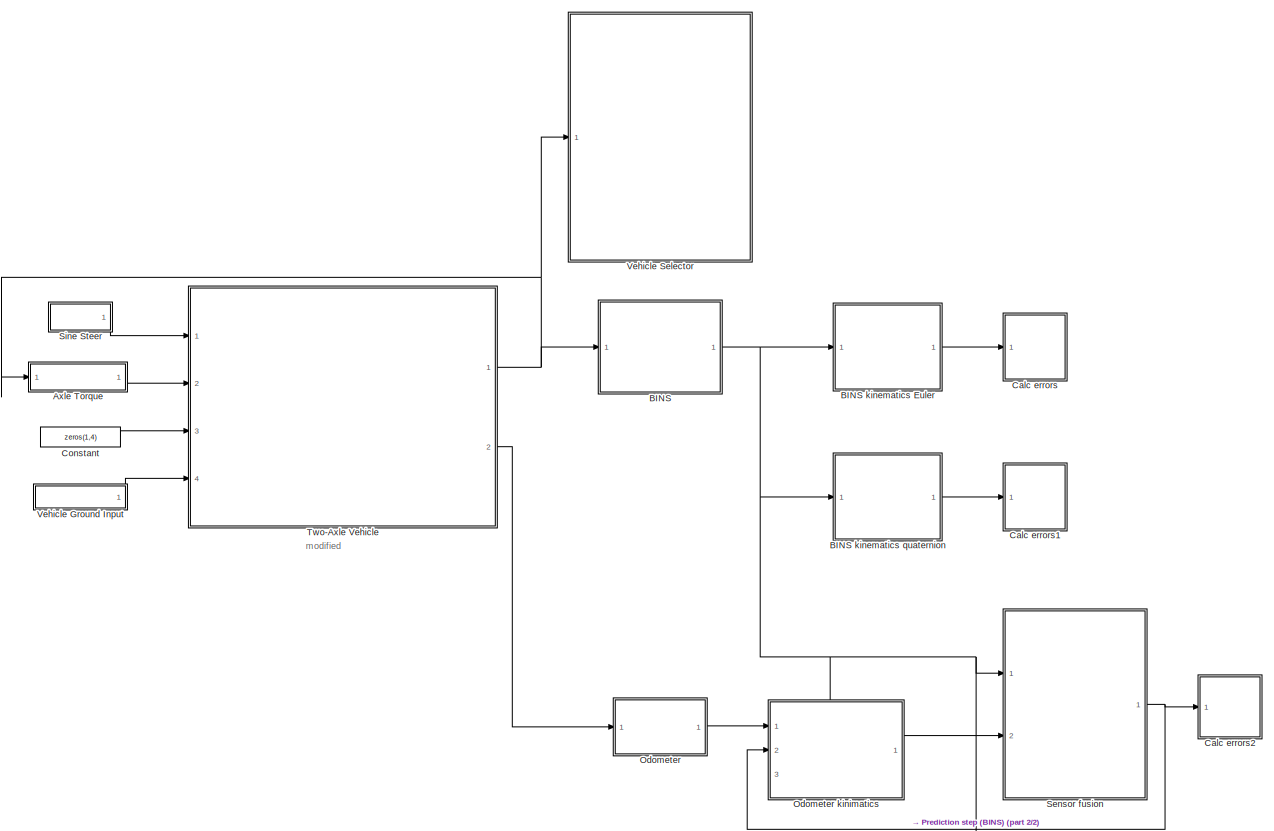
[diagram: root canvas - part 1/2, most of the canvas]
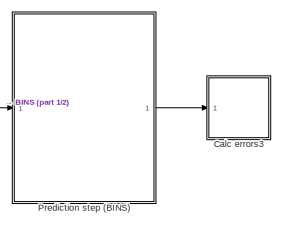
[diagram: root canvas - part 2/2, bottom right region]
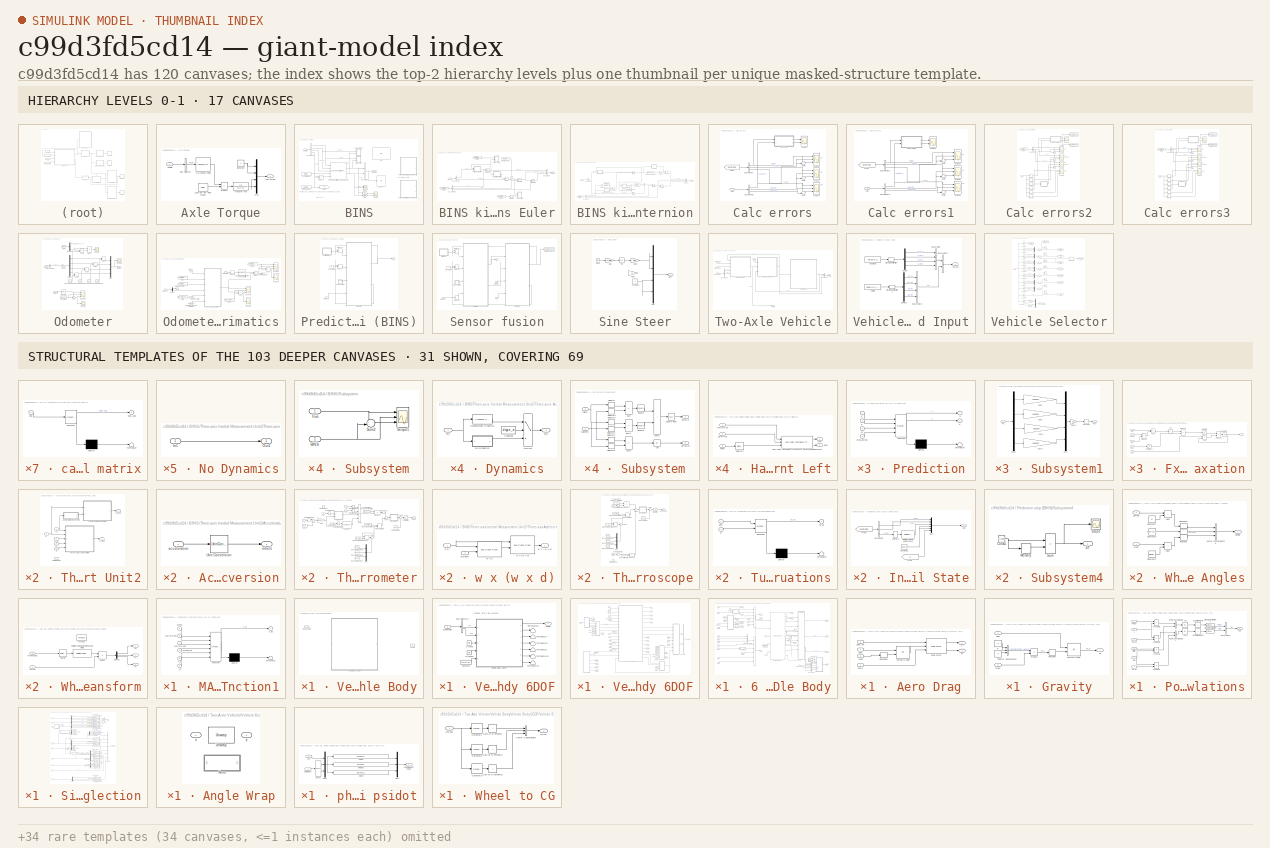
[diagram: thumbnail index - top-2 hierarchy levels (17 canvases) + 31 structural-template representatives of the remaining 103 canvases]
MODEL slx_c99d3fd5cd14
KIND model
CONFIG AbsTol = auto
CONFIG EnableMultiTasking = off
CONFIG FixedStep = 0.001
CONFIG MaxStep = auto
CONFIG MinStep = auto
CONFIG RelTol = 1e-3
CONFIG SampleTimeConstraint = Unconstrained
CONFIG SolverName = ode5
CONFIG StartTime = 0.0
CONFIG StopFcn = % stop simulation callback function\nfigure(1);\nout.x_gt.data = permute(out.x_gt.data,[3, 1, 2]);\nplot3(out.x_gt.data(:, 1), out.x_gt.data(:, 2), -out.x_gt.data(:, 3), 'Color', 'r', 'LineWidth', 1.5);\nlegend('Истинная траектория')\nxlabel('X, \itм');\nylabel('Y, \itм');\nzlabel('Z, \itм');\nfigure(2);\nplot3(out.x.data(:, 1), out.x.data(:, 2), -out.x.data(:, 3), 'Color', 'b', 'LineWidth', 1.5);\nhold on;...<+1069ch>
CONFIG StopTime = 600
WORKSPACE source: mxarray member
WORKSPACE AxlIxx = 62.3745166667
WORKSPACE AxlM = 160
WORKSPACE Cps = 2
WORKSPACE CzWhlAxl = 557955.087061
WORKSPACE DCT_Param: object (value not decoded)
WORKSPACE Downshift_Speeds = [9.5625 12.9375 16.3125 19.6875 23.0625 26.4375 29.8125 33.1875 36.5625 39.9375 43.3125 46.6875 ... (28 elements, 4x7)]
WORKSPACE F0zWhlAxl = 16132.2380068
WORKSPACE HTCH: object (value not decoded)
WORKSPACE Hmax = 0.25
WORKSPACE KzWhlAxl = 58428920.0848
WORKSPACE NCyl = 6
WORKSPACE Pedal_Positions = [0.1 0.4 0.5 0.9]
WORKSPACE Pstd = 101325
WORKSPACE Q = [1 0 0 0 1 0 0 0 1]
WORKSPACE Rair = 287
WORKSPACE SUS: object (value not decoded)
WORKSPACE TRA: object (value not decoded)
WORKSPACE Trans: object (value not decoded)
WORKSPACE Tstd = 293.15
WORKSPACE Upshift_Speeds = [12.9375 16.3125 19.6875 33 26.4375 29.8125 33.1875 52.5 39.9375 43.3125 46.6875 77.25 ... (28 elements, 4x7)]
WORKSPACE VEH: object (value not decoded)
WORKSPACE Vd = 0.00346
WORKSPACE WH: Mass (value not decoded)
WORKSPACE dt3D = 0.05
WORKSPACE f_air = [0 0 0 0 0 0 0 0 0 0 0 0 ... (256 elements, 16x16)]
WORKSPACE f_co = [0 0 0 0 0 0 0 0 0 0 0 0 ... (256 elements, 16x16)]
WORKSPACE f_co2 = [0 0 0 0 0 0 0 0 0 0 0 0 ... (256 elements, 16x16)]
WORKSPACE f_eff = [352.135682859 352.135682859 320.724378192 303.655312657 295.930136708 291.240087194 291.240271258 291.240312459 291.240275452 291.240198499 291.240100781 291.240018769 ... (256 elements, 16x16)]
WORKSPACE f_fuel = [0 0 0 0 0 0 0 0 0 0 0 0 ... (256 elements, 16x16)]
WORKSPACE f_hc = [0 0 0 0 0 0 0 0 0 0 0 0 ... (256 elements, 16x16)]
WORKSPACE f_nox = [0 0 0 0 0 0 0 0 0 0 0 0 ... (256 elements, 16x16)]
WORKSPACE f_pm = [0 0 0 0 0 0 0 0 0 0 0 0 ... (256 elements, 16x16)]
WORKSPACE f_susp_axl_bp = [1 2]
WORKSPACE f_susp_dz_bp = [-0.325022776267 -0.315022776267 -0.305022776267 -0.205022776267 -0.105022776267 -0.00502277626717 0.0949772237328 0.194977223733 0.204977223733 0.214977223733]
WORKSPACE f_susp_dzdot_bp = [-3 -0.3 -0.2 -0.1 0 0.1 0.2 0.3 3]
WORKSPACE f_susp_fmz = [-144070.391448 -93629.24037 -75929.1118915 -20630.5828179 -15385.48216 -10140.3815021 -4895.28084414 349.819813785 -31916.3973792 18437.6709544 -83996.1993354 -33555.0482577 ... (43920 elements, 10x9x61x2x4)]
WORKSPACE f_susp_geom = [0 0 0 0 0 0 0 0 0 0 0 0 ... (3660 elements, 10x61x2x3)]
WORKSPACE f_susp_strgdelta_bp = [-0.523598775598 -0.506145483078 -0.488692190558 -0.471238898038 -0.453785605519 -0.436332312999 -0.418879020479 -0.401425727959 -0.383972435439 -0.366519142919 -0.349065850399 -0.331612557879 ... (61 elements, 1x61)]
WORKSPACE f_tbrake = [0 76.8593923996 105.140482948 131.533638111 157.926793274 176.658631717 176.65727296 176.656856686 176.656879077 176.657093756 176.657404516 176.65772406 ... (256 elements, 16x16)]
WORKSPACE f_tbrake_n_bpt = [0 649.519052838 912.419621844 1175.32019085 1438.22075986 1701.12132886 1964.02189787 2226.92246687 2489.82303588 2752.72360489 3015.62417389 3278.5247429 ... (16 elements, 1x16)]
WORKSPACE f_tbrake_t_bpt = [0 34.6410161514 61.0341713143 87.4273264773 113.82048164 140.213636803 166.606791966 192.999947129 219.393102292 245.786257455 272.179412618 298.572567781 ... (16 elements, 1x16)]
WORKSPACE f_texh = [766.752464599 766.752464599 786.17542386 801.679939032 884.591982581 910.574397722 910.571871054 910.570774534 910.570601632 910.570821151 910.571247242 910.571639815 ... (256 elements, 16x16)]
WORKSPACE f_twc_eff_co = [0.17 0.25 0.45 0.99 0.99 0.99 0.99]
WORKSPACE f_twc_eff_hc = [0.21 0.375 0.75 0.98 0.98 0.98 0.98]
WORKSPACE f_twc_eff_lam = [0.909090909 0.944055944 0.979020979 1 1.013986014 1.048951049 1.083916084]
WORKSPACE f_twc_eff_nox = [0.98 0.98 0.98 0.97 0.05 0.02 0]
WORKSPACE h = 0.134
BLOCK [SubSystem] Axle Torque
  Ports = [1, 1]
  RequestExecContextInheritance = off
BLOCK [Lookup_n-D] Axle Torque/1-D Lookup Table
  BreakpointsForDimension1 = [0 3]
  InputPortMap = u0
  InternalRulePriority = Speed
  NumberOfTableDimensions = 1
  Ports = [1, 1]
  RndMeth = Simplest
  Table = [1 0.2]
BLOCK [Constant] Axle Torque/1200 Nm Per Rear Wheel
  Value = 1200
BLOCK [Outport] Axle Torque/Axle Torque
BLOCK [BusSelector] Axle Torque/Bus Selector
  OutputSignals = Vehicle.BdyFrm.Cg.Vel.xdot
  Ports = [1, 1]
BLOCK [Constant] Axle Torque/Constant
  Value = 0
BLOCK [Mux] Axle Torque/Mux
  DisplayOption = bar
  Ports = [4, 1]
BLOCK [Product] Axle Torque/Product
  Ports = [2, 1]
BLOCK [TransferFcn] Axle Torque/Transfer Fcn
  Denominator = [0.2 1]
BLOCK [Inport] Axle Torque/Vehicle
BLOCK [SubSystem] BINS
  Ports = [1, 1]
  RequestExecContextInheritance = off
BLOCK [SubSystem] BINS kinematics Euler
  Ports = [1, 1]
  RequestExecContextInheritance = off
BLOCK [Inport] BINS kinematics Euler/BINSout
BLOCK [BusCreator] BINS kinematics Euler/Bus Creator
  DisplayOption = bar
  InheritFromInputs = on
  Inputs = 3
  Ports = [3, 1]
BLOCK [BusSelector] BINS kinematics Euler/Bus Selector
  OutputSignals = Wmeas,Ameas
  Ports = [1, 2]
BLOCK [BusSelector] BINS kinematics Euler/Bus Selector1
  OutputSignals = Ang,Vel,Disp
  Ports = [1, 3]
BLOCK [Derivative] BINS kinematics Euler/Derivative
BLOCK [Product] BINS kinematics Euler/Divide1
  Inputs = /*
  Multiplication = Matrix(*)
  Ports = [2, 1]
BLOCK [Outport] BINS kinematics Euler/EulerOut
BLOCK [From] BINS kinematics Euler/From
  GotoTag = InertFrmAng
  TagVisibility = global
BLOCK [From] BINS kinematics Euler/From1
  GotoTag = InertFrmCg
  TagVisibility = global
BLOCK [From] BINS kinematics Euler/From2
  GotoTag = InertFrmVel
  TagVisibility = global
BLOCK [Integrator] BINS kinematics Euler/Integrator
  InitialConditionSource = external
  Ports = [2, 1]
BLOCK [Integrator] BINS kinematics Euler/Integrator1
  InitialConditionSource = external
  Ports = [2, 1]
BLOCK [Integrator] BINS kinematics Euler/Integrator2
  InitialConditionSource = external
  Ports = [2, 1]
BLOCK [SubSystem] BINS kinematics Euler/Subsystem
  Ports = [2]
  RequestExecContextInheritance = off
BLOCK [Inport] BINS kinematics Euler/Subsystem/BINS
  Port = 2
BLOCK [Scope] BINS kinematics Euler/Subsystem/Scope1
  Floating = off
  NumInputPorts = 3
  Ports = [3]
  ScopeSpecificationString = Simulink.scopes.TimeScopeBlockCfg('CurrentConfiguration', extmgr.ConfigurationSet(extmgr.Configuration('Core','General UI',true),extmgr.Configuration('Core','Source UI',true),extmgr.Configuration('Sources','WiredSimulink',true,'DataLoggingVariableName','ScopeData7'),extmgr.Configuration('Visuals','Time Domain',true,'SerializedDisplays',{struct('MinYLimReal','-3.46148','MaxYLimReal','2.08177','YLab...<+2926ch>
BLOCK [Sum] BINS kinematics Euler/Subsystem/Sum2
  Inputs = +-|
  Ports = [2, 1]
BLOCK [Inport] BINS kinematics Euler/Subsystem/True
BLOCK [SubSystem] BINS kinematics Euler/Subsystem1
  Ports = [2]
  RequestExecContextInheritance = off
BLOCK [Inport] BINS kinematics Euler/Subsystem1/BINS
  Port = 2
BLOCK [Scope] BINS kinematics Euler/Subsystem1/Scope1
  Floating = off
  NumInputPorts = 3
  Ports = [3]
  ScopeSpecificationString = Simulink.scopes.TimeScopeBlockCfg('CurrentConfiguration', extmgr.ConfigurationSet(extmgr.Configuration('Core','General UI',true),extmgr.Configuration('Core','Source UI',true),extmgr.Configuration('Sources','WiredSimulink',true,'DataLoggingVariableName','ScopeData7'),extmgr.Configuration('Visuals','Time Domain',true,'SerializedDisplays',{struct('MinYLimReal','-0.18766','MaxYLimReal','1.35175','YLab...<+2954ch>
BLOCK [Sum] BINS kinematics Euler/Subsystem1/Sum2
  Inputs = +-|
  Ports = [2, 1]
BLOCK [Inport] BINS kinematics Euler/Subsystem1/True
BLOCK [Sum] BINS kinematics Euler/Sum
  Inputs = ++|
  Ports = [2, 1]
BLOCK [SubSystem] BINS kinematics Euler/Turning equations
  ErrorFcn = Stateflow.Translate.translate
  PermitHierarchicalResolution = ExplicitOnly
  Ports = [2, 1]
  RequestExecContextInheritance = off
  SFBlockType = MATLAB Function
  TreatAsAtomicUnit = on
BLOCK [Demux] BINS kinematics Euler/Turning equations/ Demux 
  Outputs = 1
  Ports = [1, 1]
BLOCK [S-Function] BINS kinematics Euler/Turning equations/ SFunction 
  EnableBusSupport = on
  FunctionName = sf_sfun
  PortCounts = [2 2]
  Ports = [2, 2]
  SFcnIsStateOwnerBlock = off
  SFunctionDeploymentMode = off
  Tag = Stateflow S-Function 10
BLOCK [Terminator] BINS kinematics Euler/Turning equations/ Terminator 
BLOCK [Inport] BINS kinematics Euler/Turning equations/ang
BLOCK [Outport] BINS kinematics Euler/Turning equations/dv_dt
  VectorParamsAs1DForOutWhenUnconnected = off
BLOCK [Inport] BINS kinematics Euler/Turning equations/w
  Port = 2
BLOCK [SubSystem] BINS kinematics Euler/calc rotation matrix
  ErrorFcn = Stateflow.Translate.translate
  PermitHierarchicalResolution = ExplicitOnly
  Ports = [1, 1]
  RequestExecContextInheritance = off
  SFBlockType = MATLAB Function
  TreatAsAtomicUnit = on
BLOCK [Demux] BINS kinematics Euler/calc rotation matrix/ Demux 
  Outputs = 1
  Ports = [1, 1]
BLOCK [S-Function] BINS kinematics Euler/calc rotation matrix/ SFunction 
  EnableBusSupport = on
  FunctionName = sf_sfun
  PortCounts = [1 2]
  Ports = [1, 2]
  SFcnIsStateOwnerBlock = off
  SFunctionDeploymentMode = off
  Tag = Stateflow S-Function 3
BLOCK [Terminator] BINS kinematics Euler/calc rotation matrix/ Terminator 
BLOCK [Outport] BINS kinematics Euler/calc rotation matrix/DCM_calc
  VectorParamsAs1DForOutWhenUnconnected = off
BLOCK [Inport] BINS kinematics Euler/calc rotation matrix/ang
BLOCK [Constant] BINS kinematics Euler/gravity vector
  Value = [0;0;9.8]
  VectorParams1D = off
BLOCK [SubSystem] BINS kinematics quaternion
  Ports = [1, 1]
  RequestExecContextInheritance = off
BLOCK [Inport] BINS kinematics quaternion/BINSout
BLOCK [BusCreator] BINS kinematics quaternion/Bus Creator
  DisplayOption = bar
  InheritFromInputs = on
  Inputs = 3
  Ports = [3, 1]
BLOCK [BusSelector] BINS kinematics quaternion/Bus Selector
  OutputSignals = Wmeas,Ameas
  Ports = [1, 2]
BLOCK [BusSelector] BINS kinematics quaternion/Bus Selector1
  OutputSignals = Ang,Vel,Disp
  Ports = [1, 3]
BLOCK [SubSystem] BINS kinematics quaternion/DCM calc
  ErrorFcn = Stateflow.Translate.translate
  PermitHierarchicalResolution = ExplicitOnly
  Ports = [1, 1]
  RequestExecContextInheritance = off
  SFBlockType = MATLAB Function
  TreatAsAtomicUnit = on
BLOCK [Demux] BINS kinematics quaternion/DCM calc/ Demux 
  Outputs = 1
  Ports = [1, 1]
BLOCK [S-Function] BINS kinematics quaternion/DCM calc/ SFunction 
  EnableBusSupport = on
  FunctionName = sf_sfun
  PortCounts = [1 2]
  Ports = [1, 2]
  SFcnIsStateOwnerBlock = off
  SFunctionDeploymentMode = off
  Tag = Stateflow S-Function 33
BLOCK [Terminator] BINS kinematics quaternion/DCM calc/ Terminator 
BLOCK [Outport] BINS kinematics quaternion/DCM calc/DCM_calc
  VectorParamsAs1DForOutWhenUnconnected = off
BLOCK [Inport] BINS kinematics quaternion/DCM calc/q
BLOCK [Product] BINS kinematics quaternion/Divide1
  Inputs = /*
  Multiplication = Matrix(*)
  Ports = [2, 1]
BLOCK [From] BINS kinematics quaternion/From1
  GotoTag = InertFrmCg
  TagVisibility = global
BLOCK [Integrator] BINS kinematics quaternion/Integrator
  InitialConditionSource = external
  Ports = [2, 1]
BLOCK [Integrator] BINS kinematics quaternion/Integrator1
  InitialConditionSource = external
  Ports = [2, 1]
BLOCK [Integrator] BINS kinematics quaternion/Integrator2
  InitialConditionSource = external
  Ports = [2, 1]
BLOCK [ManualSwitch] BINS kinematics quaternion/Manual Switch2
  CurrentSetting = 0
BLOCK [ManualSwitch] BINS kinematics quaternion/Manual Switch3
BLOCK [ManualSwitch] BINS kinematics quaternion/Manual Switch4
  CurrentSetting = 0
BLOCK [Outport] BINS kinematics quaternion/QuatOut
BLOCK [Reference] BINS kinematics quaternion/Quaternions to Direction Cosine Matrix  REF=sharedtransform/Quaternions to 
Direction Cosine Matrix
  Ports = [1, 1]
  SourceBlock = sharedtransform/Quaternions to \nDirection Cosine Matrix
  SourceProductBaseCode = AE,PW,DR,MT,UV,VE
  SourceType = Quaternion2DCM
BLOCK [Reference] BINS kinematics quaternion/Quaternions to Rotation Angles  REF=sharedtransform/Quaternions to Rotation Angles
  AttributesFormatString = Rotation Order: %<rotationOrder>
  Ports = [1, 1]
  SourceBlock = sharedtransform/Quaternions to Rotation Angles
  SourceProductBaseCode = AE,PW,DR,MT,UV,VE
  SourceType = Quat2Ang
BLOCK [Reference] BINS kinematics quaternion/Rotation Angles to Quaternions1  REF=sharedtransform/Rotation Angles to Quaternions
  AttributesFormatString = Rotation Order: %<rotationOrder>
  Ports = [1, 1]
  SourceBlock = sharedtransform/Rotation Angles to Quaternions
  SourceProductBaseCode = AE,PW,DR,MT,UV,VE
  SourceType = Ang2Quat
BLOCK [Selector] BINS kinematics quaternion/Selector
  IndexOptions = Index vector (dialog)
  Indices = [3 2 1]
  InputPortWidth = 3
  NameLocation = top
  OutputSizes = 1
  Ports = [1, 1]
BLOCK [Selector] BINS kinematics quaternion/Selector1
  IndexOptions = Index vector (dialog)
  Indices = [3 2 1]
  InputPortWidth = 3
  NameLocation = top
  OutputSizes = 1
  Ports = [1, 1]
BLOCK [Sum] BINS kinematics quaternion/Sum
  Inputs = |++
  Ports = [2, 1]
BLOCK [SubSystem] BINS kinematics quaternion/To angles
  ErrorFcn = Stateflow.Translate.translate
  PermitHierarchicalResolution = ExplicitOnly
  Ports = [1, 1]
  RequestExecContextInheritance = off
  SFBlockType = MATLAB Function
  TreatAsAtomicUnit = on
BLOCK [Demux] BINS kinematics quaternion/To angles/ Demux 
  Outputs = 1
  Ports = [1, 1]
BLOCK [S-Function] BINS kinematics quaternion/To angles/ SFunction 
  EnableBusSupport = on
  FunctionName = sf_sfun
  PortCounts = [1 2]
  Ports = [1, 2]
  SFcnIsStateOwnerBlock = off
  SFunctionDeploymentMode = off
  Tag = Stateflow S-Function 36
BLOCK [Terminator] BINS kinematics quaternion/To angles/ Terminator 
BLOCK [Outport] BINS kinematics quaternion/To angles/ang
  VectorParamsAs1DForOutWhenUnconnected = off
BLOCK [Inport] BINS kinematics quaternion/To angles/q
BLOCK [SubSystem] BINS kinematics quaternion/Turning equations
  ErrorFcn = Stateflow.Translate.translate
  PermitHierarchicalResolution = ExplicitOnly
  Ports = [2, 1]
  RequestExecContextInheritance = off
  SFBlockType = MATLAB Function
  TreatAsAtomicUnit = on
BLOCK [Demux] BINS kinematics quaternion/Turning equations/ Demux 
  Outputs = 1
  Ports = [1, 1]
BLOCK [S-Function] BINS kinematics quaternion/Turning equations/ SFunction 
  EnableBusSupport = on
  FunctionName = sf_sfun
  PortCounts = [2 2]
  Ports = [2, 2]
  SFcnIsStateOwnerBlock = off
  SFunctionDeploymentMode = off
  Tag = Stateflow S-Function 29
BLOCK [Terminator] BINS kinematics quaternion/Turning equations/ Terminator 
BLOCK [Outport] BINS kinematics quaternion/Turning equations/dl_dt
  VectorParamsAs1DForOutWhenUnconnected = off
BLOCK [Inport] BINS kinematics quaternion/Turning equations/quat
BLOCK [Inport] BINS kinematics quaternion/Turning equations/w
  Port = 2
BLOCK [SubSystem] BINS kinematics quaternion/calc begin values quater
  ErrorFcn = Stateflow.Translate.translate
  PermitHierarchicalResolution = ExplicitOnly
  Ports = [1, 1]
  RequestExecContextInheritance = off
  SFBlockType = MATLAB Function
  TreatAsAtomicUnit = on
BLOCK [Demux] BINS kinematics quaternion/calc begin values quater/ Demux 
  Outputs = 1
  Ports = [1, 1]
BLOCK [S-Function] BINS kinematics quaternion/calc begin values quater/ SFunction 
  EnableBusSupport = on
  FunctionName = sf_sfun
  PortCounts = [1 2]
  Ports = [1, 2]
  SFcnIsStateOwnerBlock = off
  SFunctionDeploymentMode = off
  Tag = Stateflow S-Function 32
BLOCK [Terminator] BINS kinematics quaternion/calc begin values quater/ Terminator 
BLOCK [Inport] BINS kinematics quaternion/calc begin values quater/ang
BLOCK [Outport] BINS kinematics quaternion/calc begin values quater/l
  VectorParamsAs1DForOutWhenUnconnected = off
BLOCK [Constant] BINS kinematics quaternion/gravity vector
  Value = [0;0;10]
BLOCK [Outport] BINS/BINSOut
BLOCK [BusCreator] BINS/Bus Creator
  DisplayOption = bar
  InheritFromInputs = on
  Inputs = 2
  Ports = [2, 1]
BLOCK [BusSelector] BINS/Bus Selector
  OutputSignals = Vehicle.BdyFrm.Cg.Abe,Vehicle.BdyFrm.Cg.AngVel,Vehicle.BdyFrm.Cg.AngAcc,Vehicle.BdyFrm.Cg.DCM
  Ports = [1, 4]
BLOCK [Display] BINS/Display
  Decimation = 1
  Ports = [1]
BLOCK [Goto] BINS/Goto6
  GotoTag = g
  IconDisplay = Tag and signal name
  TagVisibility = global
BLOCK [Reference] BINS/IMU  REF=mspsensorlib/IMU
  Commented = on
  Ports = [3, 3]
  SourceBlock = mspsensorlib/IMU
  SourceProductBaseCode = TF,NV
  SourceType = fusion.simulink.imuSensor
BLOCK [Product] BINS/Product
  Multiplication = Matrix(*)
  Ports = [2, 1]
BLOCK [Reference] BINS/RMS  REF=dspstat3/RMS
  Ports = [1, 1]
  SourceBlock = dspstat3/RMS
  SourceProductBaseCode = DS
  SourceType = RMS
  UserDataPersistent = on
BLOCK [Reference] BINS/RMS1  REF=dspstat3/RMS
  Ports = [1, 1]
  SourceBlock = dspstat3/RMS
  SourceProductBaseCode = DS
  SourceType = RMS
  UserDataPersistent = on
BLOCK [Scope] BINS/Scope1
  Floating = off
  NumInputPorts = 2
  Ports = [2]
  ScopeSpecificationString = Simulink.scopes.TimeScopeBlockCfg('CurrentConfiguration', extmgr.ConfigurationSet(extmgr.Configuration('Core','General UI',true,'FigureColor',[1 1 1]),extmgr.Configuration('Core','Source UI',true),extmgr.Configuration('Sources','WiredSimulink',true,'DataLoggingVariableName','ScopeData16'),extmgr.Configuration('Visuals','Time Domain',true,'SerializedDisplays',{struct('MinYLimReal','-0.82387','MaxYL...<+2526ch>
BLOCK [Scope] BINS/Scope3
  Floating = off
  NumInputPorts = 2
  Ports = [2]
  ScopeSpecificationString = Simulink.scopes.TimeScopeBlockCfg('CurrentConfiguration', extmgr.ConfigurationSet(extmgr.Configuration('Core','General UI',true,'FigureColor',[1 1 1]),extmgr.Configuration('Core','Source UI',true),extmgr.Configuration('Sources','WiredSimulink',true,'DataLoggingVariableName','ScopeData8'),extmgr.Configuration('Visuals','Time Domain',true,'SerializedDisplays',{struct('MinYLimReal','-14.70303','MaxYL...<+3282ch>
BLOCK [SubSystem] BINS/Subsystem
  Ports = [2]
  RequestExecContextInheritance = off
BLOCK [Inport] BINS/Subsystem/BINS
  Port = 2
BLOCK [Scope] BINS/Subsystem/Scope1
  Floating = off
  NumInputPorts = 3
  Ports = [3]
  ScopeSpecificationString = Simulink.scopes.TimeScopeBlockCfg('CurrentConfiguration', extmgr.ConfigurationSet(extmgr.Configuration('Core','General UI',true),extmgr.Configuration('Core','Source UI',true),extmgr.Configuration('Sources','WiredSimulink',true,'DataLoggingVariableName','ScopeData7'),extmgr.Configuration('Visuals','Time Domain',true,'SerializedDisplays',{struct('MinYLimReal','-3.46305','MaxYLimReal','2.07647','YLab...<+2939ch>
BLOCK [Sum] BINS/Subsystem/Sum2
  Inputs = +-|
  Ports = [2, 1]
BLOCK [Inport] BINS/Subsystem/True
BLOCK [SubSystem] BINS/Subsystem1
  Ports = [2]
  RequestExecContextInheritance = off
BLOCK [Inport] BINS/Subsystem1/BINS
  Port = 2
BLOCK [Scope] BINS/Subsystem1/Scope1
  Floating = off
  NumInputPorts = 3
  Ports = [3]
  ScopeSpecificationString = Simulink.scopes.TimeScopeBlockCfg('CurrentConfiguration', extmgr.ConfigurationSet(extmgr.Configuration('Core','General UI',true),extmgr.Configuration('Core','Source UI',true),extmgr.Configuration('Sources','WiredSimulink',true,'DataLoggingVariableName','ScopeData7'),extmgr.Configuration('Visuals','Time Domain',true,'SerializedDisplays',{struct('MinYLimReal','-0.16449','MaxYLimReal','0.166','YLabel...<+2925ch>
BLOCK [Sum] BINS/Subsystem1/Sum2
  Inputs = +-|
  Ports = [2, 1]
BLOCK [Inport] BINS/Subsystem1/True
BLOCK [Reference] BINS/Three-axis Inertial Measurement Unit1  REF=aerolibnav/Three-axis Inertial
Measurement Unit
  Ports = [5, 2]
  SourceBlock = aerolibnav/Three-axis Inertial\nMeasurement Unit
  SourceProductBaseCode = AE
  SourceType = Three-axis Inertial Measurement Unit
BLOCK [SubSystem] BINS/Three-axis Inertial Measurement Unit2
  AncestorBlock = aerolibnav/Three-axis Inertial\nMeasurement Unit
  Commented = on
  PermitHierarchicalResolution = ExplicitOnly
  Ports = [5, 2]
  RequestExecContextInheritance = off
BLOCK [Inport] BINS/Three-axis Inertial Measurement Unit2/A_b
  PortDimensions = 3
  Unit = m/s^2
BLOCK [Outport] BINS/Three-axis Inertial Measurement Unit2/A_meas
  Unit = m/s^2
  VectorParamsAs1DForOutWhenUnconnected = off
BLOCK [SubSystem] BINS/Three-axis Inertial Measurement Unit2/Acceleration Conversion
  Ports = [1, 1]
  RequestExecContextInheritance = off
BLOCK [UnitConversion] BINS/Three-axis Inertial Measurement Unit2/Acceleration Conversion/Unit Conversion
BLOCK [Inport] BINS/Three-axis Inertial Measurement Unit2/Acceleration Conversion/acceleration
  Unit = m/s^2
BLOCK [Outport] BINS/Three-axis Inertial Measurement Unit2/Acceleration Conversion/inherit
  VectorParamsAs1DForOutWhenUnconnected = off
BLOCK [Inport] BINS/Three-axis Inertial Measurement Unit2/CG
  Port = 4
  PortDimensions = 3
  Unit = m
BLOCK [UnitConfiguration] BINS/Three-axis Inertial Measurement Unit2/Disallow CGS
  AllowAllUnitSystems = off
  UnitSystemsStr = English,SI,SI (extended)
BLOCK [SubSystem] BINS/Three-axis Inertial Measurement Unit2/Three-axis Accelerometer
  AncestorBlock = aerolibnav/Three-axis Accelerometer
  PermitHierarchicalResolution = ExplicitOnly
  Ports = [5, 1]
  RequestExecContextInheritance = off
BLOCK [Inport] BINS/Three-axis Inertial Measurement Unit2/Three-axis Accelerometer/Ab
  PortDimensions = 3
  Unit = m/s^2
BLOCK [Outport] BINS/Three-axis Inertial Measurement Unit2/Three-axis Accelerometer/Ameas
  PortDimensions = 3
  Unit = m/s^2
  VectorParamsAs1DForOutWhenUnconnected = off
BLOCK [Inport] BINS/Three-axis Inertial Measurement Unit2/Three-axis Accelerometer/CG
  Port = 4
  PortDimensions = 3
  Unit = m
BLOCK [Delay] BINS/Three-axis Inertial Measurement Unit2/Three-axis Accelerometer/Delay
  DelayLength = 1
  InitialCondition = 0
  InitialConditionSource = Input port
  InputPortMap = u0,p4
  Ports = [2, 1]
BLOCK [UnitConfiguration] BINS/Three-axis Inertial Measurement Unit2/Three-axis Accelerometer/Disallow CGS
  AllowAllUnitSystems = off
  UnitSystemsStr = English,SI,SI (extended)
BLOCK [SubSystem] BINS/Three-axis Inertial Measurement Unit2/Three-axis Accelerometer/Dynamics
  Ports = [1, 1]
  RequestExecContextInheritance = off
BLOCK [Constant] BINS/Three-axis Inertial Measurement Unit2/Three-axis Accelerometer/Dynamics/Constant
  Value = dtype_a
BLOCK [SubSystem] BINS/Three-axis Inertial Measurement Unit2/Three-axis Accelerometer/Dynamics/No Dynamics
  Ports = [1, 1]
  RequestExecContextInheritance = off
BLOCK [Inport] BINS/Three-axis Inertial Measurement Unit2/Three-axis Accelerometer/Dynamics/No Dynamics/In1
BLOCK [Outport] BINS/Three-axis Inertial Measurement Unit2/Three-axis Accelerometer/Dynamics/No Dynamics/Out1
  VectorParamsAs1DForOutWhenUnconnected = off
BLOCK [Reference] BINS/Three-axis Inertial Measurement Unit2/Three-axis Accelerometer/Dynamics/Second-order Dynamics  REF=aerolibcommonsys/Transfer Fcn (C)
  Ports = [1, 1]
  SourceBlock = aerolibcommonsys/Transfer Fcn (C)
  SourceProductBaseCode = AE
  SourceType = ContinuousFilter
BLOCK [Switch] BINS/Three-axis Inertial Measurement Unit2/Three-axis Accelerometer/Dynamics/Switch
  InputSameDT = off
  SaturateOnIntegerOverflow = off
  Threshold = 0.5
BLOCK [Inport] BINS/Three-axis Inertial Measurement Unit2/Three-axis Accelerometer/Dynamics/sp_f
BLOCK [Outport] BINS/Three-axis Inertial Measurement Unit2/Three-axis Accelerometer/Dynamics/sp_f 
  VectorParamsAs1DForOutWhenUnconnected = off
BLOCK [Gain] BINS/Three-axis Inertial Measurement Unit2/Three-axis Accelerometer/Gain
  Gain = [1 -1 1]
  OutDataTypeStr = Inherit: Same as input
  ParamDataTypeStr = Inherit: Same as input
  SaturateOnIntegerOverflow = on
BLOCK [ManualSwitch] BINS/Three-axis Inertial Measurement Unit2/Three-axis Accelerometer/Manual Switch
  CurrentSetting = 0
BLOCK [Constant] BINS/Three-axis Inertial Measurement Unit2/Three-axis Accelerometer/Measurement bias
  Value = a_bias
BLOCK [Constant] BINS/Three-axis Inertial Measurement Unit2/Three-axis Accelerometer/Measurement bias1
  Value = a_bias
BLOCK [Mux] BINS/Three-axis Inertial Measurement Unit2/Three-axis Accelerometer/Mux
  DisplayOption = bar
  Inputs = 3
  Ports = [3, 1]
BLOCK [Product] BINS/Three-axis Inertial Measurement Unit2/Three-axis Accelerometer/Product
  Multiplication = Matrix(*)
  OutDataTypeStr = Inherit: Same as first input
  Ports = [2, 1]
  SaturateOnIntegerOverflow = on
BLOCK [RandomNumber] BINS/Three-axis Inertial Measurement Unit2/Three-axis Accelerometer/Random Number
  SampleTime = a_Ts
  Seed = 42347548753
  Variance = 2e-8
BLOCK [RandomNumber] BINS/Three-axis Inertial Measurement Unit2/Three-axis Accelerometer/Random Number1
  SampleTime = a_Ts
  Seed = 95834573489579834
  Variance = 2e-8
BLOCK [RandomNumber] BINS/Three-axis Inertial Measurement Unit2/Three-axis Accelerometer/Random Number2
  SampleTime = a_Ts
  Seed = 974128941341343
  Variance = 2e-8
BLOCK [Reference] BINS/Three-axis Inertial Measurement Unit2/Three-axis Accelerometer/Random bias  REF=aerolibcommonsys/Tunable White Noise
  Ports = [0, 1]
  SourceBlock = aerolibcommonsys/Tunable White Noise
  SourceProductBaseCode = AE
  SourceType = TunableWhiteNoise
BLOCK [Reshape] BINS/Three-axis Inertial Measurement Unit2/Three-axis Accelerometer/Reshape1
  Ports = [1, 1]
BLOCK [Saturate] BINS/Three-axis Inertial Measurement Unit2/Three-axis Accelerometer/Saturation
  LowerLimit = a_satl
  UpperLimit = a_sath
BLOCK [Constant] BINS/Three-axis Inertial Measurement Unit2/Three-axis Accelerometer/Scale factors & Cross-coupling errors
  NameLocation = top
  Value = a_sf_cc
BLOCK [Sum] BINS/Three-axis Inertial Measurement Unit2/Three-axis Accelerometer/Sum
  IconShape = rectangular
  Inputs = +-++
  Ports = [4, 1]
  SaturateOnIntegerOverflow = on
BLOCK [Sum] BINS/Three-axis Inertial Measurement Unit2/Three-axis Accelerometer/Sum1
  Inputs = |++
  Ports = [2, 1]
  SaturateOnIntegerOverflow = on
BLOCK [Sum] BINS/Three-axis Inertial Measurement Unit2/Three-axis Accelerometer/Sum2
  Inputs = |++
  Ports = [2, 1]
  SaturateOnIntegerOverflow = on
BLOCK [Sum] BINS/Three-axis Inertial Measurement Unit2/Three-axis Accelerometer/Sum4
  Inputs = ++|
  Ports = [2, 1]
  SaturateOnIntegerOverflow = on
BLOCK [Sum] BINS/Three-axis Inertial Measurement Unit2/Three-axis Accelerometer/Sum7
  Inputs = |+-
  Ports = [2, 1]
  SaturateOnIntegerOverflow = on
BLOCK [ZeroOrderHold] BINS/Three-axis Inertial Measurement Unit2/Three-axis Accelerometer/Zero-Order Hold
  SampleTime = a_Ts
BLOCK [ZeroOrderHold] BINS/Three-axis Inertial Measurement Unit2/Three-axis Accelerometer/Zero-Order Hold1
  SampleTime = a_Ts
BLOCK [ZeroOrderHold] BINS/Three-axis Inertial Measurement Unit2/Three-axis Accelerometer/Zero-Order Hold2
  SampleTime = a_Ts
BLOCK [ZeroOrderHold] BINS/Three-axis Inertial Measurement Unit2/Three-axis Accelerometer/Zero-Order Hold3
  SampleTime = a_Ts
BLOCK [ZeroOrderHold] BINS/Three-axis Inertial Measurement Unit2/Three-axis Accelerometer/Zero-Order Hold4
  SampleTime = a_Ts
BLOCK [Inport] BINS/Three-axis Inertial Measurement Unit2/Three-axis Accelerometer/g
  Port = 5
  PortDimensions = 3
  Unit = m/s^2
BLOCK [Inport] BINS/Three-axis Inertial Measurement Unit2/Three-axis Accelerometer/p q r
  Port = 2
  PortDimensions = 3
  Unit = rad/s
BLOCK [Inport] BINS/Three-axis Inertial Measurement Unit2/Three-axis Accelerometer/pdot qdot rdot
  Port = 3
  PortDimensions = 3
  Unit = rad/s^2
BLOCK [SubSystem] BINS/Three-axis Inertial Measurement Unit2/Three-axis Accelerometer/w x (w x d)
  Ports = [2, 1]
  RequestExecContextInheritance = off
BLOCK [Inport] BINS/Three-axis Inertial Measurement Unit2/Three-axis Accelerometer/w x (w x d)/distance
  Port = 2
BLOCK [Inport] BINS/Three-axis Inertial Measurement Unit2/Three-axis Accelerometer/w x (w x d)/p q r 
BLOCK [Outport] BINS/Three-axis Inertial Measurement Unit2/Three-axis Accelerometer/w x (w x d)/w x ( w x d)
  VectorParamsAs1DForOutWhenUnconnected = off
BLOCK [Reference] BINS/Three-axis Inertial Measurement Unit2/Three-axis Accelerometer/w x (w x d)/w x (w x d)  REF=sharedutil/3x3 Cross Product
  Ports = [2, 1]
  SourceBlock = sharedutil/3x3 Cross Product
  SourceProductBaseCode = AE,PW,DR,MT,UV,VE
  SourceType = CrossProduct
BLOCK [Reference] BINS/Three-axis Inertial Measurement Unit2/Three-axis Accelerometer/w x (w x d)/w x d  REF=sharedutil/3x3 Cross Product
  Ports = [2, 1]
  SourceBlock = sharedutil/3x3 Cross Product
  SourceProductBaseCode = AE,PW,DR,MT,UV,VE
  SourceType = CrossProduct
BLOCK [Reference] BINS/Three-axis Inertial Measurement Unit2/Three-axis Accelerometer/wdot x d  REF=sharedutil/3x3 Cross Product
  Ports = [2, 1]
  SourceBlock = sharedutil/3x3 Cross Product
  SourceProductBaseCode = AE,PW,DR,MT,UV,VE
  SourceType = CrossProduct
BLOCK [Constant] BINS/Three-axis Inertial Measurement Unit2/Three-axis Accelerometer/wl_ins
  Value = acc
BLOCK [SubSystem] BINS/Three-axis Inertial Measurement Unit2/Three-axis Gyroscope
  AncestorBlock = aerolibnav/Three-axis Gyroscope
  PermitHierarchicalResolution = ExplicitOnly
  Ports = [2, 1]
  RequestExecContextInheritance = off
BLOCK [Outport] BINS/Three-axis Inertial Measurement Unit2/Three-axis Gyroscope/(p q r)_meas
  PortDimensions = 3
  Unit = rad/s
  VectorParamsAs1DForOutWhenUnconnected = off
BLOCK [Delay] BINS/Three-axis Inertial Measurement Unit2/Three-axis Gyroscope/Delay
  DelayLength = 1
  InitialCondition = 0
  InitialConditionSource = Input port
  InputPortMap = u0,p4
  Ports = [2, 1]
BLOCK [UnitConfiguration] BINS/Three-axis Inertial Measurement Unit2/Three-axis Gyroscope/Disallow CGS
  AllowAllUnitSystems = off
  UnitSystemsStr = English,SI,SI (extended)
BLOCK [SubSystem] BINS/Three-axis Inertial Measurement Unit2/Three-axis Gyroscope/Dynamics
  Ports = [1, 1]
  RequestExecContextInheritance = off
BLOCK [Constant] BINS/Three-axis Inertial Measurement Unit2/Three-axis Gyroscope/Dynamics/Constant
  Value = dtype_g
BLOCK [SubSystem] BINS/Three-axis Inertial Measurement Unit2/Three-axis Gyroscope/Dynamics/No Dynamics
  Ports = [1, 1]
  RequestExecContextInheritance = off
BLOCK [Inport] BINS/Three-axis Inertial Measurement Unit2/Three-axis Gyroscope/Dynamics/No Dynamics/In1
BLOCK [Outport] BINS/Three-axis Inertial Measurement Unit2/Three-axis Gyroscope/Dynamics/No Dynamics/Out1
  VectorParamsAs1DForOutWhenUnconnected = off
BLOCK [Reference] BINS/Three-axis Inertial Measurement Unit2/Three-axis Gyroscope/Dynamics/Second-order Dynamics  REF=aerolibcommonsys/Transfer Fcn (C)
  Ports = [1, 1]
  SourceBlock = aerolibcommonsys/Transfer Fcn (C)
  SourceProductBaseCode = AE
  SourceType = ContinuousFilter
BLOCK [Switch] BINS/Three-axis Inertial Measurement Unit2/Three-axis Gyroscope/Dynamics/Switch
  InputSameDT = off
  SaturateOnIntegerOverflow = off
  Threshold = 0.5
BLOCK [Inport] BINS/Three-axis Inertial Measurement Unit2/Three-axis Gyroscope/Dynamics/p q r
BLOCK [Outport] BINS/Three-axis Inertial Measurement Unit2/Three-axis Gyroscope/Dynamics/p q r 
  VectorParamsAs1DForOutWhenUnconnected = off
BLOCK [Inport] BINS/Three-axis Inertial Measurement Unit2/Three-axis Gyroscope/G's
  Port = 2
  PortDimensions = 3
  Unit = gn
BLOCK [ManualSwitch] BINS/Three-axis Inertial Measurement Unit2/Three-axis Gyroscope/Manual Switch
  CurrentSetting = 0
BLOCK [Constant] BINS/Three-axis Inertial Measurement Unit2/Three-axis Gyroscope/Measurement bias
  Value = g_bias
BLOCK [Constant] BINS/Three-axis Inertial Measurement Unit2/Three-axis Gyroscope/Measurement bias1
  Value = g_bias
BLOCK [Mux] BINS/Three-axis Inertial Measurement Unit2/Three-axis Gyroscope/Mux
  DisplayOption = bar
  Inputs = 3
  Ports = [3, 1]
BLOCK [Product] BINS/Three-axis Inertial Measurement Unit2/Three-axis Gyroscope/Product
  Multiplication = Matrix(*)
  OutDataTypeStr = Inherit: Same as first input
  Ports = [2, 1]
  SaturateOnIntegerOverflow = on
BLOCK [Product] BINS/Three-axis Inertial Measurement Unit2/Three-axis Gyroscope/Product1
  OutDataTypeStr = Inherit: Same as first input
  Ports = [2, 1]
  SaturateOnIntegerOverflow = on
BLOCK [RandomNumber] BINS/Three-axis Inertial Measurement Unit2/Three-axis Gyroscope/Random Number
  SampleTime = g_Ts
  Seed = 32454353467
  Variance = 2e-14
BLOCK [RandomNumber] BINS/Three-axis Inertial Measurement Unit2/Three-axis Gyroscope/Random Number1
  SampleTime = g_Ts
  Seed = 34523523
  Variance = 2e-14
BLOCK [RandomNumber] BINS/Three-axis Inertial Measurement Unit2/Three-axis Gyroscope/Random Number2
  SampleTime = g_Ts
  Seed = 325326557
  Variance = 2e-14
BLOCK [Reference] BINS/Three-axis Inertial Measurement Unit2/Three-axis Gyroscope/Random bias  REF=aerolibcommonsys/Tunable White Noise
  Ports = [0, 1]
  SourceBlock = aerolibcommonsys/Tunable White Noise
  SourceProductBaseCode = AE
  SourceType = TunableWhiteNoise
BLOCK [Saturate] BINS/Three-axis Inertial Measurement Unit2/Three-axis Gyroscope/Saturation
  LowerLimit = g_satl
  UpperLimit = g_sath
BLOCK [Constant] BINS/Three-axis Inertial Measurement Unit2/Three-axis Gyroscope/Scale factors & Cross-coupling errors 
  NameLocation = top
  Value = g_sf_cc
BLOCK [Sum] BINS/Three-axis Inertial Measurement Unit2/Three-axis Gyroscope/Sum1
  Inputs = |++
  Ports = [2, 1]
  SaturateOnIntegerOverflow = on
BLOCK [Sum] BINS/Three-axis Inertial Measurement Unit2/Three-axis Gyroscope/Sum2
  Inputs = |++
  Ports = [2, 1]
  SaturateOnIntegerOverflow = on
BLOCK [Sum] BINS/Three-axis Inertial Measurement Unit2/Three-axis Gyroscope/Sum4
  Inputs = +++
  Ports = [3, 1]
  SaturateOnIntegerOverflow = on
BLOCK [ZeroOrderHold] BINS/Three-axis Inertial Measurement Unit2/Three-axis Gyroscope/Zero-Order Hold
  SampleTime = g_Ts
BLOCK [ZeroOrderHold] BINS/Three-axis Inertial Measurement Unit2/Three-axis Gyroscope/Zero-Order Hold1
  SampleTime = g_Ts
BLOCK [Constant] BINS/Three-axis Inertial Measurement Unit2/Three-axis Gyroscope/g-sensitive bias
  Value = g_sen
BLOCK [Inport] BINS/Three-axis Inertial Measurement Unit2/Three-axis Gyroscope/p q r
  PortDimensions = 3
  Unit = rad/s
BLOCK [Inport] BINS/Three-axis Inertial Measurement Unit2/g
  Port = 5
  PortDimensions = 3
  Unit = m/s^2
BLOCK [Inport] BINS/Three-axis Inertial Measurement Unit2/w
  Port = 2
  PortDimensions = 3
  Unit = rad/s
BLOCK [Inport] BINS/Three-axis Inertial Measurement Unit2/w_dot
  Port = 3
  PortDimensions = 3
  Unit = rad/s^2
BLOCK [Outport] BINS/Three-axis Inertial Measurement Unit2/w_meas
  Port = 2
  Unit = rad/s
  VectorParamsAs1DForOutWhenUnconnected = off
BLOCK [SubSystem] BINS/Three-axis Inertial Measurement Unit4
  AncestorBlock = aerolibnav/Three-axis Inertial\nMeasurement Unit
  Commented = on
  PermitHierarchicalResolution = ExplicitOnly
  Ports = [5, 2]
  RequestExecContextInheritance = off
BLOCK [Inport] BINS/Three-axis Inertial Measurement Unit4/A_b
  PortDimensions = 3
  Unit = m/s^2
BLOCK [Outport] BINS/Three-axis Inertial Measurement Unit4/A_meas
  Unit = m/s^2
  VectorParamsAs1DForOutWhenUnconnected = off
BLOCK [SubSystem] BINS/Three-axis Inertial Measurement Unit4/Acceleration Conversion
  Ports = [1, 1]
  RequestExecContextInheritance = off
BLOCK [UnitConversion] BINS/Three-axis Inertial Measurement Unit4/Acceleration Conversion/Unit Conversion
BLOCK [Inport] BINS/Three-axis Inertial Measurement Unit4/Acceleration Conversion/acceleration
  Unit = m/s^2
BLOCK [Outport] BINS/Three-axis Inertial Measurement Unit4/Acceleration Conversion/inherit
  VectorParamsAs1DForOutWhenUnconnected = off
BLOCK [Inport] BINS/Three-axis Inertial Measurement Unit4/CG
  Port = 4
  PortDimensions = 3
  Unit = m
BLOCK [UnitConfiguration] BINS/Three-axis Inertial Measurement Unit4/Disallow CGS
  AllowAllUnitSystems = off
  UnitSystemsStr = English,SI,SI (extended)
BLOCK [SubSystem] BINS/Three-axis Inertial Measurement Unit4/Three-axis Accelerometer
  AncestorBlock = aerolibnav/Three-axis Accelerometer
  PermitHierarchicalResolution = ExplicitOnly
  Ports = [5, 1]
  RequestExecContextInheritance = off
BLOCK [Inport] BINS/Three-axis Inertial Measurement Unit4/Three-axis Accelerometer/Ab
  PortDimensions = 3
  Unit = m/s^2
BLOCK [Outport] BINS/Three-axis Inertial Measurement Unit4/Three-axis Accelerometer/Ameas
  PortDimensions = 3
  Unit = m/s^2
  VectorParamsAs1DForOutWhenUnconnected = off
BLOCK [Inport] BINS/Three-axis Inertial Measurement Unit4/Three-axis Accelerometer/CG
  Port = 4
  PortDimensions = 3
  Unit = m
BLOCK [Delay] BINS/Three-axis Inertial Measurement Unit4/Three-axis Accelerometer/Delay
  DelayLength = 1
  InitialCondition = 0
  InitialConditionSource = Input port
  InputPortMap = u0,p4
  Ports = [2, 1]
BLOCK [UnitConfiguration] BINS/Three-axis Inertial Measurement Unit4/Three-axis Accelerometer/Disallow CGS
  AllowAllUnitSystems = off
  UnitSystemsStr = English,SI,SI (extended)
BLOCK [SubSystem] BINS/Three-axis Inertial Measurement Unit4/Three-axis Accelerometer/Dynamics
  Ports = [1, 1]
  RequestExecContextInheritance = off
BLOCK [Constant] BINS/Three-axis Inertial Measurement Unit4/Three-axis Accelerometer/Dynamics/Constant
  Value = dtype_a
BLOCK [SubSystem] BINS/Three-axis Inertial Measurement Unit4/Three-axis Accelerometer/Dynamics/No Dynamics
  Ports = [1, 1]
  RequestExecContextInheritance = off
BLOCK [Inport] BINS/Three-axis Inertial Measurement Unit4/Three-axis Accelerometer/Dynamics/No Dynamics/In1
BLOCK [Outport] BINS/Three-axis Inertial Measurement Unit4/Three-axis Accelerometer/Dynamics/No Dynamics/Out1
  VectorParamsAs1DForOutWhenUnconnected = off
BLOCK [Reference] BINS/Three-axis Inertial Measurement Unit4/Three-axis Accelerometer/Dynamics/Second-order Dynamics  REF=aerolibcommonsys/Transfer Fcn (C)
  Ports = [1, 1]
  SourceBlock = aerolibcommonsys/Transfer Fcn (C)
  SourceProductBaseCode = AE
  SourceType = ContinuousFilter
BLOCK [Switch] BINS/Three-axis Inertial Measurement Unit4/Three-axis Accelerometer/Dynamics/Switch
  InputSameDT = off
  SaturateOnIntegerOverflow = off
  Threshold = 0.5
BLOCK [Inport] BINS/Three-axis Inertial Measurement Unit4/Three-axis Accelerometer/Dynamics/sp_f
BLOCK [Outport] BINS/Three-axis Inertial Measurement Unit4/Three-axis Accelerometer/Dynamics/sp_f 
  VectorParamsAs1DForOutWhenUnconnected = off
BLOCK [Gain] BINS/Three-axis Inertial Measurement Unit4/Three-axis Accelerometer/Gain
  Gain = [1 -1 1]
  OutDataTypeStr = Inherit: Same as input
  ParamDataTypeStr = Inherit: Same as input
  SaturateOnIntegerOverflow = on
BLOCK [ManualSwitch] BINS/Three-axis Inertial Measurement Unit4/Three-axis Accelerometer/Manual Switch
  CurrentSetting = 0
BLOCK [Constant] BINS/Three-axis Inertial Measurement Unit4/Three-axis Accelerometer/Measurement bias
  Value = a_bias
BLOCK [Constant] BINS/Three-axis Inertial Measurement Unit4/Three-axis Accelerometer/Measurement bias1
  Value = a_bias
BLOCK [Mux] BINS/Three-axis Inertial Measurement Unit4/Three-axis Accelerometer/Mux
  DisplayOption = bar
  Inputs = 3
  Ports = [3, 1]
BLOCK [Product] BINS/Three-axis Inertial Measurement Unit4/Three-axis Accelerometer/Product
  Multiplication = Matrix(*)
  OutDataTypeStr = Inherit: Same as first input
  Ports = [2, 1]
  SaturateOnIntegerOverflow = on
BLOCK [RandomNumber] BINS/Three-axis Inertial Measurement Unit4/Three-axis Accelerometer/Random Number
  SampleTime = a_Ts
  Seed = 42347548753
  Variance = 24e-6
BLOCK [RandomNumber] BINS/Three-axis Inertial Measurement Unit4/Three-axis Accelerometer/Random Number1
  SampleTime = a_Ts
  Seed = 95834573489579834
  Variance = 24e-6
BLOCK [RandomNumber] BINS/Three-axis Inertial Measurement Unit4/Three-axis Accelerometer/Random Number2
  SampleTime = a_Ts
  Seed = 974128941341343
  Variance = 24e-6
BLOCK [Reference] BINS/Three-axis Inertial Measurement Unit4/Three-axis Accelerometer/Random bias  REF=aerolibcommonsys/Tunable White Noise
  Ports = [0, 1]
  SourceBlock = aerolibcommonsys/Tunable White Noise
  SourceProductBaseCode = AE
  SourceType = TunableWhiteNoise
BLOCK [Reshape] BINS/Three-axis Inertial Measurement Unit4/Three-axis Accelerometer/Reshape1
  Ports = [1, 1]
BLOCK [Saturate] BINS/Three-axis Inertial Measurement Unit4/Three-axis Accelerometer/Saturation
  LowerLimit = a_satl
  UpperLimit = a_sath
BLOCK [Constant] BINS/Three-axis Inertial Measurement Unit4/Three-axis Accelerometer/Scale factors & Cross-coupling errors
  NameLocation = top
  Value = a_sf_cc
BLOCK [Sum] BINS/Three-axis Inertial Measurement Unit4/Three-axis Accelerometer/Sum
  IconShape = rectangular
  Inputs = +-++
  Ports = [4, 1]
  SaturateOnIntegerOverflow = on
BLOCK [Sum] BINS/Three-axis Inertial Measurement Unit4/Three-axis Accelerometer/Sum1
  Inputs = |++
  Ports = [2, 1]
  SaturateOnIntegerOverflow = on
BLOCK [Sum] BINS/Three-axis Inertial Measurement Unit4/Three-axis Accelerometer/Sum2
  Inputs = |++
  Ports = [2, 1]
  SaturateOnIntegerOverflow = on
BLOCK [Sum] BINS/Three-axis Inertial Measurement Unit4/Three-axis Accelerometer/Sum4
  Inputs = ++|
  Ports = [2, 1]
  SaturateOnIntegerOverflow = on
BLOCK [Sum] BINS/Three-axis Inertial Measurement Unit4/Three-axis Accelerometer/Sum7
  Inputs = |+-
  Ports = [2, 1]
  SaturateOnIntegerOverflow = on
BLOCK [ZeroOrderHold] BINS/Three-axis Inertial Measurement Unit4/Three-axis Accelerometer/Zero-Order Hold
  SampleTime = a_Ts
BLOCK [ZeroOrderHold] BINS/Three-axis Inertial Measurement Unit4/Three-axis Accelerometer/Zero-Order Hold1
  SampleTime = a_Ts
BLOCK [ZeroOrderHold] BINS/Three-axis Inertial Measurement Unit4/Three-axis Accelerometer/Zero-Order Hold2
  SampleTime = a_Ts
BLOCK [ZeroOrderHold] BINS/Three-axis Inertial Measurement Unit4/Three-axis Accelerometer/Zero-Order Hold3
  SampleTime = a_Ts
BLOCK [ZeroOrderHold] BINS/Three-axis Inertial Measurement Unit4/Three-axis Accelerometer/Zero-Order Hold4
  SampleTime = a_Ts
BLOCK [Inport] BINS/Three-axis Inertial Measurement Unit4/Three-axis Accelerometer/g
  Port = 5
  PortDimensions = 3
  Unit = m/s^2
BLOCK [Inport] BINS/Three-axis Inertial Measurement Unit4/Three-axis Accelerometer/p q r
  Port = 2
  PortDimensions = 3
  Unit = rad/s
BLOCK [Inport] BINS/Three-axis Inertial Measurement Unit4/Three-axis Accelerometer/pdot qdot rdot
  Port = 3
  PortDimensions = 3
  Unit = rad/s^2
BLOCK [SubSystem] BINS/Three-axis Inertial Measurement Unit4/Three-axis Accelerometer/w x (w x d)
  Ports = [2, 1]
  RequestExecContextInheritance = off
BLOCK [Inport] BINS/Three-axis Inertial Measurement Unit4/Three-axis Accelerometer/w x (w x d)/distance
  Port = 2
BLOCK [Inport] BINS/Three-axis Inertial Measurement Unit4/Three-axis Accelerometer/w x (w x d)/p q r 
BLOCK [Outport] BINS/Three-axis Inertial Measurement Unit4/Three-axis Accelerometer/w x (w x d)/w x ( w x d)
  VectorParamsAs1DForOutWhenUnconnected = off
BLOCK [Reference] BINS/Three-axis Inertial Measurement Unit4/Three-axis Accelerometer/w x (w x d)/w x (w x d)  REF=sharedutil/3x3 Cross Product
  Ports = [2, 1]
  SourceBlock = sharedutil/3x3 Cross Product
  SourceProductBaseCode = AE,PW,DR,MT,UV,VE
  SourceType = CrossProduct
BLOCK [Reference] BINS/Three-axis Inertial Measurement Unit4/Three-axis Accelerometer/w x (w x d)/w x d  REF=sharedutil/3x3 Cross Product
  Ports = [2, 1]
  SourceBlock = sharedutil/3x3 Cross Product
  SourceProductBaseCode = AE,PW,DR,MT,UV,VE
  SourceType = CrossProduct
BLOCK [Reference] BINS/Three-axis Inertial Measurement Unit4/Three-axis Accelerometer/wdot x d  REF=sharedutil/3x3 Cross Product
  Ports = [2, 1]
  SourceBlock = sharedutil/3x3 Cross Product
  SourceProductBaseCode = AE,PW,DR,MT,UV,VE
  SourceType = CrossProduct
BLOCK [Constant] BINS/Three-axis Inertial Measurement Unit4/Three-axis Accelerometer/wl_ins
  Value = acc
BLOCK [SubSystem] BINS/Three-axis Inertial Measurement Unit4/Three-axis Gyroscope
  AncestorBlock = aerolibnav/Three-axis Gyroscope
  PermitHierarchicalResolution = ExplicitOnly
  Ports = [2, 1]
  RequestExecContextInheritance = off
BLOCK [Outport] BINS/Three-axis Inertial Measurement Unit4/Three-axis Gyroscope/(p q r)_meas
  PortDimensions = 3
  Unit = rad/s
  VectorParamsAs1DForOutWhenUnconnected = off
BLOCK [Delay] BINS/Three-axis Inertial Measurement Unit4/Three-axis Gyroscope/Delay
  DelayLength = 1
  InitialCondition = 0
  InitialConditionSource = Input port
  InputPortMap = u0,p4
  Ports = [2, 1]
BLOCK [UnitConfiguration] BINS/Three-axis Inertial Measurement Unit4/Three-axis Gyroscope/Disallow CGS
  AllowAllUnitSystems = off
  UnitSystemsStr = English,SI,SI (extended)
BLOCK [SubSystem] BINS/Three-axis Inertial Measurement Unit4/Three-axis Gyroscope/Dynamics
  Ports = [1, 1]
  RequestExecContextInheritance = off
BLOCK [Constant] BINS/Three-axis Inertial Measurement Unit4/Three-axis Gyroscope/Dynamics/Constant
  Value = dtype_g
BLOCK [SubSystem] BINS/Three-axis Inertial Measurement Unit4/Three-axis Gyroscope/Dynamics/No Dynamics
  Ports = [1, 1]
  RequestExecContextInheritance = off
BLOCK [Inport] BINS/Three-axis Inertial Measurement Unit4/Three-axis Gyroscope/Dynamics/No Dynamics/In1
BLOCK [Outport] BINS/Three-axis Inertial Measurement Unit4/Three-axis Gyroscope/Dynamics/No Dynamics/Out1
  VectorParamsAs1DForOutWhenUnconnected = off
BLOCK [Reference] BINS/Three-axis Inertial Measurement Unit4/Three-axis Gyroscope/Dynamics/Second-order Dynamics  REF=aerolibcommonsys/Transfer Fcn (C)
  Ports = [1, 1]
  SourceBlock = aerolibcommonsys/Transfer Fcn (C)
  SourceProductBaseCode = AE
  SourceType = ContinuousFilter
BLOCK [Switch] BINS/Three-axis Inertial Measurement Unit4/Three-axis Gyroscope/Dynamics/Switch
  InputSameDT = off
  SaturateOnIntegerOverflow = off
  Threshold = 0.5
BLOCK [Inport] BINS/Three-axis Inertial Measurement Unit4/Three-axis Gyroscope/Dynamics/p q r
BLOCK [Outport] BINS/Three-axis Inertial Measurement Unit4/Three-axis Gyroscope/Dynamics/p q r 
  VectorParamsAs1DForOutWhenUnconnected = off
BLOCK [Inport] BINS/Three-axis Inertial Measurement Unit4/Three-axis Gyroscope/G's
  Port = 2
  PortDimensions = 3
  Unit = gn
BLOCK [ManualSwitch] BINS/Three-axis Inertial Measurement Unit4/Three-axis Gyroscope/Manual Switch
  CurrentSetting = 0
BLOCK [Constant] BINS/Three-axis Inertial Measurement Unit4/Three-axis Gyroscope/Measurement bias
  Value = g_bias
BLOCK [Constant] BINS/Three-axis Inertial Measurement Unit4/Three-axis Gyroscope/Measurement bias1
  Value = g_bias
BLOCK [Mux] BINS/Three-axis Inertial Measurement Unit4/Three-axis Gyroscope/Mux
  DisplayOption = bar
  Inputs = 3
  Ports = [3, 1]
BLOCK [Product] BINS/Three-axis Inertial Measurement Unit4/Three-axis Gyroscope/Product
  Multiplication = Matrix(*)
  OutDataTypeStr = Inherit: Same as first input
  Ports = [2, 1]
  SaturateOnIntegerOverflow = on
BLOCK [Product] BINS/Three-axis Inertial Measurement Unit4/Three-axis Gyroscope/Product1
  OutDataTypeStr = Inherit: Same as first input
  Ports = [2, 1]
  SaturateOnIntegerOverflow = on
BLOCK [RandomNumber] BINS/Three-axis Inertial Measurement Unit4/Three-axis Gyroscope/Random Number
  SampleTime = g_Ts
  Seed = 32454353467
  Variance = 1.2e-10
BLOCK [RandomNumber] BINS/Three-axis Inertial Measurement Unit4/Three-axis Gyroscope/Random Number1
  SampleTime = g_Ts
  Seed = 34523523
  Variance = 1.2e-10
BLOCK [RandomNumber] BINS/Three-axis Inertial Measurement Unit4/Three-axis Gyroscope/Random Number2
  SampleTime = g_Ts
  Seed = 325326557
  Variance = 1.2e-10
BLOCK [Reference] BINS/Three-axis Inertial Measurement Unit4/Three-axis Gyroscope/Random bias  REF=aerolibcommonsys/Tunable White Noise
  Ports = [0, 1]
  SourceBlock = aerolibcommonsys/Tunable White Noise
  SourceProductBaseCode = AE
  SourceType = TunableWhiteNoise
BLOCK [Saturate] BINS/Three-axis Inertial Measurement Unit4/Three-axis Gyroscope/Saturation
  LowerLimit = g_satl
  UpperLimit = g_sath
BLOCK [Constant] BINS/Three-axis Inertial Measurement Unit4/Three-axis Gyroscope/Scale factors & Cross-coupling errors 
  NameLocation = top
  Value = g_sf_cc
BLOCK [Sum] BINS/Three-axis Inertial Measurement Unit4/Three-axis Gyroscope/Sum1
  Inputs = |++
  Ports = [2, 1]
  SaturateOnIntegerOverflow = on
BLOCK [Sum] BINS/Three-axis Inertial Measurement Unit4/Three-axis Gyroscope/Sum2
  Inputs = |++
  Ports = [2, 1]
  SaturateOnIntegerOverflow = on
BLOCK [Sum] BINS/Three-axis Inertial Measurement Unit4/Three-axis Gyroscope/Sum4
  Inputs = +++
  Ports = [3, 1]
  SaturateOnIntegerOverflow = on
BLOCK [ZeroOrderHold] BINS/Three-axis Inertial Measurement Unit4/Three-axis Gyroscope/Zero-Order Hold
  SampleTime = g_Ts
BLOCK [ZeroOrderHold] BINS/Three-axis Inertial Measurement Unit4/Three-axis Gyroscope/Zero-Order Hold1
  SampleTime = g_Ts
BLOCK [Constant] BINS/Three-axis Inertial Measurement Unit4/Three-axis Gyroscope/g-sensitive bias
  Value = g_sen
BLOCK [Inport] BINS/Three-axis Inertial Measurement Unit4/Three-axis Gyroscope/p q r
  PortDimensions = 3
  Unit = rad/s
BLOCK [Inport] BINS/Three-axis Inertial Measurement Unit4/g
  Port = 5
  PortDimensions = 3
  Unit = m/s^2
BLOCK [Inport] BINS/Three-axis Inertial Measurement Unit4/w
  Port = 2
  PortDimensions = 3
  Unit = rad/s
BLOCK [Inport] BINS/Three-axis Inertial Measurement Unit4/w_dot
  Port = 3
  PortDimensions = 3
  Unit = rad/s^2
BLOCK [Outport] BINS/Three-axis Inertial Measurement Unit4/w_meas
  Port = 2
  Unit = rad/s
  VectorParamsAs1DForOutWhenUnconnected = off
BLOCK [Constant] BINS/center of gravity
  Value = [0;0;0]
BLOCK [Constant] BINS/gravity vector
  Value = [0;0;9.8]
  VectorParams1D = off
BLOCK [Inport] BINS/inputIMU
BLOCK [SubSystem] Calc errors
  Ports = [1]
  RequestExecContextInheritance = off
BLOCK [BusSelector] Calc errors/Bus Selector
  OutputSignals = Disp,Vel,Ang
  Ports = [1, 3]
BLOCK [BusSelector] Calc errors/Bus Selector1
  OutputSignals = CalcPos,CalcVel,CalcAng
  Ports = [1, 3]
BLOCK [From] Calc errors/From1
  GotoTag = InertFrmCg
  TagVisibility = global
BLOCK [Scope] Calc errors/Scope1
  Floating = off
  NumInputPorts = 3
  Ports = [3]
  ScopeSpecificationString = Simulink.scopes.TimeScopeBlockCfg('CurrentConfiguration', extmgr.ConfigurationSet(extmgr.Configuration('Core','General UI',true,'FigureColor',[1 1 1]),extmgr.Configuration('Core','Source UI',true),extmgr.Configuration('Sources','WiredSimulink',true,'DataLoggingVariableName','ScopeData5'),extmgr.Configuration('Visuals','Time Domain',true,'SerializedDisplays',{struct('MinYLimReal','-0.80388','MaxYLi...<+4563ch>
BLOCK [Scope] Calc errors/Scope2
  Floating = off
  NumInputPorts = 3
  Ports = [3]
  ScopeSpecificationString = Simulink.scopes.TimeScopeBlockCfg('CurrentConfiguration', extmgr.ConfigurationSet(extmgr.Configuration('Core','General UI',true,'FigureColor',[1 1 1]),extmgr.Configuration('Core','Source UI',true),extmgr.Configuration('Sources','WiredSimulink',true,'DataLoggingVariableName','ScopeData6'),extmgr.Configuration('Visuals','Time Domain',true,'SerializedDisplays',{struct('MinYLimReal','-0.21983','MaxYLi...<+4563ch>
BLOCK [Scope] Calc errors/Scope3
  Floating = off
  NumInputPorts = 2
  Ports = [2]
  ScopeSpecificationString = Simulink.scopes.TimeScopeBlockCfg('CurrentConfiguration', extmgr.ConfigurationSet(extmgr.Configuration('Core','General UI',true,'FigureColor',[1 1 1]),extmgr.Configuration('Core','Source UI',true),extmgr.Configuration('Sources','WiredSimulink',true,'DataLoggingVariableName','ScopeData3'),extmgr.Configuration('Visuals','Time Domain',true,'SerializedDisplays',{struct('MinYLimReal','-19.77347','MaxYL...<+2587ch>
BLOCK [Scope] Calc errors/Scope4
  Floating = off
  NumInputPorts = 3
  Ports = [3]
  ScopeSpecificationString = Simulink.scopes.TimeScopeBlockCfg('CurrentConfiguration', extmgr.ConfigurationSet(extmgr.Configuration('Core','General UI',true,'FigureColor',[1 1 1]),extmgr.Configuration('Core','Source UI',true),extmgr.Configuration('Sources','WiredSimulink',true,'DataLoggingVariableName','ScopeData4'),extmgr.Configuration('Visuals','Time Domain',true,'SerializedDisplays',{struct('MinYLimReal','-3.55981','MaxYLi...<+4569ch>
BLOCK [SubSystem] Calc errors/Subsystem
  Ports = [2, 2]
  RequestExecContextInheritance = off
BLOCK [Inport] Calc errors/Subsystem/<CalcPos>
  Port = 2
BLOCK [Inport] Calc errors/Subsystem/<Disp>
BLOCK [Abs] Calc errors/Subsystem/Abs
  SaturateOnIntegerOverflow = off
BLOCK [Outport] Calc errors/Subsystem/HorError
BLOCK [Selector] Calc errors/Subsystem/Selector
  IndexOptions = Index vector (dialog)
  Indices = [1]
  InputPortWidth = 3
  OutputSizes = 1
  Ports = [1, 1]
BLOCK [Selector] Calc errors/Subsystem/Selector1
  IndexOptions = Index vector (dialog)
  Indices = [1]
  InputPortWidth = 3
  OutputSizes = 1
  Ports = [1, 1]
BLOCK [Selector] Calc errors/Subsystem/Selector2
  IndexOptions = Index vector (dialog)
  Indices = [2]
  InputPortWidth = 3
  OutputSizes = 1
  Ports = [1, 1]
BLOCK [Selector] Calc errors/Subsystem/Selector3
  IndexOptions = Index vector (dialog)
  Indices = [2]
  InputPortWidth = 3
  OutputSizes = 1
  Ports = [1, 1]
BLOCK [Selector] Calc errors/Subsystem/Selector4
  IndexOptions = Index vector (dialog)
  Indices = [3]
  InputPortWidth = 3
  OutputSizes = 1
  Ports = [1, 1]
BLOCK [Selector] Calc errors/Subsystem/Selector5
  IndexOptions = Index vector (dialog)
  Indices = [3]
  InputPortWidth = 3
  OutputSizes = 1
  Ports = [1, 1]
BLOCK [Math] Calc errors/Subsystem/Square
  Operator = square
  Ports = [1, 1]
BLOCK [Sqrt] Calc errors/Subsystem/Square Root
BLOCK [Math] Calc errors/Subsystem/Square1
  Operator = square
  Ports = [1, 1]
BLOCK [Sum] Calc errors/Subsystem/Sum
  IconShape = rectangular
  Inputs = +-
  Ports = [2, 1]
BLOCK [Sum] Calc errors/Subsystem/Sum1
  IconShape = rectangular
  Inputs = -+
  Ports = [2, 1]
BLOCK [Sum] Calc errors/Subsystem/Sum4
  IconShape = rectangular
  Inputs = +-
  Ports = [2, 1]
BLOCK [Sum] Calc errors/Subsystem/Sum5
  IconShape = rectangular
  Ports = [2, 1]
BLOCK [Outport] Calc errors/Subsystem/VertError
  Port = 2
BLOCK [Sum] Calc errors/Sum1
  Inputs = +-|
  Ports = [2, 1]
BLOCK [Sum] Calc errors/Sum2
  Inputs = +-|
  Ports = [2, 1]
BLOCK [Sum] Calc errors/Sum3
  Inputs = +-|
  Ports = [2, 1]
BLOCK [Inport] Calc errors/calc
BLOCK [SubSystem] Calc errors1
  Ports = [1]
  RequestExecContextInheritance = off
BLOCK [BusSelector] Calc errors1/Bus Selector2
  OutputSignals = Disp,Vel,Ang
  Ports = [1, 3]
BLOCK [BusSelector] Calc errors1/Bus Selector3
  OutputSignals = CalcPos,CalcVel,CalcAng
  Ports = [1, 3]
BLOCK [From] Calc errors1/From
  GotoTag = InertFrmCg
  TagVisibility = global
BLOCK [Scope] Calc errors1/Scope1
  Floating = off
  NumInputPorts = 2
  Ports = [2]
  ScopeSpecificationString = Simulink.scopes.TimeScopeBlockCfg('CurrentConfiguration', extmgr.ConfigurationSet(extmgr.Configuration('Core','General UI',true,'FigureColor',[1 1 1]),extmgr.Configuration('Core','Source UI',true),extmgr.Configuration('Sources','WiredSimulink',true,'DataLoggingVariableName','ScopeData15'),extmgr.Configuration('Visuals','Time Domain',true,'SerializedDisplays',{struct('MinYLimReal','-0.0000000008','...<+2619ch>
BLOCK [Scope] Calc errors1/Scope2
  Floating = off
  NumInputPorts = 3
  Ports = [3]
  ScopeSpecificationString = Simulink.scopes.TimeScopeBlockCfg('CurrentConfiguration', extmgr.ConfigurationSet(extmgr.Configuration('Core','General UI',true,'FigureColor',[1 1 1]),extmgr.Configuration('Core','Source UI',true),extmgr.Configuration('Sources','WiredSimulink',true,'DataLoggingVariableName','ScopeData7'),extmgr.Configuration('Visuals','Time Domain',true,'SerializedDisplays',{struct('MinYLimReal','-9.55245','MaxYLi...<+4563ch>
BLOCK [Scope] Calc errors1/Scope3
  Floating = off
  NumInputPorts = 3
  Ports = [3]
  ScopeSpecificationString = Simulink.scopes.TimeScopeBlockCfg('CurrentConfiguration', extmgr.ConfigurationSet(extmgr.Configuration('Core','General UI',true,'FigureColor',[1 1 1]),extmgr.Configuration('Core','Source UI',true),extmgr.Configuration('Sources','WiredSimulink',true,'DataLoggingVariableName','ScopeData9'),extmgr.Configuration('Visuals','Time Domain',true,'SerializedDisplays',{struct('MinYLimReal','-9.55245','MaxYLi...<+4473ch>
BLOCK [Scope] Calc errors1/Scope4
  Floating = off
  NumInputPorts = 3
  Ports = [3]
  ScopeSpecificationString = Simulink.scopes.TimeScopeBlockCfg('CurrentConfiguration', extmgr.ConfigurationSet(extmgr.Configuration('Core','General UI',true,'FigureColor',[1 1 1]),extmgr.Configuration('Core','Source UI',true),extmgr.Configuration('Sources','WiredSimulink',true,'DataLoggingVariableName','ScopeData17'),extmgr.Configuration('Visuals','Time Domain',true,'SerializedDisplays',{struct('MinYLimReal','-18.61115','MaxY...<+4574ch>
BLOCK [SubSystem] Calc errors1/Subsystem1
  Ports = [2, 2]
  RequestExecContextInheritance = off
BLOCK [Inport] Calc errors1/Subsystem1/<CalcPos>
  Port = 2
BLOCK [Inport] Calc errors1/Subsystem1/<Disp>
BLOCK [Abs] Calc errors1/Subsystem1/Abs
  SaturateOnIntegerOverflow = off
BLOCK [Outport] Calc errors1/Subsystem1/HorError
BLOCK [Selector] Calc errors1/Subsystem1/Selector
  IndexOptions = Index vector (dialog)
  Indices = [1]
  InputPortWidth = 3
  OutputSizes = 1
  Ports = [1, 1]
BLOCK [Selector] Calc errors1/Subsystem1/Selector1
  IndexOptions = Index vector (dialog)
  Indices = [1]
  InputPortWidth = 3
  OutputSizes = 1
  Ports = [1, 1]
BLOCK [Selector] Calc errors1/Subsystem1/Selector2
  IndexOptions = Index vector (dialog)
  Indices = [2]
  InputPortWidth = 3
  OutputSizes = 1
  Ports = [1, 1]
BLOCK [Selector] Calc errors1/Subsystem1/Selector3
  IndexOptions = Index vector (dialog)
  Indices = [2]
  InputPortWidth = 3
  OutputSizes = 1
  Ports = [1, 1]
BLOCK [Selector] Calc errors1/Subsystem1/Selector4
  IndexOptions = Index vector (dialog)
  Indices = [3]
  InputPortWidth = 3
  OutputSizes = 1
  Ports = [1, 1]
BLOCK [Selector] Calc errors1/Subsystem1/Selector5
  IndexOptions = Index vector (dialog)
  Indices = [3]
  InputPortWidth = 3
  OutputSizes = 1
  Ports = [1, 1]
BLOCK [Math] Calc errors1/Subsystem1/Square
  Operator = square
  Ports = [1, 1]
BLOCK [Sqrt] Calc errors1/Subsystem1/Square Root
BLOCK [Math] Calc errors1/Subsystem1/Square1
  Operator = square
  Ports = [1, 1]
BLOCK [Sum] Calc errors1/Subsystem1/Sum
  IconShape = rectangular
  Inputs = +-
  Ports = [2, 1]
BLOCK [Sum] Calc errors1/Subsystem1/Sum1
  IconShape = rectangular
  Inputs = -+
  Ports = [2, 1]
BLOCK [Sum] Calc errors1/Subsystem1/Sum4
  IconShape = rectangular
  Inputs = +-
  Ports = [2, 1]
BLOCK [Sum] Calc errors1/Subsystem1/Sum5
  IconShape = rectangular
  Ports = [2, 1]
BLOCK [Outport] Calc errors1/Subsystem1/VertError
  Port = 2
BLOCK [Sum] Calc errors1/Sum4
  Inputs = +-|
  Ports = [2, 1]
BLOCK [Sum] Calc errors1/Sum5
  Inputs = +-|
  Ports = [2, 1]
BLOCK [Sum] Calc errors1/Sum6
  Inputs = +-|
  Ports = [2, 1]
BLOCK [Inport] Calc errors1/calc
BLOCK [SubSystem] Calc errors2
  Ports = [1]
  RequestExecContextInheritance = off
BLOCK [BusSelector] Calc errors2/Bus Selector
  OutputSignals = Disp,Vel,Ang
  Ports = [1, 3]
BLOCK [From] Calc errors2/From1
  GotoTag = InertFrmCg
  TagVisibility = global
BLOCK [Scope] Calc errors2/Scope4
  Floating = off
  NumInputPorts = 2
  Ports = [2]
  ScopeSpecificationString = Simulink.scopes.TimeScopeBlockCfg('CurrentConfiguration', extmgr.ConfigurationSet(extmgr.Configuration('Core','General UI',true,'FigureColor',[1 1 1]),extmgr.Configuration('Core','Source UI',true),extmgr.Configuration('Sources','WiredSimulink',true,'DataLoggingVariableName','ScopeData14'),extmgr.Configuration('Visuals','Time Domain',true,'SerializedDisplays',{struct('MinYLimReal','-0.84649','MaxYL...<+2646ch>
BLOCK [Scope] Calc errors2/Scope5
  Floating = off
  NumInputPorts = 3
  Ports = [3]
  ScopeSpecificationString = Simulink.scopes.TimeScopeBlockCfg('CurrentConfiguration', extmgr.ConfigurationSet(extmgr.Configuration('Core','General UI',true,'FigureColor',[1 1 1]),extmgr.Configuration('Core','Source UI',true),extmgr.Configuration('Sources','WiredSimulink',true,'DataLoggingVariableName','ScopeData18'),extmgr.Configuration('Visuals','Time Domain',true,'SerializedDisplays',{struct('MinYLimReal','-0.00002','MaxYL...<+4588ch>
BLOCK [Scope] Calc errors2/Scope6
  Floating = off
  NumInputPorts = 3
  Ports = [3]
  ScopeSpecificationString = Simulink.scopes.TimeScopeBlockCfg('CurrentConfiguration', extmgr.ConfigurationSet(extmgr.Configuration('Core','General UI',true,'FigureColor',[1 1 1]),extmgr.Configuration('Core','Source UI',true),extmgr.Configuration('Sources','WiredSimulink',true,'DataLoggingVariableName','ScopeData10'),extmgr.Configuration('Visuals','Time Domain',true,'SerializedDisplays',{struct('MinYLimReal','-0.70519','MaxYL...<+4500ch>
BLOCK [Scope] Calc errors2/Scope7
  Floating = off
  NumInputPorts = 3
  Ports = [3]
  ScopeSpecificationString = Simulink.scopes.TimeScopeBlockCfg('CurrentConfiguration', extmgr.ConfigurationSet(extmgr.Configuration('Core','General UI',true,'FigureColor',[1 1 1]),extmgr.Configuration('Core','Source UI',true),extmgr.Configuration('Sources','WiredSimulink',true,'DataLoggingVariableName','ScopeData19'),extmgr.Configuration('Visuals','Time Domain',true,'SerializedDisplays',{struct('MinYLimReal','-0.21983','MaxYL...<+4564ch>
BLOCK [Scope] Calc errors2/Scope8
  Floating = off
  NumInputPorts = 3
  Ports = [3]
  ScopeSpecificationString = Simulink.scopes.TimeScopeBlockCfg('CurrentConfiguration', extmgr.ConfigurationSet(extmgr.Configuration('Core','General UI',true,'FigureColor',[1 1 1]),extmgr.Configuration('Core','Source UI',true),extmgr.Configuration('Sources','WiredSimulink',true,'DataLoggingVariableName','ScopeData20'),extmgr.Configuration('Visuals','Time Domain',true,'SerializedDisplays',{struct('MinYLimReal','-0.80388','MaxYL...<+4564ch>
BLOCK [Selector] Calc errors2/Selector
  IndexOptions = Index vector (dialog)
  Indices = [1 2 3]
  InputPortWidth = 19
  OutputSizes = 1
  Ports = [1, 1]
BLOCK [Selector] Calc errors2/Selector1
  IndexOptions = Index vector (dialog)
  Indices = [4 5 6]
  InputPortWidth = 19
  OutputSizes = 1
  Ports = [1, 1]
BLOCK [Selector] Calc errors2/Selector2
  IndexOptions = Index vector (dialog)
  Indices = [7 8 9 10]
  InputPortWidth = 19
  OutputSizes = 1
  Ports = [1, 1]
BLOCK [Selector] Calc errors2/Selector3
  IndexOptions = Index vector (dialog)
  Indices = [11 12 13]
  InputPortWidth = 19
  OutputSizes = 1
  Ports = [1, 1]
BLOCK [Selector] Calc errors2/Selector4
  IndexOptions = Index vector (dialog)
  Indices = [14 15 16]
  InputPortWidth = 19
  OutputSizes = 1
  Ports = [1, 1]
BLOCK [Selector] Calc errors2/Selector5
  IndexOptions = Index vector (dialog)
  Indices = [17 18 19]
  InputPortWidth = 19
  OutputSizes = 1
  Ports = [1, 1]
BLOCK [SubSystem] Calc errors2/Subsystem
  Ports = [2, 2]
  RequestExecContextInheritance = off
BLOCK [Inport] Calc errors2/Subsystem/<CalcPos>
  Port = 2
BLOCK [Inport] Calc errors2/Subsystem/<Disp>
BLOCK [Abs] Calc errors2/Subsystem/Abs
  SaturateOnIntegerOverflow = off
BLOCK [Outport] Calc errors2/Subsystem/HorError
BLOCK [Selector] Calc errors2/Subsystem/Selector
  IndexOptions = Index vector (dialog)
  Indices = [1]
  InputPortWidth = 3
  OutputSizes = 1
  Ports = [1, 1]
BLOCK [Selector] Calc errors2/Subsystem/Selector1
  IndexOptions = Index vector (dialog)
  Indices = [1]
  InputPortWidth = 3
  OutputSizes = 1
  Ports = [1, 1]
BLOCK [Selector] Calc errors2/Subsystem/Selector2
  IndexOptions = Index vector (dialog)
  Indices = [2]
  InputPortWidth = 3
  OutputSizes = 1
  Ports = [1, 1]
BLOCK [Selector] Calc errors2/Subsystem/Selector3
  IndexOptions = Index vector (dialog)
  Indices = [2]
  InputPortWidth = 3
  OutputSizes = 1
  Ports = [1, 1]
BLOCK [Selector] Calc errors2/Subsystem/Selector4
  IndexOptions = Index vector (dialog)
  Indices = [3]
  InputPortWidth = 3
  OutputSizes = 1
  Ports = [1, 1]
BLOCK [Selector] Calc errors2/Subsystem/Selector5
  IndexOptions = Index vector (dialog)
  Indices = [3]
  InputPortWidth = 3
  OutputSizes = 1
  Ports = [1, 1]
BLOCK [Math] Calc errors2/Subsystem/Square
  Operator = square
  Ports = [1, 1]
BLOCK [Sqrt] Calc errors2/Subsystem/Square Root
BLOCK [Math] Calc errors2/Subsystem/Square1
  Operator = square
  Ports = [1, 1]
BLOCK [Sum] Calc errors2/Subsystem/Sum
  IconShape = rectangular
  Inputs = +-
  Ports = [2, 1]
BLOCK [Sum] Calc errors2/Subsystem/Sum1
  IconShape = rectangular
  Inputs = -+
  Ports = [2, 1]
BLOCK [Sum] Calc errors2/Subsystem/Sum4
  IconShape = rectangular
  Inputs = +-
  Ports = [2, 1]
BLOCK [Sum] Calc errors2/Subsystem/Sum5
  IconShape = rectangular
  Ports = [2, 1]
BLOCK [Outport] Calc errors2/Subsystem/VertError
  Port = 2
BLOCK [Sum] Calc errors2/Sum1
  Inputs = +-|
  Ports = [2, 1]
BLOCK [Sum] Calc errors2/Sum2
  Inputs = +-|
  Ports = [2, 1]
BLOCK [Sum] Calc errors2/Sum3
  Inputs = +-|
  Ports = [2, 1]
BLOCK [ToWorkspace] Calc errors2/To Workspace1
  FixptAsFi = on
  MaxDataPoints = inf
  Ports = [1]
  SampleTime = -1
  SaveFormat = Timeseries
  VariableName = hor_err_fus
BLOCK [ToWorkspace] Calc errors2/To Workspace2
  FixptAsFi = on
  MaxDataPoints = inf
  Ports = [1]
  SampleTime = -1
  SaveFormat = Timeseries
  VariableName = ver_err_fus
BLOCK [SubSystem] Calc errors2/To angles
  ErrorFcn = Stateflow.Translate.translate
  PermitHierarchicalResolution = ExplicitOnly
  Ports = [1, 1]
  RequestExecContextInheritance = off
  SFBlockType = MATLAB Function
  TreatAsAtomicUnit = on
BLOCK [Demux] Calc errors2/To angles/ Demux 
  Outputs = 1
  Ports = [1, 1]
BLOCK [S-Function] Calc errors2/To angles/ SFunction 
  EnableBusSupport = on
  FunctionName = sf_sfun
  PortCounts = [1 2]
  Ports = [1, 2]
  SFcnIsStateOwnerBlock = off
  SFunctionDeploymentMode = off
  Tag = Stateflow S-Function 39
BLOCK [Terminator] Calc errors2/To angles/ Terminator 
BLOCK [Outport] Calc errors2/To angles/ang
  VectorParamsAs1DForOutWhenUnconnected = off
BLOCK [Inport] Calc errors2/To angles/qat
BLOCK [Inport] Calc errors2/calc
BLOCK [SubSystem] Calc errors3
  Ports = [1]
  RequestExecContextInheritance = off
BLOCK [BusSelector] Calc errors3/Bus Selector
  OutputSignals = Disp,Vel,Ang
  Ports = [1, 3]
BLOCK [From] Calc errors3/From1
  GotoTag = InertFrmCg
  TagVisibility = global
BLOCK [Scope] Calc errors3/Scope1
  Floating = off
  NumInputPorts = 3
  Ports = [3]
  ScopeSpecificationString = Simulink.scopes.TimeScopeBlockCfg('CurrentConfiguration', extmgr.ConfigurationSet(extmgr.Configuration('Core','General UI',true,'FigureColor',[1 1 1]),extmgr.Configuration('Core','Source UI',true),extmgr.Configuration('Sources','WiredSimulink',true,'DataLoggingVariableName','ScopeData12'),extmgr.Configuration('Visuals','Time Domain',true,'SerializedDisplays',{struct('MinYLimReal','-8.23926','MaxYL...<+4570ch>
BLOCK [Scope] Calc errors3/Scope2
  Floating = off
  NumInputPorts = 3
  Ports = [3]
  ScopeSpecificationString = Simulink.scopes.TimeScopeBlockCfg('CurrentConfiguration', extmgr.ConfigurationSet(extmgr.Configuration('Core','General UI',true,'FigureColor',[1 1 1]),extmgr.Configuration('Core','Source UI',true),extmgr.Configuration('Sources','WiredSimulink',true,'DataLoggingVariableName','ScopeData2'),extmgr.Configuration('Visuals','Time Domain',true,'SerializedDisplays',{struct('MinYLimReal','-8.23926','MaxYLi...<+4566ch>
BLOCK [Scope] Calc errors3/Scope3
  Floating = off
  NumInputPorts = 3
  Ports = [3]
  ScopeSpecificationString = Simulink.scopes.TimeScopeBlockCfg('CurrentConfiguration', extmgr.ConfigurationSet(extmgr.Configuration('Core','General UI',true,'FigureColor',[1 1 1]),extmgr.Configuration('Core','Source UI',true),extmgr.Configuration('Sources','WiredSimulink',true,'DataLoggingVariableName','ScopeData13'),extmgr.Configuration('Visuals','Time Domain',true,'SerializedDisplays',{struct('MinYLimReal','-8.23926','MaxYL...<+4477ch>
BLOCK [Scope] Calc errors3/Scope4
  Floating = off
  NumInputPorts = 2
  Ports = [2]
  ScopeSpecificationString = Simulink.scopes.TimeScopeBlockCfg('CurrentConfiguration', extmgr.ConfigurationSet(extmgr.Configuration('Core','General UI',true,'FigureColor',[1 1 1]),extmgr.Configuration('Core','Source UI',true),extmgr.Configuration('Sources','WiredSimulink',true,'DataLoggingVariableName','ScopeData14'),extmgr.Configuration('Visuals','Time Domain',true,'SerializedDisplays',{struct('MinYLimReal','-2.40992','MaxYL...<+2660ch>
BLOCK [Scope] Calc errors3/Scope5
  Floating = off
  NumInputPorts = 3
  Ports = [3]
  ScopeSpecificationString = Simulink.scopes.TimeScopeBlockCfg('CurrentConfiguration', extmgr.ConfigurationSet(extmgr.Configuration('Core','General UI',true,'FigureColor',[1 1 1]),extmgr.Configuration('Core','Source UI',true),extmgr.Configuration('Sources','WiredSimulink',true,'DataLoggingVariableName','ScopeData11'),extmgr.Configuration('Visuals','Time Domain',true,'SerializedDisplays',{struct('MinYLimReal','-9.02606','MaxYL...<+4559ch>
BLOCK [Selector] Calc errors3/Selector
  IndexOptions = Index vector (dialog)
  Indices = [1 2 3]
  InputPortWidth = 19
  OutputSizes = 1
  Ports = [1, 1]
BLOCK [Selector] Calc errors3/Selector1
  IndexOptions = Index vector (dialog)
  Indices = [4 5 6]
  InputPortWidth = 19
  OutputSizes = 1
  Ports = [1, 1]
BLOCK [Selector] Calc errors3/Selector2
  IndexOptions = Index vector (dialog)
  Indices = [7 8 9 10]
  InputPortWidth = 19
  OutputSizes = 1
  Ports = [1, 1]
BLOCK [Selector] Calc errors3/Selector3
  IndexOptions = Index vector (dialog)
  Indices = [11 12 13]
  InputPortWidth = 19
  OutputSizes = 1
  Ports = [1, 1]
BLOCK [Selector] Calc errors3/Selector4
  IndexOptions = Index vector (dialog)
  Indices = [14 15 16]
  InputPortWidth = 19
  OutputSizes = 1
  Ports = [1, 1]
BLOCK [Selector] Calc errors3/Selector5
  IndexOptions = Index vector (dialog)
  Indices = [17 18 19]
  InputPortWidth = 19
  OutputSizes = 1
  Ports = [1, 1]
BLOCK [SubSystem] Calc errors3/Subsystem
  Ports = [2, 2]
  RequestExecContextInheritance = off
BLOCK [Inport] Calc errors3/Subsystem/<CalcPos>
  Port = 2
BLOCK [Inport] Calc errors3/Subsystem/<Disp>
BLOCK [Abs] Calc errors3/Subsystem/Abs
  SaturateOnIntegerOverflow = off
BLOCK [Outport] Calc errors3/Subsystem/HorError
BLOCK [Selector] Calc errors3/Subsystem/Selector
  IndexOptions = Index vector (dialog)
  Indices = [1]
  InputPortWidth = 3
  OutputSizes = 1
  Ports = [1, 1]
BLOCK [Selector] Calc errors3/Subsystem/Selector1
  IndexOptions = Index vector (dialog)
  Indices = [1]
  InputPortWidth = 3
  OutputSizes = 1
  Ports = [1, 1]
BLOCK [Selector] Calc errors3/Subsystem/Selector2
  IndexOptions = Index vector (dialog)
  Indices = [2]
  InputPortWidth = 3
  OutputSizes = 1
  Ports = [1, 1]
BLOCK [Selector] Calc errors3/Subsystem/Selector3
  IndexOptions = Index vector (dialog)
  Indices = [2]
  InputPortWidth = 3
  OutputSizes = 1
  Ports = [1, 1]
BLOCK [Selector] Calc errors3/Subsystem/Selector4
  IndexOptions = Index vector (dialog)
  Indices = [3]
  InputPortWidth = 3
  OutputSizes = 1
  Ports = [1, 1]
BLOCK [Selector] Calc errors3/Subsystem/Selector5
  IndexOptions = Index vector (dialog)
  Indices = [3]
  InputPortWidth = 3
  OutputSizes = 1
  Ports = [1, 1]
BLOCK [Math] Calc errors3/Subsystem/Square
  Operator = square
  Ports = [1, 1]
BLOCK [Sqrt] Calc errors3/Subsystem/Square Root
BLOCK [Math] Calc errors3/Subsystem/Square1
  Operator = square
  Ports = [1, 1]
BLOCK [Sum] Calc errors3/Subsystem/Sum
  IconShape = rectangular
  Inputs = +-
  Ports = [2, 1]
BLOCK [Sum] Calc errors3/Subsystem/Sum1
  IconShape = rectangular
  Inputs = -+
  Ports = [2, 1]
BLOCK [Sum] Calc errors3/Subsystem/Sum4
  IconShape = rectangular
  Inputs = +-
  Ports = [2, 1]
BLOCK [Sum] Calc errors3/Subsystem/Sum5
  IconShape = rectangular
  Ports = [2, 1]
BLOCK [Outport] Calc errors3/Subsystem/VertError
  Port = 2
BLOCK [Sum] Calc errors3/Sum1
  Inputs = +-|
  Ports = [2, 1]
BLOCK [Sum] Calc errors3/Sum2
  Inputs = +-|
  Ports = [2, 1]
BLOCK [Sum] Calc errors3/Sum3
  Inputs = +-|
  Ports = [2, 1]
BLOCK [ToWorkspace] Calc errors3/To Workspace1
  FixptAsFi = on
  MaxDataPoints = inf
  Ports = [1]
  SampleTime = -1
  SaveFormat = Timeseries
  VariableName = hor_err_ins
BLOCK [ToWorkspace] Calc errors3/To Workspace2
  FixptAsFi = on
  MaxDataPoints = inf
  Ports = [1]
  SampleTime = -1
  SaveFormat = Timeseries
  VariableName = ver_err_ins
BLOCK [SubSystem] Calc errors3/To angles
  ErrorFcn = Stateflow.Translate.translate
  PermitHierarchicalResolution = ExplicitOnly
  Ports = [1, 1]
  RequestExecContextInheritance = off
  SFBlockType = MATLAB Function
  TreatAsAtomicUnit = on
BLOCK [Demux] Calc errors3/To angles/ Demux 
  Outputs = 1
  Ports = [1, 1]
BLOCK [S-Function] Calc errors3/To angles/ SFunction 
  EnableBusSupport = on
  FunctionName = sf_sfun
  PortCounts = [1 2]
  Ports = [1, 2]
  SFcnIsStateOwnerBlock = off
  SFunctionDeploymentMode = off
  Tag = Stateflow S-Function 1
BLOCK [Terminator] Calc errors3/To angles/ Terminator 
BLOCK [Outport] Calc errors3/To angles/ang
  VectorParamsAs1DForOutWhenUnconnected = off
BLOCK [Inport] Calc errors3/To angles/qat
BLOCK [Inport] Calc errors3/calc
BLOCK [Constant] Constant
  Value = zeros(1,4)
BLOCK [SubSystem] Odometer
  Ports = [1, 1]
  RequestExecContextInheritance = off
BLOCK [SubSystem] Odometer kinimatics
  PortSchema = {"entries":[{"content":{"sides":[{"content":{"connectorIds":["In1","In2"]},"type":"ConnectorPlacement.EquallySpacedRectSide","uuid":"530f2670-4f31-47bd-8fb5-0ee0260ba890"},{"content":{"connectorIds":["Out1"],"side":"RIGHT"},"type":"ConnectorPlacement.EquallySpacedRectSide","uuid":"df0f75cf-9a7a-412d-82e8-ce5dee0dd1b1"},{"content":{"connectorIds":["In3"],"side":"TOP"},"type":"ConnectorPlacement.Equ...<+395ch>
  Ports = [3, 1]
  RequestExecContextInheritance = off
BLOCK [Inport] Odometer kinimatics/BINSout
  Port = 3
BLOCK [Demux] Odometer kinimatics/Demux
  Outputs = 2
  Ports = [1, 2]
BLOCK [Product] Odometer kinimatics/Divide1
  Inputs = /*
  Multiplication = Matrix(*)
  Ports = [2, 1]
BLOCK [From] Odometer kinimatics/From
  Commented = on
  GotoTag = InertFrmAng
  TagVisibility = global
BLOCK [From] Odometer kinimatics/From1
  Commented = on
  GotoTag = InertFrmPos
  TagVisibility = global
BLOCK [From] Odometer kinimatics/From2
  Commented = on
  GotoTag = BdyFrmAngVel
  TagVisibility = global
BLOCK [From] Odometer kinimatics/From3
  GotoTag = BdyFrmVel
  TagVisibility = global
BLOCK [From] Odometer kinimatics/From4
  GotoTag = InertFrmVel
  TagVisibility = global
BLOCK [Outport] Odometer kinimatics/InertFrmOdoVel
BLOCK [SubSystem] Odometer kinimatics/MATLAB Function1
  ErrorFcn = Stateflow.Translate.translate
  PermitHierarchicalResolution = ExplicitOnly
  Ports = [6, 1]
  RequestExecContextInheritance = off
  SFBlockType = MATLAB Function
  TreatAsAtomicUnit = on
BLOCK [Demux] Odometer kinimatics/MATLAB Function1/ Demux 
  Outputs = 1
  Ports = [1, 1]
BLOCK [S-Function] Odometer kinimatics/MATLAB Function1/ SFunction 
  EnableBusSupport = on
  FunctionName = sf_sfun
  PortCounts = [6 2]
  Ports = [6, 2]
  SFcnIsStateOwnerBlock = off
  SFunctionDeploymentMode = off
  Tag = Stateflow S-Function 38
BLOCK [Terminator] Odometer kinimatics/MATLAB Function1/ Terminator 
BLOCK [Inport] Odometer kinimatics/MATLAB Function1/InertFrmAng
  Port = 3
BLOCK [Inport] Odometer kinimatics/MATLAB Function1/InertFrmPos
  Port = 2
BLOCK [Inport] Odometer kinimatics/MATLAB Function1/T_r
  Port = 5
BLOCK [Inport] Odometer kinimatics/MATLAB Function1/WhlVel
BLOCK [Inport] Odometer kinimatics/MATLAB Function1/l_br
  Port = 6
BLOCK [Inport] Odometer kinimatics/MATLAB Function1/omega_eb
  Port = 4
BLOCK [Outport] Odometer kinimatics/MATLAB Function1/v_eb
BLOCK [Inport] Odometer kinimatics/Orientation
  Port = 2
BLOCK [Reference] Odometer kinimatics/Quaternions to Direction Cosine Matrix  REF=sharedtransform/Quaternions to 
Direction Cosine Matrix
  Ports = [1, 1]
  SourceBlock = sharedtransform/Quaternions to \nDirection Cosine Matrix
  SourceProductBaseCode = AE,PW,DR,MT,UV,VE
  SourceType = Quaternion2DCM
BLOCK [Scope] Odometer kinimatics/Scope1
  Floating = off
  NumInputPorts = 1
  Ports = [1]
  ScopeSpecificationString = Simulink.scopes.TimeScopeBlockCfg('CurrentConfiguration', extmgr.ConfigurationSet(extmgr.Configuration('Core','General UI',true,'FigureColor',[1 1 1]),extmgr.Configuration('Core','Source UI',true),extmgr.Configuration('Sources','WiredSimulink',true,'DataLoggingVariableName','ScopeData23'),extmgr.Configuration('Visuals','Time Domain',true,'SerializedDisplays',{struct('MinYLimReal','-0.51325','MaxYL...<+2681ch>
BLOCK [Scope] Odometer kinimatics/Scope2
  Floating = off
  NumInputPorts = 3
  Ports = [3]
  ScopeSpecificationString = Simulink.scopes.TimeScopeBlockCfg('CurrentConfiguration', extmgr.ConfigurationSet(extmgr.Configuration('Core','General UI',true,'FigureColor',[1 1 1]),extmgr.Configuration('Core','Source UI',true),extmgr.Configuration('Sources','WiredSimulink',true,'DataLoggingVariableName','ScopeData22'),extmgr.Configuration('Visuals','Time Domain',true,'SerializedDisplays',{struct('MinYLimReal','-1.31495','MaxYL...<+4591ch>
BLOCK [Scope] Odometer kinimatics/Scope4
  Floating = off
  NumInputPorts = 1
  Ports = [1]
  ScopeSpecificationString = Simulink.scopes.TimeScopeBlockCfg('CurrentConfiguration', extmgr.ConfigurationSet(extmgr.Configuration('Core','General UI',true,'FigureColor',[1 1 1]),extmgr.Configuration('Core','Source UI',true),extmgr.Configuration('Sources','WiredSimulink',true,'DataLoggingVariableName','ScopeData2'),extmgr.Configuration('Visuals','Time Domain',true,'SerializedDisplays',{struct('MinYLimReal','-0.51302','MaxYLi...<+2679ch>
BLOCK [Scope] Odometer kinimatics/Scope6
  Floating = off
  NumInputPorts = 3
  Ports = [3]
  ScopeSpecificationString = Simulink.scopes.TimeScopeBlockCfg('CurrentConfiguration', extmgr.ConfigurationSet(extmgr.Configuration('Core','General UI',true,'FigureColor',[1 1 1]),extmgr.Configuration('Core','Source UI',true),extmgr.Configuration('Sources','WiredSimulink',true,'DataLoggingVariableName','ScopeData21'),extmgr.Configuration('Visuals','Time Domain',true,'SerializedDisplays',{struct('MinYLimReal','-0.80388','MaxYL...<+4569ch>
BLOCK [Selector] Odometer kinimatics/Selector2
  IndexOptions = Index vector (dialog)
  Indices = [7 8 9 10]
  InputPortWidth = 19
  OutputSizes = 1
  Ports = [1, 1]
BLOCK [Sum] Odometer kinimatics/Sum
  IconShape = rectangular
  Inputs = -+
  Ports = [2, 1]
BLOCK [Sum] Odometer kinimatics/Sum1
  IconShape = rectangular
  Inputs = -+
  Ports = [2, 1]
BLOCK [Terminator] Odometer kinimatics/Terminator
BLOCK [Constant] Odometer kinimatics/VEH.RearAxlePositionfromCG
  Value = VEH.RearAxlePositionfromCG
BLOCK [Constant] Odometer kinimatics/VEH.TrackWidth
  Value = VEH.TrackWidth
BLOCK [Inport] Odometer kinimatics/WhlVel
BLOCK [BusSelector] Odometer/Bus Selector1
  OutputSignals = TireFrame.Omega
  Ports = [1, 1]
BLOCK [Constant] Odometer/Constant
  Value = 0.50673
BLOCK [Demux] Odometer/Demux
  Ports = [1, 4]
BLOCK [Demux] Odometer/Demux1
  Ports = [1, 4]
BLOCK [Product] Odometer/Divide
  Inputs = /*
  Ports = [2, 1]
BLOCK [From] Odometer/From
  GotoTag = WhlVx
  TagVisibility = global
BLOCK [From] Odometer/From14
  GotoTag = Re
  TagVisibility = global
BLOCK [Mux] Odometer/Mux
  DisplayOption = bar
  Ports = [4, 1]
BLOCK [Gain] Odometer/Radius
  Gain = 0.50673
BLOCK [RandomNumber] Odometer/Random Number
  SampleTime = 0.1
  Seed = 52352346346
  Variance = 1e-4
BLOCK [RandomNumber] Odometer/Random Number1
  SampleTime = 0.1
  Seed = 234234
  Variance = 1e-4
BLOCK [RandomNumber] Odometer/Random Number2
  SampleTime = 0.1
  Seed = 2131231
  Variance = 0.0001
BLOCK [RandomNumber] Odometer/Random Number3
  SampleTime = 0.1
  Seed = 342342
  Variance = 0.0001
BLOCK [Scope] Odometer/Scope1
  Floating = off
  NumInputPorts = 1
  Ports = [1]
  ScopeSpecificationString = Simulink.scopes.TimeScopeBlockCfg('CurrentConfiguration', extmgr.ConfigurationSet(extmgr.Configuration('Core','General UI',true,'FigureColor',[1 1 1]),extmgr.Configuration('Core','Source UI',true),extmgr.Configuration('Sources','WiredSimulink',true,'DataLoggingVariableName','ScopeData1'),extmgr.Configuration('Visuals','Time Domain',true,'SerializedDisplays',{struct('MinYLimReal','0.00015','MaxYLim...<+2849ch>
BLOCK [Scope] Odometer/Scope2
  Floating = off
  NumInputPorts = 1
  Ports = [1]
  ScopeSpecificationString = Simulink.scopes.TimeScopeBlockCfg('CurrentConfiguration', extmgr.ConfigurationSet(extmgr.Configuration('Core','General UI',true,'FigureColor',[1 1 1]),extmgr.Configuration('Core','Source UI',true),extmgr.Configuration('Sources','WiredSimulink',true,'DataLoggingVariableName','ScopeData1'),extmgr.Configuration('Visuals','Time Domain',true,'SerializedDisplays',{struct('MinYLimReal','-0.00139','MaxYLi...<+2647ch>
BLOCK [Scope] Odometer/Scope4
  Floating = off
  NumInputPorts = 3
  Ports = [3]
  ScopeSpecificationString = Simulink.scopes.TimeScopeBlockCfg('CurrentConfiguration', extmgr.ConfigurationSet(extmgr.Configuration('Core','General UI',true,'FigureColor',[1 1 1]),extmgr.Configuration('Core','Source UI',true),extmgr.Configuration('Sources','WiredSimulink',true,'DataLoggingVariableName','ScopeData1'),extmgr.Configuration('Visuals','Time Domain',true,'SerializedDisplays',{struct('MinYLimReal','0.50534','MaxYLim...<+4516ch>
BLOCK [Scope] Odometer/Scope6
  Floating = off
  NumInputPorts = 1
  Ports = [1]
  ScopeSpecificationString = Simulink.scopes.TimeScopeBlockCfg('CurrentConfiguration', extmgr.ConfigurationSet(extmgr.Configuration('Core','General UI',true,'FigureColor',[1 1 1]),extmgr.Configuration('Core','Source UI',true),extmgr.Configuration('Sources','WiredSimulink',true,'DataLoggingVariableName','ScopeData24'),extmgr.Configuration('Visuals','Time Domain',true,'SerializedDisplays',{struct('MinYLimReal','3.40282','MaxYLi...<+2575ch>
BLOCK [Selector] Odometer/Selector
  IndexOptions = Index vector (dialog)
  Indices = [3 4]
  InputPortWidth = 4
  OutputSizes = 1
  Ports = [1, 1]
BLOCK [Sum] Odometer/Sum1
  IconShape = rectangular
  Ports = [2, 1]
BLOCK [Sum] Odometer/Sum2
  IconShape = rectangular
  Ports = [2, 1]
BLOCK [Sum] Odometer/Sum3
  IconShape = rectangular
  Ports = [2, 1]
BLOCK [Sum] Odometer/Sum4
  IconShape = rectangular
  Ports = [2, 1]
BLOCK [Sum] Odometer/Sum5
  IconShape = rectangular
  Inputs = +-
  Ports = [2, 1]
BLOCK [Sum] Odometer/Sum6
  Inputs = +-|
  Ports = [2, 1]
BLOCK [Inport] Odometer/Wheels
BLOCK [Outport] Odometer/WhlVel
BLOCK [SubSystem] Prediction step (BINS)
  Ports = [1, 1]
  RequestExecContextInheritance = off
BLOCK [Inport] Prediction step (BINS)/BINSout
BLOCK [Constant] Prediction step (BINS)/Constant9
  Value = 0
BLOCK [Delay] Prediction step (BINS)/Delay13
  DelayLength = 1
  InitialCondition = 0
  InitialConditionSource = Input port
  InputPortMap = u0,p4
  Ports = [2, 1]
BLOCK [Delay] Prediction step (BINS)/Delay14
  DelayLength = 1
  InitialCondition = 0
  InitialConditionSource = Input port
  InputPortMap = u0,p4
  Ports = [2, 1]
BLOCK [SubSystem] Prediction step (BINS)/Initial State
  Ports = [0, 1]
  RequestExecContextInheritance = off
BLOCK [BusSelector] Prediction step (BINS)/Initial State/Bus Selector
  OutputSignals = Disp,Vel,Ang
  Ports = [1, 3]
BLOCK [Constant] Prediction step (BINS)/Initial State/Constant10
  Value = [0;0;0]
BLOCK [From] Prediction step (BINS)/Initial State/From
  GotoTag = g
  TagVisibility = global
BLOCK [From] Prediction step (BINS)/Initial State/From1
  GotoTag = InertFrmCg
  TagVisibility = global
BLOCK [Mux] Prediction step (BINS)/Initial State/Mux3
  DisplayOption = bar
  Inputs = 6
  Ports = [6, 1]
BLOCK [Outport] Prediction step (BINS)/Initial State/Out1
BLOCK [Reference] Prediction step (BINS)/Initial State/Rotation Angles to Quaternions2  REF=sharedtransform/Rotation Angles to Quaternions
  AttributesFormatString = Rotation Order: %<rotationOrder>
  Ports = [1, 1]
  SourceBlock = sharedtransform/Rotation Angles to Quaternions
  SourceProductBaseCode = AE,PW,DR,MT,UV,VE
  SourceType = Ang2Quat
BLOCK [Selector] Prediction step (BINS)/Initial State/Selector2
  IndexOptions = Index vector (dialog)
  Indices = [3 2 1]
  InputPortWidth = 3
  NameLocation = top
  OutputSizes = 1
  Ports = [1, 1]
BLOCK [SubSystem] Prediction step (BINS)/Prediction
  ErrorFcn = Stateflow.Translate.translate
  PermitHierarchicalResolution = ExplicitOnly
  Ports = [4, 2]
  RequestExecContextInheritance = off
  SFBlockType = MATLAB Function
  TreatAsAtomicUnit = on
BLOCK [Demux] Prediction step (BINS)/Prediction/ Demux 
  Outputs = 1
  Ports = [1, 1]
BLOCK [S-Function] Prediction step (BINS)/Prediction/ SFunction 
  EnableBusSupport = on
  FunctionName = sf_sfun
  PortCounts = [4 3]
  Ports = [4, 3]
  SFcnIsStateOwnerBlock = off
  SFunctionDeploymentMode = off
  Tag = Stateflow S-Function 2
BLOCK [Terminator] Prediction step (BINS)/Prediction/ Terminator 
BLOCK [Inport] Prediction step (BINS)/Prediction/BINS_output
  Port = 4
BLOCK [Outport] Prediction step (BINS)/Prediction/P
  Port = 2
BLOCK [Inport] Prediction step (BINS)/Prediction/P_
  Port = 2
BLOCK [Inport] Prediction step (BINS)/Prediction/dT
  Port = 3
BLOCK [Outport] Prediction step (BINS)/Prediction/x
BLOCK [Inport] Prediction step (BINS)/Prediction/x_
BLOCK [SubSystem] Prediction step (BINS)/Subsystem4
  Ports = [0, 1]
  RequestExecContextInheritance = off
BLOCK [Clock] Prediction step (BINS)/Subsystem4/Clock1
BLOCK [Memory] Prediction step (BINS)/Subsystem4/Memory
BLOCK [Scope] Prediction step (BINS)/Subsystem4/Scope
  Floating = off
  NumInputPorts = 1
  Ports = [1]
  ScopeSpecificationString = Simulink.scopes.TimeScopeBlockCfg('CurrentConfiguration', extmgr.ConfigurationSet(extmgr.Configuration('Core','General UI',true),extmgr.Configuration('Core','Source UI',true),extmgr.Configuration('Sources','WiredSimulink',true,'DataLoggingVariableName','ScopeData1'),extmgr.Configuration('Visuals','Time Domain',true,'SerializedDisplays',{struct('MinYLimReal','-1.00000','MaxYLimReal','1.00000','YLab...<+1441ch>
BLOCK [Sum] Prediction step (BINS)/Subsystem4/Sum
  IconShape = rectangular
  Inputs = +-
  Ports = [2, 1]
BLOCK [Outport] Prediction step (BINS)/Subsystem4/dT
  VectorParamsAs1DForOutWhenUnconnected = off
BLOCK [Outport] Prediction step (BINS)/x
BLOCK [SubSystem] Sensor fusion
  Ports = [2, 1]
  RequestExecContextInheritance = off
BLOCK [Inport] Sensor fusion/BINSout
BLOCK [Clock] Sensor fusion/Clock1
BLOCK [Constant] Sensor fusion/Constant9
  Value = 0
BLOCK [SubSystem] Sensor fusion/Correction
  ErrorFcn = Stateflow.Translate.translate
  PermitHierarchicalResolution = ExplicitOnly
  Ports = [4, 2]
  RequestExecContextInheritance = off
  SFBlockType = MATLAB Function
  TreatAsAtomicUnit = on
BLOCK [Demux] Sensor fusion/Correction/ Demux 
  Outputs = 1
  Ports = [1, 1]
BLOCK [S-Function] Sensor fusion/Correction/ SFunction 
  EnableBusSupport = on
  FunctionName = sf_sfun
  PortCounts = [4 3]
  Ports = [4, 3]
  SFcnIsStateOwnerBlock = off
  SFunctionDeploymentMode = off
  Tag = Stateflow S-Function 37
BLOCK [Terminator] Sensor fusion/Correction/ Terminator 
BLOCK [Outport] Sensor fusion/Correction/P
  Port = 2
BLOCK [Inport] Sensor fusion/Correction/P 
  Port = 2
BLOCK [Inport] Sensor fusion/Correction/T
  Port = 3
BLOCK [Outport] Sensor fusion/Correction/x
BLOCK [Inport] Sensor fusion/Correction/x 
BLOCK [Inport] Sensor fusion/Correction/z
  Port = 4
BLOCK [Delay] Sensor fusion/Delay12
  DelayLength = 1
  InitialCondition = 0
  InputPortMap = u0
  Ports = [1, 1]
BLOCK [Delay] Sensor fusion/Delay13
  DelayLength = 1
  InitialCondition = 0
  InitialConditionSource = Input port
  InputPortMap = u0,p4
  Ports = [2, 1]
BLOCK [Delay] Sensor fusion/Delay14
  DelayLength = 1
  InitialCondition = 0
  InitialConditionSource = Input port
  InputPortMap = u0,p4
  Ports = [2, 1]
BLOCK [SubSystem] Sensor fusion/Initial State
  Ports = [0, 1]
  RequestExecContextInheritance = off
BLOCK [BusSelector] Sensor fusion/Initial State/Bus Selector
  OutputSignals = Disp,Vel,Ang
  Ports = [1, 3]
BLOCK [Constant] Sensor fusion/Initial State/Constant10
  Value = [0;0;0]
BLOCK [From] Sensor fusion/Initial State/From
  GotoTag = g
  TagVisibility = global
BLOCK [From] Sensor fusion/Initial State/From1
  GotoTag = InertFrmCg
  TagVisibility = global
BLOCK [Mux] Sensor fusion/Initial State/Mux3
  DisplayOption = bar
  Inputs = 6
  Ports = [6, 1]
BLOCK [Outport] Sensor fusion/Initial State/Out1
BLOCK [Reference] Sensor fusion/Initial State/Rotation Angles to Quaternions2  REF=sharedtransform/Rotation Angles to Quaternions
  AttributesFormatString = Rotation Order: %<rotationOrder>
  Ports = [1, 1]
  SourceBlock = sharedtransform/Rotation Angles to Quaternions
  SourceProductBaseCode = AE,PW,DR,MT,UV,VE
  SourceType = Ang2Quat
BLOCK [Selector] Sensor fusion/Initial State/Selector2
  IndexOptions = Index vector (dialog)
  Indices = [3 2 1]
  InputPortWidth = 3
  NameLocation = top
  OutputSizes = 1
  Ports = [1, 1]
BLOCK [SubSystem] Sensor fusion/Prediction
  ErrorFcn = Stateflow.Translate.translate
  PermitHierarchicalResolution = ExplicitOnly
  Ports = [4, 2]
  RequestExecContextInheritance = off
  SFBlockType = MATLAB Function
  TreatAsAtomicUnit = on
BLOCK [Demux] Sensor fusion/Prediction/ Demux 
  Outputs = 1
  Ports = [1, 1]
BLOCK [S-Function] Sensor fusion/Prediction/ SFunction 
  EnableBusSupport = on
  FunctionName = sf_sfun
  PortCounts = [4 3]
  Ports = [4, 3]
  SFcnIsStateOwnerBlock = off
  SFunctionDeploymentMode = off
  Tag = Stateflow S-Function 40
BLOCK [Terminator] Sensor fusion/Prediction/ Terminator 
BLOCK [Inport] Sensor fusion/Prediction/BINS_output
  Port = 4
BLOCK [Outport] Sensor fusion/Prediction/P
  Port = 2
BLOCK [Inport] Sensor fusion/Prediction/P_
  Port = 2
BLOCK [Inport] Sensor fusion/Prediction/dT
  Port = 3
BLOCK [Outport] Sensor fusion/Prediction/x
BLOCK [Inport] Sensor fusion/Prediction/x_
BLOCK [SubSystem] Sensor fusion/Subsystem4
  Ports = [0, 1]
  RequestExecContextInheritance = off
BLOCK [Clock] Sensor fusion/Subsystem4/Clock1
BLOCK [Memory] Sensor fusion/Subsystem4/Memory
BLOCK [Scope] Sensor fusion/Subsystem4/Scope
  Floating = off
  NumInputPorts = 1
  Ports = [1]
  ScopeSpecificationString = Simulink.scopes.TimeScopeBlockCfg('CurrentConfiguration', extmgr.ConfigurationSet(extmgr.Configuration('Core','General UI',true),extmgr.Configuration('Core','Source UI',true),extmgr.Configuration('Sources','WiredSimulink',true,'DataLoggingVariableName','ScopeData1'),extmgr.Configuration('Visuals','Time Domain',true,'SerializedDisplays',{struct('MinYLimReal','-1.00000','MaxYLimReal','1.00000','YLab...<+1441ch>
BLOCK [Sum] Sensor fusion/Subsystem4/Sum
  IconShape = rectangular
  Inputs = +-
  Ports = [2, 1]
BLOCK [Outport] Sensor fusion/Subsystem4/dT
  VectorParamsAs1DForOutWhenUnconnected = off
BLOCK [ToWorkspace] Sensor fusion/To Workspace1
  FixptAsFi = on
  MaxDataPoints = inf
  Ports = [1]
  SampleTime = -1
  SaveFormat = Timeseries
  VariableName = x
BLOCK [Outport] Sensor fusion/x
BLOCK [Inport] Sensor fusion/z
  Port = 2
BLOCK [SubSystem] Sine Steer
  Ports = [0, 1]
  RequestExecContextInheritance = off
BLOCK [Clock] Sine Steer/Clock
BLOCK [Constant] Sine Steer/Constant1
  Value = 0
BLOCK [Gain] Sine Steer/Gain
  Gain = 2*pi/30
BLOCK [Gain] Sine Steer/Gain1
  Gain = 0
BLOCK [Gain] Sine Steer/Gain2
  Gain = pi/10
BLOCK [Mux] Sine Steer/Mux
  DisplayOption = bar
  Ports = [4, 1]
BLOCK [Trigonometry] Sine Steer/Sin
  Ports = [1, 1]
BLOCK [Outport] Sine Steer/Steer
BLOCK [SubSystem] Two-Axle Vehicle
  Ports = [4, 2]
  RequestExecContextInheritance = off
BLOCK [Inport] Two-Axle Vehicle/Axle Torque
  Port = 2
BLOCK [Inport] Two-Axle Vehicle/Brake Press
  Port = 3
BLOCK [BusCreator] Two-Axle Vehicle/Bus Creator
  DisplayOption = bar
  InheritFromInputs = on
  Inputs = 2
  Ports = [2, 1]
BLOCK [BusSelector] Two-Axle Vehicle/Bus Selector
  OutputSignals = z,mu
  Ports = [1, 2]
BLOCK [Inport] Two-Axle Vehicle/Ground Input
  Port = 4
BLOCK [Inport] Two-Axle Vehicle/Steering
BLOCK [Outport] Two-Axle Vehicle/Vehicle
BLOCK [SubSystem] Two-Axle Vehicle/Vehicle Body
  LabelModeActiveChoice = 1
  Ports = [1, 1]
  RequestExecContextInheritance = off
  Variant = on
  VariantControlMode = label
BLOCK [Inport] Two-Axle Vehicle/Vehicle Body/Suspension
BLOCK [Outport] Two-Axle Vehicle/Vehicle Body/Vehicle
BLOCK [SubSystem] Two-Axle Vehicle/Vehicle Body/Vehicle Body 6DOF
  Ports = [1, 1]
  RequestExecContextInheritance = off
  VariantControl = 1
BLOCK [BusSelector] Two-Axle Vehicle/Vehicle Body/Vehicle Body 6DOF/Bus Selector3
  OutputSignals = Veh.F,Veh.M
  Ports = [1, 2]
BLOCK [Constant] Two-Axle Vehicle/Vehicle Body/Vehicle Body 6DOF/Constant
  Value = zeros(3,1)
BLOCK [Ground] Two-Axle Vehicle/Vehicle Body/Vehicle Body 6DOF/Ground
BLOCK [Ground] Two-Axle Vehicle/Vehicle Body/Vehicle Body 6DOF/Ground1
BLOCK [Inport] Two-Axle Vehicle/Vehicle Body/Vehicle Body 6DOF/Suspension
BLOCK [Terminator] Two-Axle Vehicle/Vehicle Body/Vehicle Body 6DOF/Terminator1
BLOCK [Terminator] Two-Axle Vehicle/Vehicle Body/Vehicle Body 6DOF/Terminator10
BLOCK [Terminator] Two-Axle Vehicle/Vehicle Body/Vehicle Body 6DOF/Terminator11
BLOCK [Terminator] Two-Axle Vehicle/Vehicle Body/Vehicle Body 6DOF/Terminator6
BLOCK [Terminator] Two-Axle Vehicle/Vehicle Body/Vehicle Body 6DOF/Terminator7
BLOCK [Terminator] Two-Axle Vehicle/Vehicle Body/Vehicle Body 6DOF/Terminator8
BLOCK [Outport] Two-Axle Vehicle/Vehicle Body/Vehicle Body 6DOF/Vehicle
BLOCK [SubSystem] Two-Axle Vehicle/Vehicle Body/Vehicle Body 6DOF/Vehicle Body 6DOF
  Ports = [5, 7]
  RequestExecContextInheritance = off
BLOCK [SubSystem] Two-Axle Vehicle/Vehicle Body/Vehicle Body 6DOF/Vehicle Body 6DOF/6 DOF Generic Vehicle Body
  Ports = [17, 15]
  RequestExecContextInheritance = off
BLOCK [Reference] Two-Axle Vehicle/Vehicle Body/Vehicle Body 6DOF/Vehicle Body 6DOF/6 DOF Generic Vehicle Body/6DOF (Euler Angles)  REF=shared6dof/6DOF (Euler Angles)
  Ports = [5, 9]
  SourceBlock = shared6dof/6DOF (Euler Angles)
  SourceProductBaseCode = AE,PW,DR,MT,UV,VE
  SourceType = 6DOF EoM (Body Axis)
BLOCK [Sum] Two-Axle Vehicle/Vehicle Body/Vehicle Body 6DOF/Vehicle Body 6DOF/6 DOF Generic Vehicle Body/Add
  IconShape = rectangular
  Inputs = +++-++
  Ports = [6, 1]
BLOCK [SubSystem] Two-Axle Vehicle/Vehicle Body/Vehicle Body 6DOF/Vehicle Body 6DOF/6 DOF Generic Vehicle Body/Aero Drag
  NameLocation = top
  Ports = [4, 2]
  RequestExecContextInheritance = off
BLOCK [Inport] Two-Axle Vehicle/Vehicle Body/Vehicle Body 6DOF/Vehicle Body 6DOF/6 DOF Generic Vehicle Body/Aero Drag/Body Vel
BLOCK [Inport] Two-Axle Vehicle/Vehicle Body/Vehicle Body 6DOF/Vehicle Body 6DOF/6 DOF Generic Vehicle Body/Aero Drag/DCM
  Port = 2
BLOCK [Reference] Two-Axle Vehicle/Vehicle Body/Vehicle Body 6DOF/Vehicle Body 6DOF/6 DOF Generic Vehicle Body/Aero Drag/Drag Force  REF=autolibsharedcommon/Vehicle Body 3dof/Drag Force
  Ports = [3, 2]
  SourceBlock = autolibsharedcommon/Vehicle Body 3dof/Drag Force
  SourceProductBaseCode = PW,DR,MT,UV,VE
BLOCK [Outport] Two-Axle Vehicle/Vehicle Body/Vehicle Body 6DOF/Vehicle Body 6DOF/6 DOF Generic Vehicle Body/Aero Drag/F
  VectorParamsAs1DForOutWhenUnconnected = off
BLOCK [Product] Two-Axle Vehicle/Vehicle Body/Vehicle Body 6DOF/Vehicle Body 6DOF/6 DOF Generic Vehicle Body/Aero Drag/Inertial to Body
  InputSameDT = on
  Multiplication = Matrix(*)
  OutDataTypeStr = Inherit: Same as first input
  Ports = [2, 1]
  SaturateOnIntegerOverflow = on
BLOCK [Outport] Two-Axle Vehicle/Vehicle Body/Vehicle Body 6DOF/Vehicle Body 6DOF/6 DOF Generic Vehicle Body/Aero Drag/M
  Port = 2
  VectorParamsAs1DForOutWhenUnconnected = off
BLOCK [Reshape] Two-Axle Vehicle/Vehicle Body/Vehicle Body 6DOF/Vehicle Body 6DOF/6 DOF Generic Vehicle Body/Aero Drag/Reshape1
  Ports = [1, 1]
BLOCK [Inport] Two-Axle Vehicle/Vehicle Body/Vehicle Body 6DOF/Vehicle Body 6DOF/6 DOF Generic Vehicle Body/Aero Drag/Temp
  Port = 4
  Unit = K
BLOCK [Inport] Two-Axle Vehicle/Vehicle Body/Vehicle Body 6DOF/Vehicle Body 6DOF/6 DOF Generic Vehicle Body/Aero Drag/Wind
  Port = 3
BLOCK [Inport] Two-Axle Vehicle/Vehicle Body/Vehicle Body 6DOF/Vehicle Body 6DOF/6 DOF Generic Vehicle Body/AirTemp
  Port = 4
  Unit = K
BLOCK [BusSelector] Two-Axle Vehicle/Vehicle Body/Vehicle Body 6DOF/Vehicle Body 6DOF/6 DOF Generic Vehicle Body/Bus Selector1
  OutputAsBus = on
  OutputSignals = AngVel.p,AngVel.q,AngVel.r
  Ports = [1, 1]
BLOCK [BusSelector] Two-Axle Vehicle/Vehicle Body/Vehicle Body 6DOF/Vehicle Body 6DOF/6 DOF Generic Vehicle Body/Bus Selector2
  OutputAsBus = on
  OutputSignals = Drag.Mx,Drag.My,Drag.Mz
  Ports = [1, 1]
BLOCK [BusSelector] Two-Axle Vehicle/Vehicle Body/Vehicle Body 6DOF/Vehicle Body 6DOF/6 DOF Generic Vehicle Body/Bus Selector3
  OutputAsBus = on
  OutputSignals = Body.Mx,Body.My,Body.Mz
  Ports = [1, 1]
BLOCK [BusSelector] Two-Axle Vehicle/Vehicle Body/Vehicle Body 6DOF/Vehicle Body 6DOF/6 DOF Generic Vehicle Body/Bus Selector5
  OutputAsBus = on
  OutputSignals = Vel.xdot,Vel.ydot,Vel.zdot
  Ports = [1, 1]
BLOCK [BusToVector] Two-Axle Vehicle/Vehicle Body/Vehicle Body 6DOF/Vehicle Body 6DOF/6 DOF Generic Vehicle Body/Bus to Vector
BLOCK [BusToVector] Two-Axle Vehicle/Vehicle Body/Vehicle Body 6DOF/Vehicle Body 6DOF/6 DOF Generic Vehicle Body/Bus to Vector1
BLOCK [Outport] Two-Axle Vehicle/Vehicle Body/Vehicle Body 6DOF/Vehicle Body 6DOF/6 DOF Generic Vehicle Body/COM_B
  Port = 7
  VectorParamsAs1DForOutWhenUnconnected = off
BLOCK [Outport] Two-Axle Vehicle/Vehicle Body/Vehicle Body 6DOF/Vehicle Body 6DOF/6 DOF Generic Vehicle Body/COM_I
  Port = 6
  VectorParamsAs1DForOutWhenUnconnected = off
BLOCK [Constant] Two-Axle Vehicle/Vehicle Body/Vehicle Body 6DOF/Vehicle Body 6DOF/6 DOF Generic Vehicle Body/Constant1
  Value = zeros(3,3)
BLOCK [Outport] Two-Axle Vehicle/Vehicle Body/Vehicle Body 6DOF/Vehicle Body 6DOF/6 DOF Generic Vehicle Body/DCM
  Port = 4
  VectorParamsAs1DForOutWhenUnconnected = off
BLOCK [Outport] Two-Axle Vehicle/Vehicle Body/Vehicle Body 6DOF/Vehicle Body 6DOF/6 DOF Generic Vehicle Body/Euler
  Port = 3
  Unit = rad
  VectorParamsAs1DForOutWhenUnconnected = off
BLOCK [Inport] Two-Axle Vehicle/Vehicle Body/Vehicle Body 6DOF/Vehicle Body 6DOF/6 DOF Generic Vehicle Body/FExt
  Unit = N
BLOCK [Inport] Two-Axle Vehicle/Vehicle Body/Vehicle Body 6DOF/Vehicle Body 6DOF/6 DOF Generic Vehicle Body/FVehB
  Port = 5
BLOCK [Outport] Two-Axle Vehicle/Vehicle Body/Vehicle Body 6DOF/Vehicle Body 6DOF/6 DOF Generic Vehicle Body/Fb
  Port = 13
  VectorParamsAs1DForOutWhenUnconnected = off
BLOCK [Outport] Two-Axle Vehicle/Vehicle Body/Vehicle Body 6DOF/Vehicle Body 6DOF/6 DOF Generic Vehicle Body/Fdrag
  Port = 12
  VectorParamsAs1DForOutWhenUnconnected = off
BLOCK [Outport] Two-Axle Vehicle/Vehicle Body/Vehicle Body 6DOF/Vehicle Body 6DOF/6 DOF Generic Vehicle Body/Fext
  Port = 9
  VectorParamsAs1DForOutWhenUnconnected = off
BLOCK [Outport] Two-Axle Vehicle/Vehicle Body/Vehicle Body 6DOF/Vehicle Body 6DOF/6 DOF Generic Vehicle Body/Fg
  Port = 11
  VectorParamsAs1DForOutWhenUnconnected = off
BLOCK [Inport] Two-Axle Vehicle/Vehicle Body/Vehicle Body 6DOF/Vehicle Body 6DOF/6 DOF Generic Vehicle Body/FhF
  Port = 11
  Unit = N
BLOCK [Inport] Two-Axle Vehicle/Vehicle Body/Vehicle Body 6DOF/Vehicle Body 6DOF/6 DOF Generic Vehicle Body/FhR
  Port = 12
  Unit = N
BLOCK [From] Two-Axle Vehicle/Vehicle Body/Vehicle Body 6DOF/Vehicle Body 6DOF/6 DOF Generic Vehicle Body/From
  GotoTag = DCM
BLOCK [From] Two-Axle Vehicle/Vehicle Body/Vehicle Body 6DOF/Vehicle Body 6DOF/6 DOF Generic Vehicle Body/From1
  GotoTag = DCM
BLOCK [From] Two-Axle Vehicle/Vehicle Body/Vehicle Body 6DOF/Vehicle Body 6DOF/6 DOF Generic Vehicle Body/From11
  GotoTag = Vb
BLOCK [From] Two-Axle Vehicle/Vehicle Body/Vehicle Body 6DOF/Vehicle Body 6DOF/6 DOF Generic Vehicle Body/From12
  GotoTag = Mdrag
BLOCK [From] Two-Axle Vehicle/Vehicle Body/Vehicle Body 6DOF/Vehicle Body 6DOF/6 DOF Generic Vehicle Body/From17
  GotoTag = Fb
BLOCK [From] Two-Axle Vehicle/Vehicle Body/Vehicle Body 6DOF/Vehicle Body 6DOF/6 DOF Generic Vehicle Body/From18
  GotoTag = Fdrag
BLOCK [Goto] Two-Axle Vehicle/Vehicle Body/Vehicle Body 6DOF/Vehicle Body 6DOF/6 DOF Generic Vehicle Body/Goto
  GotoTag = DCM
BLOCK [Goto] Two-Axle Vehicle/Vehicle Body/Vehicle Body 6DOF/Vehicle Body 6DOF/6 DOF Generic Vehicle Body/Goto10
  GotoTag = Vb
BLOCK [Goto] Two-Axle Vehicle/Vehicle Body/Vehicle Body 6DOF/Vehicle Body 6DOF/6 DOF Generic Vehicle Body/Goto3
  GotoTag = Fdrag
BLOCK [Goto] Two-Axle Vehicle/Vehicle Body/Vehicle Body 6DOF/Vehicle Body 6DOF/6 DOF Generic Vehicle Body/Goto4
  GotoTag = Mdrag
BLOCK [Goto] Two-Axle Vehicle/Vehicle Body/Vehicle Body 6DOF/Vehicle Body 6DOF/6 DOF Generic Vehicle Body/Goto7
  GotoTag = Fb
BLOCK [SubSystem] Two-Axle Vehicle/Vehicle Body/Vehicle Body 6DOF/Vehicle Body 6DOF/6 DOF Generic Vehicle Body/Gravity
  NameLocation = top
  Ports = [2, 1]
  RequestExecContextInheritance = off
BLOCK [Constant] Two-Axle Vehicle/Vehicle Body/Vehicle Body 6DOF/Vehicle Body 6DOF/6 DOF Generic Vehicle Body/Gravity/0
  Value = 0
BLOCK [Inport] Two-Axle Vehicle/Vehicle Body/Vehicle Body 6DOF/Vehicle Body 6DOF/6 DOF Generic Vehicle Body/Gravity/DCM
BLOCK [Outport] Two-Axle Vehicle/Vehicle Body/Vehicle Body 6DOF/Vehicle Body 6DOF/6 DOF Generic Vehicle Body/Gravity/Fg
  VectorParamsAs1DForOutWhenUnconnected = off
BLOCK [Product] Two-Axle Vehicle/Vehicle Body/Vehicle Body 6DOF/Vehicle Body 6DOF/6 DOF Generic Vehicle Body/Gravity/Inertial to Body
  InputSameDT = on
  Multiplication = Matrix(*)
  OutDataTypeStr = Inherit: Same as first input
  Ports = [2, 1]
  SaturateOnIntegerOverflow = on
BLOCK [Inport] Two-Axle Vehicle/Vehicle Body/Vehicle Body 6DOF/Vehicle Body 6DOF/6 DOF Generic Vehicle Body/Gravity/Mbar
  Port = 2
BLOCK [Product] Two-Axle Vehicle/Vehicle Body/Vehicle Body 6DOF/Vehicle Body 6DOF/6 DOF Generic Vehicle Body/Gravity/Product
  Ports = [2, 1]
BLOCK [Reshape] Two-Axle Vehicle/Vehicle Body/Vehicle Body 6DOF/Vehicle Body 6DOF/6 DOF Generic Vehicle Body/Gravity/Reshape
  Ports = [1, 1]
BLOCK [Concatenate] Two-Axle Vehicle/Vehicle Body/Vehicle Body 6DOF/Vehicle Body 6DOF/6 DOF Generic Vehicle Body/Gravity/Vector Concatenate
  NumInputs = 3
  Ports = [3, 1]
BLOCK [Constant] Two-Axle Vehicle/Vehicle Body/Vehicle Body 6DOF/Vehicle Body 6DOF/6 DOF Generic Vehicle Body/Gravity/g
  Value = g
BLOCK [Inport] Two-Axle Vehicle/Vehicle Body/Vehicle Body 6DOF/Vehicle Body 6DOF/6 DOF Generic Vehicle Body/I
  Port = 16
BLOCK [Inport] Two-Axle Vehicle/Vehicle Body/Vehicle Body 6DOF/Vehicle Body 6DOF/6 DOF Generic Vehicle Body/MExt
  Port = 9
  Unit = N*m
BLOCK [Inport] Two-Axle Vehicle/Vehicle Body/Vehicle Body 6DOF/Vehicle Body 6DOF/6 DOF Generic Vehicle Body/MSusp
  Port = 10
  Unit = N*m
BLOCK [Outport] Two-Axle Vehicle/Vehicle Body/Vehicle Body 6DOF/Vehicle Body 6DOF/6 DOF Generic Vehicle Body/Mb
  Port = 14
  VectorParamsAs1DForOutWhenUnconnected = off
BLOCK [Inport] Two-Axle Vehicle/Vehicle Body/Vehicle Body 6DOF/Vehicle Body 6DOF/6 DOF Generic Vehicle Body/Mbar
  Port = 2
BLOCK [Outport] Two-Axle Vehicle/Vehicle Body/Vehicle Body 6DOF/Vehicle Body 6DOF/6 DOF Generic Vehicle Body/Mdrag
  Port = 15
  VectorParamsAs1DForOutWhenUnconnected = off
BLOCK [Inport] Two-Axle Vehicle/Vehicle Body/Vehicle Body 6DOF/Vehicle Body 6DOF/6 DOF Generic Vehicle Body/MhF
  Port = 13
  Unit = N*m
BLOCK [Inport] Two-Axle Vehicle/Vehicle Body/Vehicle Body 6DOF/Vehicle Body 6DOF/6 DOF Generic Vehicle Body/MhR
  Port = 14
  Unit = N*m
BLOCK [Inport] Two-Axle Vehicle/Vehicle Body/Vehicle Body 6DOF/Vehicle Body 6DOF/6 DOF Generic Vehicle Body/MomentsBus
  Port = 17
  Unit = N*m
BLOCK [Inport] Two-Axle Vehicle/Vehicle Body/Vehicle Body 6DOF/Vehicle Body 6DOF/6 DOF Generic Vehicle Body/Mpitch
  Port = 7
BLOCK [Inport] Two-Axle Vehicle/Vehicle Body/Vehicle Body 6DOF/Vehicle Body 6DOF/6 DOF Generic Vehicle Body/Mroll
  Port = 6
BLOCK [Inport] Two-Axle Vehicle/Vehicle Body/Vehicle Body 6DOF/Vehicle Body 6DOF/6 DOF Generic Vehicle Body/Myaw
  Port = 8
BLOCK [SubSystem] Two-Axle Vehicle/Vehicle Body/Vehicle Body 6DOF/Vehicle Body 6DOF/6 DOF Generic Vehicle Body/Power Calculations
  Ports = [6, 1]
  RequestExecContextInheritance = off
  VariantControl = 2
BLOCK [Abs] Two-Axle Vehicle/Vehicle Body/Vehicle Body 6DOF/Vehicle Body 6DOF/6 DOF Generic Vehicle Body/Power Calculations/Abs
  SaturateOnIntegerOverflow = off
  ZeroCross = off
BLOCK [Abs] Two-Axle Vehicle/Vehicle Body/Vehicle Body 6DOF/Vehicle Body 6DOF/6 DOF Generic Vehicle Body/Power Calculations/Abs1
  SaturateOnIntegerOverflow = off
  ZeroCross = off
BLOCK [BusCreator] Two-Axle Vehicle/Vehicle Body/Vehicle Body 6DOF/Vehicle Body 6DOF/6 DOF Generic Vehicle Body/Power Calculations/Bus Creator1
  DisplayOption = bar
  InheritFromInputs = on
  Inputs = 2
  Ports = [2, 1]
BLOCK [Inport] Two-Axle Vehicle/Vehicle Body/Vehicle Body 6DOF/Vehicle Body 6DOF/6 DOF Generic Vehicle Body/Power Calculations/FBody
BLOCK [Inport] Two-Axle Vehicle/Vehicle Body/Vehicle Body 6DOF/Vehicle Body 6DOF/6 DOF Generic Vehicle Body/Power Calculations/Fdrag
  Port = 2
BLOCK [Inport] Two-Axle Vehicle/Vehicle Body/Vehicle Body 6DOF/Vehicle Body 6DOF/6 DOF Generic Vehicle Body/Power Calculations/Mdrag
  Port = 4
BLOCK [Inport] Two-Axle Vehicle/Vehicle Body/Vehicle Body 6DOF/Vehicle Body 6DOF/6 DOF Generic Vehicle Body/Power Calculations/Mtotal
  Port = 5
BLOCK [Product] Two-Axle Vehicle/Vehicle Body/Vehicle Body 6DOF/Vehicle Body 6DOF/6 DOF Generic Vehicle Body/Power Calculations/Product1
  NameLocation = top
  Ports = [2, 1]
BLOCK [Product] Two-Axle Vehicle/Vehicle Body/Vehicle Body 6DOF/Vehicle Body 6DOF/6 DOF Generic Vehicle Body/Power Calculations/Product2
  NameLocation = top
  Ports = [2, 1]
BLOCK [Product] Two-Axle Vehicle/Vehicle Body/Vehicle Body 6DOF/Vehicle Body 6DOF/6 DOF Generic Vehicle Body/Power Calculations/Product8
  NameLocation = top
  Ports = [2, 1]
BLOCK [Product] Two-Axle Vehicle/Vehicle Body/Vehicle Body 6DOF/Vehicle Body 6DOF/6 DOF Generic Vehicle Body/Power Calculations/Product9
  NameLocation = top
  Ports = [2, 1]
BLOCK [Outport] Two-Axle Vehicle/Vehicle Body/Vehicle Body 6DOF/Vehicle Body 6DOF/6 DOF Generic Vehicle Body/Power Calculations/Pwr
  VectorParamsAs1DForOutWhenUnconnected = off
BLOCK [SignalSpecification] Two-Axle Vehicle/Vehicle Body/Vehicle Body 6DOF/Vehicle Body 6DOF/6 DOF Generic Vehicle Body/Power Calculations/Signal Specification
  Unit = W
BLOCK [SignalSpecification] Two-Axle Vehicle/Vehicle Body/Vehicle Body 6DOF/Vehicle Body 6DOF/6 DOF Generic Vehicle Body/Power Calculations/Signal Specification1
  Unit = W
BLOCK [Sum] Two-Axle Vehicle/Vehicle Body/Vehicle Body 6DOF/Vehicle Body 6DOF/6 DOF Generic Vehicle Body/Power Calculations/Sum of Elements
  IconShape = rectangular
  Inputs = +
  Ports = [1, 1]
BLOCK [Sum] Two-Axle Vehicle/Vehicle Body/Vehicle Body 6DOF/Vehicle Body 6DOF/6 DOF Generic Vehicle Body/Power Calculations/Sum of Elements1
  IconShape = rectangular
  Inputs = +
  Ports = [1, 1]
BLOCK [Concatenate] Two-Axle Vehicle/Vehicle Body/Vehicle Body 6DOF/Vehicle Body 6DOF/6 DOF Generic Vehicle Body/Power Calculations/Vector Concatenate
  Ports = [2, 1]
BLOCK [Concatenate] Two-Axle Vehicle/Vehicle Body/Vehicle Body 6DOF/Vehicle Body 6DOF/6 DOF Generic Vehicle Body/Power Calculations/Vector Concatenate1
  Ports = [2, 1]
BLOCK [Inport] Two-Axle Vehicle/Vehicle Body/Vehicle Body 6DOF/Vehicle Body 6DOF/6 DOF Generic Vehicle Body/Power Calculations/p,q,r
  Port = 6
BLOCK [Inport] Two-Axle Vehicle/Vehicle Body/Vehicle Body 6DOF/Vehicle Body 6DOF/6 DOF Generic Vehicle Body/Power Calculations/v
  Port = 3
BLOCK [Outport] Two-Axle Vehicle/Vehicle Body/Vehicle Body 6DOF/Vehicle Body 6DOF/6 DOF Generic Vehicle Body/Pwr
  Port = 8
  VectorParamsAs1DForOutWhenUnconnected = off
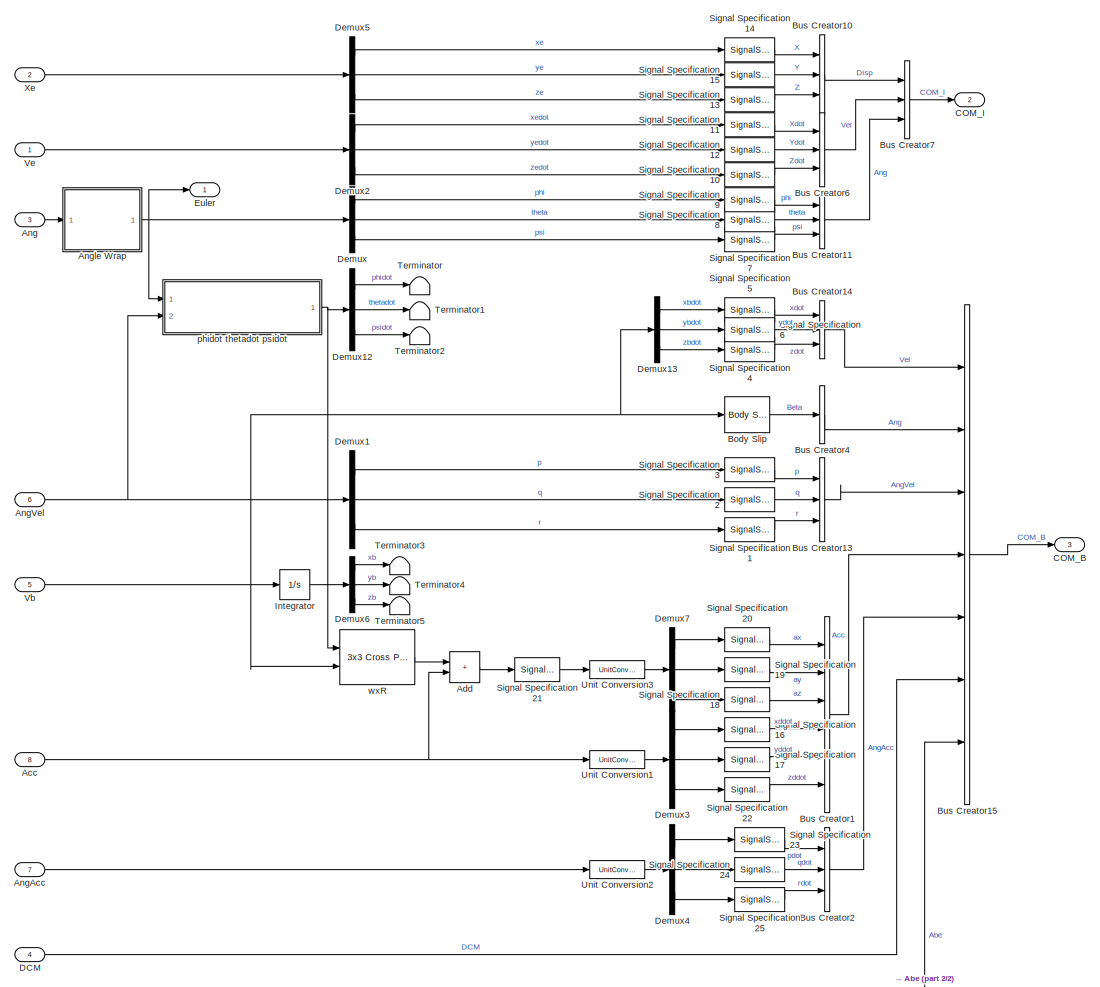
[diagram: Two-Axle Vehicle/Vehicle Body/Vehicle Body 6DOF/Vehicle Body 6DOF/6 DOF Generic Vehicle Body/SignalCollection - part 1/2, most of the canvas]
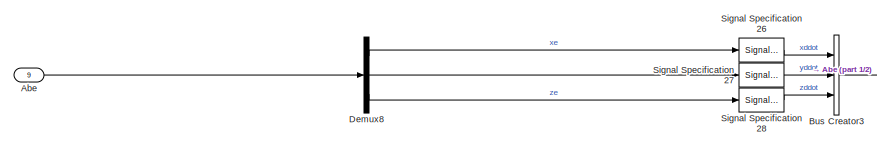
[diagram: Two-Axle Vehicle/Vehicle Body/Vehicle Body 6DOF/Vehicle Body 6DOF/6 DOF Generic Vehicle Body/SignalCollection - part 2/2, full width, bottom band]
BLOCK [SubSystem] Two-Axle Vehicle/Vehicle Body/Vehicle Body 6DOF/Vehicle Body 6DOF/6 DOF Generic Vehicle Body/SignalCollection
  PortSchema = {"entries":[{"content":{"sides":[{"content":{"connectorIds":["In1","In2","In3","In4","In5","In6","In7","In8"]},"type":"ConnectorPlacement.EquallySpacedRectSide","uuid":"876487b8-56e9-4112-b104-05c1a2771af8"},{"content":{"connectorIds":["Out1","Out2","Out3"],"side":"RIGHT"},"type":"ConnectorPlacement.EquallySpacedRectSide","uuid":"0e979842-5463-4993-8b9a-4ed5d1e46013"},{"content":{"connectorIds":[]...<+445ch>
  Ports = [9, 3]
  RequestExecContextInheritance = off
BLOCK [Inport] Two-Axle Vehicle/Vehicle Body/Vehicle Body 6DOF/Vehicle Body 6DOF/6 DOF Generic Vehicle Body/SignalCollection/Abe
  Port = 9
BLOCK [Inport] Two-Axle Vehicle/Vehicle Body/Vehicle Body 6DOF/Vehicle Body 6DOF/6 DOF Generic Vehicle Body/SignalCollection/Acc
  Port = 8
BLOCK [Sum] Two-Axle Vehicle/Vehicle Body/Vehicle Body 6DOF/Vehicle Body 6DOF/6 DOF Generic Vehicle Body/SignalCollection/Add
  IconShape = rectangular
  Ports = [2, 1]
BLOCK [Inport] Two-Axle Vehicle/Vehicle Body/Vehicle Body 6DOF/Vehicle Body 6DOF/6 DOF Generic Vehicle Body/SignalCollection/Ang
  Port = 3
BLOCK [Inport] Two-Axle Vehicle/Vehicle Body/Vehicle Body 6DOF/Vehicle Body 6DOF/6 DOF Generic Vehicle Body/SignalCollection/AngAcc
  Port = 7
BLOCK [Inport] Two-Axle Vehicle/Vehicle Body/Vehicle Body 6DOF/Vehicle Body 6DOF/6 DOF Generic Vehicle Body/SignalCollection/AngVel
  Port = 6
BLOCK [SubSystem] Two-Axle Vehicle/Vehicle Body/Vehicle Body 6DOF/Vehicle Body 6DOF/6 DOF Generic Vehicle Body/SignalCollection/Angle Wrap
  LabelModeActiveChoice = Unwrap
  Ports = [1, 1]
  RequestExecContextInheritance = off
  Variant = on
  VariantControl = Variant1
  VariantControlMode = label
BLOCK [Outport] Two-Axle Vehicle/Vehicle Body/Vehicle Body 6DOF/Vehicle Body 6DOF/6 DOF Generic Vehicle Body/SignalCollection/Angle Wrap/ y
  VectorParamsAs1DForOutWhenUnconnected = off
BLOCK [SubSystem] Two-Axle Vehicle/Vehicle Body/Vehicle Body 6DOF/Vehicle Body 6DOF/6 DOF Generic Vehicle Body/SignalCollection/Angle Wrap/None
  Ports = [1, 1]
  RequestExecContextInheritance = off
  VariantControl = None
BLOCK [Inport] Two-Axle Vehicle/Vehicle Body/Vehicle Body 6DOF/Vehicle Body 6DOF/6 DOF Generic Vehicle Body/SignalCollection/Angle Wrap/None/u
BLOCK [Outport] Two-Axle Vehicle/Vehicle Body/Vehicle Body 6DOF/Vehicle Body 6DOF/6 DOF Generic Vehicle Body/SignalCollection/Angle Wrap/None/y
  VectorParamsAs1DForOutWhenUnconnected = off
BLOCK [Reference] Two-Axle Vehicle/Vehicle Body/Vehicle Body 6DOF/Vehicle Body 6DOF/6 DOF Generic Vehicle Body/SignalCollection/Angle Wrap/Unwrap  REF=autolibutils/Unwrap
  Ports = [1, 1]
  SourceBlock = autolibutils/Unwrap
  SourceProductBaseCode = PW,DR,MT,UV,VE
  SourceType = Unwrap
BLOCK [Inport] Two-Axle Vehicle/Vehicle Body/Vehicle Body 6DOF/Vehicle Body 6DOF/6 DOF Generic Vehicle Body/SignalCollection/Angle Wrap/u 
BLOCK [Reference] Two-Axle Vehicle/Vehicle Body/Vehicle Body 6DOF/Vehicle Body 6DOF/6 DOF Generic Vehicle Body/SignalCollection/Body Slip  REF=autolibshared/Vehicle Body 3DOF Single Track/Signal Routing/Signal Routing/state2bus/Body Slip
  Ports = [1, 1]
  SourceBlock = autolibshared/Vehicle Body 3DOF Single Track/Signal Routing/Signal Routing/state2bus/Body Slip
  SourceProductBaseCode = PW,DR,MT,UV,VE
BLOCK [BusCreator] Two-Axle Vehicle/Vehicle Body/Vehicle Body 6DOF/Vehicle Body 6DOF/6 DOF Generic Vehicle Body/SignalCollection/Bus Creator1
  DisplayOption = bar
  InheritFromInputs = on
  Inputs = 6
  Ports = [6, 1]
BLOCK [BusCreator] Two-Axle Vehicle/Vehicle Body/Vehicle Body 6DOF/Vehicle Body 6DOF/6 DOF Generic Vehicle Body/SignalCollection/Bus Creator10
  DisplayOption = bar
  InheritFromInputs = on
  Inputs = 3
  Ports = [3, 1]
BLOCK [BusCreator] Two-Axle Vehicle/Vehicle Body/Vehicle Body 6DOF/Vehicle Body 6DOF/6 DOF Generic Vehicle Body/SignalCollection/Bus Creator11
  DisplayOption = bar
  InheritFromInputs = on
  Inputs = 3
  Ports = [3, 1]
BLOCK [BusCreator] Two-Axle Vehicle/Vehicle Body/Vehicle Body 6DOF/Vehicle Body 6DOF/6 DOF Generic Vehicle Body/SignalCollection/Bus Creator13
  DisplayOption = bar
  InheritFromInputs = on
  Inputs = 3
  Ports = [3, 1]
BLOCK [BusCreator] Two-Axle Vehicle/Vehicle Body/Vehicle Body 6DOF/Vehicle Body 6DOF/6 DOF Generic Vehicle Body/SignalCollection/Bus Creator14
  DisplayOption = bar
  InheritFromInputs = on
  Inputs = 3
  Ports = [3, 1]
BLOCK [BusCreator] Two-Axle Vehicle/Vehicle Body/Vehicle Body 6DOF/Vehicle Body 6DOF/6 DOF Generic Vehicle Body/SignalCollection/Bus Creator15
  DisplayOption = bar
  InheritFromInputs = on
  Inputs = 7
  Ports = [7, 1]
BLOCK [BusCreator] Two-Axle Vehicle/Vehicle Body/Vehicle Body 6DOF/Vehicle Body 6DOF/6 DOF Generic Vehicle Body/SignalCollection/Bus Creator2
  DisplayOption = bar
  InheritFromInputs = on
  Inputs = 3
  Ports = [3, 1]
BLOCK [BusCreator] Two-Axle Vehicle/Vehicle Body/Vehicle Body 6DOF/Vehicle Body 6DOF/6 DOF Generic Vehicle Body/SignalCollection/Bus Creator3
  DisplayOption = bar
  InheritFromInputs = on
  Inputs = 3
  Ports = [3, 1]
BLOCK [BusCreator] Two-Axle Vehicle/Vehicle Body/Vehicle Body 6DOF/Vehicle Body 6DOF/6 DOF Generic Vehicle Body/SignalCollection/Bus Creator4
  DisplayOption = bar
  InheritFromInputs = on
  Inputs = 1
  Ports = [1, 1]
BLOCK [BusCreator] Two-Axle Vehicle/Vehicle Body/Vehicle Body 6DOF/Vehicle Body 6DOF/6 DOF Generic Vehicle Body/SignalCollection/Bus Creator6
  DisplayOption = bar
  InheritFromInputs = on
  Inputs = 3
  Ports = [3, 1]
BLOCK [BusCreator] Two-Axle Vehicle/Vehicle Body/Vehicle Body 6DOF/Vehicle Body 6DOF/6 DOF Generic Vehicle Body/SignalCollection/Bus Creator7
  DisplayOption = bar
  InheritFromInputs = on
  Inputs = 3
  Ports = [3, 1]
BLOCK [Outport] Two-Axle Vehicle/Vehicle Body/Vehicle Body 6DOF/Vehicle Body 6DOF/6 DOF Generic Vehicle Body/SignalCollection/COM_B
  Port = 3
  VectorParamsAs1DForOutWhenUnconnected = off
BLOCK [Outport] Two-Axle Vehicle/Vehicle Body/Vehicle Body 6DOF/Vehicle Body 6DOF/6 DOF Generic Vehicle Body/SignalCollection/COM_I
  Port = 2
  VectorParamsAs1DForOutWhenUnconnected = off
BLOCK [Inport] Two-Axle Vehicle/Vehicle Body/Vehicle Body 6DOF/Vehicle Body 6DOF/6 DOF Generic Vehicle Body/SignalCollection/DCM
  Port = 4
BLOCK [Demux] Two-Axle Vehicle/Vehicle Body/Vehicle Body 6DOF/Vehicle Body 6DOF/6 DOF Generic Vehicle Body/SignalCollection/Demux
  Outputs = 3
  Ports = [1, 3]
BLOCK [Demux] Two-Axle Vehicle/Vehicle Body/Vehicle Body 6DOF/Vehicle Body 6DOF/6 DOF Generic Vehicle Body/SignalCollection/Demux1
  Outputs = 3
  Ports = [1, 3]
BLOCK [Demux] Two-Axle Vehicle/Vehicle Body/Vehicle Body 6DOF/Vehicle Body 6DOF/6 DOF Generic Vehicle Body/SignalCollection/Demux12
  Outputs = 3
  Ports = [1, 3]
BLOCK [Demux] Two-Axle Vehicle/Vehicle Body/Vehicle Body 6DOF/Vehicle Body 6DOF/6 DOF Generic Vehicle Body/SignalCollection/Demux13
  Outputs = 3
  Ports = [1, 3]
BLOCK [Demux] Two-Axle Vehicle/Vehicle Body/Vehicle Body 6DOF/Vehicle Body 6DOF/6 DOF Generic Vehicle Body/SignalCollection/Demux2
  Outputs = 3
  Ports = [1, 3]
BLOCK [Demux] Two-Axle Vehicle/Vehicle Body/Vehicle Body 6DOF/Vehicle Body 6DOF/6 DOF Generic Vehicle Body/SignalCollection/Demux3
  Outputs = 3
  Ports = [1, 3]
BLOCK [Demux] Two-Axle Vehicle/Vehicle Body/Vehicle Body 6DOF/Vehicle Body 6DOF/6 DOF Generic Vehicle Body/SignalCollection/Demux4
  Outputs = 3
  Ports = [1, 3]
BLOCK [Demux] Two-Axle Vehicle/Vehicle Body/Vehicle Body 6DOF/Vehicle Body 6DOF/6 DOF Generic Vehicle Body/SignalCollection/Demux5
  Outputs = 3
  Ports = [1, 3]
BLOCK [Demux] Two-Axle Vehicle/Vehicle Body/Vehicle Body 6DOF/Vehicle Body 6DOF/6 DOF Generic Vehicle Body/SignalCollection/Demux6
  Outputs = 3
  Ports = [1, 3]
BLOCK [Demux] Two-Axle Vehicle/Vehicle Body/Vehicle Body 6DOF/Vehicle Body 6DOF/6 DOF Generic Vehicle Body/SignalCollection/Demux7
  Outputs = 3
  Ports = [1, 3]
BLOCK [Demux] Two-Axle Vehicle/Vehicle Body/Vehicle Body 6DOF/Vehicle Body 6DOF/6 DOF Generic Vehicle Body/SignalCollection/Demux8
  Outputs = 3
  Ports = [1, 3]
BLOCK [Outport] Two-Axle Vehicle/Vehicle Body/Vehicle Body 6DOF/Vehicle Body 6DOF/6 DOF Generic Vehicle Body/SignalCollection/Euler
  Unit = rad
  VectorParamsAs1DForOutWhenUnconnected = off
BLOCK [Integrator] Two-Axle Vehicle/Vehicle Body/Vehicle Body 6DOF/Vehicle Body 6DOF/6 DOF Generic Vehicle Body/SignalCollection/Integrator
  Ports = [1, 1]
BLOCK [SignalSpecification] Two-Axle Vehicle/Vehicle Body/Vehicle Body 6DOF/Vehicle Body 6DOF/6 DOF Generic Vehicle Body/SignalCollection/Signal Specification1
  Unit = rad/s
BLOCK [SignalSpecification] Two-Axle Vehicle/Vehicle Body/Vehicle Body 6DOF/Vehicle Body 6DOF/6 DOF Generic Vehicle Body/SignalCollection/Signal Specification10
  Unit = m/s
BLOCK [SignalSpecification] Two-Axle Vehicle/Vehicle Body/Vehicle Body 6DOF/Vehicle Body 6DOF/6 DOF Generic Vehicle Body/SignalCollection/Signal Specification11
  Unit = m/s
BLOCK [SignalSpecification] Two-Axle Vehicle/Vehicle Body/Vehicle Body 6DOF/Vehicle Body 6DOF/6 DOF Generic Vehicle Body/SignalCollection/Signal Specification12
  Unit = m/s
BLOCK [SignalSpecification] Two-Axle Vehicle/Vehicle Body/Vehicle Body 6DOF/Vehicle Body 6DOF/6 DOF Generic Vehicle Body/SignalCollection/Signal Specification13
  Unit = m
BLOCK [SignalSpecification] Two-Axle Vehicle/Vehicle Body/Vehicle Body 6DOF/Vehicle Body 6DOF/6 DOF Generic Vehicle Body/SignalCollection/Signal Specification14
  Unit = m
BLOCK [SignalSpecification] Two-Axle Vehicle/Vehicle Body/Vehicle Body 6DOF/Vehicle Body 6DOF/6 DOF Generic Vehicle Body/SignalCollection/Signal Specification15
  Unit = m
BLOCK [SignalSpecification] Two-Axle Vehicle/Vehicle Body/Vehicle Body 6DOF/Vehicle Body 6DOF/6 DOF Generic Vehicle Body/SignalCollection/Signal Specification16
  Unit = m/s^2
BLOCK [SignalSpecification] Two-Axle Vehicle/Vehicle Body/Vehicle Body 6DOF/Vehicle Body 6DOF/6 DOF Generic Vehicle Body/SignalCollection/Signal Specification17
  Unit = m/s^2
BLOCK [SignalSpecification] Two-Axle Vehicle/Vehicle Body/Vehicle Body 6DOF/Vehicle Body 6DOF/6 DOF Generic Vehicle Body/SignalCollection/Signal Specification18
  Unit = gn
BLOCK [SignalSpecification] Two-Axle Vehicle/Vehicle Body/Vehicle Body 6DOF/Vehicle Body 6DOF/6 DOF Generic Vehicle Body/SignalCollection/Signal Specification19
  Unit = gn
BLOCK [SignalSpecification] Two-Axle Vehicle/Vehicle Body/Vehicle Body 6DOF/Vehicle Body 6DOF/6 DOF Generic Vehicle Body/SignalCollection/Signal Specification2
  Unit = rad/s
BLOCK [SignalSpecification] Two-Axle Vehicle/Vehicle Body/Vehicle Body 6DOF/Vehicle Body 6DOF/6 DOF Generic Vehicle Body/SignalCollection/Signal Specification20
  Unit = gn
BLOCK [SignalSpecification] Two-Axle Vehicle/Vehicle Body/Vehicle Body 6DOF/Vehicle Body 6DOF/6 DOF Generic Vehicle Body/SignalCollection/Signal Specification21
  Unit = m/s^2
BLOCK [SignalSpecification] Two-Axle Vehicle/Vehicle Body/Vehicle Body 6DOF/Vehicle Body 6DOF/6 DOF Generic Vehicle Body/SignalCollection/Signal Specification22
  Unit = m/s^2
BLOCK [SignalSpecification] Two-Axle Vehicle/Vehicle Body/Vehicle Body 6DOF/Vehicle Body 6DOF/6 DOF Generic Vehicle Body/SignalCollection/Signal Specification23
  Unit = rad/s^2
BLOCK [SignalSpecification] Two-Axle Vehicle/Vehicle Body/Vehicle Body 6DOF/Vehicle Body 6DOF/6 DOF Generic Vehicle Body/SignalCollection/Signal Specification24
  Unit = rad/s^2
BLOCK [SignalSpecification] Two-Axle Vehicle/Vehicle Body/Vehicle Body 6DOF/Vehicle Body 6DOF/6 DOF Generic Vehicle Body/SignalCollection/Signal Specification25
  Unit = rad/s^2
BLOCK [SignalSpecification] Two-Axle Vehicle/Vehicle Body/Vehicle Body 6DOF/Vehicle Body 6DOF/6 DOF Generic Vehicle Body/SignalCollection/Signal Specification26
  Unit = m/s^2
BLOCK [SignalSpecification] Two-Axle Vehicle/Vehicle Body/Vehicle Body 6DOF/Vehicle Body 6DOF/6 DOF Generic Vehicle Body/SignalCollection/Signal Specification27
  Unit = m/s^2
BLOCK [SignalSpecification] Two-Axle Vehicle/Vehicle Body/Vehicle Body 6DOF/Vehicle Body 6DOF/6 DOF Generic Vehicle Body/SignalCollection/Signal Specification28
  Unit = m/s^2
BLOCK [SignalSpecification] Two-Axle Vehicle/Vehicle Body/Vehicle Body 6DOF/Vehicle Body 6DOF/6 DOF Generic Vehicle Body/SignalCollection/Signal Specification3
  Unit = rad/s
BLOCK [SignalSpecification] Two-Axle Vehicle/Vehicle Body/Vehicle Body 6DOF/Vehicle Body 6DOF/6 DOF Generic Vehicle Body/SignalCollection/Signal Specification4
  Unit = m/s
BLOCK [SignalSpecification] Two-Axle Vehicle/Vehicle Body/Vehicle Body 6DOF/Vehicle Body 6DOF/6 DOF Generic Vehicle Body/SignalCollection/Signal Specification5
  Unit = m/s
BLOCK [SignalSpecification] Two-Axle Vehicle/Vehicle Body/Vehicle Body 6DOF/Vehicle Body 6DOF/6 DOF Generic Vehicle Body/SignalCollection/Signal Specification6
  Unit = m/s
BLOCK [SignalSpecification] Two-Axle Vehicle/Vehicle Body/Vehicle Body 6DOF/Vehicle Body 6DOF/6 DOF Generic Vehicle Body/SignalCollection/Signal Specification7
  Unit = rad
BLOCK [SignalSpecification] Two-Axle Vehicle/Vehicle Body/Vehicle Body 6DOF/Vehicle Body 6DOF/6 DOF Generic Vehicle Body/SignalCollection/Signal Specification8
  Unit = rad
BLOCK [SignalSpecification] Two-Axle Vehicle/Vehicle Body/Vehicle Body 6DOF/Vehicle Body 6DOF/6 DOF Generic Vehicle Body/SignalCollection/Signal Specification9
  Unit = rad
BLOCK [Terminator] Two-Axle Vehicle/Vehicle Body/Vehicle Body 6DOF/Vehicle Body 6DOF/6 DOF Generic Vehicle Body/SignalCollection/Terminator
BLOCK [Terminator] Two-Axle Vehicle/Vehicle Body/Vehicle Body 6DOF/Vehicle Body 6DOF/6 DOF Generic Vehicle Body/SignalCollection/Terminator1
BLOCK [Terminator] Two-Axle Vehicle/Vehicle Body/Vehicle Body 6DOF/Vehicle Body 6DOF/6 DOF Generic Vehicle Body/SignalCollection/Terminator2
BLOCK [Terminator] Two-Axle Vehicle/Vehicle Body/Vehicle Body 6DOF/Vehicle Body 6DOF/6 DOF Generic Vehicle Body/SignalCollection/Terminator3
BLOCK [Terminator] Two-Axle Vehicle/Vehicle Body/Vehicle Body 6DOF/Vehicle Body 6DOF/6 DOF Generic Vehicle Body/SignalCollection/Terminator4
BLOCK [Terminator] Two-Axle Vehicle/Vehicle Body/Vehicle Body 6DOF/Vehicle Body 6DOF/6 DOF Generic Vehicle Body/SignalCollection/Terminator5
BLOCK [UnitConversion] Two-Axle Vehicle/Vehicle Body/Vehicle Body 6DOF/Vehicle Body 6DOF/6 DOF Generic Vehicle Body/SignalCollection/Unit Conversion1
BLOCK [UnitConversion] Two-Axle Vehicle/Vehicle Body/Vehicle Body 6DOF/Vehicle Body 6DOF/6 DOF Generic Vehicle Body/SignalCollection/Unit Conversion2
BLOCK [UnitConversion] Two-Axle Vehicle/Vehicle Body/Vehicle Body 6DOF/Vehicle Body 6DOF/6 DOF Generic Vehicle Body/SignalCollection/Unit Conversion3
BLOCK [Inport] Two-Axle Vehicle/Vehicle Body/Vehicle Body 6DOF/Vehicle Body 6DOF/6 DOF Generic Vehicle Body/SignalCollection/Vb
  Port = 5
BLOCK [Inport] Two-Axle Vehicle/Vehicle Body/Vehicle Body 6DOF/Vehicle Body 6DOF/6 DOF Generic Vehicle Body/SignalCollection/Ve
BLOCK [Inport] Two-Axle Vehicle/Vehicle Body/Vehicle Body 6DOF/Vehicle Body 6DOF/6 DOF Generic Vehicle Body/SignalCollection/Xe
  Port = 2
BLOCK [SubSystem] Two-Axle Vehicle/Vehicle Body/Vehicle Body 6DOF/Vehicle Body 6DOF/6 DOF Generic Vehicle Body/SignalCollection/phidot thetadot psidot
  Ports = [2, 1]
  RequestExecContextInheritance = off
BLOCK [Mux] Two-Axle Vehicle/Vehicle Body/Vehicle Body 6DOF/Vehicle Body 6DOF/6 DOF Generic Vehicle Body/SignalCollection/phidot thetadot psidot/Mux1
  DisplayOption = bar
  Inputs = [3 3 3]
  Ports = [3, 1]
BLOCK [Mux] Two-Axle Vehicle/Vehicle Body/Vehicle Body 6DOF/Vehicle Body 6DOF/6 DOF Generic Vehicle Body/SignalCollection/phidot thetadot psidot/Mux2
  DisplayOption = bar
  Inputs = 3
  Ports = [3, 1]
BLOCK [Inport] Two-Axle Vehicle/Vehicle Body/Vehicle Body 6DOF/Vehicle Body 6DOF/6 DOF Generic Vehicle Body/SignalCollection/phidot thetadot psidot/p q r
  Port = 2
BLOCK [Inport] Two-Axle Vehicle/Vehicle Body/Vehicle Body 6DOF/Vehicle Body 6DOF/6 DOF Generic Vehicle Body/SignalCollection/phidot thetadot psidot/phi theta psi
BLOCK [Fcn] Two-Axle Vehicle/Vehicle Body/Vehicle Body 6DOF/Vehicle Body 6DOF/6 DOF Generic Vehicle Body/SignalCollection/phidot thetadot psidot/phidot
  Expr = u[1]+(u[2]*u[4]+u[3]*u[7])*(u[5]/u[8])
BLOCK [Outport] Two-Axle Vehicle/Vehicle Body/Vehicle Body 6DOF/Vehicle Body 6DOF/6 DOF Generic Vehicle Body/SignalCollection/phidot thetadot psidot/phidot thetadot psidot
  InitialOutput = 0
  VectorParamsAs1DForOutWhenUnconnected = off
BLOCK [Fcn] Two-Axle Vehicle/Vehicle Body/Vehicle Body 6DOF/Vehicle Body 6DOF/6 DOF Generic Vehicle Body/SignalCollection/phidot thetadot psidot/psidot
  Expr = (u[2]*u[4]+u[3]*u[7])/u[8]
BLOCK [Trigonometry] Two-Axle Vehicle/Vehicle Body/Vehicle Body 6DOF/Vehicle Body 6DOF/6 DOF Generic Vehicle Body/SignalCollection/phidot thetadot psidot/sincos
  Operator = sincos
  Ports = [1, 2]
BLOCK [Fcn] Two-Axle Vehicle/Vehicle Body/Vehicle Body 6DOF/Vehicle Body 6DOF/6 DOF Generic Vehicle Body/SignalCollection/phidot thetadot psidot/thetadot
  Expr = u[2]*u[7]-u[3]*u[4]
BLOCK [Reference] Two-Axle Vehicle/Vehicle Body/Vehicle Body 6DOF/Vehicle Body 6DOF/6 DOF Generic Vehicle Body/SignalCollection/wxR  REF=sharedutil/3x3 Cross Product
  Ports = [2, 1]
  SourceBlock = sharedutil/3x3 Cross Product
  SourceProductBaseCode = AE,PW,DR,MT,UV,VE
  SourceType = CrossProduct
BLOCK [Sum] Two-Axle Vehicle/Vehicle Body/Vehicle Body 6DOF/Vehicle Body 6DOF/6 DOF Generic Vehicle Body/Sum
  IconShape = rectangular
  InputSameDT = on
  Inputs = ++-+++
  OutDataTypeStr = Inherit: Same as first input
  Ports = [6, 1]
  SaturateOnIntegerOverflow = on
BLOCK [UnaryMinus] Two-Axle Vehicle/Vehicle Body/Vehicle Body 6DOF/Vehicle Body 6DOF/6 DOF Generic Vehicle Body/Unary Minus
BLOCK [UnaryMinus] Two-Axle Vehicle/Vehicle Body/Vehicle Body 6DOF/Vehicle Body 6DOF/6 DOF Generic Vehicle Body/Unary Minus1
BLOCK [Outport] Two-Axle Vehicle/Vehicle Body/Vehicle Body 6DOF/Vehicle Body 6DOF/6 DOF Generic Vehicle Body/Vb
  Port = 5
  Unit = m/s
  VectorParamsAs1DForOutWhenUnconnected = off
BLOCK [Outport] Two-Axle Vehicle/Vehicle Body/Vehicle Body 6DOF/Vehicle Body 6DOF/6 DOF Generic Vehicle Body/Ve
  Unit = m/s
  VectorParamsAs1DForOutWhenUnconnected = off
BLOCK [Concatenate] Two-Axle Vehicle/Vehicle Body/Vehicle Body 6DOF/Vehicle Body 6DOF/6 DOF Generic Vehicle Body/Vector Concatenate
  NumInputs = 3
  Ports = [3, 1]
BLOCK [SubSystem] Two-Axle Vehicle/Vehicle Body/Vehicle Body 6DOF/Vehicle Body 6DOF/6 DOF Generic Vehicle Body/Wheel to CG
  Ports = [1, 1]
  RequestExecContextInheritance = off
BLOCK [Inport] Two-Axle Vehicle/Vehicle Body/Vehicle Body 6DOF/Vehicle Body 6DOF/6 DOF Generic Vehicle Body/Wheel to CG/MSusp
BLOCK [Outport] Two-Axle Vehicle/Vehicle Body/Vehicle Body 6DOF/Vehicle Body 6DOF/6 DOF Generic Vehicle Body/Wheel to CG/MVeh
  VectorParamsAs1DForOutWhenUnconnected = off
BLOCK [Selector] Two-Axle Vehicle/Vehicle Body/Vehicle Body 6DOF/Vehicle Body 6DOF/6 DOF Generic Vehicle Body/Wheel to CG/Selector1
  IndexOptions = Index vector (dialog),Select all
  Indices = [1],1
  InputPortWidth = 3
  NumberOfDimensions = 2
  OutputSizes = 1,1
  Ports = [1, 1]
BLOCK [Selector] Two-Axle Vehicle/Vehicle Body/Vehicle Body 6DOF/Vehicle Body 6DOF/6 DOF Generic Vehicle Body/Wheel to CG/Selector2
  IndexOptions = Index vector (dialog),Select all
  Indices = [2],1
  InputPortWidth = 3
  NumberOfDimensions = 2
  OutputSizes = 1,1
  Ports = [1, 1]
BLOCK [Selector] Two-Axle Vehicle/Vehicle Body/Vehicle Body 6DOF/Vehicle Body 6DOF/6 DOF Generic Vehicle Body/Wheel to CG/Selector3
  IndexOptions = Index vector (dialog),Select all
  Indices = [3],1
  InputPortWidth = 3
  NumberOfDimensions = 2
  OutputSizes = 1,1
  Ports = [1, 1]
BLOCK [Sum] Two-Axle Vehicle/Vehicle Body/Vehicle Body 6DOF/Vehicle Body 6DOF/6 DOF Generic Vehicle Body/Wheel to CG/Sum of Elements
  IconShape = rectangular
  Inputs = +
  Ports = [1, 1]
BLOCK [Sum] Two-Axle Vehicle/Vehicle Body/Vehicle Body 6DOF/Vehicle Body 6DOF/6 DOF Generic Vehicle Body/Wheel to CG/Sum of Elements1
  IconShape = rectangular
  Inputs = +
  Ports = [1, 1]
BLOCK [Sum] Two-Axle Vehicle/Vehicle Body/Vehicle Body 6DOF/Vehicle Body 6DOF/6 DOF Generic Vehicle Body/Wheel to CG/Sum of Elements2
  IconShape = rectangular
  Inputs = +
  Ports = [1, 1]
BLOCK [Concatenate] Two-Axle Vehicle/Vehicle Body/Vehicle Body 6DOF/Vehicle Body 6DOF/6 DOF Generic Vehicle Body/Wheel to CG/Vector Concatenate
  NumInputs = 3
  Ports = [3, 1]
BLOCK [Inport] Two-Axle Vehicle/Vehicle Body/Vehicle Body 6DOF/Vehicle Body 6DOF/6 DOF Generic Vehicle Body/WindXYZ
  Port = 3
  Unit = m/s
BLOCK [Outport] Two-Axle Vehicle/Vehicle Body/Vehicle Body 6DOF/Vehicle Body 6DOF/6 DOF Generic Vehicle Body/Xe
  Port = 2
  Unit = m
  VectorParamsAs1DForOutWhenUnconnected = off
BLOCK [Inport] Two-Axle Vehicle/Vehicle Body/Vehicle Body 6DOF/Vehicle Body 6DOF/6 DOF Generic Vehicle Body/m
  Port = 15
BLOCK [Outport] Two-Axle Vehicle/Vehicle Body/Vehicle Body 6DOF/Vehicle Body 6DOF/6 DOF Generic Vehicle Body/pqr
  Port = 10
  Unit = rad/s
  VectorParamsAs1DForOutWhenUnconnected = off
BLOCK [Constant] Two-Axle Vehicle/Vehicle Body/Vehicle Body 6DOF/Vehicle Body 6DOF/AirTempConstant
  Value = Tair
BLOCK [BusCreator] Two-Axle Vehicle/Vehicle Body/Vehicle Body 6DOF/Vehicle Body 6DOF/Bus Creator17
  DisplayOption = bar
  InheritFromInputs = on
  Inputs = 2
  Ports = [2, 1]
BLOCK [Constant] Two-Axle Vehicle/Vehicle Body/Vehicle Body 6DOF/Vehicle Body 6DOF/Constant
  Value = zeros(12,1)
BLOCK [Outport] Two-Axle Vehicle/Vehicle Body/Vehicle Body 6DOF/Vehicle Body 6DOF/DCM
  Port = 4
  VectorParamsAs1DForOutWhenUnconnected = off
BLOCK [Outport] Two-Axle Vehicle/Vehicle Body/Vehicle Body 6DOF/Vehicle Body 6DOF/Euler
  Port = 5
  Unit = rad
  VectorParamsAs1DForOutWhenUnconnected = off
BLOCK [Inport] Two-Axle Vehicle/Vehicle Body/Vehicle Body 6DOF/Vehicle Body 6DOF/FExt
  Port = 3
  Unit = N
BLOCK [Inport] Two-Axle Vehicle/Vehicle Body/Vehicle Body 6DOF/Vehicle Body 6DOF/FSusp
  Unit = N
BLOCK [Ground] Two-Axle Vehicle/Vehicle Body/Vehicle Body 6DOF/Vehicle Body 6DOF/FhGround
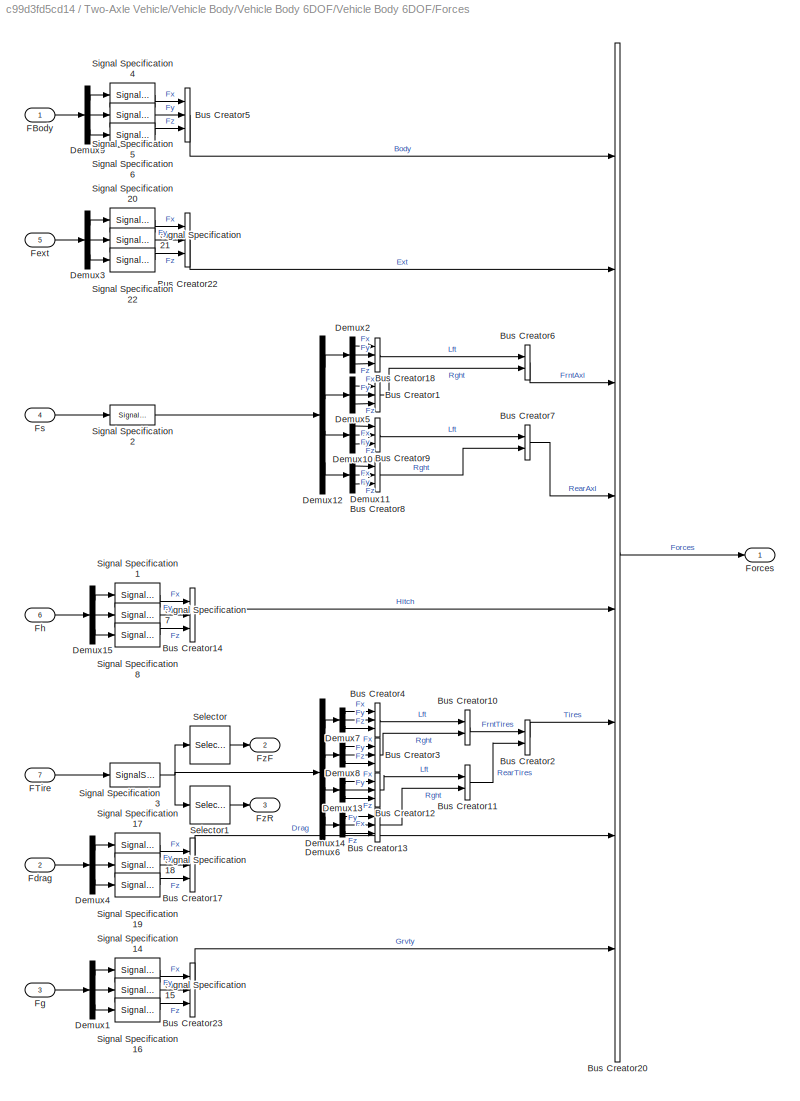
BLOCK [SubSystem] Two-Axle Vehicle/Vehicle Body/Vehicle Body 6DOF/Vehicle Body 6DOF/Forces
  Ports = [7, 3]
  RequestExecContextInheritance = off
  VariantControl = 2
BLOCK [BusCreator] Two-Axle Vehicle/Vehicle Body/Vehicle Body 6DOF/Vehicle Body 6DOF/Forces/Bus Creator1
  DisplayOption = bar
  InheritFromInputs = on
  Inputs = 3
  Ports = [3, 1]
BLOCK [BusCreator] Two-Axle Vehicle/Vehicle Body/Vehicle Body 6DOF/Vehicle Body 6DOF/Forces/Bus Creator10
  DisplayOption = bar
  InheritFromInputs = on
  Inputs = 2
  Ports = [2, 1]
BLOCK [BusCreator] Two-Axle Vehicle/Vehicle Body/Vehicle Body 6DOF/Vehicle Body 6DOF/Forces/Bus Creator11
  DisplayOption = bar
  InheritFromInputs = on
  Inputs = 2
  Ports = [2, 1]
BLOCK [BusCreator] Two-Axle Vehicle/Vehicle Body/Vehicle Body 6DOF/Vehicle Body 6DOF/Forces/Bus Creator12
  DisplayOption = bar
  InheritFromInputs = on
  Inputs = 3
  Ports = [3, 1]
BLOCK [BusCreator] Two-Axle Vehicle/Vehicle Body/Vehicle Body 6DOF/Vehicle Body 6DOF/Forces/Bus Creator13
  DisplayOption = bar
  InheritFromInputs = on
  Inputs = 3
  Ports = [3, 1]
BLOCK [BusCreator] Two-Axle Vehicle/Vehicle Body/Vehicle Body 6DOF/Vehicle Body 6DOF/Forces/Bus Creator14
  DisplayOption = bar
  InheritFromInputs = on
  Inputs = 3
  Ports = [3, 1]
BLOCK [BusCreator] Two-Axle Vehicle/Vehicle Body/Vehicle Body 6DOF/Vehicle Body 6DOF/Forces/Bus Creator17
  DisplayOption = bar
  InheritFromInputs = on
  Inputs = 3
  Ports = [3, 1]
BLOCK [BusCreator] Two-Axle Vehicle/Vehicle Body/Vehicle Body 6DOF/Vehicle Body 6DOF/Forces/Bus Creator18
  DisplayOption = bar
  InheritFromInputs = on
  Inputs = 3
  Ports = [3, 1]
BLOCK [BusCreator] Two-Axle Vehicle/Vehicle Body/Vehicle Body 6DOF/Vehicle Body 6DOF/Forces/Bus Creator2
  DisplayOption = bar
  InheritFromInputs = on
  Inputs = 2
  Ports = [2, 1]
BLOCK [BusCreator] Two-Axle Vehicle/Vehicle Body/Vehicle Body 6DOF/Vehicle Body 6DOF/Forces/Bus Creator20
  DisplayOption = bar
  InheritFromInputs = on
  Inputs = 8
  Ports = [8, 1]
BLOCK [BusCreator] Two-Axle Vehicle/Vehicle Body/Vehicle Body 6DOF/Vehicle Body 6DOF/Forces/Bus Creator22
  DisplayOption = bar
  InheritFromInputs = on
  Inputs = 3
  Ports = [3, 1]
BLOCK [BusCreator] Two-Axle Vehicle/Vehicle Body/Vehicle Body 6DOF/Vehicle Body 6DOF/Forces/Bus Creator23
  DisplayOption = bar
  InheritFromInputs = on
  Inputs = 3
  Ports = [3, 1]
BLOCK [BusCreator] Two-Axle Vehicle/Vehicle Body/Vehicle Body 6DOF/Vehicle Body 6DOF/Forces/Bus Creator3
  DisplayOption = bar
  InheritFromInputs = on
  Inputs = 3
  Ports = [3, 1]
BLOCK [BusCreator] Two-Axle Vehicle/Vehicle Body/Vehicle Body 6DOF/Vehicle Body 6DOF/Forces/Bus Creator4
  DisplayOption = bar
  InheritFromInputs = on
  Inputs = 3
  Ports = [3, 1]
BLOCK [BusCreator] Two-Axle Vehicle/Vehicle Body/Vehicle Body 6DOF/Vehicle Body 6DOF/Forces/Bus Creator5
  DisplayOption = bar
  InheritFromInputs = on
  Inputs = 3
  Ports = [3, 1]
BLOCK [BusCreator] Two-Axle Vehicle/Vehicle Body/Vehicle Body 6DOF/Vehicle Body 6DOF/Forces/Bus Creator6
  DisplayOption = bar
  InheritFromInputs = on
  Inputs = 2
  Ports = [2, 1]
BLOCK [BusCreator] Two-Axle Vehicle/Vehicle Body/Vehicle Body 6DOF/Vehicle Body 6DOF/Forces/Bus Creator7
  DisplayOption = bar
  InheritFromInputs = on
  Inputs = 2
  Ports = [2, 1]
BLOCK [BusCreator] Two-Axle Vehicle/Vehicle Body/Vehicle Body 6DOF/Vehicle Body 6DOF/Forces/Bus Creator8
  DisplayOption = bar
  InheritFromInputs = on
  Inputs = 3
  Ports = [3, 1]
BLOCK [BusCreator] Two-Axle Vehicle/Vehicle Body/Vehicle Body 6DOF/Vehicle Body 6DOF/Forces/Bus Creator9
  DisplayOption = bar
  InheritFromInputs = on
  Inputs = 3
  Ports = [3, 1]
BLOCK [Demux] Two-Axle Vehicle/Vehicle Body/Vehicle Body 6DOF/Vehicle Body 6DOF/Forces/Demux1
  Outputs = 3
  Ports = [1, 3]
BLOCK [Demux] Two-Axle Vehicle/Vehicle Body/Vehicle Body 6DOF/Vehicle Body 6DOF/Forces/Demux10
  Outputs = 3
  Ports = [1, 3]
BLOCK [Demux] Two-Axle Vehicle/Vehicle Body/Vehicle Body 6DOF/Vehicle Body 6DOF/Forces/Demux11
  Outputs = 3
  Ports = [1, 3]
BLOCK [Demux] Two-Axle Vehicle/Vehicle Body/Vehicle Body 6DOF/Vehicle Body 6DOF/Forces/Demux12
  Outputs = [3,3,3,3]
  Ports = [1, 4]
BLOCK [Demux] Two-Axle Vehicle/Vehicle Body/Vehicle Body 6DOF/Vehicle Body 6DOF/Forces/Demux13
  Outputs = 3
  Ports = [1, 3]
BLOCK [Demux] Two-Axle Vehicle/Vehicle Body/Vehicle Body 6DOF/Vehicle Body 6DOF/Forces/Demux14
  Outputs = 3
  Ports = [1, 3]
BLOCK [Demux] Two-Axle Vehicle/Vehicle Body/Vehicle Body 6DOF/Vehicle Body 6DOF/Forces/Demux15
  Outputs = 3
  Ports = [1, 3]
BLOCK [Demux] Two-Axle Vehicle/Vehicle Body/Vehicle Body 6DOF/Vehicle Body 6DOF/Forces/Demux2
  Outputs = 3
  Ports = [1, 3]
BLOCK [Demux] Two-Axle Vehicle/Vehicle Body/Vehicle Body 6DOF/Vehicle Body 6DOF/Forces/Demux3
  Outputs = 3
  Ports = [1, 3]
BLOCK [Demux] Two-Axle Vehicle/Vehicle Body/Vehicle Body 6DOF/Vehicle Body 6DOF/Forces/Demux4
  Outputs = 3
  Ports = [1, 3]
BLOCK [Demux] Two-Axle Vehicle/Vehicle Body/Vehicle Body 6DOF/Vehicle Body 6DOF/Forces/Demux5
  Outputs = 3
  Ports = [1, 3]
BLOCK [Demux] Two-Axle Vehicle/Vehicle Body/Vehicle Body 6DOF/Vehicle Body 6DOF/Forces/Demux6
  Outputs = [3,3,3,3]
  Ports = [1, 4]
BLOCK [Demux] Two-Axle Vehicle/Vehicle Body/Vehicle Body 6DOF/Vehicle Body 6DOF/Forces/Demux7
  Outputs = 3
  Ports = [1, 3]
BLOCK [Demux] Two-Axle Vehicle/Vehicle Body/Vehicle Body 6DOF/Vehicle Body 6DOF/Forces/Demux8
  Outputs = 3
  Ports = [1, 3]
BLOCK [Demux] Two-Axle Vehicle/Vehicle Body/Vehicle Body 6DOF/Vehicle Body 6DOF/Forces/Demux9
  Outputs = 3
  Ports = [1, 3]
BLOCK [Inport] Two-Axle Vehicle/Vehicle Body/Vehicle Body 6DOF/Vehicle Body 6DOF/Forces/FBody
BLOCK [Inport] Two-Axle Vehicle/Vehicle Body/Vehicle Body 6DOF/Vehicle Body 6DOF/Forces/FTire
  Port = 7
BLOCK [Inport] Two-Axle Vehicle/Vehicle Body/Vehicle Body 6DOF/Vehicle Body 6DOF/Forces/Fdrag
  Port = 2
BLOCK [Inport] Two-Axle Vehicle/Vehicle Body/Vehicle Body 6DOF/Vehicle Body 6DOF/Forces/Fext
  Port = 5
BLOCK [Inport] Two-Axle Vehicle/Vehicle Body/Vehicle Body 6DOF/Vehicle Body 6DOF/Forces/Fg
  Port = 3
BLOCK [Inport] Two-Axle Vehicle/Vehicle Body/Vehicle Body 6DOF/Vehicle Body 6DOF/Forces/Fh
  Port = 6
BLOCK [Outport] Two-Axle Vehicle/Vehicle Body/Vehicle Body 6DOF/Vehicle Body 6DOF/Forces/Forces
  VectorParamsAs1DForOutWhenUnconnected = off
BLOCK [Inport] Two-Axle Vehicle/Vehicle Body/Vehicle Body 6DOF/Vehicle Body 6DOF/Forces/Fs
  Port = 4
  Unit = N
BLOCK [Outport] Two-Axle Vehicle/Vehicle Body/Vehicle Body 6DOF/Vehicle Body 6DOF/Forces/FzF
  Port = 2
  VectorParamsAs1DForOutWhenUnconnected = off
BLOCK [Outport] Two-Axle Vehicle/Vehicle Body/Vehicle Body 6DOF/Vehicle Body 6DOF/Forces/FzR
  Port = 3
  VectorParamsAs1DForOutWhenUnconnected = off
BLOCK [Selector] Two-Axle Vehicle/Vehicle Body/Vehicle Body 6DOF/Vehicle Body 6DOF/Forces/Selector
  IndexOptions = Index vector (dialog)
  Indices = [3,6]
  InputPortWidth = 12
  OutputSizes = 1
  Ports = [1, 1]
BLOCK [Selector] Two-Axle Vehicle/Vehicle Body/Vehicle Body 6DOF/Vehicle Body 6DOF/Forces/Selector1
  IndexOptions = Index vector (dialog)
  Indices = [9,12]
  InputPortWidth = 12
  OutputSizes = 1
  Ports = [1, 1]
BLOCK [SignalSpecification] Two-Axle Vehicle/Vehicle Body/Vehicle Body 6DOF/Vehicle Body 6DOF/Forces/Signal Specification1
  Unit = N
BLOCK [SignalSpecification] Two-Axle Vehicle/Vehicle Body/Vehicle Body 6DOF/Vehicle Body 6DOF/Forces/Signal Specification14
  Unit = N
BLOCK [SignalSpecification] Two-Axle Vehicle/Vehicle Body/Vehicle Body 6DOF/Vehicle Body 6DOF/Forces/Signal Specification15
  Unit = N
BLOCK [SignalSpecification] Two-Axle Vehicle/Vehicle Body/Vehicle Body 6DOF/Vehicle Body 6DOF/Forces/Signal Specification16
  Unit = N
BLOCK [SignalSpecification] Two-Axle Vehicle/Vehicle Body/Vehicle Body 6DOF/Vehicle Body 6DOF/Forces/Signal Specification17
  Unit = N
BLOCK [SignalSpecification] Two-Axle Vehicle/Vehicle Body/Vehicle Body 6DOF/Vehicle Body 6DOF/Forces/Signal Specification18
  Unit = N
BLOCK [SignalSpecification] Two-Axle Vehicle/Vehicle Body/Vehicle Body 6DOF/Vehicle Body 6DOF/Forces/Signal Specification19
  Unit = N
BLOCK [SignalSpecification] Two-Axle Vehicle/Vehicle Body/Vehicle Body 6DOF/Vehicle Body 6DOF/Forces/Signal Specification2
  Unit = N
BLOCK [SignalSpecification] Two-Axle Vehicle/Vehicle Body/Vehicle Body 6DOF/Vehicle Body 6DOF/Forces/Signal Specification20
  Unit = N
BLOCK [SignalSpecification] Two-Axle Vehicle/Vehicle Body/Vehicle Body 6DOF/Vehicle Body 6DOF/Forces/Signal Specification21
  Unit = N
BLOCK [SignalSpecification] Two-Axle Vehicle/Vehicle Body/Vehicle Body 6DOF/Vehicle Body 6DOF/Forces/Signal Specification22
  Unit = N
BLOCK [SignalSpecification] Two-Axle Vehicle/Vehicle Body/Vehicle Body 6DOF/Vehicle Body 6DOF/Forces/Signal Specification3
  Unit = N
BLOCK [SignalSpecification] Two-Axle Vehicle/Vehicle Body/Vehicle Body 6DOF/Vehicle Body 6DOF/Forces/Signal Specification4
  Unit = N
BLOCK [SignalSpecification] Two-Axle Vehicle/Vehicle Body/Vehicle Body 6DOF/Vehicle Body 6DOF/Forces/Signal Specification5
  Unit = N
BLOCK [SignalSpecification] Two-Axle Vehicle/Vehicle Body/Vehicle Body 6DOF/Vehicle Body 6DOF/Forces/Signal Specification6
  Unit = N
BLOCK [SignalSpecification] Two-Axle Vehicle/Vehicle Body/Vehicle Body 6DOF/Vehicle Body 6DOF/Forces/Signal Specification7
  Unit = N
BLOCK [SignalSpecification] Two-Axle Vehicle/Vehicle Body/Vehicle Body 6DOF/Vehicle Body 6DOF/Forces/Signal Specification8
  Unit = N
BLOCK [From] Two-Axle Vehicle/Vehicle Body/Vehicle Body 6DOF/Vehicle Body 6DOF/From
  GotoTag = FVehB
BLOCK [From] Two-Axle Vehicle/Vehicle Body/Vehicle Body 6DOF/Vehicle Body 6DOF/From1
  GotoTag = Fh
BLOCK [From] Two-Axle Vehicle/Vehicle Body/Vehicle Body 6DOF/Vehicle Body 6DOF/From10
  GotoTag = Xbar
BLOCK [From] Two-Axle Vehicle/Vehicle Body/Vehicle Body 6DOF/Vehicle Body 6DOF/From11
  GotoTag = Mh
BLOCK [From] Two-Axle Vehicle/Vehicle Body/Vehicle Body 6DOF/Vehicle Body 6DOF/From13
  GotoTag = Wbar
BLOCK [From] Two-Axle Vehicle/Vehicle Body/Vehicle Body 6DOF/Vehicle Body 6DOF/From14
  GotoTag = Rbar
BLOCK [From] Two-Axle Vehicle/Vehicle Body/Vehicle Body 6DOF/Vehicle Body 6DOF/From15
  GotoTag = Mbar
BLOCK [From] Two-Axle Vehicle/Vehicle Body/Vehicle Body 6DOF/Vehicle Body 6DOF/From16
  GotoTag = HPbar
BLOCK [From] Two-Axle Vehicle/Vehicle Body/Vehicle Body 6DOF/Vehicle Body 6DOF/From18
  GotoTag = Mext
BLOCK [From] Two-Axle Vehicle/Vehicle Body/Vehicle Body 6DOF/Vehicle Body 6DOF/From2
  GotoTag = Fdrag
BLOCK [From] Two-Axle Vehicle/Vehicle Body/Vehicle Body 6DOF/Vehicle Body 6DOF/From3
  GotoTag = Rbar
BLOCK [From] Two-Axle Vehicle/Vehicle Body/Vehicle Body 6DOF/Vehicle Body 6DOF/From4
  GotoTag = Fext
BLOCK [From] Two-Axle Vehicle/Vehicle Body/Vehicle Body 6DOF/Vehicle Body 6DOF/From5
  GotoTag = Fh
BLOCK [From] Two-Axle Vehicle/Vehicle Body/Vehicle Body 6DOF/Vehicle Body 6DOF/From6
  GotoTag = Fg
BLOCK [From] Two-Axle Vehicle/Vehicle Body/Vehicle Body 6DOF/Vehicle Body 6DOF/From7
  GotoTag = Fs
BLOCK [From] Two-Axle Vehicle/Vehicle Body/Vehicle Body 6DOF/Vehicle Body 6DOF/From8
  GotoTag = Fb
BLOCK [From] Two-Axle Vehicle/Vehicle Body/Vehicle Body 6DOF/Vehicle Body 6DOF/From9
  GotoTag = Hbar
BLOCK [Goto] Two-Axle Vehicle/Vehicle Body/Vehicle Body 6DOF/Vehicle Body 6DOF/Goto
  GotoTag = Fg
BLOCK [Goto] Two-Axle Vehicle/Vehicle Body/Vehicle Body 6DOF/Vehicle Body 6DOF/Goto1
  GotoTag = Fext
BLOCK [Goto] Two-Axle Vehicle/Vehicle Body/Vehicle Body 6DOF/Vehicle Body 6DOF/Goto10
  GotoTag = Mext
BLOCK [Goto] Two-Axle Vehicle/Vehicle Body/Vehicle Body 6DOF/Vehicle Body 6DOF/Goto11
  GotoTag = Wbar
BLOCK [Goto] Two-Axle Vehicle/Vehicle Body/Vehicle Body 6DOF/Vehicle Body 6DOF/Goto12
  GotoTag = Rbar
BLOCK [Goto] Two-Axle Vehicle/Vehicle Body/Vehicle Body 6DOF/Vehicle Body 6DOF/Goto13
  GotoTag = HPbar
BLOCK [Goto] Two-Axle Vehicle/Vehicle Body/Vehicle Body 6DOF/Vehicle Body 6DOF/Goto14
  GotoTag = Mbar
BLOCK [Goto] Two-Axle Vehicle/Vehicle Body/Vehicle Body 6DOF/Vehicle Body 6DOF/Goto2
  GotoTag = Fdrag
BLOCK [Goto] Two-Axle Vehicle/Vehicle Body/Vehicle Body 6DOF/Vehicle Body 6DOF/Goto3
  GotoTag = Fb
BLOCK [Goto] Two-Axle Vehicle/Vehicle Body/Vehicle Body 6DOF/Vehicle Body 6DOF/Goto4
  GotoTag = FVehB
BLOCK [Goto] Two-Axle Vehicle/Vehicle Body/Vehicle Body 6DOF/Vehicle Body 6DOF/Goto5
  GotoTag = Hbar
BLOCK [Goto] Two-Axle Vehicle/Vehicle Body/Vehicle Body 6DOF/Vehicle Body 6DOF/Goto6
  GotoTag = Fs
BLOCK [Goto] Two-Axle Vehicle/Vehicle Body/Vehicle Body 6DOF/Vehicle Body 6DOF/Goto7
  GotoTag = Fh
BLOCK [Goto] Two-Axle Vehicle/Vehicle Body/Vehicle Body 6DOF/Vehicle Body 6DOF/Goto8
  GotoTag = Mh
BLOCK [Goto] Two-Axle Vehicle/Vehicle Body/Vehicle Body 6DOF/Vehicle Body 6DOF/Goto9
  GotoTag = Xbar
BLOCK [Ground] Two-Axle Vehicle/Vehicle Body/Vehicle Body 6DOF/Vehicle Body 6DOF/Ground
BLOCK [Ground] Two-Axle Vehicle/Vehicle Body/Vehicle Body 6DOF/Vehicle Body 6DOF/Ground1
BLOCK [Outport] Two-Axle Vehicle/Vehicle Body/Vehicle Body 6DOF/Vehicle Body 6DOF/Info
  VectorParamsAs1DForOutWhenUnconnected = off
BLOCK [Inport] Two-Axle Vehicle/Vehicle Body/Vehicle Body 6DOF/Vehicle Body 6DOF/MExt
  Port = 4
  Unit = N*m
BLOCK [Inport] Two-Axle Vehicle/Vehicle Body/Vehicle Body 6DOF/Vehicle Body 6DOF/MSusp
  Port = 2
  Unit = N*m
BLOCK [Ground] Two-Axle Vehicle/Vehicle Body/Vehicle Body 6DOF/Vehicle Body 6DOF/MhGround
BLOCK [SubSystem] Two-Axle Vehicle/Vehicle Body/Vehicle Body 6DOF/Vehicle Body 6DOF/Moment Calc
  Ports = [7, 4]
  RequestExecContextInheritance = off
BLOCK [Demux] Two-Axle Vehicle/Vehicle Body/Vehicle Body 6DOF/Vehicle Body 6DOF/Moment Calc/Demux1
  Outputs = 3
  Ports = [1, 3]
BLOCK [Demux] Two-Axle Vehicle/Vehicle Body/Vehicle Body 6DOF/Vehicle Body 6DOF/Moment Calc/Demux2
  Ports = [1, 4]
BLOCK [Demux] Two-Axle Vehicle/Vehicle Body/Vehicle Body 6DOF/Vehicle Body 6DOF/Moment Calc/Demux3
  Ports = [1, 4]
BLOCK [Demux] Two-Axle Vehicle/Vehicle Body/Vehicle Body 6DOF/Vehicle Body 6DOF/Moment Calc/Demux4
  Ports = [1, 4]
BLOCK [Demux] Two-Axle Vehicle/Vehicle Body/Vehicle Body 6DOF/Vehicle Body 6DOF/Moment Calc/Demux7
  Ports = [1, 4]
BLOCK [Inport] Two-Axle Vehicle/Vehicle Body/Vehicle Body 6DOF/Vehicle Body 6DOF/Moment Calc/Fh
  Port = 7
BLOCK [From] Two-Axle Vehicle/Vehicle Body/Vehicle Body 6DOF/Vehicle Body 6DOF/Moment Calc/From
  GotoTag = abar
BLOCK [From] Two-Axle Vehicle/Vehicle Body/Vehicle Body 6DOF/Vehicle Body 6DOF/Moment Calc/From1
  GotoTag = bbar
BLOCK [From] Two-Axle Vehicle/Vehicle Body/Vehicle Body 6DOF/Vehicle Body 6DOF/Moment Calc/From2
  GotoTag = hbar
BLOCK [From] Two-Axle Vehicle/Vehicle Body/Vehicle Body 6DOF/Vehicle Body 6DOF/Moment Calc/From3
  GotoTag = abar
BLOCK [From] Two-Axle Vehicle/Vehicle Body/Vehicle Body 6DOF/Vehicle Body 6DOF/Moment Calc/From4
  GotoTag = bbar
BLOCK [From] Two-Axle Vehicle/Vehicle Body/Vehicle Body 6DOF/Vehicle Body 6DOF/Moment Calc/From5
  GotoTag = wbar
BLOCK [From] Two-Axle Vehicle/Vehicle Body/Vehicle Body 6DOF/Vehicle Body 6DOF/Moment Calc/From6
  GotoTag = wbar
BLOCK [Inport] Two-Axle Vehicle/Vehicle Body/Vehicle Body 6DOF/Vehicle Body 6DOF/Moment Calc/Fx
  NameLocation = top
BLOCK [Inport] Two-Axle Vehicle/Vehicle Body/Vehicle Body 6DOF/Vehicle Body 6DOF/Moment Calc/Fy
  Port = 2
BLOCK [Inport] Two-Axle Vehicle/Vehicle Body/Vehicle Body 6DOF/Vehicle Body 6DOF/Moment Calc/Fz
  NameLocation = top
  Port = 3
BLOCK [Goto] Two-Axle Vehicle/Vehicle Body/Vehicle Body 6DOF/Vehicle Body 6DOF/Moment Calc/Goto
  GotoTag = abar
BLOCK [Goto] Two-Axle Vehicle/Vehicle Body/Vehicle Body 6DOF/Vehicle Body 6DOF/Moment Calc/Goto1
  GotoTag = bbar
BLOCK [Goto] Two-Axle Vehicle/Vehicle Body/Vehicle Body 6DOF/Vehicle Body 6DOF/Moment Calc/Goto2
  GotoTag = hbar
BLOCK [Goto] Two-Axle Vehicle/Vehicle Body/Vehicle Body 6DOF/Vehicle Body 6DOF/Moment Calc/Goto3
  GotoTag = wbar
BLOCK [Outport] Two-Axle Vehicle/Vehicle Body/Vehicle Body 6DOF/Vehicle Body 6DOF/Moment Calc/Hbar
  Port = 4
  VectorParamsAs1DForOutWhenUnconnected = off
BLOCK [SubSystem] Two-Axle Vehicle/Vehicle Body/Vehicle Body 6DOF/Vehicle Body 6DOF/Moment Calc/Hitch moments from forces
  Ports = [2, 4]
  RequestExecContextInheritance = off
BLOCK [Constant] Two-Axle Vehicle/Vehicle Body/Vehicle Body 6DOF/Vehicle Body 6DOF/Moment Calc/Hitch moments from forces/Constant
  Value = d
BLOCK [Constant] Two-Axle Vehicle/Vehicle Body/Vehicle Body 6DOF/Vehicle Body 6DOF/Moment Calc/Hitch moments from forces/Constant1
  Value = h
BLOCK [Demux] Two-Axle Vehicle/Vehicle Body/Vehicle Body 6DOF/Vehicle Body 6DOF/Moment Calc/Hitch moments from forces/Demux
  Outputs = 3
  Ports = [1, 3]
BLOCK [Demux] Two-Axle Vehicle/Vehicle Body/Vehicle Body 6DOF/Vehicle Body 6DOF/Moment Calc/Hitch moments from forces/Demux1
  Outputs = 3
  Ports = [1, 3]
BLOCK [Inport] Two-Axle Vehicle/Vehicle Body/Vehicle Body 6DOF/Vehicle Body 6DOF/Moment Calc/Hitch moments from forces/Fh
  Port = 2
BLOCK [Outport] Two-Axle Vehicle/Vehicle Body/Vehicle Body 6DOF/Vehicle Body 6DOF/Moment Calc/Hitch moments from forces/Hbar
  Port = 4
  VectorParamsAs1DForOutWhenUnconnected = off
BLOCK [Outport] Two-Axle Vehicle/Vehicle Body/Vehicle Body 6DOF/Vehicle Body 6DOF/Moment Calc/Hitch moments from forces/Mpitch
  Port = 2
  VectorParamsAs1DForOutWhenUnconnected = off
BLOCK [Outport] Two-Axle Vehicle/Vehicle Body/Vehicle Body 6DOF/Vehicle Body 6DOF/Moment Calc/Hitch moments from forces/Mroll
  VectorParamsAs1DForOutWhenUnconnected = off
BLOCK [Mux] Two-Axle Vehicle/Vehicle Body/Vehicle Body 6DOF/Vehicle Body 6DOF/Moment Calc/Hitch moments from forces/Mux
  DisplayOption = bar
  Inputs = 3
  Ports = [3, 1]
BLOCK [Sum] Two-Axle Vehicle/Vehicle Body/Vehicle Body 6DOF/Vehicle Body 6DOF/Moment Calc/Hitch moments from forces/Mx
  IconShape = rectangular
  Inputs = -+
  Ports = [2, 1]
BLOCK [Sum] Two-Axle Vehicle/Vehicle Body/Vehicle Body 6DOF/Vehicle Body 6DOF/Moment Calc/Hitch moments from forces/My
  IconShape = rectangular
  Ports = [2, 1]
BLOCK [Outport] Two-Axle Vehicle/Vehicle Body/Vehicle Body 6DOF/Vehicle Body 6DOF/Moment Calc/Hitch moments from forces/Myaw
  Port = 3
  VectorParamsAs1DForOutWhenUnconnected = off
BLOCK [Sum] Two-Axle Vehicle/Vehicle Body/Vehicle Body 6DOF/Vehicle Body 6DOF/Moment Calc/Hitch moments from forces/Mz
  IconShape = rectangular
  Inputs = --
  Ports = [2, 1]
BLOCK [Product] Two-Axle Vehicle/Vehicle Body/Vehicle Body 6DOF/Vehicle Body 6DOF/Moment Calc/Hitch moments from forces/Product
  Ports = [2, 1]
BLOCK [Product] Two-Axle Vehicle/Vehicle Body/Vehicle Body 6DOF/Vehicle Body 6DOF/Moment Calc/Hitch moments from forces/Product1
  Ports = [2, 1]
BLOCK [Product] Two-Axle Vehicle/Vehicle Body/Vehicle Body 6DOF/Vehicle Body 6DOF/Moment Calc/Hitch moments from forces/Product2
  Ports = [2, 1]
BLOCK [Product] Two-Axle Vehicle/Vehicle Body/Vehicle Body 6DOF/Vehicle Body 6DOF/Moment Calc/Hitch moments from forces/Product3
  Ports = [2, 1]
BLOCK [Product] Two-Axle Vehicle/Vehicle Body/Vehicle Body 6DOF/Vehicle Body 6DOF/Moment Calc/Hitch moments from forces/Product4
  Ports = [2, 1]
BLOCK [Product] Two-Axle Vehicle/Vehicle Body/Vehicle Body 6DOF/Vehicle Body 6DOF/Moment Calc/Hitch moments from forces/Product5
  Ports = [2, 1]
BLOCK [Inport] Two-Axle Vehicle/Vehicle Body/Vehicle Body 6DOF/Vehicle Body 6DOF/Moment Calc/Hitch moments from forces/Rbar
BLOCK [Sum] Two-Axle Vehicle/Vehicle Body/Vehicle Body 6DOF/Vehicle Body 6DOF/Moment Calc/Hitch moments from forces/Sum1
  IconShape = rectangular
  Inputs = +--
  Ports = [3, 1]
BLOCK [Sum] Two-Axle Vehicle/Vehicle Body/Vehicle Body 6DOF/Vehicle Body 6DOF/Moment Calc/Hitch moments from forces/Sum3
  IconShape = rectangular
  Inputs = +--
  Ports = [3, 1]
BLOCK [Sum] Two-Axle Vehicle/Vehicle Body/Vehicle Body 6DOF/Vehicle Body 6DOF/Moment Calc/Hitch moments from forces/Sum4
  IconShape = rectangular
  Ports = [2, 1]
BLOCK [SubSystem] Two-Axle Vehicle/Vehicle Body/Vehicle Body 6DOF/Vehicle Body 6DOF/Moment Calc/Hitch moments from forces/hitch geometry parameters
  LabelModeActiveChoice = 0
  Ports = [0, 3]
  RequestExecContextInheritance = off
  Variant = on
  VariantControlMode = label
BLOCK [Outport] Two-Axle Vehicle/Vehicle Body/Vehicle Body 6DOF/Vehicle Body 6DOF/Moment Calc/Hitch moments from forces/hitch geometry parameters/dh_out
  Unit = m
  VectorParamsAs1DForOutWhenUnconnected = off
BLOCK [Outport] Two-Axle Vehicle/Vehicle Body/Vehicle Body 6DOF/Vehicle Body 6DOF/Moment Calc/Hitch moments from forces/hitch geometry parameters/hh_out
  Port = 3
  Unit = m
  VectorParamsAs1DForOutWhenUnconnected = off
BLOCK [SubSystem] Two-Axle Vehicle/Vehicle Body/Vehicle Body 6DOF/Vehicle Body 6DOF/Moment Calc/Hitch moments from forces/hitch geometry parameters/hitch active
  Ports = [0, 3]
  RequestExecContextInheritance = off
  VariantControl = 1
BLOCK [Constant] Two-Axle Vehicle/Vehicle Body/Vehicle Body 6DOF/Vehicle Body 6DOF/Moment Calc/Hitch moments from forces/hitch geometry parameters/hitch active/Constant
  Value = dh
BLOCK [Constant] Two-Axle Vehicle/Vehicle Body/Vehicle Body 6DOF/Vehicle Body 6DOF/Moment Calc/Hitch moments from forces/hitch geometry parameters/hitch active/Constant1
  Value = hh
BLOCK [Constant] Two-Axle Vehicle/Vehicle Body/Vehicle Body 6DOF/Vehicle Body 6DOF/Moment Calc/Hitch moments from forces/hitch geometry parameters/hitch active/Constant2
  Value = hl
BLOCK [Outport] Two-Axle Vehicle/Vehicle Body/Vehicle Body 6DOF/Vehicle Body 6DOF/Moment Calc/Hitch moments from forces/hitch geometry parameters/hitch active/dh_out
  VectorParamsAs1DForOutWhenUnconnected = off
BLOCK [Outport] Two-Axle Vehicle/Vehicle Body/Vehicle Body 6DOF/Vehicle Body 6DOF/Moment Calc/Hitch moments from forces/hitch geometry parameters/hitch active/hh_out
  Port = 2
  VectorParamsAs1DForOutWhenUnconnected = off
BLOCK [Outport] Two-Axle Vehicle/Vehicle Body/Vehicle Body 6DOF/Vehicle Body 6DOF/Moment Calc/Hitch moments from forces/hitch geometry parameters/hitch active/hl_out
  Port = 3
  VectorParamsAs1DForOutWhenUnconnected = off
BLOCK [SubSystem] Two-Axle Vehicle/Vehicle Body/Vehicle Body 6DOF/Vehicle Body 6DOF/Moment Calc/Hitch moments from forces/hitch geometry parameters/hitch inactive
  Ports = [0, 3]
  RequestExecContextInheritance = off
  VariantControl = 0
BLOCK [Ground] Two-Axle Vehicle/Vehicle Body/Vehicle Body 6DOF/Vehicle Body 6DOF/Moment Calc/Hitch moments from forces/hitch geometry parameters/hitch inactive/Ground
BLOCK [Outport] Two-Axle Vehicle/Vehicle Body/Vehicle Body 6DOF/Vehicle Body 6DOF/Moment Calc/Hitch moments from forces/hitch geometry parameters/hitch inactive/dh_out
  PortDimensions = 1
  Unit = m
  VectorParamsAs1DForOutWhenUnconnected = off
BLOCK [Outport] Two-Axle Vehicle/Vehicle Body/Vehicle Body 6DOF/Vehicle Body 6DOF/Moment Calc/Hitch moments from forces/hitch geometry parameters/hitch inactive/hh_out
  Port = 2
  PortDimensions = 1
  Unit = m
  VectorParamsAs1DForOutWhenUnconnected = off
BLOCK [Outport] Two-Axle Vehicle/Vehicle Body/Vehicle Body 6DOF/Vehicle Body 6DOF/Moment Calc/Hitch moments from forces/hitch geometry parameters/hitch inactive/hl_out
  Port = 3
  PortDimensions = 1
  Unit = m
  VectorParamsAs1DForOutWhenUnconnected = off
BLOCK [Outport] Two-Axle Vehicle/Vehicle Body/Vehicle Body 6DOF/Vehicle Body 6DOF/Moment Calc/Hitch moments from forces/hitch geometry parameters/hl_out
  Port = 2
  Unit = m
  VectorParamsAs1DForOutWhenUnconnected = off
BLOCK [Outport] Two-Axle Vehicle/Vehicle Body/Vehicle Body 6DOF/Vehicle Body 6DOF/Moment Calc/Mpitch
  Port = 2
  VectorParamsAs1DForOutWhenUnconnected = off
BLOCK [Outport] Two-Axle Vehicle/Vehicle Body/Vehicle Body 6DOF/Vehicle Body 6DOF/Moment Calc/Mroll
  VectorParamsAs1DForOutWhenUnconnected = off
BLOCK [Outport] Two-Axle Vehicle/Vehicle Body/Vehicle Body 6DOF/Vehicle Body 6DOF/Moment Calc/Myaw
  Port = 3
  VectorParamsAs1DForOutWhenUnconnected = off
BLOCK [Product] Two-Axle Vehicle/Vehicle Body/Vehicle Body 6DOF/Vehicle Body 6DOF/Moment Calc/Product
  Ports = [2, 1]
BLOCK [Product] Two-Axle Vehicle/Vehicle Body/Vehicle Body 6DOF/Vehicle Body 6DOF/Moment Calc/Product1
  Ports = [2, 1]
BLOCK [Product] Two-Axle Vehicle/Vehicle Body/Vehicle Body 6DOF/Vehicle Body 6DOF/Moment Calc/Product2
  Ports = [2, 1]
BLOCK [Product] Two-Axle Vehicle/Vehicle Body/Vehicle Body 6DOF/Vehicle Body 6DOF/Moment Calc/Product3
  Ports = [2, 1]
BLOCK [Product] Two-Axle Vehicle/Vehicle Body/Vehicle Body 6DOF/Vehicle Body 6DOF/Moment Calc/Product4
  Ports = [2, 1]
BLOCK [Product] Two-Axle Vehicle/Vehicle Body/Vehicle Body 6DOF/Vehicle Body 6DOF/Moment Calc/Product5
  Ports = [2, 1]
BLOCK [Product] Two-Axle Vehicle/Vehicle Body/Vehicle Body 6DOF/Vehicle Body 6DOF/Moment Calc/Product6
  Ports = [2, 1]
BLOCK [Product] Two-Axle Vehicle/Vehicle Body/Vehicle Body 6DOF/Vehicle Body 6DOF/Moment Calc/Product7
  Ports = [2, 1]
BLOCK [Inport] Two-Axle Vehicle/Vehicle Body/Vehicle Body 6DOF/Vehicle Body 6DOF/Moment Calc/Rbar
  Port = 6
BLOCK [Sum] Two-Axle Vehicle/Vehicle Body/Vehicle Body 6DOF/Vehicle Body 6DOF/Moment Calc/Sum of Elements1
  IconShape = rectangular
  Inputs = +-+-
  Ports = [4, 1]
BLOCK [Sum] Two-Axle Vehicle/Vehicle Body/Vehicle Body 6DOF/Vehicle Body 6DOF/Moment Calc/Sum of Elements10
  IconShape = rectangular
  Ports = [2, 1]
BLOCK [Sum] Two-Axle Vehicle/Vehicle Body/Vehicle Body 6DOF/Vehicle Body 6DOF/Moment Calc/Sum of Elements11
  IconShape = rectangular
  Ports = [2, 1]
BLOCK [Sum] Two-Axle Vehicle/Vehicle Body/Vehicle Body 6DOF/Vehicle Body 6DOF/Moment Calc/Sum of Elements15
  IconShape = rectangular
  Inputs = +
  Ports = [1, 1]
BLOCK [Sum] Two-Axle Vehicle/Vehicle Body/Vehicle Body 6DOF/Vehicle Body 6DOF/Moment Calc/Sum of Elements16
  IconShape = rectangular
  Inputs = +
  Ports = [1, 1]
BLOCK [Sum] Two-Axle Vehicle/Vehicle Body/Vehicle Body 6DOF/Vehicle Body 6DOF/Moment Calc/Sum of Elements2
  IconShape = rectangular
  Ports = [2, 1]
BLOCK [Sum] Two-Axle Vehicle/Vehicle Body/Vehicle Body 6DOF/Vehicle Body 6DOF/Moment Calc/Sum of Elements3
  IconShape = rectangular
  Inputs = -+
  Ports = [2, 1]
BLOCK [Sum] Two-Axle Vehicle/Vehicle Body/Vehicle Body 6DOF/Vehicle Body 6DOF/Moment Calc/Sum of Elements4
  IconShape = rectangular
  Ports = [2, 1]
BLOCK [Sum] Two-Axle Vehicle/Vehicle Body/Vehicle Body 6DOF/Vehicle Body 6DOF/Moment Calc/Sum of Elements5
  IconShape = rectangular
  Inputs = +++
  Ports = [3, 1]
BLOCK [Sum] Two-Axle Vehicle/Vehicle Body/Vehicle Body 6DOF/Vehicle Body 6DOF/Moment Calc/Sum of Elements6
  IconShape = rectangular
  Inputs = --+
  Ports = [3, 1]
BLOCK [Sum] Two-Axle Vehicle/Vehicle Body/Vehicle Body 6DOF/Vehicle Body 6DOF/Moment Calc/Sum of Elements7
  IconShape = rectangular
  Inputs = +-+-
  Ports = [4, 1]
BLOCK [Sum] Two-Axle Vehicle/Vehicle Body/Vehicle Body 6DOF/Vehicle Body 6DOF/Moment Calc/Sum of Elements8
  IconShape = rectangular
  Inputs = +-
  Ports = [2, 1]
BLOCK [Sum] Two-Axle Vehicle/Vehicle Body/Vehicle Body 6DOF/Vehicle Body 6DOF/Moment Calc/Sum of Elements9
  IconShape = rectangular
  Inputs = +++
  Ports = [3, 1]
BLOCK [Inport] Two-Axle Vehicle/Vehicle Body/Vehicle Body 6DOF/Vehicle Body 6DOF/Moment Calc/Wbar
  Port = 5
BLOCK [Inport] Two-Axle Vehicle/Vehicle Body/Vehicle Body 6DOF/Vehicle Body 6DOF/Moment Calc/Xbar
  Port = 4
BLOCK [SubSystem] Two-Axle Vehicle/Vehicle Body/Vehicle Body 6DOF/Vehicle Body 6DOF/Moments
  Ports = [4, 1]
  RequestExecContextInheritance = off
BLOCK [BusCreator] Two-Axle Vehicle/Vehicle Body/Vehicle Body 6DOF/Vehicle Body 6DOF/Moments/Bus Creator1
  DisplayOption = bar
  InheritFromInputs = on
  Inputs = 3
  Ports = [3, 1]
BLOCK [BusCreator] Two-Axle Vehicle/Vehicle Body/Vehicle Body 6DOF/Vehicle Body 6DOF/Moments/Bus Creator2
  DisplayOption = bar
  InheritFromInputs = on
  Inputs = 3
  Ports = [3, 1]
BLOCK [BusCreator] Two-Axle Vehicle/Vehicle Body/Vehicle Body 6DOF/Vehicle Body 6DOF/Moments/Bus Creator24
  DisplayOption = bar
  InheritFromInputs = on
  Inputs = 3
  Ports = [3, 1]
BLOCK [BusCreator] Two-Axle Vehicle/Vehicle Body/Vehicle Body 6DOF/Vehicle Body 6DOF/Moments/Bus Creator3
  DisplayOption = bar
  InheritFromInputs = on
  Inputs = 3
  Ports = [3, 1]
BLOCK [BusCreator] Two-Axle Vehicle/Vehicle Body/Vehicle Body 6DOF/Vehicle Body 6DOF/Moments/Bus Creator7
  DisplayOption = bar
  InheritFromInputs = on
  Inputs = 4
  Ports = [4, 1]
BLOCK [Demux] Two-Axle Vehicle/Vehicle Body/Vehicle Body 6DOF/Vehicle Body 6DOF/Moments/Demux
  Outputs = 3
  Ports = [1, 3]
BLOCK [Demux] Two-Axle Vehicle/Vehicle Body/Vehicle Body 6DOF/Vehicle Body 6DOF/Moments/Demux1
  Outputs = 3
  Ports = [1, 3]
BLOCK [Demux] Two-Axle Vehicle/Vehicle Body/Vehicle Body 6DOF/Vehicle Body 6DOF/Moments/Demux2
  Outputs = 3
  Ports = [1, 3]
BLOCK [Demux] Two-Axle Vehicle/Vehicle Body/Vehicle Body 6DOF/Vehicle Body 6DOF/Moments/Demux3
  Outputs = 3
  Ports = [1, 3]
BLOCK [Inport] Two-Axle Vehicle/Vehicle Body/Vehicle Body 6DOF/Vehicle Body 6DOF/Moments/MBody
BLOCK [Inport] Two-Axle Vehicle/Vehicle Body/Vehicle Body 6DOF/Vehicle Body 6DOF/Moments/MExt
  Port = 3
BLOCK [Inport] Two-Axle Vehicle/Vehicle Body/Vehicle Body 6DOF/Vehicle Body 6DOF/Moments/Mdrag
  Port = 2
BLOCK [Inport] Two-Axle Vehicle/Vehicle Body/Vehicle Body 6DOF/Vehicle Body 6DOF/Moments/Mh
  Port = 4
BLOCK [Outport] Two-Axle Vehicle/Vehicle Body/Vehicle Body 6DOF/Vehicle Body 6DOF/Moments/Moments
  VectorParamsAs1DForOutWhenUnconnected = off
BLOCK [SignalSpecification] Two-Axle Vehicle/Vehicle Body/Vehicle Body 6DOF/Vehicle Body 6DOF/Moments/Signal Specification1
  Unit = N*m
BLOCK [SignalSpecification] Two-Axle Vehicle/Vehicle Body/Vehicle Body 6DOF/Vehicle Body 6DOF/Moments/Signal Specification10
  Unit = N*m
BLOCK [SignalSpecification] Two-Axle Vehicle/Vehicle Body/Vehicle Body 6DOF/Vehicle Body 6DOF/Moments/Signal Specification11
  Unit = N*m
BLOCK [SignalSpecification] Two-Axle Vehicle/Vehicle Body/Vehicle Body 6DOF/Vehicle Body 6DOF/Moments/Signal Specification2
  Unit = N*m
BLOCK [SignalSpecification] Two-Axle Vehicle/Vehicle Body/Vehicle Body 6DOF/Vehicle Body 6DOF/Moments/Signal Specification23
  Unit = N*m
BLOCK [SignalSpecification] Two-Axle Vehicle/Vehicle Body/Vehicle Body 6DOF/Vehicle Body 6DOF/Moments/Signal Specification3
  Unit = N*m
BLOCK [SignalSpecification] Two-Axle Vehicle/Vehicle Body/Vehicle Body 6DOF/Vehicle Body 6DOF/Moments/Signal Specification4
  Unit = N*m
BLOCK [SignalSpecification] Two-Axle Vehicle/Vehicle Body/Vehicle Body 6DOF/Vehicle Body 6DOF/Moments/Signal Specification5
  Unit = N*m
BLOCK [SignalSpecification] Two-Axle Vehicle/Vehicle Body/Vehicle Body 6DOF/Vehicle Body 6DOF/Moments/Signal Specification6
  Unit = N*m
BLOCK [SignalSpecification] Two-Axle Vehicle/Vehicle Body/Vehicle Body 6DOF/Vehicle Body 6DOF/Moments/Signal Specification7
  Unit = N*m
BLOCK [SignalSpecification] Two-Axle Vehicle/Vehicle Body/Vehicle Body 6DOF/Vehicle Body 6DOF/Moments/Signal Specification8
  Unit = N*m
BLOCK [SignalSpecification] Two-Axle Vehicle/Vehicle Body/Vehicle Body 6DOF/Vehicle Body 6DOF/Moments/Signal Specification9
  Unit = N*m
BLOCK [SubSystem] Two-Axle Vehicle/Vehicle Body/Vehicle Body 6DOF/Vehicle Body 6DOF/Signal Routing
  Ports = [8, 2]
  RequestExecContextInheritance = off
  VariantControl = 2
BLOCK [Outport] Two-Axle Vehicle/Vehicle Body/Vehicle Body 6DOF/Vehicle Body 6DOF/Signal Routing/BdyFrm
  Port = 2
  VectorParamsAs1DForOutWhenUnconnected = off
BLOCK [Inport] Two-Axle Vehicle/Vehicle Body/Vehicle Body 6DOF/Vehicle Body 6DOF/Signal Routing/BdyFrmCg
  NameLocation = top
  Port = 2
BLOCK [BusCreator] Two-Axle Vehicle/Vehicle Body/Vehicle Body 6DOF/Vehicle Body 6DOF/Signal Routing/Bus Creator1
  DisplayOption = bar
  InheritFromInputs = on
  Inputs = 8
  Ports = [8, 1]
BLOCK [BusCreator] Two-Axle Vehicle/Vehicle Body/Vehicle Body 6DOF/Vehicle Body 6DOF/Signal Routing/Bus Creator2
  DisplayOption = bar
  InheritFromInputs = on
  Inputs = 5
  Ports = [5, 1]
BLOCK [BusCreator] Two-Axle Vehicle/Vehicle Body/Vehicle Body 6DOF/Vehicle Body 6DOF/Signal Routing/Bus Creator3
  DisplayOption = bar
  InheritFromInputs = on
  Inputs = 2
  Ports = [2, 1]
BLOCK [BusCreator] Two-Axle Vehicle/Vehicle Body/Vehicle Body 6DOF/Vehicle Body 6DOF/Signal Routing/Bus Creator4
  DisplayOption = bar
  InheritFromInputs = on
  Inputs = 2
  Ports = [2, 1]
BLOCK [BusCreator] Two-Axle Vehicle/Vehicle Body/Vehicle Body 6DOF/Vehicle Body 6DOF/Signal Routing/Bus Creator5
  DisplayOption = bar
  InheritFromInputs = on
  Inputs = 2
  Ports = [2, 1]
BLOCK [BusCreator] Two-Axle Vehicle/Vehicle Body/Vehicle Body 6DOF/Vehicle Body 6DOF/Signal Routing/Bus Creator6
  DisplayOption = bar
  InheritFromInputs = on
  Inputs = 2
  Ports = [2, 1]
BLOCK [Inport] Two-Axle Vehicle/Vehicle Body/Vehicle Body 6DOF/Vehicle Body 6DOF/Signal Routing/Forces
  NameLocation = top
  Port = 7
BLOCK [Inport] Two-Axle Vehicle/Vehicle Body/Vehicle Body 6DOF/Vehicle Body 6DOF/Signal Routing/HPbar
  Port = 6
BLOCK [SubSystem] Two-Axle Vehicle/Vehicle Body/Vehicle Body 6DOF/Vehicle Body 6DOF/Signal Routing/Hard Point Coordinate Transform Front Left
  Ports = [3, 2]
  RequestExecContextInheritance = off
BLOCK [Inport] Two-Axle Vehicle/Vehicle Body/Vehicle Body 6DOF/Vehicle Body 6DOF/Signal Routing/Hard Point Coordinate Transform Front Left/BdyFrmCg
  Port = 2
BLOCK [Outport] Two-Axle Vehicle/Vehicle Body/Vehicle Body 6DOF/Vehicle Body 6DOF/Signal Routing/Hard Point Coordinate Transform Front Left/Body
  Port = 2
  VectorParamsAs1DForOutWhenUnconnected = off
BLOCK [Inport] Two-Axle Vehicle/Vehicle Body/Vehicle Body 6DOF/Vehicle Body 6DOF/Signal Routing/Hard Point Coordinate Transform Front Left/HPbar
  Port = 3
BLOCK [Reference] Two-Axle Vehicle/Vehicle Body/Vehicle Body 6DOF/Vehicle Body 6DOF/Signal Routing/Hard Point Coordinate Transform Front Left/Hard Point Coordinate Transform External Displacement  REF=autolibsharedcommon/Hard Point Coordinate Transform
External Displacement
  Ports = [3, 2]
  SourceBlock = autolibsharedcommon/Hard Point Coordinate Transform\nExternal Displacement
  SourceProductBaseCode = PW,DR,MT,UV,VE
  SourceType = Hard Point Coordinate Transform
BLOCK [Outport] Two-Axle Vehicle/Vehicle Body/Vehicle Body 6DOF/Vehicle Body 6DOF/Signal Routing/Hard Point Coordinate Transform Front Left/Inert
  VectorParamsAs1DForOutWhenUnconnected = off
BLOCK [Inport] Two-Axle Vehicle/Vehicle Body/Vehicle Body 6DOF/Vehicle Body 6DOF/Signal Routing/Hard Point Coordinate Transform Front Left/InertFrmCg
BLOCK [Selector] Two-Axle Vehicle/Vehicle Body/Vehicle Body 6DOF/Vehicle Body 6DOF/Signal Routing/Hard Point Coordinate Transform Front Left/Selector1
  IndexOptions = Select all,Index vector (dialog)
  Indices = [1],[1]
  InputPortWidth = 3
  NumberOfDimensions = 2
  OutputSizes = 1,1
  Ports = [1, 1]
BLOCK [SubSystem] Two-Axle Vehicle/Vehicle Body/Vehicle Body 6DOF/Vehicle Body 6DOF/Signal Routing/Hard Point Coordinate Transform Front Right
  Ports = [3, 2]
  RequestExecContextInheritance = off
BLOCK [Inport] Two-Axle Vehicle/Vehicle Body/Vehicle Body 6DOF/Vehicle Body 6DOF/Signal Routing/Hard Point Coordinate Transform Front Right/BdyFrmCg
  Port = 2
BLOCK [Outport] Two-Axle Vehicle/Vehicle Body/Vehicle Body 6DOF/Vehicle Body 6DOF/Signal Routing/Hard Point Coordinate Transform Front Right/Body
  Port = 2
  VectorParamsAs1DForOutWhenUnconnected = off
BLOCK [Inport] Two-Axle Vehicle/Vehicle Body/Vehicle Body 6DOF/Vehicle Body 6DOF/Signal Routing/Hard Point Coordinate Transform Front Right/HPbar
  Port = 3
BLOCK [Reference] Two-Axle Vehicle/Vehicle Body/Vehicle Body 6DOF/Vehicle Body 6DOF/Signal Routing/Hard Point Coordinate Transform Front Right/Hard Point Coordinate Transform External Displacement  REF=autolibsharedcommon/Hard Point Coordinate Transform
External Displacement
  Ports = [3, 2]
  SourceBlock = autolibsharedcommon/Hard Point Coordinate Transform\nExternal Displacement
  SourceProductBaseCode = PW,DR,MT,UV,VE
  SourceType = Hard Point Coordinate Transform
BLOCK [Outport] Two-Axle Vehicle/Vehicle Body/Vehicle Body 6DOF/Vehicle Body 6DOF/Signal Routing/Hard Point Coordinate Transform Front Right/Inert
  VectorParamsAs1DForOutWhenUnconnected = off
BLOCK [Inport] Two-Axle Vehicle/Vehicle Body/Vehicle Body 6DOF/Vehicle Body 6DOF/Signal Routing/Hard Point Coordinate Transform Front Right/InertFrmCg
BLOCK [Selector] Two-Axle Vehicle/Vehicle Body/Vehicle Body 6DOF/Vehicle Body 6DOF/Signal Routing/Hard Point Coordinate Transform Front Right/Selector1
  IndexOptions = Select all,Index vector (dialog)
  Indices = [1],[2]
  InputPortWidth = 3
  NumberOfDimensions = 2
  OutputSizes = 1,1
  Ports = [1, 1]
BLOCK [SubSystem] Two-Axle Vehicle/Vehicle Body/Vehicle Body 6DOF/Vehicle Body 6DOF/Signal Routing/Hard Point Coordinate Transform Geometric
  Ports = [3, 2]
  RequestExecContextInheritance = off
BLOCK [Inport] Two-Axle Vehicle/Vehicle Body/Vehicle Body 6DOF/Vehicle Body 6DOF/Signal Routing/Hard Point Coordinate Transform Geometric/BdyFrmCg
  Port = 2
BLOCK [Outport] Two-Axle Vehicle/Vehicle Body/Vehicle Body 6DOF/Vehicle Body 6DOF/Signal Routing/Hard Point Coordinate Transform Geometric/Body
  Port = 2
  VectorParamsAs1DForOutWhenUnconnected = off
BLOCK [Reference] Two-Axle Vehicle/Vehicle Body/Vehicle Body 6DOF/Vehicle Body 6DOF/Signal Routing/Hard Point Coordinate Transform Geometric/Hard Point Coordinate Transform External Displacement Beta  REF=autolibsharedcommon/Hard Point Coordinate Transform
External Displacement Beta
  Ports = [3, 2]
  SourceBlock = autolibsharedcommon/Hard Point Coordinate Transform\nExternal Displacement Beta
  SourceProductBaseCode = PW,DR,MT,UV,VE
  SourceType = Hard Point Coordinate Transform
BLOCK [Outport] Two-Axle Vehicle/Vehicle Body/Vehicle Body 6DOF/Vehicle Body 6DOF/Signal Routing/Hard Point Coordinate Transform Geometric/Inert
  VectorParamsAs1DForOutWhenUnconnected = off
BLOCK [Inport] Two-Axle Vehicle/Vehicle Body/Vehicle Body 6DOF/Vehicle Body 6DOF/Signal Routing/Hard Point Coordinate Transform Geometric/InertFrmCg
BLOCK [Inport] Two-Axle Vehicle/Vehicle Body/Vehicle Body 6DOF/Vehicle Body 6DOF/Signal Routing/Hard Point Coordinate Transform Geometric/Rbar
  Port = 3
BLOCK [Sum] Two-Axle Vehicle/Vehicle Body/Vehicle Body 6DOF/Vehicle Body 6DOF/Signal Routing/Hard Point Coordinate Transform Geometric/Subtract
  IconShape = rectangular
  Ports = [2, 1]
BLOCK [Concatenate] Two-Axle Vehicle/Vehicle Body/Vehicle Body 6DOF/Vehicle Body 6DOF/Signal Routing/Hard Point Coordinate Transform Geometric/Vector Concatenate
  NumInputs = 3
  Ports = [3, 1]
BLOCK [Constant] Two-Axle Vehicle/Vehicle Body/Vehicle Body 6DOF/Vehicle Body 6DOF/Signal Routing/Hard Point Coordinate Transform Geometric/latOff
  Value = latOff
BLOCK [Constant] Two-Axle Vehicle/Vehicle Body/Vehicle Body 6DOF/Vehicle Body 6DOF/Signal Routing/Hard Point Coordinate Transform Geometric/longOff
  Value = longOff
BLOCK [Constant] Two-Axle Vehicle/Vehicle Body/Vehicle Body 6DOF/Vehicle Body 6DOF/Signal Routing/Hard Point Coordinate Transform Geometric/vertOff 
  Value = vertOff
BLOCK [SubSystem] Two-Axle Vehicle/Vehicle Body/Vehicle Body 6DOF/Vehicle Body 6DOF/Signal Routing/Hard Point Coordinate Transform Hitch
  Ports = [3, 2]
  RequestExecContextInheritance = off
BLOCK [Inport] Two-Axle Vehicle/Vehicle Body/Vehicle Body 6DOF/Vehicle Body 6DOF/Signal Routing/Hard Point Coordinate Transform Hitch/BdyFrmCg
  Port = 2
BLOCK [Outport] Two-Axle Vehicle/Vehicle Body/Vehicle Body 6DOF/Vehicle Body 6DOF/Signal Routing/Hard Point Coordinate Transform Hitch/Body
  Port = 2
  VectorParamsAs1DForOutWhenUnconnected = off
BLOCK [Demux] Two-Axle Vehicle/Vehicle Body/Vehicle Body 6DOF/Vehicle Body 6DOF/Signal Routing/Hard Point Coordinate Transform Hitch/Demux
  Outputs = 3
  Ports = [1, 3]
BLOCK [Reference] Two-Axle Vehicle/Vehicle Body/Vehicle Body 6DOF/Vehicle Body 6DOF/Signal Routing/Hard Point Coordinate Transform Hitch/Hard Point Coordinate Transform External Displacement  REF=autolibsharedcommon/Hard Point Coordinate Transform
External Displacement
  Ports = [3, 2]
  SourceBlock = autolibsharedcommon/Hard Point Coordinate Transform\nExternal Displacement
  SourceProductBaseCode = PW,DR,MT,UV,VE
  SourceType = Hard Point Coordinate Transform
BLOCK [Inport] Two-Axle Vehicle/Vehicle Body/Vehicle Body 6DOF/Vehicle Body 6DOF/Signal Routing/Hard Point Coordinate Transform Hitch/Hbar
  Port = 3
BLOCK [Outport] Two-Axle Vehicle/Vehicle Body/Vehicle Body 6DOF/Vehicle Body 6DOF/Signal Routing/Hard Point Coordinate Transform Hitch/Inert
  VectorParamsAs1DForOutWhenUnconnected = off
BLOCK [Inport] Two-Axle Vehicle/Vehicle Body/Vehicle Body 6DOF/Vehicle Body 6DOF/Signal Routing/Hard Point Coordinate Transform Hitch/InertFrmCg
BLOCK [UnaryMinus] Two-Axle Vehicle/Vehicle Body/Vehicle Body 6DOF/Vehicle Body 6DOF/Signal Routing/Hard Point Coordinate Transform Hitch/Unary Minus2
BLOCK [Concatenate] Two-Axle Vehicle/Vehicle Body/Vehicle Body 6DOF/Vehicle Body 6DOF/Signal Routing/Hard Point Coordinate Transform Hitch/Vector Concatenate
  NumInputs = 3
  Ports = [3, 1]
BLOCK [SubSystem] Two-Axle Vehicle/Vehicle Body/Vehicle Body 6DOF/Vehicle Body 6DOF/Signal Routing/Hard Point Coordinate Transform Rear Left
  Ports = [3, 2]
  RequestExecContextInheritance = off
BLOCK [Inport] Two-Axle Vehicle/Vehicle Body/Vehicle Body 6DOF/Vehicle Body 6DOF/Signal Routing/Hard Point Coordinate Transform Rear Left/BdyFrmCg
  Port = 2
BLOCK [Outport] Two-Axle Vehicle/Vehicle Body/Vehicle Body 6DOF/Vehicle Body 6DOF/Signal Routing/Hard Point Coordinate Transform Rear Left/Body
  Port = 2
  VectorParamsAs1DForOutWhenUnconnected = off
BLOCK [Inport] Two-Axle Vehicle/Vehicle Body/Vehicle Body 6DOF/Vehicle Body 6DOF/Signal Routing/Hard Point Coordinate Transform Rear Left/HPbar
  Port = 3
BLOCK [Reference] Two-Axle Vehicle/Vehicle Body/Vehicle Body 6DOF/Vehicle Body 6DOF/Signal Routing/Hard Point Coordinate Transform Rear Left/Hard Point Coordinate Transform External Displacement  REF=autolibsharedcommon/Hard Point Coordinate Transform
External Displacement
  Ports = [3, 2]
  SourceBlock = autolibsharedcommon/Hard Point Coordinate Transform\nExternal Displacement
  SourceProductBaseCode = PW,DR,MT,UV,VE
  SourceType = Hard Point Coordinate Transform
BLOCK [Outport] Two-Axle Vehicle/Vehicle Body/Vehicle Body 6DOF/Vehicle Body 6DOF/Signal Routing/Hard Point Coordinate Transform Rear Left/Inert
  VectorParamsAs1DForOutWhenUnconnected = off
BLOCK [Inport] Two-Axle Vehicle/Vehicle Body/Vehicle Body 6DOF/Vehicle Body 6DOF/Signal Routing/Hard Point Coordinate Transform Rear Left/InertFrmCg
BLOCK [Selector] Two-Axle Vehicle/Vehicle Body/Vehicle Body 6DOF/Vehicle Body 6DOF/Signal Routing/Hard Point Coordinate Transform Rear Left/Selector1
  IndexOptions = Select all,Index vector (dialog)
  Indices = [1],[3]
  InputPortWidth = 3
  NumberOfDimensions = 2
  OutputSizes = 1,1
  Ports = [1, 1]
BLOCK [SubSystem] Two-Axle Vehicle/Vehicle Body/Vehicle Body 6DOF/Vehicle Body 6DOF/Signal Routing/Hard Point Coordinate Transform Rear Right
  Ports = [3, 2]
  RequestExecContextInheritance = off
BLOCK [Inport] Two-Axle Vehicle/Vehicle Body/Vehicle Body 6DOF/Vehicle Body 6DOF/Signal Routing/Hard Point Coordinate Transform Rear Right/BdyFrmCg
  Port = 2
BLOCK [Outport] Two-Axle Vehicle/Vehicle Body/Vehicle Body 6DOF/Vehicle Body 6DOF/Signal Routing/Hard Point Coordinate Transform Rear Right/Body
  Port = 2
  VectorParamsAs1DForOutWhenUnconnected = off
BLOCK [Inport] Two-Axle Vehicle/Vehicle Body/Vehicle Body 6DOF/Vehicle Body 6DOF/Signal Routing/Hard Point Coordinate Transform Rear Right/HPbar
  Port = 3
BLOCK [Reference] Two-Axle Vehicle/Vehicle Body/Vehicle Body 6DOF/Vehicle Body 6DOF/Signal Routing/Hard Point Coordinate Transform Rear Right/Hard Point Coordinate Transform External Displacement  REF=autolibsharedcommon/Hard Point Coordinate Transform
External Displacement
  Ports = [3, 2]
  SourceBlock = autolibsharedcommon/Hard Point Coordinate Transform\nExternal Displacement
  SourceProductBaseCode = PW,DR,MT,UV,VE
  SourceType = Hard Point Coordinate Transform
BLOCK [Outport] Two-Axle Vehicle/Vehicle Body/Vehicle Body 6DOF/Vehicle Body 6DOF/Signal Routing/Hard Point Coordinate Transform Rear Right/Inert
  VectorParamsAs1DForOutWhenUnconnected = off
BLOCK [Inport] Two-Axle Vehicle/Vehicle Body/Vehicle Body 6DOF/Vehicle Body 6DOF/Signal Routing/Hard Point Coordinate Transform Rear Right/InertFrmCg
BLOCK [Selector] Two-Axle Vehicle/Vehicle Body/Vehicle Body 6DOF/Vehicle Body 6DOF/Signal Routing/Hard Point Coordinate Transform Rear Right/Selector1
  IndexOptions = Select all,Index vector (dialog)
  Indices = [1],[4]
  InputPortWidth = 3
  NumberOfDimensions = 2
  OutputSizes = 1,1
  Ports = [1, 1]
BLOCK [Inport] Two-Axle Vehicle/Vehicle Body/Vehicle Body 6DOF/Vehicle Body 6DOF/Signal Routing/Hbar
  Port = 4
BLOCK [Inport] Two-Axle Vehicle/Vehicle Body/Vehicle Body 6DOF/Vehicle Body 6DOF/Signal Routing/InertCg
BLOCK [Outport] Two-Axle Vehicle/Vehicle Body/Vehicle Body 6DOF/Vehicle Body 6DOF/Signal Routing/InertFrm
  VectorParamsAs1DForOutWhenUnconnected = off
BLOCK [Inport] Two-Axle Vehicle/Vehicle Body/Vehicle Body 6DOF/Vehicle Body 6DOF/Signal Routing/Moments
  Port = 8
BLOCK [Inport] Two-Axle Vehicle/Vehicle Body/Vehicle Body 6DOF/Vehicle Body 6DOF/Signal Routing/Power
  Port = 3
BLOCK [Inport] Two-Axle Vehicle/Vehicle Body/Vehicle Body 6DOF/Vehicle Body 6DOF/Signal Routing/Rbar
  Port = 5
BLOCK [SubSystem] Two-Axle Vehicle/Vehicle Body/Vehicle Body 6DOF/Vehicle Body 6DOF/Susp2Chassis
  Ports = [1, 5]
  RequestExecContextInheritance = off
BLOCK [Inport] Two-Axle Vehicle/Vehicle Body/Vehicle Body 6DOF/Vehicle Body 6DOF/Susp2Chassis/F
BLOCK [Outport] Two-Axle Vehicle/Vehicle Body/Vehicle Body 6DOF/Vehicle Body 6DOF/Susp2Chassis/FVehB
  Port = 2
  VectorParamsAs1DForOutWhenUnconnected = off
BLOCK [Outport] Two-Axle Vehicle/Vehicle Body/Vehicle Body 6DOF/Vehicle Body 6DOF/Susp2Chassis/Fs
  VectorParamsAs1DForOutWhenUnconnected = off
BLOCK [Outport] Two-Axle Vehicle/Vehicle Body/Vehicle Body 6DOF/Vehicle Body 6DOF/Susp2Chassis/FxW
  Port = 3
  VectorParamsAs1DForOutWhenUnconnected = off
BLOCK [Outport] Two-Axle Vehicle/Vehicle Body/Vehicle Body 6DOF/Vehicle Body 6DOF/Susp2Chassis/FyW
  Port = 4
  VectorParamsAs1DForOutWhenUnconnected = off
BLOCK [Outport] Two-Axle Vehicle/Vehicle Body/Vehicle Body 6DOF/Vehicle Body 6DOF/Susp2Chassis/FzW
  Port = 5
  VectorParamsAs1DForOutWhenUnconnected = off
BLOCK [Reshape] Two-Axle Vehicle/Vehicle Body/Vehicle Body 6DOF/Vehicle Body 6DOF/Susp2Chassis/Reshape
  OutputDimensionality = Customize
  OutputDimensions = [3,4]
  Ports = [1, 1]
BLOCK [Reshape] Two-Axle Vehicle/Vehicle Body/Vehicle Body 6DOF/Vehicle Body 6DOF/Susp2Chassis/Reshape1
  Ports = [1, 1]
BLOCK [Reshape] Two-Axle Vehicle/Vehicle Body/Vehicle Body 6DOF/Vehicle Body 6DOF/Susp2Chassis/Reshape2
  Ports = [1, 1]
BLOCK [Reshape] Two-Axle Vehicle/Vehicle Body/Vehicle Body 6DOF/Vehicle Body 6DOF/Susp2Chassis/Reshape3
  Ports = [1, 1]
BLOCK [Selector] Two-Axle Vehicle/Vehicle Body/Vehicle Body 6DOF/Vehicle Body 6DOF/Susp2Chassis/Selector1
  IndexOptions = Index vector (dialog),Select all
  Indices = [1],1
  InputPortWidth = 3
  NumberOfDimensions = 2
  OutputSizes = 1,1
  Ports = [1, 1]
BLOCK [Selector] Two-Axle Vehicle/Vehicle Body/Vehicle Body 6DOF/Vehicle Body 6DOF/Susp2Chassis/Selector2
  IndexOptions = Index vector (dialog),Select all
  Indices = [2],1
  InputPortWidth = 3
  NumberOfDimensions = 2
  OutputSizes = 1,1
  Ports = [1, 1]
BLOCK [Selector] Two-Axle Vehicle/Vehicle Body/Vehicle Body 6DOF/Vehicle Body 6DOF/Susp2Chassis/Selector3
  IndexOptions = Index vector (dialog),Select all
  Indices = [3],1
  InputPortWidth = 3
  NumberOfDimensions = 2
  OutputSizes = 1,1
  Ports = [1, 1]
BLOCK [Selector] Two-Axle Vehicle/Vehicle Body/Vehicle Body 6DOF/Vehicle Body 6DOF/Susp2Chassis/Selector4
  IndexOptions = Select all,Index vector (dialog)
  Indices = [1],2
  InputPortWidth = 3
  NumberOfDimensions = 2
  OutputSizes = 1,1
  Ports = [1, 1]
BLOCK [Selector] Two-Axle Vehicle/Vehicle Body/Vehicle Body 6DOF/Vehicle Body 6DOF/Susp2Chassis/Selector5
  IndexOptions = Select all,Index vector (dialog)
  Indices = [1],3
  InputPortWidth = 3
  NumberOfDimensions = 2
  OutputSizes = 1,1
  Ports = [1, 1]
BLOCK [Selector] Two-Axle Vehicle/Vehicle Body/Vehicle Body 6DOF/Vehicle Body 6DOF/Susp2Chassis/Selector6
  IndexOptions = Select all,Index vector (dialog)
  Indices = [1],4
  InputPortWidth = 3
  NumberOfDimensions = 2
  OutputSizes = 1,1
  Ports = [1, 1]
BLOCK [Selector] Two-Axle Vehicle/Vehicle Body/Vehicle Body 6DOF/Vehicle Body 6DOF/Susp2Chassis/Selector7
  IndexOptions = Select all,Index vector (dialog)
  Indices = [1],1
  InputPortWidth = 3
  NumberOfDimensions = 2
  OutputSizes = 1,1
  Ports = [1, 1]
BLOCK [Sum] Two-Axle Vehicle/Vehicle Body/Vehicle Body 6DOF/Vehicle Body 6DOF/Susp2Chassis/Sum of Elements
  IconShape = rectangular
  Inputs = +
  Ports = [1, 1]
BLOCK [Sum] Two-Axle Vehicle/Vehicle Body/Vehicle Body 6DOF/Vehicle Body 6DOF/Susp2Chassis/Sum of Elements1
  IconShape = rectangular
  Inputs = +
  Ports = [1, 1]
BLOCK [Sum] Two-Axle Vehicle/Vehicle Body/Vehicle Body 6DOF/Vehicle Body 6DOF/Susp2Chassis/Sum of Elements2
  IconShape = rectangular
  Inputs = +
  Ports = [1, 1]
BLOCK [Concatenate] Two-Axle Vehicle/Vehicle Body/Vehicle Body 6DOF/Vehicle Body 6DOF/Susp2Chassis/Vector Concatenate
  NumInputs = 3
  Ports = [3, 1]
BLOCK [Concatenate] Two-Axle Vehicle/Vehicle Body/Vehicle Body 6DOF/Vehicle Body 6DOF/Susp2Chassis/Vector Concatenate2
  NumInputs = 4
  Ports = [4, 1]
BLOCK [Terminator] Two-Axle Vehicle/Vehicle Body/Vehicle Body 6DOF/Vehicle Body 6DOF/Terminator
BLOCK [Terminator] Two-Axle Vehicle/Vehicle Body/Vehicle Body 6DOF/Vehicle Body 6DOF/Terminator1
BLOCK [Outport] Two-Axle Vehicle/Vehicle Body/Vehicle Body 6DOF/Vehicle Body 6DOF/Vb
  Port = 2
  Unit = m/s
  VectorParamsAs1DForOutWhenUnconnected = off
BLOCK [Outport] Two-Axle Vehicle/Vehicle Body/Vehicle Body 6DOF/Vehicle Body 6DOF/Ve
  Port = 7
  Unit = m/s
  VectorParamsAs1DForOutWhenUnconnected = off
BLOCK [Inport] Two-Axle Vehicle/Vehicle Body/Vehicle Body 6DOF/Vehicle Body 6DOF/WindXYZ
  Port = 5
  Unit = m/s
BLOCK [Outport] Two-Axle Vehicle/Vehicle Body/Vehicle Body 6DOF/Vehicle Body 6DOF/Xe
  Port = 6
  Unit = m
  VectorParamsAs1DForOutWhenUnconnected = off
BLOCK [Outport] Two-Axle Vehicle/Vehicle Body/Vehicle Body 6DOF/Vehicle Body 6DOF/pqr
  Port = 3
  Unit = rad/s
  VectorParamsAs1DForOutWhenUnconnected = off
BLOCK [SubSystem] Two-Axle Vehicle/Vehicle Body/Vehicle Body 6DOF/Vehicle Body 6DOF/vehdyncginert
  ErrorFcn = Stateflow.Translate.translate
  PermitHierarchicalResolution = ExplicitOnly
  Ports = [0, 6]
  RequestExecContextInheritance = off
  SFBlockType = MATLAB Function
  TreatAsAtomicUnit = on
BLOCK [Demux] Two-Axle Vehicle/Vehicle Body/Vehicle Body 6DOF/Vehicle Body 6DOF/vehdyncginert/ Demux 
  Outputs = 1
  Ports = [1, 1]
BLOCK [Ground] Two-Axle Vehicle/Vehicle Body/Vehicle Body 6DOF/Vehicle Body 6DOF/vehdyncginert/ Ground 
BLOCK [S-Function] Two-Axle Vehicle/Vehicle Body/Vehicle Body 6DOF/Vehicle Body 6DOF/vehdyncginert/ SFunction 
  EnableBusSupport = on
  FunctionName = sf_sfun
  Parameters = Iveh,a,b,d,h,m,w,z1I,z1R,z1m,z2I,z2R,z2m,z3I,z3R,z3m,z4I,z4R,z4m,z5I,z5R,z5m,z6I,z6R,z6m,z7I,z7R,z7m
  PortCounts = [1 7]
  Ports = [1, 7]
  SFcnIsStateOwnerBlock = off
  SFunctionDeploymentMode = off
  Tag = Stateflow S-Function 4
BLOCK [Terminator] Two-Axle Vehicle/Vehicle Body/Vehicle Body 6DOF/Vehicle Body 6DOF/vehdyncginert/ Terminator 
BLOCK [Outport] Two-Axle Vehicle/Vehicle Body/Vehicle Body 6DOF/Vehicle Body 6DOF/vehdyncginert/HPbar
  Port = 6
  VectorParamsAs1DForOutWhenUnconnected = off
BLOCK [Outport] Two-Axle Vehicle/Vehicle Body/Vehicle Body 6DOF/Vehicle Body 6DOF/vehdyncginert/Ibar
  Port = 2
  VectorParamsAs1DForOutWhenUnconnected = off
BLOCK [Outport] Two-Axle Vehicle/Vehicle Body/Vehicle Body 6DOF/Vehicle Body 6DOF/vehdyncginert/Mbar
  VectorParamsAs1DForOutWhenUnconnected = off
BLOCK [Outport] Two-Axle Vehicle/Vehicle Body/Vehicle Body 6DOF/Vehicle Body 6DOF/vehdyncginert/Rbar
  Port = 3
  VectorParamsAs1DForOutWhenUnconnected = off
BLOCK [Outport] Two-Axle Vehicle/Vehicle Body/Vehicle Body 6DOF/Vehicle Body 6DOF/vehdyncginert/Wbar
  Port = 5
  VectorParamsAs1DForOutWhenUnconnected = off
BLOCK [Outport] Two-Axle Vehicle/Vehicle Body/Vehicle Body 6DOF/Vehicle Body 6DOF/vehdyncginert/Xbar
  Port = 4
  VectorParamsAs1DForOutWhenUnconnected = off
BLOCK [SubSystem] Two-Axle Vehicle/Vehicle Suspension
  Ports = [3, 1]
  RequestExecContextInheritance = off
BLOCK [BusCreator] Two-Axle Vehicle/Vehicle Suspension/Bus Creator1
  DisplayOption = bar
  InheritFromInputs = on
  Inputs = 5
  Ports = [5, 1]
BLOCK [BusCreator] Two-Axle Vehicle/Vehicle Suspension/Bus Creator2
  DisplayOption = bar
  InheritFromInputs = on
  Inputs = 2
  Ports = [2, 1]
BLOCK [BusCreator] Two-Axle Vehicle/Vehicle Suspension/Bus Creator3
  DisplayOption = bar
  InheritFromInputs = on
  Inputs = 2
  Ports = [2, 1]
BLOCK [BusCreator] Two-Axle Vehicle/Vehicle Suspension/Bus Creator4
  DisplayOption = bar
  InheritFromInputs = on
  Inputs = 6
  Ports = [6, 1]
BLOCK [BusSelector] Two-Axle Vehicle/Vehicle Suspension/Bus Selector
  OutputSignals = z,Re,zdot,Fx,Fy,M
  Ports = [1, 6]
BLOCK [BusSelector] Two-Axle Vehicle/Vehicle Suspension/Bus Selector1
  OutputSignals = P,V
  Ports = [1, 2]
BLOCK [Selector] Two-Axle Vehicle/Vehicle Suspension/Selector1
  IndexOptions = Index vector (dialog),Select all
  Indices = 1,1
  InputPortWidth = 3
  NumberOfDimensions = 2
  OutputSizes = 1,1
  Ports = [1, 1]
BLOCK [Selector] Two-Axle Vehicle/Vehicle Suspension/Selector2
  IndexOptions = Index vector (dialog),Select all
  Indices = 2,1
  InputPortWidth = 3
  NumberOfDimensions = 2
  OutputSizes = 1,1
  Ports = [1, 1]
BLOCK [Reference] Two-Axle Vehicle/Vehicle Suspension/Solid Axle Suspension - Coil Spring  REF=vehdynlibsuspension/Solid Axle Suspension - Coil Spring
  Ports = [9, 6]
  SourceBlock = vehdynlibsuspension/Solid Axle Suspension - Coil Spring
  SourceProductBaseCode = VE
  SourceType = Vehicle suspension
BLOCK [SubSystem] Two-Axle Vehicle/Vehicle Suspension/Steer Rate Adapter
  Ports = [1, 1]
  RequestExecContextInheritance = off
BLOCK [Sum] Two-Axle Vehicle/Vehicle Suspension/Steer Rate Adapter/Add
  IconShape = rectangular
  Ports = [2, 1]
BLOCK [Outport] Two-Axle Vehicle/Vehicle Suspension/Steer Rate Adapter/AngVel
  VectorParamsAs1DForOutWhenUnconnected = off
BLOCK [BusSelector] Two-Axle Vehicle/Vehicle Suspension/Steer Rate Adapter/Bus Selector3
  OutputSignals = BdyFrm.Cg.AngVel.r
  Ports = [1, 1]
BLOCK [Constant] Two-Axle Vehicle/Vehicle Suspension/Steer Rate Adapter/Constant
  Value = zeros(1,4)
BLOCK [Concatenate] Two-Axle Vehicle/Vehicle Suspension/Steer Rate Adapter/Matrix Concatenate
  Mode = Multidimensional array
  NumInputs = 3
  Ports = [3, 1]
BLOCK [Concatenate] Two-Axle Vehicle/Vehicle Suspension/Steer Rate Adapter/Matrix Concatenate1
  Mode = Multidimensional array
  NumInputs = 3
  Ports = [3, 1]
BLOCK [Mux] Two-Axle Vehicle/Vehicle Suspension/Steer Rate Adapter/Mux
  DisplayOption = bar
  Ports = [4, 1]
BLOCK [Reshape] Two-Axle Vehicle/Vehicle Suspension/Steer Rate Adapter/Reshape2
  OutputDimensionality = Row vector (2-D)
  Ports = [1, 1]
BLOCK [Reshape] Two-Axle Vehicle/Vehicle Suspension/Steer Rate Adapter/Reshape3
  OutputDimensionality = Row vector (2-D)
  Ports = [1, 1]
BLOCK [Reshape] Two-Axle Vehicle/Vehicle Suspension/Steer Rate Adapter/Reshape4
  OutputDimensionality = Row vector (2-D)
  Ports = [1, 1]
BLOCK [Constant] Two-Axle Vehicle/Vehicle Suspension/Steer Rate Adapter/SteerRates
  Value = zeros(1,4)
BLOCK [Inport] Two-Axle Vehicle/Vehicle Suspension/Steer Rate Adapter/Veh
BLOCK [Inport] Two-Axle Vehicle/Vehicle Suspension/Steering
BLOCK [SubSystem] Two-Axle Vehicle/Vehicle Suspension/Steering Adapter
  Ports = [1, 1]
  RequestExecContextInheritance = off
BLOCK [Reshape] Two-Axle Vehicle/Vehicle Suspension/Steering Adapter/Reshape1
  OutputDimensionality = Row vector (2-D)
  Ports = [1, 1]
BLOCK [Inport] Two-Axle Vehicle/Vehicle Suspension/Steering Adapter/Steer
BLOCK [Outport] Two-Axle Vehicle/Vehicle Suspension/Steering Adapter/StrgAng
  VectorParamsAs1DForOutWhenUnconnected = off
BLOCK [Outport] Two-Axle Vehicle/Vehicle Suspension/Suspension
BLOCK [Terminator] Two-Axle Vehicle/Vehicle Suspension/Terminator
BLOCK [Terminator] Two-Axle Vehicle/Vehicle Suspension/Terminator6
BLOCK [Inport] Two-Axle Vehicle/Vehicle Suspension/Vehicle
  Port = 3
BLOCK [SubSystem] Two-Axle Vehicle/Vehicle Suspension/Vehicle Adapter
  Ports = [1, 2]
  RequestExecContextInheritance = off
BLOCK [BusCreator] Two-Axle Vehicle/Vehicle Suspension/Vehicle Adapter/Bus Creator3
  DisplayOption = bar
  InheritFromInputs = on
  Inputs = 2
  Ports = [2, 1]
BLOCK [BusSelector] Two-Axle Vehicle/Vehicle Suspension/Vehicle Adapter/Bus Selector1
  OutputSignals = InertFrm.FrntAxl.Lft.Disp.X,InertFrm.FrntAxl.Lft.Disp.Y,InertFrm.FrntAxl.Lft.Disp.Z,InertFrm.FrntAxl.Rght.Disp.X,InertFrm.FrntAxl.Rght.Disp.Y,InertFrm.FrntAxl.Rght.Disp.Z,InertFrm.RearAxl.Lft.Disp.X,InertFrm.RearAxl.Lft.Disp.Y,InertFrm.RearAxl.Lft.Disp.Z,InertFrm.RearAxl.Rght.Disp.X,InertFrm.RearAxl.Rght.Disp.Y,InertFrm.RearAxl.Rght.Disp.Z
  Ports = [1, 12]
BLOCK [BusSelector] Two-Axle Vehicle/Vehicle Suspension/Vehicle Adapter/Bus Selector2
  OutputSignals = BdyFrm.FrntAxl.Lft.Vel.xdot,BdyFrm.FrntAxl.Lft.Vel.ydot,BdyFrm.FrntAxl.Lft.Vel.zdot,BdyFrm.FrntAxl.Rght.Vel.xdot,BdyFrm.FrntAxl.Rght.Vel.ydot,BdyFrm.FrntAxl.Rght.Vel.zdot,BdyFrm.RearAxl.Lft.Vel.xdot,BdyFrm.RearAxl.Lft.Vel.ydot,BdyFrm.RearAxl.Lft.Vel.zdot,BdyFrm.RearAxl.Rght.Vel.xdot,BdyFrm.RearAxl.Rght.Vel.ydot,BdyFrm.RearAxl.Rght.Vel.zdot
  Ports = [1, 12]
BLOCK [BusSelector] Two-Axle Vehicle/Vehicle Suspension/Vehicle Adapter/Bus Selector3
  OutputSignals = InertFrm.FrntAxl.Lft.Vel.Xdot,InertFrm.FrntAxl.Lft.Vel.Ydot,InertFrm.FrntAxl.Lft.Vel.Zdot,InertFrm.FrntAxl.Rght.Vel.Xdot,InertFrm.FrntAxl.Rght.Vel.Ydot,InertFrm.FrntAxl.Rght.Vel.Zdot,InertFrm.RearAxl.Lft.Vel.Xdot,InertFrm.RearAxl.Lft.Vel.Ydot,InertFrm.RearAxl.Lft.Vel.Zdot,InertFrm.RearAxl.Rght.Vel.Xdot,InertFrm.RearAxl.Rght.Vel.Ydot,InertFrm.RearAxl.Rght.Vel.Zdot
  Ports = [1, 12]
BLOCK [Constant] Two-Axle Vehicle/Vehicle Suspension/Vehicle Adapter/Inertial Frame CG to Axle Offset
  Value = [zeros(2,4);VEH.HeightCG*ones(1,4)]
BLOCK [Mux] Two-Axle Vehicle/Vehicle Suspension/Vehicle Adapter/Mux1
  DisplayOption = bar
  Inputs = 12
  Ports = [12, 1]
BLOCK [Mux] Two-Axle Vehicle/Vehicle Suspension/Vehicle Adapter/Mux2
  DisplayOption = bar
  Inputs = 12
  Ports = [12, 1]
BLOCK [Mux] Two-Axle Vehicle/Vehicle Suspension/Vehicle Adapter/Mux3
  DisplayOption = bar
  Inputs = 12
  Ports = [12, 1]
BLOCK [Reshape] Two-Axle Vehicle/Vehicle Suspension/Vehicle Adapter/Reshape
  OutputDimensionality = Customize
  OutputDimensions = [3,4]
  Ports = [1, 1]
BLOCK [Reshape] Two-Axle Vehicle/Vehicle Suspension/Vehicle Adapter/Reshape1
  OutputDimensionality = Customize
  OutputDimensions = [3,4]
  Ports = [1, 1]
BLOCK [Reshape] Two-Axle Vehicle/Vehicle Suspension/Vehicle Adapter/Reshape2
  OutputDimensionality = Customize
  OutputDimensions = [3,4]
  Ports = [1, 1]
BLOCK [Sum] Two-Axle Vehicle/Vehicle Suspension/Vehicle Adapter/Sum
  Inputs = |+-
  Ports = [2, 1]
BLOCK [Inport] Two-Axle Vehicle/Vehicle Suspension/Vehicle Adapter/Veh
BLOCK [Outport] Two-Axle Vehicle/Vehicle Suspension/Vehicle Adapter/VehSusp
  VectorParamsAs1DForOutWhenUnconnected = off
BLOCK [Outport] Two-Axle Vehicle/Vehicle Suspension/Vehicle Adapter/VehVbody
  Port = 2
  VectorParamsAs1DForOutWhenUnconnected = off
BLOCK [SubSystem] Two-Axle Vehicle/Vehicle Suspension/Wheel  Adapter
  Ports = [1, 6]
  RequestExecContextInheritance = off
BLOCK [BusSelector] Two-Axle Vehicle/Vehicle Suspension/Wheel  Adapter/Bus Selector
  OutputSignals = TireFrame.Fx,TireFrame.Fy
  Ports = [1, 2]
BLOCK [BusSelector] Two-Axle Vehicle/Vehicle Suspension/Wheel  Adapter/Bus Selector1
  OutputSignals = TireFrame.Re
  Ports = [1, 1]
BLOCK [BusSelector] Two-Axle Vehicle/Vehicle Suspension/Wheel  Adapter/Bus Selector2
  OutputSignals = TireFrame.Mx,TireFrame.My,TireFrame.Mz
  Ports = [1, 3]
BLOCK [BusSelector] Two-Axle Vehicle/Vehicle Suspension/Wheel  Adapter/Bus Selector3
  OutputSignals = TireFrame.z,TireFrame.zdot
  Ports = [1, 2]
BLOCK [Outport] Two-Axle Vehicle/Vehicle Suspension/Wheel  Adapter/M
  Port = 5
  VectorParamsAs1DForOutWhenUnconnected = off
BLOCK [Concatenate] Two-Axle Vehicle/Vehicle Suspension/Wheel  Adapter/Matrix Concatenate
  Mode = Multidimensional array
  NumInputs = 3
  Ports = [3, 1]
BLOCK [Outport] Two-Axle Vehicle/Vehicle Suspension/Wheel  Adapter/Re
  Port = 6
  VectorParamsAs1DForOutWhenUnconnected = off
BLOCK [Reshape] Two-Axle Vehicle/Vehicle Suspension/Wheel  Adapter/Reshape
  OutputDimensionality = Row vector (2-D)
  Ports = [1, 1]
BLOCK [Reshape] Two-Axle Vehicle/Vehicle Suspension/Wheel  Adapter/Reshape1
  OutputDimensionality = Row vector (2-D)
  Ports = [1, 1]
BLOCK [Reshape] Two-Axle Vehicle/Vehicle Suspension/Wheel  Adapter/Reshape2
  OutputDimensionality = Row vector (2-D)
  Ports = [1, 1]
BLOCK [Reshape] Two-Axle Vehicle/Vehicle Suspension/Wheel  Adapter/Reshape3
  OutputDimensionality = Row vector (2-D)
  Ports = [1, 1]
BLOCK [Reshape] Two-Axle Vehicle/Vehicle Suspension/Wheel  Adapter/Reshape4
  OutputDimensionality = Row vector (2-D)
  Ports = [1, 1]
BLOCK [Reshape] Two-Axle Vehicle/Vehicle Suspension/Wheel  Adapter/Reshape5
  OutputDimensionality = Row vector (2-D)
  Ports = [1, 1]
BLOCK [Reshape] Two-Axle Vehicle/Vehicle Suspension/Wheel  Adapter/Reshape6
  OutputDimensionality = Row vector (2-D)
  Ports = [1, 1]
BLOCK [Reshape] Two-Axle Vehicle/Vehicle Suspension/Wheel  Adapter/Reshape7
  OutputDimensionality = Row vector (2-D)
  Ports = [1, 1]
BLOCK [Inport] Two-Axle Vehicle/Vehicle Suspension/Wheel  Adapter/Wheels
BLOCK [Outport] Two-Axle Vehicle/Vehicle Suspension/Wheel  Adapter/WhlFx
  VectorParamsAs1DForOutWhenUnconnected = off
BLOCK [Outport] Two-Axle Vehicle/Vehicle Suspension/Wheel  Adapter/WhlFy
  Port = 2
  VectorParamsAs1DForOutWhenUnconnected = off
BLOCK [Outport] Two-Axle Vehicle/Vehicle Suspension/Wheel  Adapter/z
  Port = 3
  VectorParamsAs1DForOutWhenUnconnected = off
BLOCK [Outport] Two-Axle Vehicle/Vehicle Suspension/Wheel  Adapter/zdot
  Port = 4
  VectorParamsAs1DForOutWhenUnconnected = off
BLOCK [Inport] Two-Axle Vehicle/Vehicle Suspension/Wheels
  Port = 2
BLOCK [SubSystem] Two-Axle Vehicle/Vehicle Suspension/Z Force Splice
  LabelModeActiveChoice = 1
  Ports = [3, 2]
  RequestExecContextInheritance = off
  Variant = on
  VariantControlMode = label
BLOCK [Outport] Two-Axle Vehicle/Vehicle Suspension/Z Force Splice/VehF
BLOCK [Inport] Two-Axle Vehicle/Vehicle Suspension/Z Force Splice/VehFIn
BLOCK [Inport] Two-Axle Vehicle/Vehicle Suspension/Z Force Splice/Vehicle
  Port = 3
BLOCK [Outport] Two-Axle Vehicle/Vehicle Suspension/Z Force Splice/WhlF
  Port = 2
BLOCK [Inport] Two-Axle Vehicle/Vehicle Suspension/Z Force Splice/WhlFIn
  Port = 2
BLOCK [SubSystem] Two-Axle Vehicle/Vehicle Suspension/Z Force Splice/Z Force Pass Through 6DOF
  Ports = [3, 2]
  RequestExecContextInheritance = off
  VariantControl = 1
BLOCK [Terminator] Two-Axle Vehicle/Vehicle Suspension/Z Force Splice/Z Force Pass Through 6DOF/Terminator
BLOCK [Outport] Two-Axle Vehicle/Vehicle Suspension/Z Force Splice/Z Force Pass Through 6DOF/VehF
BLOCK [Inport] Two-Axle Vehicle/Vehicle Suspension/Z Force Splice/Z Force Pass Through 6DOF/VehFIn
BLOCK [Inport] Two-Axle Vehicle/Vehicle Suspension/Z Force Splice/Z Force Pass Through 6DOF/Vehicle
  Port = 3
BLOCK [Outport] Two-Axle Vehicle/Vehicle Suspension/Z Force Splice/Z Force Pass Through 6DOF/WhlF
  Port = 2
BLOCK [Inport] Two-Axle Vehicle/Vehicle Suspension/Z Force Splice/Z Force Pass Through 6DOF/WhlFIn
  Port = 2
BLOCK [SubSystem] Two-Axle Vehicle/Vehicle Suspension/Z Force Splice/Z Force Splice 3DOF
  Ports = [3, 2]
  RequestExecContextInheritance = off
  VariantControl = 0
BLOCK [BusSelector] Two-Axle Vehicle/Vehicle Suspension/Z Force Splice/Z Force Splice 3DOF/Bus Selector2
  OutputSignals = BdyFrm.Forces.Tires.FrntTires.Lft.Fz,BdyFrm.Forces.Tires.FrntTires.Rght.Fz,BdyFrm.Forces.Tires.RearTires.Lft.Fz,BdyFrm.Forces.Tires.RearTires.Rght.Fz
  Ports = [1, 4]
BLOCK [Constant] Two-Axle Vehicle/Vehicle Suspension/Z Force Splice/Z Force Splice 3DOF/Constant
  Value = VEH.Mass*9.81/4
BLOCK [Reference] Two-Axle Vehicle/Vehicle Suspension/Z Force Splice/Z Force Splice 3DOF/Cont LPF IC  REF=autolibutils/Cont LPF IC
  Ports = [2, 1]
  SourceBlock = autolibutils/Cont LPF IC
  SourceProductBaseCode = PW,DR,MT,UV,VE
BLOCK [Gain] Two-Axle Vehicle/Vehicle Suspension/Z Force Splice/Z Force Splice 3DOF/Gain
  Gain = -1
BLOCK [Gain] Two-Axle Vehicle/Vehicle Suspension/Z Force Splice/Z Force Splice 3DOF/Gain1
  Gain = VEH.NumberOfWheelsPerFrontAxle
BLOCK [Gain] Two-Axle Vehicle/Vehicle Suspension/Z Force Splice/Z Force Splice 3DOF/Gain2
  Gain = VEH.NumberOfWheelsPerFrontAxle
BLOCK [Gain] Two-Axle Vehicle/Vehicle Suspension/Z Force Splice/Z Force Splice 3DOF/Gain5
  Gain = VEH.NumberOfWheelsPerRearAxle
BLOCK [Gain] Two-Axle Vehicle/Vehicle Suspension/Z Force Splice/Z Force Splice 3DOF/Gain6
  Gain = VEH.NumberOfWheelsPerRearAxle
BLOCK [Gain] Two-Axle Vehicle/Vehicle Suspension/Z Force Splice/Z Force Splice 3DOF/Gain7
  Gain = 1/2
BLOCK [Concatenate] Two-Axle Vehicle/Vehicle Suspension/Z Force Splice/Z Force Splice 3DOF/Matrix Concatenate
  Mode = Multidimensional array
  Ports = [2, 1]
BLOCK [Concatenate] Two-Axle Vehicle/Vehicle Suspension/Z Force Splice/Z Force Splice 3DOF/Matrix Concatenate1
  Mode = Multidimensional array
  Ports = [2, 1]
BLOCK [Mux] Two-Axle Vehicle/Vehicle Suspension/Z Force Splice/Z Force Splice 3DOF/Mux
  DisplayOption = bar
  Ports = [4, 1]
BLOCK [Reshape] Two-Axle Vehicle/Vehicle Suspension/Z Force Splice/Z Force Splice 3DOF/Reshape
  OutputDimensionality = Row vector (2-D)
  Ports = [1, 1]
BLOCK [Selector] Two-Axle Vehicle/Vehicle Suspension/Z Force Splice/Z Force Splice 3DOF/Selector4
  IndexOptions = Index vector (dialog),Select all
  Indices = [1 2],1
  InputPortWidth = 3
  NumberOfDimensions = 2
  OutputSizes = 1,1
  Ports = [1, 1]
BLOCK [Selector] Two-Axle Vehicle/Vehicle Suspension/Z Force Splice/Z Force Splice 3DOF/Selector5
  IndexOptions = Index vector (dialog),Select all
  Indices = [1 2],1
  InputPortWidth = 3
  NumberOfDimensions = 2
  OutputSizes = 1,1
  Ports = [1, 1]
BLOCK [Outport] Two-Axle Vehicle/Vehicle Suspension/Z Force Splice/Z Force Splice 3DOF/VehF
BLOCK [Inport] Two-Axle Vehicle/Vehicle Suspension/Z Force Splice/Z Force Splice 3DOF/VehFIn
BLOCK [Inport] Two-Axle Vehicle/Vehicle Suspension/Z Force Splice/Z Force Splice 3DOF/Vehicle
  Port = 3
BLOCK [Outport] Two-Axle Vehicle/Vehicle Suspension/Z Force Splice/Z Force Splice 3DOF/WhlF
  Port = 2
BLOCK [Inport] Two-Axle Vehicle/Vehicle Suspension/Z Force Splice/Z Force Splice 3DOF/WhlFIn
  Port = 2
BLOCK [Outport] Two-Axle Vehicle/Wheels
  Port = 2
BLOCK [SubSystem] Two-Axle Vehicle/Wheels and Tires
  Ports = [5, 1]
  RequestExecContextInheritance = off
BLOCK [Inport] Two-Axle Vehicle/Wheels and Tires/Axle Torque
  Port = 2
BLOCK [Inport] Two-Axle Vehicle/Wheels and Tires/Brake Press
  Port = 3
  Unit = Pa
BLOCK [BusSelector] Two-Axle Vehicle/Wheels and Tires/Bus Selector1
  OutputSignals = Whl.Ang,Whl.F,Whl.AngVel,Whl.xdot,Whl.ydot
  Ports = [1, 5]
BLOCK [Constant] Two-Axle Vehicle/Wheels and Tires/Constant3
  Value = zeros(4,1)
BLOCK [Reference] Two-Axle Vehicle/Wheels and Tires/Cont LPF  REF=autolibutils/Cont LPF
  Ports = [1, 1]
  SourceBlock = autolibutils/Cont LPF
  SourceProductBaseCode = PW,DR,MT,UV,VE
BLOCK [Reference] Two-Axle Vehicle/Wheels and Tires/Cont LPF1  REF=autolibutils/Cont LPF
  Ports = [1, 1]
  SourceBlock = autolibutils/Cont LPF
  SourceProductBaseCode = PW,DR,MT,UV,VE
BLOCK [Inport] Two-Axle Vehicle/Wheels and Tires/Friction
  Port = 5
BLOCK [Inport] Two-Axle Vehicle/Wheels and Tires/Ground Input
  Port = 4
BLOCK [ManualSwitch] Two-Axle Vehicle/Wheels and Tires/Manual Switch6
BLOCK [Concatenate] Two-Axle Vehicle/Wheels and Tires/Matrix Concatenate
  Mode = Multidimensional array
  NumInputs = 3
  Ports = [3, 1]
BLOCK [Reshape] Two-Axle Vehicle/Wheels and Tires/Reshape1
  Ports = [1, 1]
BLOCK [Reshape] Two-Axle Vehicle/Wheels and Tires/Reshape2
  Ports = [1, 1]
BLOCK [Reshape] Two-Axle Vehicle/Wheels and Tires/Reshape3
  OutputDimensionality = Column vector (2-D)
  Ports = [1, 1]
BLOCK [Reshape] Two-Axle Vehicle/Wheels and Tires/Reshape4
  Ports = [1, 1]
BLOCK [Selector] Two-Axle Vehicle/Wheels and Tires/Selector
  IndexOptions = Index vector (dialog),Select all
  Indices = [3],1
  InputPortWidth = 3
  NumberOfDimensions = 2
  OutputSizes = 1,1
  Ports = [1, 1]
BLOCK [Selector] Two-Axle Vehicle/Wheels and Tires/Selector1
  IndexOptions = Index vector (dialog),Select all
  Indices = [3],1
  InputPortWidth = 1
  NumberOfDimensions = 2
  OutputSizes = 1,1
  Ports = [1, 1]
BLOCK [Selector] Two-Axle Vehicle/Wheels and Tires/Selector2
  IndexOptions = Index vector (dialog),Select all
  Indices = 3,1
  InputPortWidth = 3
  NumberOfDimensions = 2
  OutputSizes = 1,1
  Ports = [1, 1]
BLOCK [Selector] Two-Axle Vehicle/Wheels and Tires/Selector3
  IndexOptions = Index vector (dialog),Select all
  Indices = 1,1
  InputPortWidth = 3
  NumberOfDimensions = 2
  OutputSizes = 1,1
  Ports = [1, 1]
BLOCK [Inport] Two-Axle Vehicle/Wheels and Tires/Suspension
BLOCK [Terminator] Two-Axle Vehicle/Wheels and Tires/Terminator
BLOCK [Terminator] Two-Axle Vehicle/Wheels and Tires/Terminator1
BLOCK [Terminator] Two-Axle Vehicle/Wheels and Tires/Terminator3
BLOCK [Terminator] Two-Axle Vehicle/Wheels and Tires/Terminator4
BLOCK [Terminator] Two-Axle Vehicle/Wheels and Tires/Terminator5
BLOCK [Outport] Two-Axle Vehicle/Wheels and Tires/Wheels
  VectorParamsAs1DForOutWhenUnconnected = off
BLOCK [SubSystem] Two-Axle Vehicle/Wheels and Tires/Wheels and Tires
  Ports = [9, 7]
  RequestExecContextInheritance = off
  VariantControl = 0
BLOCK [Inport] Two-Axle Vehicle/Wheels and Tires/Wheels and Tires/AxleTrq
  Port = 3
BLOCK [Inport] Two-Axle Vehicle/Wheels and Tires/Wheels and Tires/BrkPrs
  Port = 4
BLOCK [Inport] Two-Axle Vehicle/Wheels and Tires/Wheels and Tires/CamberAng
  Port = 2
  Unit = rad
BLOCK [Inport] Two-Axle Vehicle/Wheels and Tires/Wheels and Tires/Friction
  Port = 9
  Unit = 1
BLOCK [Outport] Two-Axle Vehicle/Wheels and Tires/Wheels and Tires/FrntAxlF
  Port = 2
  Unit = N
  VectorParamsAs1DForOutWhenUnconnected = off
BLOCK [Inport] Two-Axle Vehicle/Wheels and Tires/Wheels and Tires/Fz
  Port = 5
  Unit = N
BLOCK [Inport] Two-Axle Vehicle/Wheels and Tires/Wheels and Tires/Ground Level
  Port = 8
BLOCK [Outport] Two-Axle Vehicle/Wheels and Tires/Wheels and Tires/Mz
  Port = 5
  Unit = N*m
  VectorParamsAs1DForOutWhenUnconnected = off
BLOCK [Outport] Two-Axle Vehicle/Wheels and Tires/Wheels and Tires/Omega
  Port = 4
  VectorParamsAs1DForOutWhenUnconnected = off
BLOCK [Reference] Two-Axle Vehicle/Wheels and Tires/Wheels and Tires/Pressure  REF=vehdynlibtirecommon/Constant
  Ports = [0, 1]
  SourceBlock = vehdynlibtirecommon/Constant
  SourceProductBaseCode = VE
BLOCK [Outport] Two-Axle Vehicle/Wheels and Tires/Wheels and Tires/RearAxlF
  Port = 3
  Unit = N
  VectorParamsAs1DForOutWhenUnconnected = off
BLOCK [Reshape] Two-Axle Vehicle/Wheels and Tires/Wheels and Tires/Reshape
  Ports = [1, 1]
BLOCK [Outport] Two-Axle Vehicle/Wheels and Tires/Wheels and Tires/SuspWhlPz
  Port = 6
  VectorParamsAs1DForOutWhenUnconnected = off
BLOCK [Outport] Two-Axle Vehicle/Wheels and Tires/Wheels and Tires/SuspWhlVz
  Port = 7
  VectorParamsAs1DForOutWhenUnconnected = off
BLOCK [Terminator] Two-Axle Vehicle/Wheels and Tires/Wheels and Tires/Terminator
BLOCK [SubSystem] Two-Axle Vehicle/Wheels and Tires/Wheels and Tires/Tire2Veh
  Ports = [4, 7]
  RequestExecContextInheritance = off
BLOCK [Outport] Two-Axle Vehicle/Wheels and Tires/Wheels and Tires/Tire2Veh/<Mz>
  Port = 5
  VectorParamsAs1DForOutWhenUnconnected = off
BLOCK [BusCreator] Two-Axle Vehicle/Wheels and Tires/Wheels and Tires/Tire2Veh/Bus Creator
  DisplayOption = bar
  InheritFromInputs = on
  Inputs = 2
  Ports = [2, 1]
BLOCK [BusCreator] Two-Axle Vehicle/Wheels and Tires/Wheels and Tires/Tire2Veh/Bus Creator1
  DisplayOption = bar
  InheritFromInputs = on
  Inputs = 2
  Ports = [2, 1]
BLOCK [BusSelector] Two-Axle Vehicle/Wheels and Tires/Wheels and Tires/Tire2Veh/Bus Selector7
  OutputSignals = Omega,Fx,Fy,Mz,Mx,My,Re,z,zdot,Kappa,Alpha
  Ports = [1, 11]
BLOCK [DeadZone] Two-Axle Vehicle/Wheels and Tires/Wheels and Tires/Tire2Veh/Dead Zone2
  LowerValue = -5
  UpperValue = 5
  ZeroCross = off
BLOCK [DeadZone] Two-Axle Vehicle/Wheels and Tires/Wheels and Tires/Tire2Veh/Dead Zone3
  LowerValue = -10
  UpperValue = 10
  ZeroCross = off
BLOCK [Demux] Two-Axle Vehicle/Wheels and Tires/Wheels and Tires/Tire2Veh/Demux
  Outputs = [2,2]
  Ports = [1, 2]
BLOCK [Demux] Two-Axle Vehicle/Wheels and Tires/Wheels and Tires/Tire2Veh/Demux1
  Outputs = [2,2]
  Ports = [1, 2]
BLOCK [Outport] Two-Axle Vehicle/Wheels and Tires/Wheels and Tires/Tire2Veh/FrntAxlF
  Port = 3
  VectorParamsAs1DForOutWhenUnconnected = off
BLOCK [From] Two-Axle Vehicle/Wheels and Tires/Wheels and Tires/Tire2Veh/From
  GotoTag = omega
BLOCK [From] Two-Axle Vehicle/Wheels and Tires/Wheels and Tires/Tire2Veh/From1
  GotoTag = Fx
BLOCK [From] Two-Axle Vehicle/Wheels and Tires/Wheels and Tires/Tire2Veh/From2
  GotoTag = Fy
BLOCK [From] Two-Axle Vehicle/Wheels and Tires/Wheels and Tires/Tire2Veh/From3
  GotoTag = Fz
BLOCK [From] Two-Axle Vehicle/Wheels and Tires/Wheels and Tires/Tire2Veh/From4
  GotoTag = WheelAngles
BLOCK [From] Two-Axle Vehicle/Wheels and Tires/Wheels and Tires/Tire2Veh/From5
  GotoTag = CamberAngles
BLOCK [Inport] Two-Axle Vehicle/Wheels and Tires/Wheels and Tires/Tire2Veh/Fz
  Port = 2
BLOCK [Goto] Two-Axle Vehicle/Wheels and Tires/Wheels and Tires/Tire2Veh/Goto
  GotoTag = omega
BLOCK [Goto] Two-Axle Vehicle/Wheels and Tires/Wheels and Tires/Tire2Veh/Goto1
  GotoTag = Fx
BLOCK [Goto] Two-Axle Vehicle/Wheels and Tires/Wheels and Tires/Tire2Veh/Goto2
  GotoTag = WheelAngles
BLOCK [Goto] Two-Axle Vehicle/Wheels and Tires/Wheels and Tires/Tire2Veh/Goto3
  GotoTag = Fy
BLOCK [Goto] Two-Axle Vehicle/Wheels and Tires/Wheels and Tires/Tire2Veh/Goto4
  GotoTag = Fz
BLOCK [Goto] Two-Axle Vehicle/Wheels and Tires/Wheels and Tires/Tire2Veh/Goto5
  GotoTag = CamberAngles
BLOCK [Math] Two-Axle Vehicle/Wheels and Tires/Wheels and Tires/Tire2Veh/Math Function
  Operator = transpose
  Ports = [1, 1]
  SignedPower = on
BLOCK [Outport] Two-Axle Vehicle/Wheels and Tires/Wheels and Tires/Tire2Veh/Omega
  NameLocation = top
  Port = 2
  VectorParamsAs1DForOutWhenUnconnected = off
BLOCK [Outport] Two-Axle Vehicle/Wheels and Tires/Wheels and Tires/Tire2Veh/RearAxlF
  Port = 4
  VectorParamsAs1DForOutWhenUnconnected = off
BLOCK [Reshape] Two-Axle Vehicle/Wheels and Tires/Wheels and Tires/Tire2Veh/Reshape6
  OutputDimensionality = Customize
  OutputDimensions = [2,2]
  Ports = [1, 1]
BLOCK [SubSystem] Two-Axle Vehicle/Wheels and Tires/Wheels and Tires/Tire2Veh/Routing
  Ports = [12, 3]
  RequestExecContextInheritance = off
BLOCK [Inport] Two-Axle Vehicle/Wheels and Tires/Wheels and Tires/Tire2Veh/Routing/<Alpha>
  Port = 8
BLOCK [Inport] Two-Axle Vehicle/Wheels and Tires/Wheels and Tires/Tire2Veh/Routing/<Kappa>
  Port = 7
BLOCK [Inport] Two-Axle Vehicle/Wheels and Tires/Wheels and Tires/Tire2Veh/Routing/<Mx>
  Port = 2
BLOCK [Inport] Two-Axle Vehicle/Wheels and Tires/Wheels and Tires/Tire2Veh/Routing/<My>
  Port = 3
BLOCK [Inport] Two-Axle Vehicle/Wheels and Tires/Wheels and Tires/Tire2Veh/Routing/<Mz>
BLOCK [Inport] Two-Axle Vehicle/Wheels and Tires/Wheels and Tires/Tire2Veh/Routing/<Re>
  Port = 4
BLOCK [Inport] Two-Axle Vehicle/Wheels and Tires/Wheels and Tires/Tire2Veh/Routing/<z>
  Port = 5
BLOCK [Inport] Two-Axle Vehicle/Wheels and Tires/Wheels and Tires/Tire2Veh/Routing/<zdot>
  Port = 6
BLOCK [BusCreator] Two-Axle Vehicle/Wheels and Tires/Wheels and Tires/Tire2Veh/Routing/Bus Creator
  DisplayOption = bar
  InheritFromInputs = on
  Inputs = 12
  Ports = [12, 1]
BLOCK [Inport] Two-Axle Vehicle/Wheels and Tires/Wheels and Tires/Tire2Veh/Routing/Fx
  Port = 10
BLOCK [Inport] Two-Axle Vehicle/Wheels and Tires/Wheels and Tires/Tire2Veh/Routing/Fy
  Port = 11
BLOCK [Inport] Two-Axle Vehicle/Wheels and Tires/Wheels and Tires/Tire2Veh/Routing/Fz
  Port = 12
BLOCK [Inport] Two-Axle Vehicle/Wheels and Tires/Wheels and Tires/Tire2Veh/Routing/Omega
  Port = 9
BLOCK [Outport] Two-Axle Vehicle/Wheels and Tires/Wheels and Tires/Tire2Veh/Routing/Out1
  VectorParamsAs1DForOutWhenUnconnected = off
BLOCK [Outport] Two-Axle Vehicle/Wheels and Tires/Wheels and Tires/Tire2Veh/Routing/Out2
  Port = 2
  VectorParamsAs1DForOutWhenUnconnected = off
BLOCK [Outport] Two-Axle Vehicle/Wheels and Tires/Wheels and Tires/Tire2Veh/Routing/Out3
  Port = 3
  VectorParamsAs1DForOutWhenUnconnected = off
BLOCK [Reshape] Two-Axle Vehicle/Wheels and Tires/Wheels and Tires/Tire2Veh/Routing/Reshape
  OutputDimensionality = Row vector (2-D)
  Ports = [1, 1]
BLOCK [Reshape] Two-Axle Vehicle/Wheels and Tires/Wheels and Tires/Tire2Veh/Routing/Reshape1
  OutputDimensionality = Row vector (2-D)
  Ports = [1, 1]
BLOCK [UnaryMinus] Two-Axle Vehicle/Wheels and Tires/Wheels and Tires/Tire2Veh/Routing/Unary Minus1
BLOCK [UnaryMinus] Two-Axle Vehicle/Wheels and Tires/Wheels and Tires/Tire2Veh/Routing/Unary Minus2
BLOCK [SubSystem] Two-Axle Vehicle/Wheels and Tires/Wheels and Tires/Tire2Veh/Subsystem1
  Ports = [1, 1]
  RequestExecContextInheritance = off
BLOCK [Demux] Two-Axle Vehicle/Wheels and Tires/Wheels and Tires/Tire2Veh/Subsystem1/Demux
  Ports = [1, 4]
BLOCK [Inport] Two-Axle Vehicle/Wheels and Tires/Wheels and Tires/Tire2Veh/Subsystem1/Fin
BLOCK [Outport] Two-Axle Vehicle/Wheels and Tires/Wheels and Tires/Tire2Veh/Subsystem1/Fout
BLOCK [Gain] Two-Axle Vehicle/Wheels and Tires/Wheels and Tires/Tire2Veh/Subsystem1/Gain12
  Gain = VEH.NumberOfWheelsPerRearAxle
BLOCK [Gain] Two-Axle Vehicle/Wheels and Tires/Wheels and Tires/Tire2Veh/Subsystem1/Gain13
  Gain = VEH.NumberOfWheelsPerRearAxle
BLOCK [Gain] Two-Axle Vehicle/Wheels and Tires/Wheels and Tires/Tire2Veh/Subsystem1/Gain14
  Gain = 1/2
BLOCK [Gain] Two-Axle Vehicle/Wheels and Tires/Wheels and Tires/Tire2Veh/Subsystem1/Gain8
  Gain = VEH.NumberOfWheelsPerFrontAxle
BLOCK [Gain] Two-Axle Vehicle/Wheels and Tires/Wheels and Tires/Tire2Veh/Subsystem1/Gain9
  Gain = VEH.NumberOfWheelsPerFrontAxle
BLOCK [Mux] Two-Axle Vehicle/Wheels and Tires/Wheels and Tires/Tire2Veh/Subsystem1/Mux1
  DisplayOption = bar
  Ports = [4, 1]
BLOCK [Reshape] Two-Axle Vehicle/Wheels and Tires/Wheels and Tires/Tire2Veh/Subsystem1/Reshape
  OutputDimensionality = Column vector (2-D)
  Ports = [1, 1]
BLOCK [SubSystem] Two-Axle Vehicle/Wheels and Tires/Wheels and Tires/Tire2Veh/Subsystem2
  Ports = [1, 1]
  RequestExecContextInheritance = off
BLOCK [Demux] Two-Axle Vehicle/Wheels and Tires/Wheels and Tires/Tire2Veh/Subsystem2/Demux
  Ports = [1, 4]
BLOCK [Inport] Two-Axle Vehicle/Wheels and Tires/Wheels and Tires/Tire2Veh/Subsystem2/Fin
BLOCK [Outport] Two-Axle Vehicle/Wheels and Tires/Wheels and Tires/Tire2Veh/Subsystem2/Fout
BLOCK [Gain] Two-Axle Vehicle/Wheels and Tires/Wheels and Tires/Tire2Veh/Subsystem2/Gain12
  Gain = VEH.NumberOfWheelsPerRearAxle
BLOCK [Gain] Two-Axle Vehicle/Wheels and Tires/Wheels and Tires/Tire2Veh/Subsystem2/Gain13
  Gain = VEH.NumberOfWheelsPerRearAxle
BLOCK [Gain] Two-Axle Vehicle/Wheels and Tires/Wheels and Tires/Tire2Veh/Subsystem2/Gain14
  Gain = 1/2
BLOCK [Gain] Two-Axle Vehicle/Wheels and Tires/Wheels and Tires/Tire2Veh/Subsystem2/Gain8
  Gain = VEH.NumberOfWheelsPerFrontAxle
BLOCK [Gain] Two-Axle Vehicle/Wheels and Tires/Wheels and Tires/Tire2Veh/Subsystem2/Gain9
  Gain = VEH.NumberOfWheelsPerFrontAxle
BLOCK [Mux] Two-Axle Vehicle/Wheels and Tires/Wheels and Tires/Tire2Veh/Subsystem2/Mux1
  DisplayOption = bar
  Ports = [4, 1]
BLOCK [Reshape] Two-Axle Vehicle/Wheels and Tires/Wheels and Tires/Tire2Veh/Subsystem2/Reshape
  OutputDimensionality = Column vector (2-D)
  Ports = [1, 1]
BLOCK [SubSystem] Two-Axle Vehicle/Wheels and Tires/Wheels and Tires/Tire2Veh/Subsystem3
  Ports = [1, 1]
  RequestExecContextInheritance = off
BLOCK [Demux] Two-Axle Vehicle/Wheels and Tires/Wheels and Tires/Tire2Veh/Subsystem3/Demux
  Ports = [1, 4]
BLOCK [Inport] Two-Axle Vehicle/Wheels and Tires/Wheels and Tires/Tire2Veh/Subsystem3/Fin
BLOCK [Outport] Two-Axle Vehicle/Wheels and Tires/Wheels and Tires/Tire2Veh/Subsystem3/Fout
BLOCK [Gain] Two-Axle Vehicle/Wheels and Tires/Wheels and Tires/Tire2Veh/Subsystem3/Gain12
  Gain = VEH.NumberOfWheelsPerRearAxle
BLOCK [Gain] Two-Axle Vehicle/Wheels and Tires/Wheels and Tires/Tire2Veh/Subsystem3/Gain13
  Gain = VEH.NumberOfWheelsPerRearAxle
BLOCK [Gain] Two-Axle Vehicle/Wheels and Tires/Wheels and Tires/Tire2Veh/Subsystem3/Gain14
  Gain = 1/2
BLOCK [Gain] Two-Axle Vehicle/Wheels and Tires/Wheels and Tires/Tire2Veh/Subsystem3/Gain8
  Gain = VEH.NumberOfWheelsPerFrontAxle
BLOCK [Gain] Two-Axle Vehicle/Wheels and Tires/Wheels and Tires/Tire2Veh/Subsystem3/Gain9
  Gain = VEH.NumberOfWheelsPerFrontAxle
BLOCK [Mux] Two-Axle Vehicle/Wheels and Tires/Wheels and Tires/Tire2Veh/Subsystem3/Mux1
  DisplayOption = bar
  Ports = [4, 1]
BLOCK [Reshape] Two-Axle Vehicle/Wheels and Tires/Wheels and Tires/Tire2Veh/Subsystem3/Reshape
  OutputDimensionality = Column vector (2-D)
  Ports = [1, 1]
BLOCK [Outport] Two-Axle Vehicle/Wheels and Tires/Wheels and Tires/Tire2Veh/SuspWhlPz
  Port = 6
  VectorParamsAs1DForOutWhenUnconnected = off
BLOCK [Outport] Two-Axle Vehicle/Wheels and Tires/Wheels and Tires/Tire2Veh/SuspWhlVz
  Port = 7
  VectorParamsAs1DForOutWhenUnconnected = off
BLOCK [Concatenate] Two-Axle Vehicle/Wheels and Tires/Wheels and Tires/Tire2Veh/Vector Concatenate1
  ConcatenateDimension = 2
  Mode = Multidimensional array
  Ports = [2, 1]
BLOCK [Concatenate] Two-Axle Vehicle/Wheels and Tires/Wheels and Tires/Tire2Veh/Vector Concatenate5
  ConcatenateDimension = 2
  Mode = Multidimensional array
  Ports = [2, 1]
BLOCK [Concatenate] Two-Axle Vehicle/Wheels and Tires/Wheels and Tires/Tire2Veh/Vector Concatenate8
  ConcatenateDimension = 2
  Mode = Multidimensional array
  NumInputs = 3
  Ports = [3, 1]
BLOCK [Inport] Two-Axle Vehicle/Wheels and Tires/Wheels and Tires/Tire2Veh/Wheel
BLOCK [SubSystem] Two-Axle Vehicle/Wheels and Tires/Wheels and Tires/Tire2Veh/Wheel Angles
  Ports = [2, 1]
  RequestExecContextInheritance = off
BLOCK [Sum] Two-Axle Vehicle/Wheels and Tires/Wheels and Tires/Tire2Veh/Wheel Angles/Add1
  IconShape = rectangular
  Ports = [2, 1]
BLOCK [Sum] Two-Axle Vehicle/Wheels and Tires/Wheels and Tires/Tire2Veh/Wheel Angles/Add2
  IconShape = rectangular
  Ports = [2, 1]
BLOCK [Inport] Two-Axle Vehicle/Wheels and Tires/Wheels and Tires/Tire2Veh/Wheel Angles/Camber
  NameLocation = top
  Port = 2
BLOCK [Constant] Two-Axle Vehicle/Wheels and Tires/Wheels and Tires/Tire2Veh/Wheel Angles/Constant1
  Value = pi
BLOCK [Constant] Two-Axle Vehicle/Wheels and Tires/Wheels and Tires/Tire2Veh/Wheel Angles/Constant2
  Value = [pi;0;pi;0].*0+[0;pi;0;pi].*.0
BLOCK [Constant] Two-Axle Vehicle/Wheels and Tires/Wheels and Tires/Tire2Veh/Wheel Angles/Constant3
  Value = ones(1,4).*0
BLOCK [Inport] Two-Axle Vehicle/Wheels and Tires/Wheels and Tires/Tire2Veh/Wheel Angles/Front
  NameLocation = top
BLOCK [Reshape] Two-Axle Vehicle/Wheels and Tires/Wheels and Tires/Tire2Veh/Wheel Angles/Reshape
  OutputDimensionality = Row vector (2-D)
  Ports = [1, 1]
BLOCK [Reshape] Two-Axle Vehicle/Wheels and Tires/Wheels and Tires/Tire2Veh/Wheel Angles/Reshape1
  OutputDimensionality = Row vector (2-D)
  Ports = [1, 1]
BLOCK [Reshape] Two-Axle Vehicle/Wheels and Tires/Wheels and Tires/Tire2Veh/Wheel Angles/Reshape2
  OutputDimensionality = Row vector (2-D)
  Ports = [1, 1]
BLOCK [Concatenate] Two-Axle Vehicle/Wheels and Tires/Wheels and Tires/Tire2Veh/Wheel Angles/Vector Concatenate3
  Mode = Multidimensional array
  NumInputs = 3
  Ports = [3, 1]
BLOCK [Outport] Two-Axle Vehicle/Wheels and Tires/Wheels and Tires/Tire2Veh/Wheel Angles/Vehicle
  VectorParamsAs1DForOutWhenUnconnected = off
BLOCK [SubSystem] Two-Axle Vehicle/Wheels and Tires/Wheels and Tires/Tire2Veh/Wheel to Body Transform
  Ports = [2, 3]
  RequestExecContextInheritance = off
BLOCK [Demux] Two-Axle Vehicle/Wheels and Tires/Wheels and Tires/Tire2Veh/Wheel to Body Transform/Demux1
  Outputs = 3
  Ports = [1, 3]
BLOCK [Product] Two-Axle Vehicle/Wheels and Tires/Wheels and Tires/Tire2Veh/Wheel to Body Transform/Divide1
  Inputs = **
  Multiplication = Matrix(*)
  Ports = [2, 1]
BLOCK [ForEach] Two-Axle Vehicle/Wheels and Tires/Wheels and Tires/Tire2Veh/Wheel to Body Transform/For Each
  DisableCoverage = on
  Ports = []
BLOCK [Inport] Two-Axle Vehicle/Wheels and Tires/Wheels and Tires/Tire2Veh/Wheel to Body Transform/Forces
  Partition = on
  PartitionDimension = 2
  PartitionOffset = 0
  PartitionWidth = 1
  PortDimensions = [3,1]
BLOCK [Outport] Two-Axle Vehicle/Wheels and Tires/Wheels and Tires/Tire2Veh/Wheel to Body Transform/Fx
  ConcatenationDimension = 1
  VectorParamsAs1DForOutWhenUnconnected = off
BLOCK [Outport] Two-Axle Vehicle/Wheels and Tires/Wheels and Tires/Tire2Veh/Wheel to Body Transform/Fy
  ConcatenationDimension = 1
  Port = 2
  VectorParamsAs1DForOutWhenUnconnected = off
BLOCK [Outport] Two-Axle Vehicle/Wheels and Tires/Wheels and Tires/Tire2Veh/Wheel to Body Transform/Fz
  ConcatenationDimension = 1
  Port = 3
  VectorParamsAs1DForOutWhenUnconnected = off
BLOCK [Reference] Two-Axle Vehicle/Wheels and Tires/Wheels and Tires/Tire2Veh/Wheel to Body Transform/Rotation Angles to Direction Cosine Matrix  REF=sharedtransform/Rotation Angles to
Direction Cosine Matrix
  AttributesFormatString = Rotation Order: %<rotationOrder>
  Ports = [1, 1]
  SourceBlock = sharedtransform/Rotation Angles to\nDirection Cosine Matrix
  SourceProductBaseCode = AE,PW,DR,MT,UV,VE
  SourceType = Ang2DCM
BLOCK [Selector] Two-Axle Vehicle/Wheels and Tires/Wheels and Tires/Tire2Veh/Wheel to Body Transform/Selector
  IndexOptions = Index vector (dialog)
  Indices = [3 2 1]
  InputPortWidth = 3
  OutputSizes = 1
  Ports = [1, 1]
BLOCK [Inport] Two-Axle Vehicle/Wheels and Tires/Wheels and Tires/Tire2Veh/Wheel to Body Transform/WheelAngles
  Partition = on
  PartitionDimension = 2
  PartitionOffset = 0
  PartitionWidth = 1
  Port = 2
  PortDimensions = [3,1]
BLOCK [Inport] Two-Axle Vehicle/Wheels and Tires/Wheels and Tires/Tire2Veh/WheelCamber
  Port = 3
BLOCK [Inport] Two-Axle Vehicle/Wheels and Tires/Wheels and Tires/Tire2Veh/WheelSteer
  NameLocation = top
  Port = 4
BLOCK [Outport] Two-Axle Vehicle/Wheels and Tires/Wheels and Tires/Tire2Veh/WhlAng
  VectorParamsAs1DForOutWhenUnconnected = off
BLOCK [SubSystem] Two-Axle Vehicle/Wheels and Tires/Wheels and Tires/Tires
  LabelModeActiveChoice = 0
  Ports = [10, 1]
  RequestExecContextInheritance = off
  Variant = on
  VariantControl = Variant1
  VariantControlMode = label
BLOCK [Outport] Two-Axle Vehicle/Wheels and Tires/Wheels and Tires/Tires/ Wheels
  VectorParamsAs1DForOutWhenUnconnected = off
BLOCK [Inport] Two-Axle Vehicle/Wheels and Tires/Wheels and Tires/Tires/Brake Pressure 
  Port = 2
BLOCK [Inport] Two-Axle Vehicle/Wheels and Tires/Wheels and Tires/Tires/Camber 
  Port = 6
BLOCK [Inport] Two-Axle Vehicle/Wheels and Tires/Wheels and Tires/Tires/DriveTorque 
BLOCK [SubSystem] Two-Axle Vehicle/Wheels and Tires/Wheels and Tires/Tires/Fiala Tires
  Ports = [10, 1]
  RequestExecContextInheritance = off
  VariantControl = 1
BLOCK [Inport] Two-Axle Vehicle/Wheels and Tires/Wheels and Tires/Tires/Fiala Tires/Brake Pressure
  Port = 2
BLOCK [Inport] Two-Axle Vehicle/Wheels and Tires/Wheels and Tires/Tires/Fiala Tires/Camber
  Port = 6
BLOCK [Inport] Two-Axle Vehicle/Wheels and Tires/Wheels and Tires/Tires/Fiala Tires/DriveTorque
BLOCK [Reference] Two-Axle Vehicle/Wheels and Tires/Wheels and Tires/Tires/Fiala Tires/Fiala Tire1  REF=vehdynlibtire/Fiala Wheel 2DOF
  Ports = [10, 8]
  SourceBlock = vehdynlibtire/Fiala Wheel 2DOF
  SourceProductBaseCode = VE
  SourceType = Fiala Wheel 2DOF
BLOCK [Inport] Two-Axle Vehicle/Wheels and Tires/Wheels and Tires/Tires/Fiala Tires/FzSusp
  Port = 10
BLOCK [Inport] Two-Axle Vehicle/Wheels and Tires/Wheels and Tires/Tires/Fiala Tires/Gnd
  Port = 9
BLOCK [Inport] Two-Axle Vehicle/Wheels and Tires/Wheels and Tires/Tires/Fiala Tires/Press
  Port = 7
  Unit = Pa
BLOCK [Reshape] Two-Axle Vehicle/Wheels and Tires/Wheels and Tires/Tires/Fiala Tires/Reshape
  Ports = [1, 1]
BLOCK [Selector] Two-Axle Vehicle/Wheels and Tires/Wheels and Tires/Tires/Fiala Tires/Selector9
  IndexOptions = Index vector (dialog),Select all
  Indices = 5,1
  InputPortWidth = 4
  NumberOfDimensions = 2
  OutputSizes = 1,1
  Ports = [1, 1]
BLOCK [SignalSpecification] Two-Axle Vehicle/Wheels and Tires/Wheels and Tires/Tires/Fiala Tires/Signal Specification
  Unit = 1
BLOCK [Terminator] Two-Axle Vehicle/Wheels and Tires/Wheels and Tires/Tires/Fiala Tires/Terminator
BLOCK [Terminator] Two-Axle Vehicle/Wheels and Tires/Wheels and Tires/Tires/Fiala Tires/Terminator1
BLOCK [Terminator] Two-Axle Vehicle/Wheels and Tires/Wheels and Tires/Tires/Fiala Tires/Terminator2
BLOCK [Terminator] Two-Axle Vehicle/Wheels and Tires/Wheels and Tires/Tires/Fiala Tires/Terminator3
BLOCK [Terminator] Two-Axle Vehicle/Wheels and Tires/Wheels and Tires/Tires/Fiala Tires/Terminator4
BLOCK [Terminator] Two-Axle Vehicle/Wheels and Tires/Wheels and Tires/Tires/Fiala Tires/Terminator5
BLOCK [Terminator] Two-Axle Vehicle/Wheels and Tires/Wheels and Tires/Tires/Fiala Tires/Terminator6
BLOCK [Inport] Two-Axle Vehicle/Wheels and Tires/Wheels and Tires/Tires/Fiala Tires/Vx
  Port = 4
BLOCK [Inport] Two-Axle Vehicle/Wheels and Tires/Wheels and Tires/Tires/Fiala Tires/Vy
  Port = 5
BLOCK [Outport] Two-Axle Vehicle/Wheels and Tires/Wheels and Tires/Tires/Fiala Tires/Wheels
  VectorParamsAs1DForOutWhenUnconnected = off
BLOCK [Inport] Two-Axle Vehicle/Wheels and Tires/Wheels and Tires/Tires/Fiala Tires/lambda
  Port = 8
  Unit = 1
BLOCK [Inport] Two-Axle Vehicle/Wheels and Tires/Wheels and Tires/Tires/Fiala Tires/r
  Port = 3
BLOCK [Inport] Two-Axle Vehicle/Wheels and Tires/Wheels and Tires/Tires/FzSusp 
  Port = 10
BLOCK [Inport] Two-Axle Vehicle/Wheels and Tires/Wheels and Tires/Tires/Gnd 
  Port = 9
BLOCK [SubSystem] Two-Axle Vehicle/Wheels and Tires/Wheels and Tires/Tires/MF Tires
  Ports = [10, 1]
  RequestExecContextInheritance = off
  VariantControl = 0
BLOCK [Inport] Two-Axle Vehicle/Wheels and Tires/Wheels and Tires/Tires/MF Tires/Brake Pressure
  Port = 2
BLOCK [Inport] Two-Axle Vehicle/Wheels and Tires/Wheels and Tires/Tires/MF Tires/Camber
  Port = 6
BLOCK [SubSystem] Two-Axle Vehicle/Wheels and Tires/Wheels and Tires/Tires/MF Tires/Combined Slip Wheel 2DOF
  AncestorBlock = vehdynlibtire/Combined Slip Wheel 2DOF
  Ports = [10, 8]
  RequestExecContextInheritance = off
BLOCK [Inport] Two-Axle Vehicle/Wheels and Tires/Wheels and Tires/Tires/MF Tires/Combined Slip Wheel 2DOF/AxlTrq
  Port = 2
BLOCK [Inport] Two-Axle Vehicle/Wheels and Tires/Wheels and Tires/Tires/MF Tires/Combined Slip Wheel 2DOF/BrkPrs
BLOCK [SubSystem] Two-Axle Vehicle/Wheels and Tires/Wheels and Tires/Tires/MF Tires/Combined Slip Wheel 2DOF/Bus Routing
  Ports = [24, 8]
  RequestExecContextInheritance = off
BLOCK [Inport] Two-Axle Vehicle/Wheels and Tires/Wheels and Tires/Tires/MF Tires/Combined Slip Wheel 2DOF/Bus Routing/Alpha
  Port = 12
BLOCK [Inport] Two-Axle Vehicle/Wheels and Tires/Wheels and Tires/Tires/MF Tires/Combined Slip Wheel 2DOF/Bus Routing/AxlTrq
  Port = 17
BLOCK [Inport] Two-Axle Vehicle/Wheels and Tires/Wheels and Tires/Tires/MF Tires/Combined Slip Wheel 2DOF/Bus Routing/BrkPrs
BLOCK [Inport] Two-Axle Vehicle/Wheels and Tires/Wheels and Tires/Tires/MF Tires/Combined Slip Wheel 2DOF/Bus Routing/BrkTrq
  Port = 2
BLOCK [BusCreator] Two-Axle Vehicle/Wheels and Tires/Wheels and Tires/Tires/MF Tires/Combined Slip Wheel 2DOF/Bus Routing/Bus Creator
  DisplayOption = bar
  InheritFromInputs = on
  Inputs = 24
  Ports = [24, 1]
BLOCK [Inport] Two-Axle Vehicle/Wheels and Tires/Wheels and Tires/Tires/MF Tires/Combined Slip Wheel 2DOF/Bus Routing/FLong
  Port = 4
BLOCK [Inport] Two-Axle Vehicle/Wheels and Tires/Wheels and Tires/Tires/MF Tires/Combined Slip Wheel 2DOF/Bus Routing/FNormal
  Port = 24
BLOCK [Inport] Two-Axle Vehicle/Wheels and Tires/Wheels and Tires/Tires/MF Tires/Combined Slip Wheel 2DOF/Bus Routing/Flat
  Port = 5
BLOCK [Outport] Two-Axle Vehicle/Wheels and Tires/Wheels and Tires/Tires/MF Tires/Combined Slip Wheel 2DOF/Bus Routing/Fx
  Port = 3
  Unit = N
  VectorParamsAs1DForOutWhenUnconnected = off
BLOCK [Outport] Two-Axle Vehicle/Wheels and Tires/Wheels and Tires/Tires/MF Tires/Combined Slip Wheel 2DOF/Bus Routing/Fy
  Port = 4
  Unit = N
  VectorParamsAs1DForOutWhenUnconnected = off
BLOCK [Outport] Two-Axle Vehicle/Wheels and Tires/Wheels and Tires/Tires/MF Tires/Combined Slip Wheel 2DOF/Bus Routing/Fz
  Port = 5
  Unit = N
  VectorParamsAs1DForOutWhenUnconnected = off
BLOCK [Inport] Two-Axle Vehicle/Wheels and Tires/Wheels and Tires/Tires/MF Tires/Combined Slip Wheel 2DOF/Bus Routing/FzTire
  Port = 6
BLOCK [Inport] Two-Axle Vehicle/Wheels and Tires/Wheels and Tires/Tires/MF Tires/Combined Slip Wheel 2DOF/Bus Routing/Gamma
  Port = 20
BLOCK [Inport] Two-Axle Vehicle/Wheels and Tires/Wheels and Tires/Tires/MF Tires/Combined Slip Wheel 2DOF/Bus Routing/Gnd
  Port = 23
BLOCK [Outport] Two-Axle Vehicle/Wheels and Tires/Wheels and Tires/Tires/MF Tires/Combined Slip Wheel 2DOF/Bus Routing/Info
  VectorParamsAs1DForOutWhenUnconnected = off
BLOCK [Inport] Two-Axle Vehicle/Wheels and Tires/Wheels and Tires/Tires/MF Tires/Combined Slip Wheel 2DOF/Bus Routing/Kappa
  Port = 11
BLOCK [Inport] Two-Axle Vehicle/Wheels and Tires/Wheels and Tires/Tires/MF Tires/Combined Slip Wheel 2DOF/Bus Routing/MAlign
  Port = 9
BLOCK [Inport] Two-Axle Vehicle/Wheels and Tires/Wheels and Tires/Tires/MF Tires/Combined Slip Wheel 2DOF/Bus Routing/MOver
  Port = 7
BLOCK [Inport] Two-Axle Vehicle/Wheels and Tires/Wheels and Tires/Tires/MF Tires/Combined Slip Wheel 2DOF/Bus Routing/MRoll
  Port = 8
BLOCK [Outport] Two-Axle Vehicle/Wheels and Tires/Wheels and Tires/Tires/MF Tires/Combined Slip Wheel 2DOF/Bus Routing/Mx
  Port = 6
  Unit = N*m
  VectorParamsAs1DForOutWhenUnconnected = off
BLOCK [Outport] Two-Axle Vehicle/Wheels and Tires/Wheels and Tires/Tires/MF Tires/Combined Slip Wheel 2DOF/Bus Routing/My
  Port = 7
  Unit = N*m
  VectorParamsAs1DForOutWhenUnconnected = off
BLOCK [Outport] Two-Axle Vehicle/Wheels and Tires/Wheels and Tires/Tires/MF Tires/Combined Slip Wheel 2DOF/Bus Routing/Mz
  Port = 8
  Unit = N*m
  VectorParamsAs1DForOutWhenUnconnected = off
BLOCK [Outport] Two-Axle Vehicle/Wheels and Tires/Wheels and Tires/Tires/MF Tires/Combined Slip Wheel 2DOF/Bus Routing/Omega
  Port = 2
  Unit = rad/s
  VectorParamsAs1DForOutWhenUnconnected = off
BLOCK [Inport] Two-Axle Vehicle/Wheels and Tires/Wheels and Tires/Tires/MF Tires/Combined Slip Wheel 2DOF/Bus Routing/Prs
  Port = 22
BLOCK [Inport] Two-Axle Vehicle/Wheels and Tires/Wheels and Tires/Tires/MF Tires/Combined Slip Wheel 2DOF/Bus Routing/Re
  Port = 10
BLOCK [SignalConversion] Two-Axle Vehicle/Wheels and Tires/Wheels and Tires/Tires/MF Tires/Combined Slip Wheel 2DOF/Bus Routing/Signal Copy
  OverrideOpt = off
BLOCK [SignalSpecification] Two-Axle Vehicle/Wheels and Tires/Wheels and Tires/Tires/MF Tires/Combined Slip Wheel 2DOF/Bus Routing/Signal Specification
  Unit = m
BLOCK [SignalSpecification] Two-Axle Vehicle/Wheels and Tires/Wheels and Tires/Tires/MF Tires/Combined Slip Wheel 2DOF/Bus Routing/Signal Specification1
  Unit = 1
BLOCK [SignalSpecification] Two-Axle Vehicle/Wheels and Tires/Wheels and Tires/Tires/MF Tires/Combined Slip Wheel 2DOF/Bus Routing/Signal Specification15
  Unit = N*m
BLOCK [SignalSpecification] Two-Axle Vehicle/Wheels and Tires/Wheels and Tires/Tires/MF Tires/Combined Slip Wheel 2DOF/Bus Routing/Signal Specification16
  Unit = N*m
BLOCK [SignalSpecification] Two-Axle Vehicle/Wheels and Tires/Wheels and Tires/Tires/MF Tires/Combined Slip Wheel 2DOF/Bus Routing/Signal Specification17
  Unit = N*m
BLOCK [SignalSpecification] Two-Axle Vehicle/Wheels and Tires/Wheels and Tires/Tires/MF Tires/Combined Slip Wheel 2DOF/Bus Routing/Signal Specification18
  Unit = N
BLOCK [SignalSpecification] Two-Axle Vehicle/Wheels and Tires/Wheels and Tires/Tires/MF Tires/Combined Slip Wheel 2DOF/Bus Routing/Signal Specification19
  Unit = N
BLOCK [SignalSpecification] Two-Axle Vehicle/Wheels and Tires/Wheels and Tires/Tires/MF Tires/Combined Slip Wheel 2DOF/Bus Routing/Signal Specification2
  Unit = rad
BLOCK [SignalSpecification] Two-Axle Vehicle/Wheels and Tires/Wheels and Tires/Tires/MF Tires/Combined Slip Wheel 2DOF/Bus Routing/Signal Specification20
  Unit = N
BLOCK [SignalSpecification] Two-Axle Vehicle/Wheels and Tires/Wheels and Tires/Tires/MF Tires/Combined Slip Wheel 2DOF/Bus Routing/Signal Specification21
  Unit = rad/s
BLOCK [SignalSpecification] Two-Axle Vehicle/Wheels and Tires/Wheels and Tires/Tires/MF Tires/Combined Slip Wheel 2DOF/Bus Routing/Signal Specification22
  Unit = m
BLOCK [SignalSpecification] Two-Axle Vehicle/Wheels and Tires/Wheels and Tires/Tires/MF Tires/Combined Slip Wheel 2DOF/Bus Routing/Signal Specification23
  Unit = m
BLOCK [SignalSpecification] Two-Axle Vehicle/Wheels and Tires/Wheels and Tires/Tires/MF Tires/Combined Slip Wheel 2DOF/Bus Routing/Signal Specification3
  Unit = m
BLOCK [SignalSpecification] Two-Axle Vehicle/Wheels and Tires/Wheels and Tires/Tires/MF Tires/Combined Slip Wheel 2DOF/Bus Routing/Signal Specification4
  Unit = m/s
BLOCK [SignalSpecification] Two-Axle Vehicle/Wheels and Tires/Wheels and Tires/Tires/MF Tires/Combined Slip Wheel 2DOF/Bus Routing/Signal Specification5
  Unit = N*m
BLOCK [Inport] Two-Axle Vehicle/Wheels and Tires/Wheels and Tires/Tires/MF Tires/Combined Slip Wheel 2DOF/Bus Routing/Vx
  Port = 18
BLOCK [Inport] Two-Axle Vehicle/Wheels and Tires/Wheels and Tires/Tires/MF Tires/Combined Slip Wheel 2DOF/Bus Routing/Vy
  Port = 19
BLOCK [Inport] Two-Axle Vehicle/Wheels and Tires/Wheels and Tires/Tires/MF Tires/Combined Slip Wheel 2DOF/Bus Routing/a
  Port = 13
BLOCK [Inport] Two-Axle Vehicle/Wheels and Tires/Wheels and Tires/Tires/MF Tires/Combined Slip Wheel 2DOF/Bus Routing/b
  Port = 14
BLOCK [Inport] Two-Axle Vehicle/Wheels and Tires/Wheels and Tires/Tires/MF Tires/Combined Slip Wheel 2DOF/Bus Routing/omega
  Port = 3
BLOCK [Inport] Two-Axle Vehicle/Wheels and Tires/Wheels and Tires/Tires/MF Tires/Combined Slip Wheel 2DOF/Bus Routing/psidot
  Port = 21
BLOCK [Inport] Two-Axle Vehicle/Wheels and Tires/Wheels and Tires/Tires/MF Tires/Combined Slip Wheel 2DOF/Bus Routing/z
  Port = 15
BLOCK [Inport] Two-Axle Vehicle/Wheels and Tires/Wheels and Tires/Tires/MF Tires/Combined Slip Wheel 2DOF/Bus Routing/zdot
  Port = 16
BLOCK [BusSelector] Two-Axle Vehicle/Wheels and Tires/Wheels and Tires/Tires/MF Tires/Combined Slip Wheel 2DOF/Bus Selector1
  OutputSignals = GndFz
  Ports = [1, 1]
BLOCK [Inport] Two-Axle Vehicle/Wheels and Tires/Wheels and Tires/Tires/MF Tires/Combined Slip Wheel 2DOF/Camber
  Port = 5
BLOCK [Inport] Two-Axle Vehicle/Wheels and Tires/Wheels and Tires/Tires/MF Tires/Combined Slip Wheel 2DOF/Fext
  Port = 9
BLOCK [From] Two-Axle Vehicle/Wheels and Tires/Wheels and Tires/Tires/MF Tires/Combined Slip Wheel 2DOF/From
  GotoTag = AxlTrq
BLOCK [From] Two-Axle Vehicle/Wheels and Tires/Wheels and Tires/Tires/MF Tires/Combined Slip Wheel 2DOF/From1
  GotoTag = Vx
BLOCK [From] Two-Axle Vehicle/Wheels and Tires/Wheels and Tires/Tires/MF Tires/Combined Slip Wheel 2DOF/From2
  GotoTag = Vy
BLOCK [From] Two-Axle Vehicle/Wheels and Tires/Wheels and Tires/Tires/MF Tires/Combined Slip Wheel 2DOF/From3
  GotoTag = Gamma
BLOCK [From] Two-Axle Vehicle/Wheels and Tires/Wheels and Tires/Tires/MF Tires/Combined Slip Wheel 2DOF/From4
  GotoTag = psidot
BLOCK [From] Two-Axle Vehicle/Wheels and Tires/Wheels and Tires/Tires/MF Tires/Combined Slip Wheel 2DOF/From5
  GotoTag = Prs
BLOCK [From] Two-Axle Vehicle/Wheels and Tires/Wheels and Tires/Tires/MF Tires/Combined Slip Wheel 2DOF/From6
  GotoTag = Gnd
BLOCK [From] Two-Axle Vehicle/Wheels and Tires/Wheels and Tires/Tires/MF Tires/Combined Slip Wheel 2DOF/From7
  GotoTag = Fz
BLOCK [Outport] Two-Axle Vehicle/Wheels and Tires/Wheels and Tires/Tires/MF Tires/Combined Slip Wheel 2DOF/Fx
  Port = 3
  Unit = N
  VectorParamsAs1DForOutWhenUnconnected = off
BLOCK [Outport] Two-Axle Vehicle/Wheels and Tires/Wheels and Tires/Tires/MF Tires/Combined Slip Wheel 2DOF/Fy
  Port = 4
  Unit = N
  VectorParamsAs1DForOutWhenUnconnected = off
BLOCK [Outport] Two-Axle Vehicle/Wheels and Tires/Wheels and Tires/Tires/MF Tires/Combined Slip Wheel 2DOF/Fz
  Port = 5
  Unit = N
  VectorParamsAs1DForOutWhenUnconnected = off
BLOCK [Inport] Two-Axle Vehicle/Wheels and Tires/Wheels and Tires/Tires/MF Tires/Combined Slip Wheel 2DOF/Gnd
  Port = 8
BLOCK [Goto] Two-Axle Vehicle/Wheels and Tires/Wheels and Tires/Tires/MF Tires/Combined Slip Wheel 2DOF/Goto
  GotoTag = AxlTrq
BLOCK [Goto] Two-Axle Vehicle/Wheels and Tires/Wheels and Tires/Tires/MF Tires/Combined Slip Wheel 2DOF/Goto1
  GotoTag = Vx
BLOCK [Goto] Two-Axle Vehicle/Wheels and Tires/Wheels and Tires/Tires/MF Tires/Combined Slip Wheel 2DOF/Goto2
  GotoTag = Vy
BLOCK [Goto] Two-Axle Vehicle/Wheels and Tires/Wheels and Tires/Tires/MF Tires/Combined Slip Wheel 2DOF/Goto3
  GotoTag = Gamma
BLOCK [Goto] Two-Axle Vehicle/Wheels and Tires/Wheels and Tires/Tires/MF Tires/Combined Slip Wheel 2DOF/Goto4
  GotoTag = psidot
BLOCK [Goto] Two-Axle Vehicle/Wheels and Tires/Wheels and Tires/Tires/MF Tires/Combined Slip Wheel 2DOF/Goto5
  GotoTag = Prs
BLOCK [Goto] Two-Axle Vehicle/Wheels and Tires/Wheels and Tires/Tires/MF Tires/Combined Slip Wheel 2DOF/Goto6
  GotoTag = Gnd
BLOCK [Goto] Two-Axle Vehicle/Wheels and Tires/Wheels and Tires/Tires/MF Tires/Combined Slip Wheel 2DOF/Goto7
  GotoTag = Fz
BLOCK [Outport] Two-Axle Vehicle/Wheels and Tires/Wheels and Tires/Tires/MF Tires/Combined Slip Wheel 2DOF/Info
  VectorParamsAs1DForOutWhenUnconnected = off
BLOCK [SubSystem] Two-Axle Vehicle/Wheels and Tires/Wheels and Tires/Tires/MF Tires/Combined Slip Wheel 2DOF/Magic Tire Const Input
  AncestorBlock = vehdynlibtirecommon/Magic Tire Const Input
  Ports = [8, 11]
  RequestExecContextInheritance = off
BLOCK [Outport] Two-Axle Vehicle/Wheels and Tires/Wheels and Tires/Tires/MF Tires/Combined Slip Wheel 2DOF/Magic Tire Const Input/AligningTorque
  Port = 6
  VectorParamsAs1DForOutWhenUnconnected = off
BLOCK [Inport] Two-Axle Vehicle/Wheels and Tires/Wheels and Tires/Tires/MF Tires/Combined Slip Wheel 2DOF/Magic Tire Const Input/Camber
  Port = 4
BLOCK [Inport] Two-Axle Vehicle/Wheels and Tires/Wheels and Tires/Tires/MF Tires/Combined Slip Wheel 2DOF/Magic Tire Const Input/Deflection
  Port = 8
BLOCK [Outport] Two-Axle Vehicle/Wheels and Tires/Wheels and Tires/Tires/MF Tires/Combined Slip Wheel 2DOF/Magic Tire Const Input/EffectiveRadius
  Port = 7
  VectorParamsAs1DForOutWhenUnconnected = off
BLOCK [From] Two-Axle Vehicle/Wheels and Tires/Wheels and Tires/Tires/MF Tires/Combined Slip Wheel 2DOF/Magic Tire Const Input/From
  GotoTag = Vx
BLOCK [From] Two-Axle Vehicle/Wheels and Tires/Wheels and Tires/Tires/MF Tires/Combined Slip Wheel 2DOF/Magic Tire Const Input/From1
  GotoTag = Omega
BLOCK [From] Two-Axle Vehicle/Wheels and Tires/Wheels and Tires/Tires/MF Tires/Combined Slip Wheel 2DOF/Magic Tire Const Input/From10
  GotoTag = Omega
BLOCK [From] Two-Axle Vehicle/Wheels and Tires/Wheels and Tires/Tires/MF Tires/Combined Slip Wheel 2DOF/Magic Tire Const Input/From11
  GotoTag = sig_y
BLOCK [From] Two-Axle Vehicle/Wheels and Tires/Wheels and Tires/Tires/MF Tires/Combined Slip Wheel 2DOF/Magic Tire Const Input/From12
  GotoTag = Fx
BLOCK [From] Two-Axle Vehicle/Wheels and Tires/Wheels and Tires/Tires/MF Tires/Combined Slip Wheel 2DOF/Magic Tire Const Input/From13
  GotoTag = Fy
BLOCK [From] Two-Axle Vehicle/Wheels and Tires/Wheels and Tires/Tires/MF Tires/Combined Slip Wheel 2DOF/Magic Tire Const Input/From2
  GotoTag = sig_x
BLOCK [From] Two-Axle Vehicle/Wheels and Tires/Wheels and Tires/Tires/MF Tires/Combined Slip Wheel 2DOF/Magic Tire Const Input/From3
  GotoTag = Re
  TagVisibility = global
BLOCK [From] Two-Axle Vehicle/Wheels and Tires/Wheels and Tires/Tires/MF Tires/Combined Slip Wheel 2DOF/Magic Tire Const Input/From4
  GotoTag = sig_x
BLOCK [From] Two-Axle Vehicle/Wheels and Tires/Wheels and Tires/Tires/MF Tires/Combined Slip Wheel 2DOF/Magic Tire Const Input/From5
  GotoTag = Re
  TagVisibility = global
BLOCK [From] Two-Axle Vehicle/Wheels and Tires/Wheels and Tires/Tires/MF Tires/Combined Slip Wheel 2DOF/Magic Tire Const Input/From6
  GotoTag = Re
  TagVisibility = global
BLOCK [From] Two-Axle Vehicle/Wheels and Tires/Wheels and Tires/Tires/MF Tires/Combined Slip Wheel 2DOF/Magic Tire Const Input/From7
  GotoTag = Omega
BLOCK [From] Two-Axle Vehicle/Wheels and Tires/Wheels and Tires/Tires/MF Tires/Combined Slip Wheel 2DOF/Magic Tire Const Input/From8
  GotoTag = Vy
BLOCK [From] Two-Axle Vehicle/Wheels and Tires/Wheels and Tires/Tires/MF Tires/Combined Slip Wheel 2DOF/Magic Tire Const Input/From9
  GotoTag = Vx
BLOCK [SubSystem] Two-Axle Vehicle/Wheels and Tires/Wheels and Tires/Tires/MF Tires/Combined Slip Wheel 2DOF/Magic Tire Const Input/Fx Relaxation
  Ports = [5, 1]
  RequestExecContextInheritance = off
BLOCK [Abs] Two-Axle Vehicle/Wheels and Tires/Wheels and Tires/Tires/MF Tires/Combined Slip Wheel 2DOF/Magic Tire Const Input/Fx Relaxation/Abs
  SaturateOnIntegerOverflow = off
  ZeroCross = off
BLOCK [Sum] Two-Axle Vehicle/Wheels and Tires/Wheels and Tires/Tires/MF Tires/Combined Slip Wheel 2DOF/Magic Tire Const Input/Fx Relaxation/Add
  IconShape = rectangular
  Inputs = +-
  Ports = [2, 1]
BLOCK [Sum] Two-Axle Vehicle/Wheels and Tires/Wheels and Tires/Tires/MF Tires/Combined Slip Wheel 2DOF/Magic Tire Const Input/Fx Relaxation/Add1
  IconShape = rectangular
  Inputs = +-
  Ports = [2, 1]
BLOCK [Inport] Two-Axle Vehicle/Wheels and Tires/Wheels and Tires/Tires/MF Tires/Combined Slip Wheel 2DOF/Magic Tire Const Input/Fx Relaxation/Fx
  Port = 3
BLOCK [Integrator] Two-Axle Vehicle/Wheels and Tires/Wheels and Tires/Tires/MF Tires/Combined Slip Wheel 2DOF/Magic Tire Const Input/Fx Relaxation/Integrator
  LowerSaturationLimit = -10e3
  Ports = [1, 1]
  UpperSaturationLimit = 10e3
  ZeroCross = off
BLOCK [Product] Two-Axle Vehicle/Wheels and Tires/Wheels and Tires/Tires/MF Tires/Combined Slip Wheel 2DOF/Magic Tire Const Input/Fx Relaxation/Product1
  Inputs = **
  Ports = [2, 1]
BLOCK [Product] Two-Axle Vehicle/Wheels and Tires/Wheels and Tires/Tires/MF Tires/Combined Slip Wheel 2DOF/Magic Tire Const Input/Fx Relaxation/Product2
  Inputs = **
  Ports = [2, 1]
BLOCK [Product] Two-Axle Vehicle/Wheels and Tires/Wheels and Tires/Tires/MF Tires/Combined Slip Wheel 2DOF/Magic Tire Const Input/Fx Relaxation/Product3
  Inputs = */
  Ports = [2, 1]
BLOCK [Inport] Two-Axle Vehicle/Wheels and Tires/Wheels and Tires/Tires/MF Tires/Combined Slip Wheel 2DOF/Magic Tire Const Input/Fx Relaxation/Re
  Port = 4
BLOCK [Saturate] Two-Axle Vehicle/Wheels and Tires/Wheels and Tires/Tires/MF Tires/Combined Slip Wheel 2DOF/Magic Tire Const Input/Fx Relaxation/Saturation
  LowerLimit = FxRelFreqLwrLim
  UpperLimit = inf
  ZeroCross = off
BLOCK [Saturate] Two-Axle Vehicle/Wheels and Tires/Wheels and Tires/Tires/MF Tires/Combined Slip Wheel 2DOF/Magic Tire Const Input/Fx Relaxation/Saturation1
  LowerLimit = 1e-2
  UpperLimit = inf
  ZeroCross = off
BLOCK [Inport] Two-Axle Vehicle/Wheels and Tires/Wheels and Tires/Tires/MF Tires/Combined Slip Wheel 2DOF/Magic Tire Const Input/Fx Relaxation/Vx
  Port = 2
BLOCK [Inport] Two-Axle Vehicle/Wheels and Tires/Wheels and Tires/Tires/MF Tires/Combined Slip Wheel 2DOF/Magic Tire Const Input/Fx Relaxation/omega
BLOCK [Inport] Two-Axle Vehicle/Wheels and Tires/Wheels and Tires/Tires/MF Tires/Combined Slip Wheel 2DOF/Magic Tire Const Input/Fx Relaxation/sig_x
  Port = 5
BLOCK [Outport] Two-Axle Vehicle/Wheels and Tires/Wheels and Tires/Tires/MF Tires/Combined Slip Wheel 2DOF/Magic Tire Const Input/Fx Relaxation/y
  VectorParamsAs1DForOutWhenUnconnected = off
BLOCK [SubSystem] Two-Axle Vehicle/Wheels and Tires/Wheels and Tires/Tires/MF Tires/Combined Slip Wheel 2DOF/Magic Tire Const Input/Fy Relaxation
  Ports = [5, 1]
  RequestExecContextInheritance = off
BLOCK [Abs] Two-Axle Vehicle/Wheels and Tires/Wheels and Tires/Tires/MF Tires/Combined Slip Wheel 2DOF/Magic Tire Const Input/Fy Relaxation/Abs
  SaturateOnIntegerOverflow = off
  ZeroCross = off
BLOCK [Sum] Two-Axle Vehicle/Wheels and Tires/Wheels and Tires/Tires/MF Tires/Combined Slip Wheel 2DOF/Magic Tire Const Input/Fy Relaxation/Add
  IconShape = rectangular
  Inputs = +-
  Ports = [2, 1]
BLOCK [Sum] Two-Axle Vehicle/Wheels and Tires/Wheels and Tires/Tires/MF Tires/Combined Slip Wheel 2DOF/Magic Tire Const Input/Fy Relaxation/Add1
  IconShape = rectangular
  Inputs = +-
  Ports = [2, 1]
BLOCK [Inport] Two-Axle Vehicle/Wheels and Tires/Wheels and Tires/Tires/MF Tires/Combined Slip Wheel 2DOF/Magic Tire Const Input/Fy Relaxation/Fy
  Port = 3
BLOCK [Integrator] Two-Axle Vehicle/Wheels and Tires/Wheels and Tires/Tires/MF Tires/Combined Slip Wheel 2DOF/Magic Tire Const Input/Fy Relaxation/Integrator
  LowerSaturationLimit = -10e3
  Ports = [1, 1]
  UpperSaturationLimit = 10e3
  ZeroCross = off
BLOCK [Product] Two-Axle Vehicle/Wheels and Tires/Wheels and Tires/Tires/MF Tires/Combined Slip Wheel 2DOF/Magic Tire Const Input/Fy Relaxation/Product1
  Inputs = **
  Ports = [2, 1]
BLOCK [Product] Two-Axle Vehicle/Wheels and Tires/Wheels and Tires/Tires/MF Tires/Combined Slip Wheel 2DOF/Magic Tire Const Input/Fy Relaxation/Product2
  Inputs = **
  Ports = [2, 1]
BLOCK [Product] Two-Axle Vehicle/Wheels and Tires/Wheels and Tires/Tires/MF Tires/Combined Slip Wheel 2DOF/Magic Tire Const Input/Fy Relaxation/Product3
  Inputs = */
  Ports = [2, 1]
BLOCK [Inport] Two-Axle Vehicle/Wheels and Tires/Wheels and Tires/Tires/MF Tires/Combined Slip Wheel 2DOF/Magic Tire Const Input/Fy Relaxation/Re
  Port = 4
BLOCK [Saturate] Two-Axle Vehicle/Wheels and Tires/Wheels and Tires/Tires/MF Tires/Combined Slip Wheel 2DOF/Magic Tire Const Input/Fy Relaxation/Saturation
  LowerLimit = FyRelFreqLwrLim
  UpperLimit = inf
  ZeroCross = off
BLOCK [Saturate] Two-Axle Vehicle/Wheels and Tires/Wheels and Tires/Tires/MF Tires/Combined Slip Wheel 2DOF/Magic Tire Const Input/Fy Relaxation/Saturation1
  LowerLimit = 1e-2
  UpperLimit = inf
  ZeroCross = off
BLOCK [Inport] Two-Axle Vehicle/Wheels and Tires/Wheels and Tires/Tires/MF Tires/Combined Slip Wheel 2DOF/Magic Tire Const Input/Fy Relaxation/Vy
  Port = 2
BLOCK [Inport] Two-Axle Vehicle/Wheels and Tires/Wheels and Tires/Tires/MF Tires/Combined Slip Wheel 2DOF/Magic Tire Const Input/Fy Relaxation/omega
BLOCK [Inport] Two-Axle Vehicle/Wheels and Tires/Wheels and Tires/Tires/MF Tires/Combined Slip Wheel 2DOF/Magic Tire Const Input/Fy Relaxation/sig_y
  Port = 5
BLOCK [Outport] Two-Axle Vehicle/Wheels and Tires/Wheels and Tires/Tires/MF Tires/Combined Slip Wheel 2DOF/Magic Tire Const Input/Fy Relaxation/y
  VectorParamsAs1DForOutWhenUnconnected = off
BLOCK [Outport] Two-Axle Vehicle/Wheels and Tires/Wheels and Tires/Tires/MF Tires/Combined Slip Wheel 2DOF/Magic Tire Const Input/FzTire
  Port = 3
  VectorParamsAs1DForOutWhenUnconnected = off
BLOCK [Goto] Two-Axle Vehicle/Wheels and Tires/Wheels and Tires/Tires/MF Tires/Combined Slip Wheel 2DOF/Magic Tire Const Input/Goto
  GotoTag = Vx
BLOCK [Goto] Two-Axle Vehicle/Wheels and Tires/Wheels and Tires/Tires/MF Tires/Combined Slip Wheel 2DOF/Magic Tire Const Input/Goto1
  GotoTag = Vy
BLOCK [Goto] Two-Axle Vehicle/Wheels and Tires/Wheels and Tires/Tires/MF Tires/Combined Slip Wheel 2DOF/Magic Tire Const Input/Goto2
  GotoTag = Omega
BLOCK [Goto] Two-Axle Vehicle/Wheels and Tires/Wheels and Tires/Tires/MF Tires/Combined Slip Wheel 2DOF/Magic Tire Const Input/Goto3
  GotoTag = sig_x
BLOCK [Goto] Two-Axle Vehicle/Wheels and Tires/Wheels and Tires/Tires/MF Tires/Combined Slip Wheel 2DOF/Magic Tire Const Input/Goto4
  GotoTag = sig_y
BLOCK [Goto] Two-Axle Vehicle/Wheels and Tires/Wheels and Tires/Tires/MF Tires/Combined Slip Wheel 2DOF/Magic Tire Const Input/Goto5
  GotoTag = Re
  TagVisibility = global
BLOCK [Goto] Two-Axle Vehicle/Wheels and Tires/Wheels and Tires/Tires/MF Tires/Combined Slip Wheel 2DOF/Magic Tire Const Input/Goto6
  GotoTag = Fx
BLOCK [Goto] Two-Axle Vehicle/Wheels and Tires/Wheels and Tires/Tires/MF Tires/Combined Slip Wheel 2DOF/Magic Tire Const Input/Goto7
  GotoTag = Fy
BLOCK [Outport] Two-Axle Vehicle/Wheels and Tires/Wheels and Tires/Tires/MF Tires/Combined Slip Wheel 2DOF/Magic Tire Const Input/LateralForce
  Port = 2
  VectorParamsAs1DForOutWhenUnconnected = off
BLOCK [Outport] Two-Axle Vehicle/Wheels and Tires/Wheels and Tires/Tires/MF Tires/Combined Slip Wheel 2DOF/Magic Tire Const Input/LongitudinalForce
  VectorParamsAs1DForOutWhenUnconnected = off
BLOCK [SubSystem] Two-Axle Vehicle/Wheels and Tires/Wheels and Tires/Tires/MF Tires/Combined Slip Wheel 2DOF/Magic Tire Const Input/Magic Tire Const Input
  ErrorFcn = Stateflow.Translate.translate
  PermitHierarchicalResolution = ExplicitOnly
  Ports = [10, 13]
  RequestExecContextInheritance = off
  SFBlockType = MATLAB Function
BLOCK [Demux] Two-Axle Vehicle/Wheels and Tires/Wheels and Tires/Tires/MF Tires/Combined Slip Wheel 2DOF/Magic Tire Const Input/Magic Tire Const Input/ Demux 
  Outputs = 1
  Ports = [1, 1]
BLOCK [S-Function] Two-Axle Vehicle/Wheels and Tires/Wheels and Tires/Tires/MF Tires/Combined Slip Wheel 2DOF/Magic Tire Const Input/Magic Tire Const Input/ SFunction 
  EnableBusSupport = on
  FunctionName = sf_sfun
  Parameters = ALPMAX,ALPMIN,BOTTOM_OFFST,BOTTOM_STIFF,BREFF,CAMMAX,CAMMIN,DREFF,FNOMIN,FREFF,FZMAX,FZMIN,KPUMAX,KPUMIN,LATERAL_STIFFNESS,LONGITUDINAL_STIFFNESS,LONGVL,NOMPRES,PCFX1,PCFX2,PCFX3,PCFY1,PCFY2,PCFY3,PCX1,PCY1,PDX1,PDX2,PDX3,PDXP1,PDXP2,PDXP3,PDY1,PDY2,PDY3,PDYP1,PDYP2,PDYP3,PDYP4,PECP1,PECP2,PEX1,PEX2,PEX3,PEX4,PEY1,PEY2,PEY3,PEY4,PEY5,PFZ1,PHX1,PHX2,PHY1,PHY2,PHYP1,PHYP2,PHYP3,PHYP4,PKX1,PKX2,PKX3,...<+722ch>
  PortCounts = [10 14]
  Ports = [10, 14]
  SFcnIsStateOwnerBlock = off
  SFunctionDeploymentMode = off
  Tag = Stateflow S-Function 6
BLOCK [Terminator] Two-Axle Vehicle/Wheels and Tires/Wheels and Tires/Tires/MF Tires/Combined Slip Wheel 2DOF/Magic Tire Const Input/Magic Tire Const Input/ Terminator 
BLOCK [Outport] Two-Axle Vehicle/Wheels and Tires/Wheels and Tires/Tires/MF Tires/Combined Slip Wheel 2DOF/Magic Tire Const Input/Magic Tire Const Input/Alpha
  Port = 9
  VectorParamsAs1DForOutWhenUnconnected = off
BLOCK [Outport] Two-Axle Vehicle/Wheels and Tires/Wheels and Tires/Tires/MF Tires/Combined Slip Wheel 2DOF/Magic Tire Const Input/Magic Tire Const Input/Fx
  VectorParamsAs1DForOutWhenUnconnected = off
BLOCK [Inport] Two-Axle Vehicle/Wheels and Tires/Wheels and Tires/Tires/MF Tires/Combined Slip Wheel 2DOF/Magic Tire Const Input/Magic Tire Const Input/Fx_ext
  Port = 9
BLOCK [Outport] Two-Axle Vehicle/Wheels and Tires/Wheels and Tires/Tires/MF Tires/Combined Slip Wheel 2DOF/Magic Tire Const Input/Magic Tire Const Input/Fy
  Port = 2
  VectorParamsAs1DForOutWhenUnconnected = off
BLOCK [Inport] Two-Axle Vehicle/Wheels and Tires/Wheels and Tires/Tires/MF Tires/Combined Slip Wheel 2DOF/Magic Tire Const Input/Magic Tire Const Input/Fy_ext
  Port = 10
BLOCK [Outport] Two-Axle Vehicle/Wheels and Tires/Wheels and Tires/Tires/MF Tires/Combined Slip Wheel 2DOF/Magic Tire Const Input/Magic Tire Const Input/FzTire
  Port = 3
  VectorParamsAs1DForOutWhenUnconnected = off
BLOCK [Inport] Two-Axle Vehicle/Wheels and Tires/Wheels and Tires/Tires/MF Tires/Combined Slip Wheel 2DOF/Magic Tire Const Input/Magic Tire Const Input/Gamma
  Port = 5
BLOCK [Outport] Two-Axle Vehicle/Wheels and Tires/Wheels and Tires/Tires/MF Tires/Combined Slip Wheel 2DOF/Magic Tire Const Input/Magic Tire Const Input/Kappa
  Port = 8
  VectorParamsAs1DForOutWhenUnconnected = off
BLOCK [Outport] Two-Axle Vehicle/Wheels and Tires/Wheels and Tires/Tires/MF Tires/Combined Slip Wheel 2DOF/Magic Tire Const Input/Magic Tire Const Input/Mx
  Port = 4
  VectorParamsAs1DForOutWhenUnconnected = off
BLOCK [Outport] Two-Axle Vehicle/Wheels and Tires/Wheels and Tires/Tires/MF Tires/Combined Slip Wheel 2DOF/Magic Tire Const Input/Magic Tire Const Input/My
  Port = 5
  VectorParamsAs1DForOutWhenUnconnected = off
BLOCK [Outport] Two-Axle Vehicle/Wheels and Tires/Wheels and Tires/Tires/MF Tires/Combined Slip Wheel 2DOF/Magic Tire Const Input/Magic Tire Const Input/Mz
  Port = 6
  VectorParamsAs1DForOutWhenUnconnected = off
BLOCK [Inport] Two-Axle Vehicle/Wheels and Tires/Wheels and Tires/Tires/MF Tires/Combined Slip Wheel 2DOF/Magic Tire Const Input/Magic Tire Const Input/Omega
BLOCK [Outport] Two-Axle Vehicle/Wheels and Tires/Wheels and Tires/Tires/MF Tires/Combined Slip Wheel 2DOF/Magic Tire Const Input/Magic Tire Const Input/Re
  Port = 7
  VectorParamsAs1DForOutWhenUnconnected = off
BLOCK [Inport] Two-Axle Vehicle/Wheels and Tires/Wheels and Tires/Tires/MF Tires/Combined Slip Wheel 2DOF/Magic Tire Const Input/Magic Tire Const Input/ScaleFactors
  Port = 7
BLOCK [Inport] Two-Axle Vehicle/Wheels and Tires/Wheels and Tires/Tires/MF Tires/Combined Slip Wheel 2DOF/Magic Tire Const Input/Magic Tire Const Input/TirePrs
  Port = 6
BLOCK [Inport] Two-Axle Vehicle/Wheels and Tires/Wheels and Tires/Tires/MF Tires/Combined Slip Wheel 2DOF/Magic Tire Const Input/Magic Tire Const Input/Vx
  Port = 2
BLOCK [Inport] Two-Axle Vehicle/Wheels and Tires/Wheels and Tires/Tires/MF Tires/Combined Slip Wheel 2DOF/Magic Tire Const Input/Magic Tire Const Input/Vy
  Port = 3
BLOCK [Outport] Two-Axle Vehicle/Wheels and Tires/Wheels and Tires/Tires/MF Tires/Combined Slip Wheel 2DOF/Magic Tire Const Input/Magic Tire Const Input/a
  Port = 12
  VectorParamsAs1DForOutWhenUnconnected = off
BLOCK [Outport] Two-Axle Vehicle/Wheels and Tires/Wheels and Tires/Tires/MF Tires/Combined Slip Wheel 2DOF/Magic Tire Const Input/Magic Tire Const Input/b
  Port = 13
  VectorParamsAs1DForOutWhenUnconnected = off
BLOCK [Inport] Two-Axle Vehicle/Wheels and Tires/Wheels and Tires/Tires/MF Tires/Combined Slip Wheel 2DOF/Magic Tire Const Input/Magic Tire Const Input/psidot
  Port = 4
BLOCK [Inport] Two-Axle Vehicle/Wheels and Tires/Wheels and Tires/Tires/MF Tires/Combined Slip Wheel 2DOF/Magic Tire Const Input/Magic Tire Const Input/rhoz
  Port = 8
BLOCK [Outport] Two-Axle Vehicle/Wheels and Tires/Wheels and Tires/Tires/MF Tires/Combined Slip Wheel 2DOF/Magic Tire Const Input/Magic Tire Const Input/sig_x
  Port = 10
  VectorParamsAs1DForOutWhenUnconnected = off
BLOCK [Outport] Two-Axle Vehicle/Wheels and Tires/Wheels and Tires/Tires/MF Tires/Combined Slip Wheel 2DOF/Magic Tire Const Input/Magic Tire Const Input/sig_y
  Port = 11
  VectorParamsAs1DForOutWhenUnconnected = off
BLOCK [SubSystem] Two-Axle Vehicle/Wheels and Tires/Wheels and Tires/Tires/MF Tires/Combined Slip Wheel 2DOF/Magic Tire Const Input/My Relaxation
  Ports = [5, 1]
  RequestExecContextInheritance = off
BLOCK [Abs] Two-Axle Vehicle/Wheels and Tires/Wheels and Tires/Tires/MF Tires/Combined Slip Wheel 2DOF/Magic Tire Const Input/My Relaxation/Abs
  SaturateOnIntegerOverflow = off
  ZeroCross = off
BLOCK [Sum] Two-Axle Vehicle/Wheels and Tires/Wheels and Tires/Tires/MF Tires/Combined Slip Wheel 2DOF/Magic Tire Const Input/My Relaxation/Add
  IconShape = rectangular
  Inputs = +-
  Ports = [2, 1]
BLOCK [Sum] Two-Axle Vehicle/Wheels and Tires/Wheels and Tires/Tires/MF Tires/Combined Slip Wheel 2DOF/Magic Tire Const Input/My Relaxation/Add1
  IconShape = rectangular
  Inputs = +-
  Ports = [2, 1]
BLOCK [Integrator] Two-Axle Vehicle/Wheels and Tires/Wheels and Tires/Tires/MF Tires/Combined Slip Wheel 2DOF/Magic Tire Const Input/My Relaxation/Integrator
  LowerSaturationLimit = -10e3
  Ports = [1, 1]
  UpperSaturationLimit = 10e3
  ZeroCross = off
BLOCK [Inport] Two-Axle Vehicle/Wheels and Tires/Wheels and Tires/Tires/MF Tires/Combined Slip Wheel 2DOF/Magic Tire Const Input/My Relaxation/My
  Port = 3
BLOCK [Product] Two-Axle Vehicle/Wheels and Tires/Wheels and Tires/Tires/MF Tires/Combined Slip Wheel 2DOF/Magic Tire Const Input/My Relaxation/Product1
  Inputs = **
  Ports = [2, 1]
BLOCK [Product] Two-Axle Vehicle/Wheels and Tires/Wheels and Tires/Tires/MF Tires/Combined Slip Wheel 2DOF/Magic Tire Const Input/My Relaxation/Product2
  Inputs = **
  Ports = [2, 1]
BLOCK [Product] Two-Axle Vehicle/Wheels and Tires/Wheels and Tires/Tires/MF Tires/Combined Slip Wheel 2DOF/Magic Tire Const Input/My Relaxation/Product3
  Inputs = */
  Ports = [2, 1]
BLOCK [Inport] Two-Axle Vehicle/Wheels and Tires/Wheels and Tires/Tires/MF Tires/Combined Slip Wheel 2DOF/Magic Tire Const Input/My Relaxation/Re
  Port = 4
BLOCK [Saturate] Two-Axle Vehicle/Wheels and Tires/Wheels and Tires/Tires/MF Tires/Combined Slip Wheel 2DOF/Magic Tire Const Input/My Relaxation/Saturation
  LowerLimit = MyRelFreqLwrLim
  UpperLimit = inf
  ZeroCross = off
BLOCK [Saturate] Two-Axle Vehicle/Wheels and Tires/Wheels and Tires/Tires/MF Tires/Combined Slip Wheel 2DOF/Magic Tire Const Input/My Relaxation/Saturation1
  LowerLimit = 1e-2
  UpperLimit = inf
  ZeroCross = off
BLOCK [Inport] Two-Axle Vehicle/Wheels and Tires/Wheels and Tires/Tires/MF Tires/Combined Slip Wheel 2DOF/Magic Tire Const Input/My Relaxation/Vx
  Port = 2
BLOCK [Inport] Two-Axle Vehicle/Wheels and Tires/Wheels and Tires/Tires/MF Tires/Combined Slip Wheel 2DOF/Magic Tire Const Input/My Relaxation/omega
BLOCK [Inport] Two-Axle Vehicle/Wheels and Tires/Wheels and Tires/Tires/MF Tires/Combined Slip Wheel 2DOF/Magic Tire Const Input/My Relaxation/sig_x
  Port = 5
BLOCK [Outport] Two-Axle Vehicle/Wheels and Tires/Wheels and Tires/Tires/MF Tires/Combined Slip Wheel 2DOF/Magic Tire Const Input/My Relaxation/y
  VectorParamsAs1DForOutWhenUnconnected = off
BLOCK [Inport] Two-Axle Vehicle/Wheels and Tires/Wheels and Tires/Tires/MF Tires/Combined Slip Wheel 2DOF/Magic Tire Const Input/Omega
BLOCK [Outport] Two-Axle Vehicle/Wheels and Tires/Wheels and Tires/Tires/MF Tires/Combined Slip Wheel 2DOF/Magic Tire Const Input/OverturningTorque
  Port = 4
  VectorParamsAs1DForOutWhenUnconnected = off
BLOCK [Outport] Two-Axle Vehicle/Wheels and Tires/Wheels and Tires/Tires/MF Tires/Combined Slip Wheel 2DOF/Magic Tire Const Input/RollingResistance
  Port = 5
  VectorParamsAs1DForOutWhenUnconnected = off
BLOCK [Inport] Two-Axle Vehicle/Wheels and Tires/Wheels and Tires/Tires/MF Tires/Combined Slip Wheel 2DOF/Magic Tire Const Input/ScaleFactors
  Port = 7
BLOCK [Outport] Two-Axle Vehicle/Wheels and Tires/Wheels and Tires/Tires/MF Tires/Combined Slip Wheel 2DOF/Magic Tire Const Input/SlipAngle
  Port = 9
  VectorParamsAs1DForOutWhenUnconnected = off
BLOCK [Outport] Two-Axle Vehicle/Wheels and Tires/Wheels and Tires/Tires/MF Tires/Combined Slip Wheel 2DOF/Magic Tire Const Input/SlipRatio
  Port = 8
  VectorParamsAs1DForOutWhenUnconnected = off
BLOCK [Inport] Two-Axle Vehicle/Wheels and Tires/Wheels and Tires/Tires/MF Tires/Combined Slip Wheel 2DOF/Magic Tire Const Input/TirePrs
  Port = 6
BLOCK [Inport] Two-Axle Vehicle/Wheels and Tires/Wheels and Tires/Tires/MF Tires/Combined Slip Wheel 2DOF/Magic Tire Const Input/Vx
  Port = 2
BLOCK [Inport] Two-Axle Vehicle/Wheels and Tires/Wheels and Tires/Tires/MF Tires/Combined Slip Wheel 2DOF/Magic Tire Const Input/Vy
  Port = 3
BLOCK [Inport] Two-Axle Vehicle/Wheels and Tires/Wheels and Tires/Tires/MF Tires/Combined Slip Wheel 2DOF/Magic Tire Const Input/YawRate
  Port = 5
BLOCK [Outport] Two-Axle Vehicle/Wheels and Tires/Wheels and Tires/Tires/MF Tires/Combined Slip Wheel 2DOF/Magic Tire Const Input/a
  Port = 10
  VectorParamsAs1DForOutWhenUnconnected = off
BLOCK [Outport] Two-Axle Vehicle/Wheels and Tires/Wheels and Tires/Tires/MF Tires/Combined Slip Wheel 2DOF/Magic Tire Const Input/b
  Port = 11
  VectorParamsAs1DForOutWhenUnconnected = off
BLOCK [Outport] Two-Axle Vehicle/Wheels and Tires/Wheels and Tires/Tires/MF Tires/Combined Slip Wheel 2DOF/Mx
  Port = 6
  Unit = N*m
  VectorParamsAs1DForOutWhenUnconnected = off
BLOCK [Outport] Two-Axle Vehicle/Wheels and Tires/Wheels and Tires/Tires/MF Tires/Combined Slip Wheel 2DOF/My
  Port = 7
  Unit = N*m
  VectorParamsAs1DForOutWhenUnconnected = off
BLOCK [Outport] Two-Axle Vehicle/Wheels and Tires/Wheels and Tires/Tires/MF Tires/Combined Slip Wheel 2DOF/Mz
  Port = 8
  Unit = N*m
  VectorParamsAs1DForOutWhenUnconnected = off
BLOCK [Outport] Two-Axle Vehicle/Wheels and Tires/Wheels and Tires/Tires/MF Tires/Combined Slip Wheel 2DOF/Omega
  Port = 2
  Unit = rad/s
  VectorParamsAs1DForOutWhenUnconnected = off
BLOCK [Inport] Two-Axle Vehicle/Wheels and Tires/Wheels and Tires/Tires/MF Tires/Combined Slip Wheel 2DOF/Prs
  Port = 7
BLOCK [Inport] Two-Axle Vehicle/Wheels and Tires/Wheels and Tires/Tires/MF Tires/Combined Slip Wheel 2DOF/ScaleFctrs
  Port = 10
BLOCK [SignalSpecification] Two-Axle Vehicle/Wheels and Tires/Wheels and Tires/Tires/MF Tires/Combined Slip Wheel 2DOF/Signal Specification10
  Unit = rad
BLOCK [SignalSpecification] Two-Axle Vehicle/Wheels and Tires/Wheels and Tires/Tires/MF Tires/Combined Slip Wheel 2DOF/Signal Specification11
  Unit = m/s
BLOCK [SignalSpecification] Two-Axle Vehicle/Wheels and Tires/Wheels and Tires/Tires/MF Tires/Combined Slip Wheel 2DOF/Signal Specification12
  Unit = m/s
BLOCK [SignalSpecification] Two-Axle Vehicle/Wheels and Tires/Wheels and Tires/Tires/MF Tires/Combined Slip Wheel 2DOF/Signal Specification13
  Unit = N*m
BLOCK [SignalSpecification] Two-Axle Vehicle/Wheels and Tires/Wheels and Tires/Tires/MF Tires/Combined Slip Wheel 2DOF/Signal Specification14
  Unit = Pa
BLOCK [SignalSpecification] Two-Axle Vehicle/Wheels and Tires/Wheels and Tires/Tires/MF Tires/Combined Slip Wheel 2DOF/Signal Specification5
  Unit = m
BLOCK [SignalSpecification] Two-Axle Vehicle/Wheels and Tires/Wheels and Tires/Tires/MF Tires/Combined Slip Wheel 2DOF/Signal Specification6
  Unit = N
BLOCK [SignalSpecification] Two-Axle Vehicle/Wheels and Tires/Wheels and Tires/Tires/MF Tires/Combined Slip Wheel 2DOF/Signal Specification7
  Unit = 1
BLOCK [SignalSpecification] Two-Axle Vehicle/Wheels and Tires/Wheels and Tires/Tires/MF Tires/Combined Slip Wheel 2DOF/Signal Specification8
  Unit = Pa
BLOCK [SignalSpecification] Two-Axle Vehicle/Wheels and Tires/Wheels and Tires/Tires/MF Tires/Combined Slip Wheel 2DOF/Signal Specification9
  Unit = rad/s
BLOCK [Reference] Two-Axle Vehicle/Wheels and Tires/Wheels and Tires/Tires/MF Tires/Combined Slip Wheel 2DOF/Vertical Wheel and Unsprung Mass Response  REF=vehdynlibtirecommon/Vertical Wheel and Unsprung Mass Response
  Ports = [3, 3]
  SourceBlock = vehdynlibtirecommon/Vertical Wheel and Unsprung Mass Response
  SourceProductBaseCode = VE
BLOCK [Inport] Two-Axle Vehicle/Wheels and Tires/Wheels and Tires/Tires/MF Tires/Combined Slip Wheel 2DOF/Vx
  Port = 3
BLOCK [Inport] Two-Axle Vehicle/Wheels and Tires/Wheels and Tires/Tires/MF Tires/Combined Slip Wheel 2DOF/Vy
  Port = 4
BLOCK [Reference] Two-Axle Vehicle/Wheels and Tires/Wheels and Tires/Tires/MF Tires/Combined Slip Wheel 2DOF/Wheel Module  REF=vehdynlibtirecommon/Wheel Module
  Ports = [4, 2]
  SourceBlock = vehdynlibtirecommon/Wheel Module
  SourceProductBaseCode = VE
BLOCK [Inport] Two-Axle Vehicle/Wheels and Tires/Wheels and Tires/Tires/MF Tires/Combined Slip Wheel 2DOF/YawRate
  Port = 6
BLOCK [Inport] Two-Axle Vehicle/Wheels and Tires/Wheels and Tires/Tires/MF Tires/DriveTorque
BLOCK [Inport] Two-Axle Vehicle/Wheels and Tires/Wheels and Tires/Tires/MF Tires/FzSusp
  Port = 10
BLOCK [Inport] Two-Axle Vehicle/Wheels and Tires/Wheels and Tires/Tires/MF Tires/Gnd
  Port = 9
BLOCK [Goto] Two-Axle Vehicle/Wheels and Tires/Wheels and Tires/Tires/MF Tires/Goto
  GotoTag = WhlVx
  TagVisibility = global
BLOCK [Inport] Two-Axle Vehicle/Wheels and Tires/Wheels and Tires/Tires/MF Tires/Press
  Port = 7
  Unit = Pa
BLOCK [Scope] Two-Axle Vehicle/Wheels and Tires/Wheels and Tires/Tires/MF Tires/Scope6
  Floating = off
  NumInputPorts = 2
  Ports = [2]
  ScopeSpecificationString = Simulink.scopes.TimeScopeBlockCfg('CurrentConfiguration', extmgr.ConfigurationSet(extmgr.Configuration('Core','General UI',true,'FigureColor',[1 1 1]),extmgr.Configuration('Core','Source UI',true),extmgr.Configuration('Sources','WiredSimulink',true,'DataLoggingVariableName','ScopeData26'),extmgr.Configuration('Visuals','Time Domain',true,'SerializedDisplays',{struct('MinYLimReal','-0.48572','MaxYL...<+4746ch>
BLOCK [SignalSpecification] Two-Axle Vehicle/Wheels and Tires/Wheels and Tires/Tires/MF Tires/Signal Specification
  Unit = 1
BLOCK [Terminator] Two-Axle Vehicle/Wheels and Tires/Wheels and Tires/Tires/MF Tires/Terminator
BLOCK [Terminator] Two-Axle Vehicle/Wheels and Tires/Wheels and Tires/Tires/MF Tires/Terminator1
BLOCK [Terminator] Two-Axle Vehicle/Wheels and Tires/Wheels and Tires/Tires/MF Tires/Terminator2
BLOCK [Terminator] Two-Axle Vehicle/Wheels and Tires/Wheels and Tires/Tires/MF Tires/Terminator3
BLOCK [Terminator] Two-Axle Vehicle/Wheels and Tires/Wheels and Tires/Tires/MF Tires/Terminator4
BLOCK [Terminator] Two-Axle Vehicle/Wheels and Tires/Wheels and Tires/Tires/MF Tires/Terminator5
BLOCK [Terminator] Two-Axle Vehicle/Wheels and Tires/Wheels and Tires/Tires/MF Tires/Terminator6
BLOCK [Inport] Two-Axle Vehicle/Wheels and Tires/Wheels and Tires/Tires/MF Tires/Vx
  Port = 4
BLOCK [Inport] Two-Axle Vehicle/Wheels and Tires/Wheels and Tires/Tires/MF Tires/Vy
  Port = 5
BLOCK [Outport] Two-Axle Vehicle/Wheels and Tires/Wheels and Tires/Tires/MF Tires/Wheels
  VectorParamsAs1DForOutWhenUnconnected = off
BLOCK [Inport] Two-Axle Vehicle/Wheels and Tires/Wheels and Tires/Tires/MF Tires/lambda
  Port = 8
  Unit = 1
BLOCK [Inport] Two-Axle Vehicle/Wheels and Tires/Wheels and Tires/Tires/MF Tires/r
  Port = 3
BLOCK [Inport] Two-Axle Vehicle/Wheels and Tires/Wheels and Tires/Tires/Press 
  Port = 7
BLOCK [Inport] Two-Axle Vehicle/Wheels and Tires/Wheels and Tires/Tires/Vx 
  Port = 4
BLOCK [Inport] Two-Axle Vehicle/Wheels and Tires/Wheels and Tires/Tires/Vy 
  Port = 5
BLOCK [Inport] Two-Axle Vehicle/Wheels and Tires/Wheels and Tires/Tires/lambda 
  Port = 8
BLOCK [Inport] Two-Axle Vehicle/Wheels and Tires/Wheels and Tires/Tires/r 
  Port = 3
BLOCK [SubSystem] Two-Axle Vehicle/Wheels and Tires/Wheels and Tires/Veh2Tire
  Ports = [6, 6]
  RequestExecContextInheritance = off
BLOCK [Inport] Two-Axle Vehicle/Wheels and Tires/Wheels and Tires/Veh2Tire/Axle
  Port = 2
BLOCK [Inport] Two-Axle Vehicle/Wheels and Tires/Wheels and Tires/Veh2Tire/Brake
  Port = 3
BLOCK [Demux] Two-Axle Vehicle/Wheels and Tires/Wheels and Tires/Veh2Tire/Demux4
  Ports = [1, 4]
BLOCK [Gain] Two-Axle Vehicle/Wheels and Tires/Wheels and Tires/Veh2Tire/Gain4
  Gain = [1;-1;1;-1]*0+1
BLOCK [Mux] Two-Axle Vehicle/Wheels and Tires/Wheels and Tires/Veh2Tire/Mux1
  DisplayOption = bar
  Ports = [4, 1]
BLOCK [Outport] Two-Axle Vehicle/Wheels and Tires/Wheels and Tires/Veh2Tire/P
  Port = 2
  Unit = Pa
  VectorParamsAs1DForOutWhenUnconnected = off
BLOCK [Reshape] Two-Axle Vehicle/Wheels and Tires/Wheels and Tires/Veh2Tire/Reshape3
  Ports = [1, 1]
BLOCK [Reshape] Two-Axle Vehicle/Wheels and Tires/Wheels and Tires/Veh2Tire/Reshape4
  Ports = [1, 1]
BLOCK [Outport] Two-Axle Vehicle/Wheels and Tires/Wheels and Tires/Veh2Tire/T
  Unit = N*m
  VectorParamsAs1DForOutWhenUnconnected = off
BLOCK [UnaryMinus] Two-Axle Vehicle/Wheels and Tires/Wheels and Tires/Veh2Tire/Unary Minus
BLOCK [Inport] Two-Axle Vehicle/Wheels and Tires/Wheels and Tires/Veh2Tire/VehVel
  Port = 4
BLOCK [SubSystem] Two-Axle Vehicle/Wheels and Tires/Wheels and Tires/Veh2Tire/Wheel Angles
  Ports = [2, 1]
  RequestExecContextInheritance = off
BLOCK [Sum] Two-Axle Vehicle/Wheels and Tires/Wheels and Tires/Veh2Tire/Wheel Angles/Add1
  IconShape = rectangular
  Ports = [2, 1]
BLOCK [Sum] Two-Axle Vehicle/Wheels and Tires/Wheels and Tires/Veh2Tire/Wheel Angles/Add2
  IconShape = rectangular
  Ports = [2, 1]
BLOCK [Constant] Two-Axle Vehicle/Wheels and Tires/Wheels and Tires/Veh2Tire/Wheel Angles/Constant1
  Value = pi
BLOCK [Constant] Two-Axle Vehicle/Wheels and Tires/Wheels and Tires/Veh2Tire/Wheel Angles/Constant2
  Value = [pi;0;pi;0].*0+[0;pi;0;pi].*0
BLOCK [Constant] Two-Axle Vehicle/Wheels and Tires/Wheels and Tires/Veh2Tire/Wheel Angles/Constant3
  Value = ones(1,4).*0
BLOCK [Reshape] Two-Axle Vehicle/Wheels and Tires/Wheels and Tires/Veh2Tire/Wheel Angles/Reshape
  OutputDimensionality = Row vector (2-D)
  Ports = [1, 1]
BLOCK [Reshape] Two-Axle Vehicle/Wheels and Tires/Wheels and Tires/Veh2Tire/Wheel Angles/Reshape1
  OutputDimensionality = Row vector (2-D)
  Ports = [1, 1]
BLOCK [Reshape] Two-Axle Vehicle/Wheels and Tires/Wheels and Tires/Veh2Tire/Wheel Angles/Reshape2
  OutputDimensionality = Row vector (2-D)
  Ports = [1, 1]
BLOCK [Concatenate] Two-Axle Vehicle/Wheels and Tires/Wheels and Tires/Veh2Tire/Wheel Angles/Vector Concatenate3
  Mode = Multidimensional array
  NumInputs = 3
  Ports = [3, 1]
BLOCK [Outport] Two-Axle Vehicle/Wheels and Tires/Wheels and Tires/Veh2Tire/Wheel Angles/Vehicle
  VectorParamsAs1DForOutWhenUnconnected = off
BLOCK [Inport] Two-Axle Vehicle/Wheels and Tires/Wheels and Tires/Veh2Tire/Wheel Angles/camber
  NameLocation = top
  Port = 2
BLOCK [Inport] Two-Axle Vehicle/Wheels and Tires/Wheels and Tires/Veh2Tire/Wheel Angles/steer
  NameLocation = top
BLOCK [SubSystem] Two-Axle Vehicle/Wheels and Tires/Wheels and Tires/Veh2Tire/Wheel to Body Transform
  Ports = [2, 3]
  RequestExecContextInheritance = off
BLOCK [Demux] Two-Axle Vehicle/Wheels and Tires/Wheels and Tires/Veh2Tire/Wheel to Body Transform/Demux1
  Outputs = 3
  Ports = [1, 3]
BLOCK [Product] Two-Axle Vehicle/Wheels and Tires/Wheels and Tires/Veh2Tire/Wheel to Body Transform/Divide1
  Inputs = **
  Multiplication = Matrix(*)
  Ports = [2, 1]
BLOCK [ForEach] Two-Axle Vehicle/Wheels and Tires/Wheels and Tires/Veh2Tire/Wheel to Body Transform/For Each
  DisableCoverage = on
  Ports = []
BLOCK [Reference] Two-Axle Vehicle/Wheels and Tires/Wheels and Tires/Veh2Tire/Wheel to Body Transform/Rotation Angles to Direction Cosine Matrix  REF=sharedtransform/Rotation Angles to
Direction Cosine Matrix
  AttributesFormatString = Rotation Order: %<rotationOrder>
  Ports = [1, 1]
  SourceBlock = sharedtransform/Rotation Angles to\nDirection Cosine Matrix
  SourceProductBaseCode = AE,PW,DR,MT,UV,VE
  SourceType = Ang2DCM
BLOCK [Selector] Two-Axle Vehicle/Wheels and Tires/Wheels and Tires/Veh2Tire/Wheel to Body Transform/Selector
  IndexOptions = Index vector (dialog)
  Indices = [3 2 1]
  InputPortWidth = 3
  OutputSizes = 1
  Ports = [1, 1]
BLOCK [Inport] Two-Axle Vehicle/Wheels and Tires/Wheels and Tires/Veh2Tire/Wheel to Body Transform/VelVeh
  Partition = on
  PartitionDimension = 2
  PartitionOffset = 0
  PartitionWidth = 1
BLOCK [Inport] Two-Axle Vehicle/Wheels and Tires/Wheels and Tires/Veh2Tire/Wheel to Body Transform/WheelAngles
  Partition = on
  PartitionDimension = 2
  PartitionOffset = 0
  PartitionWidth = 1
  Port = 2
BLOCK [Outport] Two-Axle Vehicle/Wheels and Tires/Wheels and Tires/Veh2Tire/Wheel to Body Transform/xdotWheel
  ConcatenationDimension = 1
  VectorParamsAs1DForOutWhenUnconnected = off
BLOCK [Outport] Two-Axle Vehicle/Wheels and Tires/Wheels and Tires/Veh2Tire/Wheel to Body Transform/ydotWheel
  ConcatenationDimension = 1
  Port = 2
  VectorParamsAs1DForOutWhenUnconnected = off
BLOCK [Outport] Two-Axle Vehicle/Wheels and Tires/Wheels and Tires/Veh2Tire/Wheel to Body Transform/zdotWheel
  ConcatenationDimension = 1
  Port = 3
  VectorParamsAs1DForOutWhenUnconnected = off
BLOCK [Inport] Two-Axle Vehicle/Wheels and Tires/Wheels and Tires/Veh2Tire/WheelCamber
  Port = 6
BLOCK [Inport] Two-Axle Vehicle/Wheels and Tires/Wheels and Tires/Veh2Tire/WheelSteer
  Port = 5
BLOCK [Outport] Two-Axle Vehicle/Wheels and Tires/Wheels and Tires/Veh2Tire/psidot
  Port = 3
  Unit = rad/s
  VectorParamsAs1DForOutWhenUnconnected = off
BLOCK [Inport] Two-Axle Vehicle/Wheels and Tires/Wheels and Tires/Veh2Tire/r
BLOCK [Outport] Two-Axle Vehicle/Wheels and Tires/Wheels and Tires/Veh2Tire/xdotAxle
  Port = 4
  Unit = m/s
  VectorParamsAs1DForOutWhenUnconnected = off
BLOCK [Outport] Two-Axle Vehicle/Wheels and Tires/Wheels and Tires/Veh2Tire/ydotAxle
  Port = 5
  Unit = m/s
  VectorParamsAs1DForOutWhenUnconnected = off
BLOCK [Outport] Two-Axle Vehicle/Wheels and Tires/Wheels and Tires/Veh2Tire/zdotAxle
  Port = 6
  Unit = m/s
  VectorParamsAs1DForOutWhenUnconnected = off
BLOCK [Inport] Two-Axle Vehicle/Wheels and Tires/Wheels and Tires/VehVel
  Port = 7
BLOCK [Inport] Two-Axle Vehicle/Wheels and Tires/Wheels and Tires/WheelAng
BLOCK [Outport] Two-Axle Vehicle/Wheels and Tires/Wheels and Tires/WhlAng
  VectorParamsAs1DForOutWhenUnconnected = off
BLOCK [Inport] Two-Axle Vehicle/Wheels and Tires/Wheels and Tires/r
  Port = 6
BLOCK [SubSystem] Two-Axle Vehicle/Wheels and Tires/Wheels and Tires/scale factors with friction
  Ports = [2, 1]
  RequestExecContextInheritance = off
BLOCK [Constant] Two-Axle Vehicle/Wheels and Tires/Wheels and Tires/scale factors with friction/0
  Value = [zeros(1,4)]
  VectorParams1D = off
BLOCK [Reshape] Two-Axle Vehicle/Wheels and Tires/Wheels and Tires/scale factors with friction/Reshape
  OutputDimensionality = Row vector (2-D)
  OutputDimensions = [1,numWheels]
  Ports = [1, 1]
BLOCK [Reshape] Two-Axle Vehicle/Wheels and Tires/Wheels and Tires/scale factors with friction/Reshape1
  OutputDimensionality = Row vector (2-D)
  OutputDimensions = [1,numWheels]
  Ports = [1, 1]
BLOCK [SignalSpecification] Two-Axle Vehicle/Wheels and Tires/Wheels and Tires/scale factors with friction/Signal Specification3
  Unit = 1
BLOCK [Concatenate] Two-Axle Vehicle/Wheels and Tires/Wheels and Tires/scale factors with friction/Vector Concatenate
  Mode = Multidimensional array
  NumInputs = 5
  Ports = [5, 1]
BLOCK [Outport] Two-Axle Vehicle/Wheels and Tires/Wheels and Tires/scale factors with friction/lambdas
  Unit = 1
  VectorParamsAs1DForOutWhenUnconnected = off
BLOCK [Inport] Two-Axle Vehicle/Wheels and Tires/Wheels and Tires/scale factors with friction/lamda_mu_x
BLOCK [Inport] Two-Axle Vehicle/Wheels and Tires/Wheels and Tires/scale factors with friction/lamda_mu_y
  Port = 2
BLOCK [Constant] Two-Axle Vehicle/Wheels and Tires/Wheels and Tires/scale factors with friction/ones
  Value = [ones(23,4)]
  VectorParams1D = off
BLOCK [Constant] Two-Axle Vehicle/Wheels and Tires/Wheels and Tires/scale factors with friction/ones2
  Value = ones(1,4)
  VectorParams1D = off
BLOCK [SubSystem] Two-Axle Vehicle/Wheels and Tires/z forces per tire
  Ports = [1, 1]
  RequestExecContextInheritance = off
BLOCK [Demux] Two-Axle Vehicle/Wheels and Tires/z forces per tire/Demux
  Ports = [1, 4]
BLOCK [Inport] Two-Axle Vehicle/Wheels and Tires/z forces per tire/FzIn
BLOCK [Outport] Two-Axle Vehicle/Wheels and Tires/z forces per tire/FzTire
BLOCK [Gain] Two-Axle Vehicle/Wheels and Tires/z forces per tire/Gain12
  Gain = 1/VEH.NumberOfWheelsPerRearAxle
BLOCK [Gain] Two-Axle Vehicle/Wheels and Tires/z forces per tire/Gain13
  Gain = 1/VEH.NumberOfWheelsPerRearAxle
BLOCK [Gain] Two-Axle Vehicle/Wheels and Tires/z forces per tire/Gain14
  Gain = 2
BLOCK [Gain] Two-Axle Vehicle/Wheels and Tires/z forces per tire/Gain8
  Gain = 1/VEH.NumberOfWheelsPerFrontAxle
BLOCK [Gain] Two-Axle Vehicle/Wheels and Tires/z forces per tire/Gain9
  Gain = 1/VEH.NumberOfWheelsPerFrontAxle
BLOCK [Mux] Two-Axle Vehicle/Wheels and Tires/z forces per tire/Mux1
  DisplayOption = bar
  Ports = [4, 1]
BLOCK [SubSystem] Vehicle Ground Input
  Ports = [0, 1]
  RequestExecContextInheritance = off
  VariantControl = 0
BLOCK [BusCreator] Vehicle Ground Input/Bus Creator
  DisplayOption = bar
  InheritFromInputs = on
  Inputs = 4
  Ports = [4, 1]
BLOCK [BusCreator] Vehicle Ground Input/Bus Creator2
  DisplayOption = bar
  InheritFromInputs = on
  Inputs = 4
  Ports = [4, 1]
BLOCK [BusCreator] Vehicle Ground Input/Bus Creator3
  DisplayOption = bar
  InheritFromInputs = on
  Inputs = 2
  Ports = [2, 1]
BLOCK [Constant] Vehicle Ground Input/Constant1
  Value = zeros(4,1)
BLOCK [Demux] Vehicle Ground Input/Demux
  Ports = [1, 4]
BLOCK [Demux] Vehicle Ground Input/Demux1
  Ports = [1, 4]
BLOCK [Constant] Vehicle Ground Input/Friction
  Value = ones(4,1).*1.0
BLOCK [Outport] Vehicle Ground Input/Ground
  VectorParamsAs1DForOutWhenUnconnected = off
BLOCK [SignalSpecification] Vehicle Ground Input/Signal Specification
  Unit = m
BLOCK [SignalSpecification] Vehicle Ground Input/Signal Specification1
  Unit = 1
BLOCK [SubSystem] Vehicle Selector
  Ports = [1]
  RequestExecContextInheritance = off
BLOCK [BusSelector] Vehicle Selector/Bus Selector
  OutputSignals = Vehicle.InertFrm.Cg.Vel.Xdot,Vehicle.InertFrm.Cg.Vel.Ydot,Vehicle.InertFrm.Cg.Vel.Zdot
  Ports = [1, 3]
BLOCK [BusSelector] Vehicle Selector/Bus Selector1
  OutputSignals = Vehicle.InertFrm.Cg.Disp.X,Vehicle.InertFrm.Cg.Disp.Y,Vehicle.InertFrm.Cg.Disp.Z
  Ports = [1, 3]
BLOCK [BusSelector] Vehicle Selector/Bus Selector2
  OutputSignals = Vehicle.InertFrm.Cg.Ang.phi,Vehicle.InertFrm.Cg.Ang.theta,Vehicle.InertFrm.Cg.Ang.psi
  Ports = [1, 3]
BLOCK [BusSelector] Vehicle Selector/Bus Selector3
  OutputSignals = Suspension.Whl.Ang
  Ports = [1, 1]
BLOCK [BusSelector] Vehicle Selector/Bus Selector4
  OutputSignals = Vehicle.BdyFrm.Cg.AngVel.p,Vehicle.BdyFrm.Cg.AngVel.q,Vehicle.BdyFrm.Cg.AngVel.r
  Ports = [1, 3]
BLOCK [BusSelector] Vehicle Selector/Bus Selector5
  OutputSignals = Vehicle.BdyFrm.Cg.DCM
  Ports = [1, 1]
BLOCK [BusSelector] Vehicle Selector/Bus Selector6
  OutputSignals = Vehicle.BdyFrm.Cg.Abe.xddot,Vehicle.BdyFrm.Cg.Abe.yddot,Vehicle.BdyFrm.Cg.Abe.zddot
  Ports = [1, 3]
BLOCK [BusSelector] Vehicle Selector/Bus Selector7
  OutputSignals = Vehicle.InertFrm.Cg
  Ports = [1, 1]
BLOCK [BusSelector] Vehicle Selector/Bus Selector8
  OutputSignals = Vehicle.BdyFrm.Cg.Vel.xdot,Vehicle.BdyFrm.Cg.Vel.ydot,Vehicle.BdyFrm.Cg.Vel.zdot
  Ports = [1, 3]
BLOCK [BusSelector] Vehicle Selector/Bus Selector9
  OutputSignals = Vehicle.BdyFrm.Cg.AngAcc.pdot,Vehicle.BdyFrm.Cg.AngAcc.qdot,Vehicle.BdyFrm.Cg.AngAcc.rdot
  Ports = [1, 3]
BLOCK [Goto] Vehicle Selector/Goto
  GotoTag = InertFrmAng
  IconDisplay = Tag and signal name
  TagVisibility = global
BLOCK [Goto] Vehicle Selector/Goto1
  GotoTag = InertFrmPos
  IconDisplay = Tag and signal name
  TagVisibility = global
BLOCK [Goto] Vehicle Selector/Goto2
  GotoTag = BdyFrmAngVel
  IconDisplay = Tag and signal name
  TagVisibility = global
BLOCK [Goto] Vehicle Selector/Goto3
  GotoTag = BdyFrmVel
  IconDisplay = Tag and signal name
  TagVisibility = global
BLOCK [Goto] Vehicle Selector/Goto4
  GotoTag = InertFrmVel
  IconDisplay = Tag and signal name
  TagVisibility = global
BLOCK [Goto] Vehicle Selector/Goto5
  GotoTag = BdyFrmAcc
  IconDisplay = Tag and signal name
  TagVisibility = global
BLOCK [Goto] Vehicle Selector/Goto6
  GotoTag = InertFrmCg
  IconDisplay = Tag and signal name
  TagVisibility = global
BLOCK [Goto] Vehicle Selector/Goto7
  GotoTag = DCM_calc
  IconDisplay = Tag and signal name
  TagVisibility = global
BLOCK [Goto] Vehicle Selector/Goto8
  GotoTag = DCM
  IconDisplay = Tag and signal name
  TagVisibility = global
BLOCK [Mux] Vehicle Selector/Mux
  DisplayOption = bar
  Inputs = 3
  Ports = [3, 1]
BLOCK [Mux] Vehicle Selector/Mux1
  DisplayOption = bar
  Inputs = 3
  Ports = [3, 1]
BLOCK [Mux] Vehicle Selector/Mux2
  DisplayOption = bar
  Inputs = 2
  Ports = [2, 1]
BLOCK [Mux] Vehicle Selector/Mux3
  DisplayOption = bar
  Inputs = 3
  Ports = [3, 1]
BLOCK [Mux] Vehicle Selector/Mux4
  DisplayOption = bar
  Inputs = 3
  Ports = [3, 1]
BLOCK [Mux] Vehicle Selector/Mux6
  DisplayOption = bar
  Inputs = 3
  Ports = [3, 1]
BLOCK [Mux] Vehicle Selector/Mux7
  DisplayOption = bar
  Inputs = 3
  Ports = [3, 1]
BLOCK [Mux] Vehicle Selector/Mux8
  DisplayOption = bar
  Inputs = 3
  Ports = [3, 1]
BLOCK [Reshape] Vehicle Selector/Reshape
  OutputDimensionality = Column vector (2-D)
  Ports = [1, 1]
BLOCK [Reshape] Vehicle Selector/Reshape1
  OutputDimensionality = Column vector (2-D)
  Ports = [1, 1]
BLOCK [Reshape] Vehicle Selector/Reshape2
  OutputDimensionality = Column vector (2-D)
  Ports = [1, 1]
BLOCK [Reshape] Vehicle Selector/Reshape3
  OutputDimensionality = Column vector (2-D)
  Ports = [1, 1]
BLOCK [Reshape] Vehicle Selector/Reshape4
  OutputDimensionality = Column vector (2-D)
  Ports = [1, 1]
BLOCK [Reshape] Vehicle Selector/Reshape6
  OutputDimensionality = Column vector (2-D)
  Ports = [1, 1]
BLOCK [Reshape] Vehicle Selector/Reshape7
  OutputDimensionality = Column vector (2-D)
  Ports = [1, 1]
BLOCK [Reshape] Vehicle Selector/Reshape8
  OutputDimensionality = Column vector (2-D)
  Ports = [1, 1]
BLOCK [Scope] Vehicle Selector/Scope1
  Floating = off
  NumInputPorts = 1
  Ports = [1]
  ScopeSpecificationString = Simulink.scopes.TimeScopeBlockCfg('CurrentConfiguration', extmgr.ConfigurationSet(extmgr.Configuration('Core','General UI',true),extmgr.Configuration('Core','Source UI',true),extmgr.Configuration('Sources','WiredSimulink',true,'DataLoggingVariableName','ScopeData1'),extmgr.Configuration('Visuals','Time Domain',true,'SerializedDisplays',{struct('MinYLimReal','-3.46305','MaxYLimReal','2.07647','YLab...<+1617ch>
BLOCK [Scope] Vehicle Selector/Scope2
  Floating = off
  NumInputPorts = 1
  Ports = [1]
  ScopeSpecificationString = Simulink.scopes.TimeScopeBlockCfg('CurrentConfiguration', extmgr.ConfigurationSet(extmgr.Configuration('Core','General UI',true),extmgr.Configuration('Core','Source UI',true),extmgr.Configuration('Sources','WiredSimulink',true,'DataLoggingVariableName','ScopeData2'),extmgr.Configuration('Visuals','Time Domain',true,'SerializedDisplays',{struct('MinYLimReal','-1.15356','MaxYLimReal','3.98597','YLab...<+1619ch>
BLOCK [Scope] Vehicle Selector/Scope3
  Floating = off
  NumInputPorts = 1
  Ports = [1]
  ScopeSpecificationString = Simulink.scopes.TimeScopeBlockCfg('CurrentConfiguration', extmgr.ConfigurationSet(extmgr.Configuration('Core','General UI',true),extmgr.Configuration('Core','Source UI',true),extmgr.Configuration('Sources','WiredSimulink',true,'DataLoggingVariableName','ScopeData3'),extmgr.Configuration('Visuals','Time Domain',true,'SerializedDisplays',{struct('MinYLimReal','-0.8037','MaxYLimReal','3.94951','YLabe...<+1615ch>
BLOCK [Scope] Vehicle Selector/Scope4
  Floating = off
  NumInputPorts = 1
  Ports = [1]
  ScopeSpecificationString = Simulink.scopes.TimeScopeBlockCfg('CurrentConfiguration', extmgr.ConfigurationSet(extmgr.Configuration('Core','General UI',true),extmgr.Configuration('Core','Source UI',true),extmgr.Configuration('Sources','WiredSimulink',true,'DataLoggingVariableName','ScopeData4'),extmgr.Configuration('Visuals','Time Domain',true,'SerializedDisplays',{struct('MinYLimReal','-5.97838','MaxYLimReal','53.46952','YLa...<+1606ch>
BLOCK [Scope] Vehicle Selector/Scope5
  Floating = off
  NumInputPorts = 1
  Ports = [1]
  ScopeSpecificationString = Simulink.scopes.TimeScopeBlockCfg('CurrentConfiguration', extmgr.ConfigurationSet(extmgr.Configuration('Core','General UI',true),extmgr.Configuration('Core','Source UI',true),extmgr.Configuration('Sources','WiredSimulink',true,'DataLoggingVariableName','ScopeData4'),extmgr.Configuration('Visuals','Time Domain',true,'SerializedDisplays',{struct('MinYLimReal','-0.16449','MaxYLimReal','0.166','YLabel...<+1607ch>
BLOCK [Scope] Vehicle Selector/Scope6
  Floating = off
  NumInputPorts = 1
  Ports = [1]
  ScopeSpecificationString = Simulink.scopes.TimeScopeBlockCfg('CurrentConfiguration', extmgr.ConfigurationSet(extmgr.Configuration('Core','General UI',true),extmgr.Configuration('Core','Source UI',true),extmgr.Configuration('Sources','WiredSimulink',true,'DataLoggingVariableName','ScopeData5'),extmgr.Configuration('Visuals','Time Domain',true,'SerializedDisplays',{struct('MinYLimReal','-0.15948','MaxYLimReal','1.34862','YLab...<+1588ch>
BLOCK [Scope] Vehicle Selector/Scope7
  Floating = off
  NumInputPorts = 1
  Ports = [1]
  ScopeSpecificationString = Simulink.scopes.TimeScopeBlockCfg('CurrentConfiguration', extmgr.ConfigurationSet(extmgr.Configuration('Core','General UI',true),extmgr.Configuration('Core','Source UI',true),extmgr.Configuration('Sources','WiredSimulink',true,'DataLoggingVariableName','ScopeData6'),extmgr.Configuration('Visuals','Time Domain',true,'SerializedDisplays',{struct('MinYLimReal','-0.00149','MaxYLimReal','0.00273','YLab...<+1588ch>
BLOCK [Scope] Vehicle Selector/Scope8
  Floating = off
  NumInputPorts = 1
  Ports = [1]
  ScopeSpecificationString = Simulink.scopes.TimeScopeBlockCfg('CurrentConfiguration', extmgr.ConfigurationSet(extmgr.Configuration('Core','General UI',true),extmgr.Configuration('Core','Source UI',true),extmgr.Configuration('Sources','WiredSimulink',true,'DataLoggingVariableName','ScopeData1'),extmgr.Configuration('Visuals','Time Domain',true,'SerializedDisplays',{struct('MinYLimReal','-0.00149','MaxYLimReal','0.00273','YLab...<+1588ch>
BLOCK [Selector] Vehicle Selector/Selector3
  IndexOptions = Index vector (dialog),Index vector (dialog)
  Indices = 3,[1 2]
  InputPortWidth = 6
  NumberOfDimensions = 2
  OutputSizes = 1,1
  Ports = [1, 1]
BLOCK [Selector] Vehicle Selector/Selector4
  IndexOptions = Index vector (dialog),Index vector (dialog)
  Indices = 3,[3 4]
  InputPortWidth = 6
  NumberOfDimensions = 2
  OutputSizes = 1,1
  Ports = [1, 1]
BLOCK [Terminator] Vehicle Selector/Terminator
BLOCK [ToWorkspace] Vehicle Selector/To Workspace
  FixptAsFi = on
  MaxDataPoints = inf
  Ports = [1]
  SampleTime = -1
  SaveFormat = Timeseries
  VariableName = x_gt
BLOCK [Inport] Vehicle Selector/Vehicle
BLOCK [SubSystem] Vehicle Selector/calc rotation matrix1
  ErrorFcn = Stateflow.Translate.translate
  PermitHierarchicalResolution = ExplicitOnly
  Ports = [1, 1]
  RequestExecContextInheritance = off
  SFBlockType = MATLAB Function
  TreatAsAtomicUnit = on
BLOCK [Demux] Vehicle Selector/calc rotation matrix1/ Demux 
  Outputs = 1
  Ports = [1, 1]
BLOCK [S-Function] Vehicle Selector/calc rotation matrix1/ SFunction 
  EnableBusSupport = on
  FunctionName = sf_sfun
  PortCounts = [1 2]
  Ports = [1, 2]
  SFcnIsStateOwnerBlock = off
  SFunctionDeploymentMode = off
  Tag = Stateflow S-Function 5
BLOCK [Terminator] Vehicle Selector/calc rotation matrix1/ Terminator 
BLOCK [Outport] Vehicle Selector/calc rotation matrix1/DCM_calc
  VectorParamsAs1DForOutWhenUnconnected = off
BLOCK [Inport] Vehicle Selector/calc rotation matrix1/ang
ANNOTATION (root): modified
ANNOTATION BINS: adis 16384
ANNOTATION BINS: block with biases drift
ANNOTATION BINS: there will be an assumption for sensor fusion: we consider that IMU acc-ters are identical, so them noises are white, uncorreletad and isotopic (sphere) and therefore mean and covariance matrix are invariant upon rotations (?)
ANNOTATION Calc errors: ang
ANNOTATION Calc errors: pos
ANNOTATION Calc errors: vel
ANNOTATION Calc errors1: ang
ANNOTATION Calc errors1: pos
ANNOTATION Calc errors1: vel
ANNOTATION Calc errors2: ab, wb, g
ANNOTATION Calc errors2: ang
ANNOTATION Calc errors2: pos
ANNOTATION Calc errors2: vel
ANNOTATION Calc errors3: ab, wb, g
ANNOTATION Calc errors3: ang
ANNOTATION Calc errors3: pos
ANNOTATION Calc errors3: vel
ANNOTATION Odometer: for wheel radius check
ANNOTATION Two-Axle Vehicle/Vehicle Body/Vehicle Body 6DOF: modified. library link breaked
ANNOTATION Two-Axle Vehicle/Vehicle Body/Vehicle Body 6DOF/Vehicle Body 6DOF/Moment Calc/Hitch moments from forces/hitch geometry parameters: 1) Add Subsystem or Model blocks as valid variant choices. 2) You cannot connect blocks at this level. At simulation, connectivity is automatically determined, based on the active variant and port name matching.
ANNOTATION Two-Axle Vehicle/Vehicle Suspension/Z Force Splice: 1) Add Subsystem or Model blocks as valid variant choices. 2) You cannot connect blocks at this level. At simulation, connectivity is automatically determined, based on the active variant and port name matching.
ANNOTATION Vehicle Selector: equal to "Euler Angles" vehicle 6DOF block output
LINE Axle Torque/1-D Lookup Table:1 -> Axle Torque/Product:1
LINE Axle Torque/1200 Nm Per Rear Wheel:1 -> Axle Torque/Product:2
LINE Axle Torque/Bus Selector:1 -> Axle Torque/1-D Lookup Table:1
NET Axle Torque/Constant:1 -> Axle Torque/Mux:1, Axle Torque/Mux:2
LINE Axle Torque/Mux:1 -> Axle Torque/Axle Torque:1
LINE Axle Torque/Product:1 -> Axle Torque/Transfer Fcn:1
NET Axle Torque/Transfer Fcn:1 -> Axle Torque/Mux:3, Axle Torque/Mux:4
LINE Axle Torque/Vehicle:1 -> Axle Torque/Bus Selector:1
LINE Axle Torque:1 -> Two-Axle Vehicle:2
LINE BINS kinematics Euler/BINSout:1 -> BINS kinematics Euler/Bus Selector:1
LINE BINS kinematics Euler/Bus Creator:1 -> BINS kinematics Euler/EulerOut:1
LINE BINS kinematics Euler/Bus Selector1:1 -> BINS kinematics Euler/Integrator:2
LINE BINS kinematics Euler/Bus Selector1:2 -> BINS kinematics Euler/Integrator1:2
LINE BINS kinematics Euler/Bus Selector1:3 -> BINS kinematics Euler/Integrator2:2
LINE BINS kinematics Euler/Bus Selector:1 -> BINS kinematics Euler/Turning equations:2
LINE BINS kinematics Euler/Bus Selector:2 -> BINS kinematics Euler/Divide1:2
LINE BINS kinematics Euler/Derivative:1 -> BINS kinematics Euler/Subsystem:2
LINE BINS kinematics Euler/Divide1:1 -> BINS kinematics Euler/Sum:2
LINE BINS kinematics Euler/From1:1 -> BINS kinematics Euler/Bus Selector1:1
LINE BINS kinematics Euler/From2:1 -> BINS kinematics Euler/Derivative:1
LINE BINS kinematics Euler/From:1 -> BINS kinematics Euler/Subsystem1:1
NET BINS kinematics Euler/Integrator1:1 -> BINS kinematics Euler/Bus Creator:2, BINS kinematics Euler/Integrator2:1
LINE BINS kinematics Euler/Integrator2:1 -> BINS kinematics Euler/Bus Creator:3
NET BINS kinematics Euler/Integrator:1 -> BINS kinematics Euler/Bus Creator:1, BINS kinematics Euler/Subsystem1:2, BINS kinematics Euler/Turning equations:1, BINS kinematics Euler/calc rotation matrix:1
NET BINS kinematics Euler/Subsystem/BINS:1 -> BINS kinematics Euler/Subsystem/Scope1:2, BINS kinematics Euler/Subsystem/Sum2:2
LINE BINS kinematics Euler/Subsystem/Sum2:1 -> BINS kinematics Euler/Subsystem/Scope1:3
NET BINS kinematics Euler/Subsystem/True:1 -> BINS kinematics Euler/Subsystem/Scope1:1, BINS kinematics Euler/Subsystem/Sum2:1
NET BINS kinematics Euler/Subsystem1/BINS:1 -> BINS kinematics Euler/Subsystem1/Scope1:2, BINS kinematics Euler/Subsystem1/Sum2:2
LINE BINS kinematics Euler/Subsystem1/Sum2:1 -> BINS kinematics Euler/Subsystem1/Scope1:3
NET BINS kinematics Euler/Subsystem1/True:1 -> BINS kinematics Euler/Subsystem1/Scope1:1, BINS kinematics Euler/Subsystem1/Sum2:1
NET BINS kinematics Euler/Sum:1 -> BINS kinematics Euler/Integrator1:1, BINS kinematics Euler/Subsystem:1
LINE BINS kinematics Euler/Turning equations:1 -> BINS kinematics Euler/Integrator:1
LINE BINS kinematics Euler/calc rotation matrix:1 -> BINS kinematics Euler/Divide1:1
LINE BINS kinematics Euler/gravity vector:1 -> BINS kinematics Euler/Sum:1
LINE BINS kinematics Euler:1 -> Calc errors:1
LINE BINS kinematics quaternion/BINSout:1 -> BINS kinematics quaternion/Bus Selector:1
LINE BINS kinematics quaternion/Bus Creator:1 -> BINS kinematics quaternion/QuatOut:1
NET BINS kinematics quaternion/Bus Selector1:1 -> BINS kinematics quaternion/Selector1:1, BINS kinematics quaternion/calc begin values quater:1
LINE BINS kinematics quaternion/Bus Selector1:2 -> BINS kinematics quaternion/Integrator1:2
LINE BINS kinematics quaternion/Bus Selector1:3 -> BINS kinematics quaternion/Integrator2:2
LINE BINS kinematics quaternion/Bus Selector:1 -> BINS kinematics quaternion/Turning equations:2
LINE BINS kinematics quaternion/Bus Selector:2 -> BINS kinematics quaternion/Divide1:2
LINE BINS kinematics quaternion/DCM calc:1 -> BINS kinematics quaternion/Manual Switch3:1
LINE BINS kinematics quaternion/Divide1:1 -> BINS kinematics quaternion/Sum:2
LINE BINS kinematics quaternion/From1:1 -> BINS kinematics quaternion/Bus Selector1:1
NET BINS kinematics quaternion/Integrator1:1 -> BINS kinematics quaternion/Bus Creator:2, BINS kinematics quaternion/Integrator2:1
LINE BINS kinematics quaternion/Integrator2:1 -> BINS kinematics quaternion/Bus Creator:3
NET BINS kinematics quaternion/Integrator:1 -> BINS kinematics quaternion/DCM calc:1, BINS kinematics quaternion/Quaternions to Direction Cosine Matrix:1, BINS kinematics quaternion/Quaternions to Rotation Angles:1, BINS kinematics quaternion/To angles:1, BINS kinematics quaternion/Turning equations:1
LINE BINS kinematics quaternion/Manual Switch2:1 -> BINS kinematics quaternion/Integrator:2
LINE BINS kinematics quaternion/Manual Switch3:1 -> BINS kinematics quaternion/Divide1:1
LINE BINS kinematics quaternion/Manual Switch4:1 -> BINS kinematics quaternion/Bus Creator:1
LINE BINS kinematics quaternion/Quaternions to Direction Cosine Matrix:1 -> BINS kinematics quaternion/Manual Switch3:2
LINE BINS kinematics quaternion/Quaternions to Rotation Angles:1 -> BINS kinematics quaternion/Selector:1
LINE BINS kinematics quaternion/Rotation Angles to Quaternions1:1 -> BINS kinematics quaternion/Manual Switch2:1
LINE BINS kinematics quaternion/Selector1:1 -> BINS kinematics quaternion/Rotation Angles to Quaternions1:1
LINE BINS kinematics quaternion/Selector:1 -> BINS kinematics quaternion/Manual Switch4:2
LINE BINS kinematics quaternion/Sum:1 -> BINS kinematics quaternion/Integrator1:1
LINE BINS kinematics quaternion/To angles:1 -> BINS kinematics quaternion/Manual Switch4:1
LINE BINS kinematics quaternion/Turning equations:1 -> BINS kinematics quaternion/Integrator:1
LINE BINS kinematics quaternion/calc begin values quater:1 -> BINS kinematics quaternion/Manual Switch2:2
LINE BINS kinematics quaternion/gravity vector:1 -> BINS kinematics quaternion/Sum:1
LINE BINS kinematics quaternion:1 -> Calc errors1:1
NET BINS/Bus Creator:1 -> BINS/BINSOut:1, BINS/Display:1
NET BINS/Bus Selector:1 -> BINS/Subsystem:1, BINS/Three-axis Inertial Measurement Unit1:1
NET BINS/Bus Selector:2 -> BINS/Subsystem1:1, BINS/Three-axis Inertial Measurement Unit1:2
LINE BINS/Bus Selector:3 -> BINS/Three-axis Inertial Measurement Unit1:3
LINE BINS/Bus Selector:4 -> BINS/Product:1
LINE BINS/Product:1 -> BINS/Three-axis Inertial Measurement Unit1:5
LINE BINS/RMS1:1 -> BINS/Scope1:1
LINE BINS/RMS:1 -> BINS/Scope1:2
NET BINS/Subsystem/BINS:1 -> BINS/Subsystem/Scope1:2, BINS/Subsystem/Sum2:2
LINE BINS/Subsystem/Sum2:1 -> BINS/Subsystem/Scope1:3
NET BINS/Subsystem/True:1 -> BINS/Subsystem/Scope1:1, BINS/Subsystem/Sum2:1
NET BINS/Subsystem1/BINS:1 -> BINS/Subsystem1/Scope1:2, BINS/Subsystem1/Sum2:2
LINE BINS/Subsystem1/Sum2:1 -> BINS/Subsystem1/Scope1:3
NET BINS/Subsystem1/True:1 -> BINS/Subsystem1/Scope1:1, BINS/Subsystem1/Sum2:1
NET BINS/Three-axis Inertial Measurement Unit1:1 -> BINS/Bus Creator:1, BINS/RMS1:1, BINS/Scope3:1, BINS/Subsystem:2
NET BINS/Three-axis Inertial Measurement Unit1:2 -> BINS/Bus Creator:2, BINS/RMS:1, BINS/Scope3:2, BINS/Subsystem1:2
LINE BINS/center of gravity:1 -> BINS/Three-axis Inertial Measurement Unit1:4
NET BINS/gravity vector:1 -> BINS/Goto6:1, BINS/Product:2
LINE BINS/inputIMU:1 -> BINS/Bus Selector:1
NET BINS:1 -> BINS kinematics Euler:1, BINS kinematics quaternion:1, Odometer kinimatics:3, Prediction step (BINS):1, Sensor fusion:1
NET Calc errors/Bus Selector1:1 -> Calc errors/Scope4:2, Calc errors/Subsystem:2, Calc errors/Sum2:2
NET Calc errors/Bus Selector1:2 -> Calc errors/Scope1:2, Calc errors/Sum1:2
NET Calc errors/Bus Selector1:3 -> Calc errors/Scope2:2, Calc errors/Sum3:2
NET Calc errors/Bus Selector:1 -> Calc errors/Scope4:1, Calc errors/Subsystem:1, Calc errors/Sum2:1
NET Calc errors/Bus Selector:2 -> Calc errors/Scope1:1, Calc errors/Sum1:1
NET Calc errors/Bus Selector:3 -> Calc errors/Scope2:1, Calc errors/Sum3:1
LINE Calc errors/From1:1 -> Calc errors/Bus Selector:1
NET Calc errors/Subsystem/<CalcPos>:1 -> Calc errors/Subsystem/Selector1:1, Calc errors/Subsystem/Selector3:1, Calc errors/Subsystem/Selector4:1
NET Calc errors/Subsystem/<Disp>:1 -> Calc errors/Subsystem/Selector2:1, Calc errors/Subsystem/Selector5:1, Calc errors/Subsystem/Selector:1
LINE Calc errors/Subsystem/Abs:1 -> Calc errors/Subsystem/VertError:1
LINE Calc errors/Subsystem/Selector1:1 -> Calc errors/Subsystem/Sum:2
LINE Calc errors/Subsystem/Selector2:1 -> Calc errors/Subsystem/Sum4:1
LINE Calc errors/Subsystem/Selector3:1 -> Calc errors/Subsystem/Sum4:2
LINE Calc errors/Subsystem/Selector4:1 -> Calc errors/Subsystem/Sum1:1
LINE Calc errors/Subsystem/Selector5:1 -> Calc errors/Subsystem/Sum1:2
LINE Calc errors/Subsystem/Selector:1 -> Calc errors/Subsystem/Sum:1
LINE Calc errors/Subsystem/Square Root:1 -> Calc errors/Subsystem/HorError:1
LINE Calc errors/Subsystem/Square1:1 -> Calc errors/Subsystem/Sum5:2
LINE Calc errors/Subsystem/Square:1 -> Calc errors/Subsystem/Sum5:1
LINE Calc errors/Subsystem/Sum1:1 -> Calc errors/Subsystem/Abs:1
LINE Calc errors/Subsystem/Sum4:1 -> Calc errors/Subsystem/Square1:1
LINE Calc errors/Subsystem/Sum5:1 -> Calc errors/Subsystem/Square Root:1
LINE Calc errors/Subsystem/Sum:1 -> Calc errors/Subsystem/Square:1
LINE Calc errors/Subsystem:1 -> Calc errors/Scope3:1
LINE Calc errors/Subsystem:2 -> Calc errors/Scope3:2
LINE Calc errors/Sum1:1 -> Calc errors/Scope1:3
LINE Calc errors/Sum2:1 -> Calc errors/Scope4:3
LINE Calc errors/Sum3:1 -> Calc errors/Scope2:3
LINE Calc errors/calc:1 -> Calc errors/Bus Selector1:1
NET Calc errors1/Bus Selector2:1 -> Calc errors1/Scope4:1, Calc errors1/Subsystem1:1, Calc errors1/Sum5:1
NET Calc errors1/Bus Selector2:2 -> Calc errors1/Scope2:1, Calc errors1/Sum4:1
NET Calc errors1/Bus Selector2:3 -> Calc errors1/Scope3:1, Calc errors1/Sum6:1
NET Calc errors1/Bus Selector3:1 -> Calc errors1/Scope4:2, Calc errors1/Subsystem1:2, Calc errors1/Sum5:2
NET Calc errors1/Bus Selector3:2 -> Calc errors1/Scope2:2, Calc errors1/Sum4:2
NET Calc errors1/Bus Selector3:3 -> Calc errors1/Scope3:2, Calc errors1/Sum6:2
LINE Calc errors1/From:1 -> Calc errors1/Bus Selector2:1
NET Calc errors1/Subsystem1/<CalcPos>:1 -> Calc errors1/Subsystem1/Selector1:1, Calc errors1/Subsystem1/Selector3:1, Calc errors1/Subsystem1/Selector4:1
NET Calc errors1/Subsystem1/<Disp>:1 -> Calc errors1/Subsystem1/Selector2:1, Calc errors1/Subsystem1/Selector5:1, Calc errors1/Subsystem1/Selector:1
LINE Calc errors1/Subsystem1/Abs:1 -> Calc errors1/Subsystem1/VertError:1
LINE Calc errors1/Subsystem1/Selector1:1 -> Calc errors1/Subsystem1/Sum:2
LINE Calc errors1/Subsystem1/Selector2:1 -> Calc errors1/Subsystem1/Sum4:1
LINE Calc errors1/Subsystem1/Selector3:1 -> Calc errors1/Subsystem1/Sum4:2
LINE Calc errors1/Subsystem1/Selector4:1 -> Calc errors1/Subsystem1/Sum1:1
LINE Calc errors1/Subsystem1/Selector5:1 -> Calc errors1/Subsystem1/Sum1:2
LINE Calc errors1/Subsystem1/Selector:1 -> Calc errors1/Subsystem1/Sum:1
LINE Calc errors1/Subsystem1/Square Root:1 -> Calc errors1/Subsystem1/HorError:1
LINE Calc errors1/Subsystem1/Square1:1 -> Calc errors1/Subsystem1/Sum5:2
LINE Calc errors1/Subsystem1/Square:1 -> Calc errors1/Subsystem1/Sum5:1
LINE Calc errors1/Subsystem1/Sum1:1 -> Calc errors1/Subsystem1/Abs:1
LINE Calc errors1/Subsystem1/Sum4:1 -> Calc errors1/Subsystem1/Square1:1
LINE Calc errors1/Subsystem1/Sum5:1 -> Calc errors1/Subsystem1/Square Root:1
LINE Calc errors1/Subsystem1/Sum:1 -> Calc errors1/Subsystem1/Square:1
LINE Calc errors1/Subsystem1:1 -> Calc errors1/Scope1:1
LINE Calc errors1/Subsystem1:2 -> Calc errors1/Scope1:2
LINE Calc errors1/Sum4:1 -> Calc errors1/Scope2:3
LINE Calc errors1/Sum5:1 -> Calc errors1/Scope4:3
LINE Calc errors1/Sum6:1 -> Calc errors1/Scope3:3
LINE Calc errors1/calc:1 -> Calc errors1/Bus Selector3:1
NET Calc errors2/Bus Selector:1 -> Calc errors2/Scope6:1, Calc errors2/Subsystem:1, Calc errors2/Sum2:1
NET Calc errors2/Bus Selector:2 -> Calc errors2/Scope8:1, Calc errors2/Sum1:1
NET Calc errors2/Bus Selector:3 -> Calc errors2/Scope7:1, Calc errors2/Sum3:1
LINE Calc errors2/From1:1 -> Calc errors2/Bus Selector:1
NET Calc errors2/Selector1:1 -> Calc errors2/Scope8:2, Calc errors2/Sum1:2
LINE Calc errors2/Selector2:1 -> Calc errors2/To angles:1
LINE Calc errors2/Selector3:1 -> Calc errors2/Scope5:1
LINE Calc errors2/Selector4:1 -> Calc errors2/Scope5:2
LINE Calc errors2/Selector5:1 -> Calc errors2/Scope5:3
NET Calc errors2/Selector:1 -> Calc errors2/Scope6:2, Calc errors2/Subsystem:2, Calc errors2/Sum2:2
NET Calc errors2/Subsystem/<CalcPos>:1 -> Calc errors2/Subsystem/Selector1:1, Calc errors2/Subsystem/Selector3:1, Calc errors2/Subsystem/Selector4:1
NET Calc errors2/Subsystem/<Disp>:1 -> Calc errors2/Subsystem/Selector2:1, Calc errors2/Subsystem/Selector5:1, Calc errors2/Subsystem/Selector:1
LINE Calc errors2/Subsystem/Abs:1 -> Calc errors2/Subsystem/VertError:1
LINE Calc errors2/Subsystem/Selector1:1 -> Calc errors2/Subsystem/Sum:2
LINE Calc errors2/Subsystem/Selector2:1 -> Calc errors2/Subsystem/Sum4:1
LINE Calc errors2/Subsystem/Selector3:1 -> Calc errors2/Subsystem/Sum4:2
LINE Calc errors2/Subsystem/Selector4:1 -> Calc errors2/Subsystem/Sum1:1
LINE Calc errors2/Subsystem/Selector5:1 -> Calc errors2/Subsystem/Sum1:2
LINE Calc errors2/Subsystem/Selector:1 -> Calc errors2/Subsystem/Sum:1
LINE Calc errors2/Subsystem/Square Root:1 -> Calc errors2/Subsystem/HorError:1
LINE Calc errors2/Subsystem/Square1:1 -> Calc errors2/Subsystem/Sum5:2
LINE Calc errors2/Subsystem/Square:1 -> Calc errors2/Subsystem/Sum5:1
LINE Calc errors2/Subsystem/Sum1:1 -> Calc errors2/Subsystem/Abs:1
LINE Calc errors2/Subsystem/Sum4:1 -> Calc errors2/Subsystem/Square1:1
LINE Calc errors2/Subsystem/Sum5:1 -> Calc errors2/Subsystem/Square Root:1
LINE Calc errors2/Subsystem/Sum:1 -> Calc errors2/Subsystem/Square:1
NET Calc errors2/Subsystem:1 -> Calc errors2/Scope4:1, Calc errors2/To Workspace1:1
NET Calc errors2/Subsystem:2 -> Calc errors2/Scope4:2, Calc errors2/To Workspace2:1
LINE Calc errors2/Sum1:1 -> Calc errors2/Scope8:3
LINE Calc errors2/Sum2:1 -> Calc errors2/Scope6:3
LINE Calc errors2/Sum3:1 -> Calc errors2/Scope7:3
NET Calc errors2/To angles:1 -> Calc errors2/Scope7:2, Calc errors2/Sum3:2
NET Calc errors2/calc:1 -> Calc errors2/Selector1:1, Calc errors2/Selector2:1, Calc errors2/Selector3:1, Calc errors2/Selector4:1, Calc errors2/Selector5:1, Calc errors2/Selector:1
NET Calc errors3/Bus Selector:1 -> Calc errors3/Scope5:1, Calc errors3/Subsystem:1, Calc errors3/Sum2:1
NET Calc errors3/Bus Selector:2 -> Calc errors3/Scope1:1, Calc errors3/Sum1:1
NET Calc errors3/Bus Selector:3 -> Calc errors3/Scope2:1, Calc errors3/Sum3:1
LINE Calc errors3/From1:1 -> Calc errors3/Bus Selector:1
NET Calc errors3/Selector1:1 -> Calc errors3/Scope1:2, Calc errors3/Sum1:2
LINE Calc errors3/Selector2:1 -> Calc errors3/To angles:1
LINE Calc errors3/Selector3:1 -> Calc errors3/Scope3:1
LINE Calc errors3/Selector4:1 -> Calc errors3/Scope3:2
LINE Calc errors3/Selector5:1 -> Calc errors3/Scope3:3
NET Calc errors3/Selector:1 -> Calc errors3/Scope5:2, Calc errors3/Subsystem:2, Calc errors3/Sum2:2
NET Calc errors3/Subsystem/<CalcPos>:1 -> Calc errors3/Subsystem/Selector1:1, Calc errors3/Subsystem/Selector3:1, Calc errors3/Subsystem/Selector4:1
NET Calc errors3/Subsystem/<Disp>:1 -> Calc errors3/Subsystem/Selector2:1, Calc errors3/Subsystem/Selector5:1, Calc errors3/Subsystem/Selector:1
LINE Calc errors3/Subsystem/Abs:1 -> Calc errors3/Subsystem/VertError:1
LINE Calc errors3/Subsystem/Selector1:1 -> Calc errors3/Subsystem/Sum:2
LINE Calc errors3/Subsystem/Selector2:1 -> Calc errors3/Subsystem/Sum4:1
LINE Calc errors3/Subsystem/Selector3:1 -> Calc errors3/Subsystem/Sum4:2
LINE Calc errors3/Subsystem/Selector4:1 -> Calc errors3/Subsystem/Sum1:1
LINE Calc errors3/Subsystem/Selector5:1 -> Calc errors3/Subsystem/Sum1:2
LINE Calc errors3/Subsystem/Selector:1 -> Calc errors3/Subsystem/Sum:1
LINE Calc errors3/Subsystem/Square Root:1 -> Calc errors3/Subsystem/HorError:1
LINE Calc errors3/Subsystem/Square1:1 -> Calc errors3/Subsystem/Sum5:2
LINE Calc errors3/Subsystem/Square:1 -> Calc errors3/Subsystem/Sum5:1
LINE Calc errors3/Subsystem/Sum1:1 -> Calc errors3/Subsystem/Abs:1
LINE Calc errors3/Subsystem/Sum4:1 -> Calc errors3/Subsystem/Square1:1
LINE Calc errors3/Subsystem/Sum5:1 -> Calc errors3/Subsystem/Square Root:1
LINE Calc errors3/Subsystem/Sum:1 -> Calc errors3/Subsystem/Square:1
NET Calc errors3/Subsystem:1 -> Calc errors3/Scope4:1, Calc errors3/To Workspace1:1
NET Calc errors3/Subsystem:2 -> Calc errors3/Scope4:2, Calc errors3/To Workspace2:1
LINE Calc errors3/Sum1:1 -> Calc errors3/Scope1:3
LINE Calc errors3/Sum2:1 -> Calc errors3/Scope5:3
LINE Calc errors3/Sum3:1 -> Calc errors3/Scope2:3
NET Calc errors3/To angles:1 -> Calc errors3/Scope2:2, Calc errors3/Sum3:2
NET Calc errors3/calc:1 -> Calc errors3/Selector1:1, Calc errors3/Selector2:1, Calc errors3/Selector3:1, Calc errors3/Selector4:1, Calc errors3/Selector5:1, Calc errors3/Selector:1
LINE Constant:1 -> Two-Axle Vehicle:3
LINE Odometer kinimatics/BINSout:1 -> Odometer kinimatics/Demux:1
LINE Odometer kinimatics/Demux:1 -> Odometer kinimatics/Terminator:1
LINE Odometer kinimatics/Demux:2 -> Odometer kinimatics/MATLAB Function1:4
NET Odometer kinimatics/Divide1:1 -> Odometer kinimatics/InertFrmOdoVel:1, Odometer kinimatics/Scope6:2, Odometer kinimatics/Sum1:1
LINE Odometer kinimatics/From1:1 -> Odometer kinimatics/MATLAB Function1:2
NET Odometer kinimatics/From3:1 -> Odometer kinimatics/Scope2:2, Odometer kinimatics/Sum:2
NET Odometer kinimatics/From4:1 -> Odometer kinimatics/Scope6:1, Odometer kinimatics/Sum1:2
LINE Odometer kinimatics/From:1 -> Odometer kinimatics/MATLAB Function1:3
NET Odometer kinimatics/MATLAB Function1:1 -> Odometer kinimatics/Divide1:2, Odometer kinimatics/Scope2:1, Odometer kinimatics/Sum:1
LINE Odometer kinimatics/Orientation:1 -> Odometer kinimatics/Selector2:1
LINE Odometer kinimatics/Quaternions to Direction Cosine Matrix:1 -> Odometer kinimatics/Divide1:1
LINE Odometer kinimatics/Selector2:1 -> Odometer kinimatics/Quaternions to Direction Cosine Matrix:1
NET Odometer kinimatics/Sum1:1 -> Odometer kinimatics/Scope1:1, Odometer kinimatics/Scope6:3
NET Odometer kinimatics/Sum:1 -> Odometer kinimatics/Scope2:3, Odometer kinimatics/Scope4:1
LINE Odometer kinimatics/VEH.RearAxlePositionfromCG:1 -> Odometer kinimatics/MATLAB Function1:6
LINE Odometer kinimatics/VEH.TrackWidth:1 -> Odometer kinimatics/MATLAB Function1:5
LINE Odometer kinimatics/WhlVel:1 -> Odometer kinimatics/MATLAB Function1:1
LINE Odometer kinimatics:1 -> Sensor fusion:2
LINE Odometer/Bus Selector1:1 -> Odometer/Radius:1
NET Odometer/Constant:1 -> Odometer/Scope4:2, Odometer/Sum6:2
NET Odometer/Demux1:4 -> Odometer/Divide:1, Odometer/Sum5:1
LINE Odometer/Demux:1 -> Odometer/Sum4:1
LINE Odometer/Demux:2 -> Odometer/Sum3:1
LINE Odometer/Demux:3 -> Odometer/Sum1:1
NET Odometer/Demux:4 -> Odometer/Sum2:1, Odometer/Sum5:2
LINE Odometer/Divide:1 -> Odometer/Scope1:1
LINE Odometer/From14:1 -> Odometer/Selector:1
LINE Odometer/From:1 -> Odometer/Demux1:1
NET Odometer/Mux:1 -> Odometer/Scope6:1, Odometer/WhlVel:1
LINE Odometer/Radius:1 -> Odometer/Demux:1
LINE Odometer/Random Number1:1 -> Odometer/Sum1:2
LINE Odometer/Random Number2:1 -> Odometer/Sum3:2
LINE Odometer/Random Number3:1 -> Odometer/Sum4:2
LINE Odometer/Random Number:1 -> Odometer/Sum2:2
NET Odometer/Selector:1 -> Odometer/Scope4:1, Odometer/Sum6:1
LINE Odometer/Sum1:1 -> Odometer/Mux:3
LINE Odometer/Sum2:1 -> Odometer/Mux:4
LINE Odometer/Sum3:1 -> Odometer/Mux:2
LINE Odometer/Sum4:1 -> Odometer/Mux:1
LINE Odometer/Sum5:1 -> Odometer/Divide:2
NET Odometer/Sum6:1 -> Odometer/Scope2:1, Odometer/Scope4:3
LINE Odometer/Wheels:1 -> Odometer/Bus Selector1:1
LINE Odometer:1 -> Odometer kinimatics:1
LINE Prediction step (BINS)/BINSout:1 -> Prediction step (BINS)/Prediction:4
LINE Prediction step (BINS)/Constant9:1 -> Prediction step (BINS)/Delay14:2
LINE Prediction step (BINS)/Delay13:1 -> Prediction step (BINS)/Prediction:1
LINE Prediction step (BINS)/Delay14:1 -> Prediction step (BINS)/Prediction:2
LINE Prediction step (BINS)/Initial State/Bus Selector:1 -> Prediction step (BINS)/Initial State/Mux3:1
LINE Prediction step (BINS)/Initial State/Bus Selector:2 -> Prediction step (BINS)/Initial State/Mux3:2
LINE Prediction step (BINS)/Initial State/Bus Selector:3 -> Prediction step (BINS)/Initial State/Selector2:1
NET Prediction step (BINS)/Initial State/Constant10:1 -> Prediction step (BINS)/Initial State/Mux3:4, Prediction step (BINS)/Initial State/Mux3:5
LINE Prediction step (BINS)/Initial State/From1:1 -> Prediction step (BINS)/Initial State/Bus Selector:1
LINE Prediction step (BINS)/Initial State/From:1 -> Prediction step (BINS)/Initial State/Mux3:6
LINE Prediction step (BINS)/Initial State/Mux3:1 -> Prediction step (BINS)/Initial State/Out1:1
LINE Prediction step (BINS)/Initial State/Rotation Angles to Quaternions2:1 -> Prediction step (BINS)/Initial State/Mux3:3
LINE Prediction step (BINS)/Initial State/Selector2:1 -> Prediction step (BINS)/Initial State/Rotation Angles to Quaternions2:1
LINE Prediction step (BINS)/Initial State:1 -> Prediction step (BINS)/Delay13:2
NET Prediction step (BINS)/Prediction:1 -> Prediction step (BINS)/Delay13:1, Prediction step (BINS)/x:1
LINE Prediction step (BINS)/Prediction:2 -> Prediction step (BINS)/Delay14:1
NET Prediction step (BINS)/Subsystem4/Clock1:1 -> Prediction step (BINS)/Subsystem4/Memory:1, Prediction step (BINS)/Subsystem4/Sum:1
LINE Prediction step (BINS)/Subsystem4/Memory:1 -> Prediction step (BINS)/Subsystem4/Sum:2
NET Prediction step (BINS)/Subsystem4/Sum:1 -> Prediction step (BINS)/Subsystem4/Scope:1, Prediction step (BINS)/Subsystem4/dT:1
LINE Prediction step (BINS)/Subsystem4:1 -> Prediction step (BINS)/Prediction:3
LINE Prediction step (BINS):1 -> Calc errors3:1
LINE Sensor fusion/BINSout:1 -> Sensor fusion/Delay12:1
LINE Sensor fusion/Clock1:1 -> Sensor fusion/Correction:3
LINE Sensor fusion/Constant9:1 -> Sensor fusion/Delay14:2
NET Sensor fusion/Correction:1 -> Sensor fusion/Delay13:1, Sensor fusion/To Workspace1:1
LINE Sensor fusion/Correction:2 -> Sensor fusion/Delay14:1
LINE Sensor fusion/Delay12:1 -> Sensor fusion/Prediction:4
LINE Sensor fusion/Delay13:1 -> Sensor fusion/Prediction:1
LINE Sensor fusion/Delay14:1 -> Sensor fusion/Prediction:2
LINE Sensor fusion/Initial State/Bus Selector:1 -> Sensor fusion/Initial State/Mux3:1
LINE Sensor fusion/Initial State/Bus Selector:2 -> Sensor fusion/Initial State/Mux3:2
LINE Sensor fusion/Initial State/Bus Selector:3 -> Sensor fusion/Initial State/Selector2:1
NET Sensor fusion/Initial State/Constant10:1 -> Sensor fusion/Initial State/Mux3:4, Sensor fusion/Initial State/Mux3:5
LINE Sensor fusion/Initial State/From1:1 -> Sensor fusion/Initial State/Bus Selector:1
LINE Sensor fusion/Initial State/From:1 -> Sensor fusion/Initial State/Mux3:6
LINE Sensor fusion/Initial State/Mux3:1 -> Sensor fusion/Initial State/Out1:1
LINE Sensor fusion/Initial State/Rotation Angles to Quaternions2:1 -> Sensor fusion/Initial State/Mux3:3
LINE Sensor fusion/Initial State/Selector2:1 -> Sensor fusion/Initial State/Rotation Angles to Quaternions2:1
LINE Sensor fusion/Initial State:1 -> Sensor fusion/Delay13:2
NET Sensor fusion/Prediction:1 -> Sensor fusion/Correction:1, Sensor fusion/x:1
LINE Sensor fusion/Prediction:2 -> Sensor fusion/Correction:2
NET Sensor fusion/Subsystem4/Clock1:1 -> Sensor fusion/Subsystem4/Memory:1, Sensor fusion/Subsystem4/Sum:1
LINE Sensor fusion/Subsystem4/Memory:1 -> Sensor fusion/Subsystem4/Sum:2
NET Sensor fusion/Subsystem4/Sum:1 -> Sensor fusion/Subsystem4/Scope:1, Sensor fusion/Subsystem4/dT:1
LINE Sensor fusion/Subsystem4:1 -> Sensor fusion/Prediction:3
LINE Sensor fusion/z:1 -> Sensor fusion/Correction:4
NET Sensor fusion:1 -> Calc errors2:1, Odometer kinimatics:2
LINE Sine Steer/Clock:1 -> Sine Steer/Gain:1
NET Sine Steer/Constant1:1 -> Sine Steer/Mux:3, Sine Steer/Mux:4
NET Sine Steer/Gain2:1 -> Sine Steer/Mux:1, Sine Steer/Mux:2
LINE Sine Steer/Gain:1 -> Sine Steer/Sin:1
LINE Sine Steer/Mux:1 -> Sine Steer/Steer:1
LINE Sine Steer/Sin:1 -> Sine Steer/Gain2:1
LINE Sine Steer:1 -> Two-Axle Vehicle:1
LINE Two-Axle Vehicle/Axle Torque:1 -> Two-Axle Vehicle/Wheels and Tires:2
LINE Two-Axle Vehicle/Brake Press:1 -> Two-Axle Vehicle/Wheels and Tires:3
LINE Two-Axle Vehicle/Bus Creator:1 -> Two-Axle Vehicle/Vehicle:1
LINE Two-Axle Vehicle/Bus Selector:1 -> Two-Axle Vehicle/Wheels and Tires:4
LINE Two-Axle Vehicle/Bus Selector:2 -> Two-Axle Vehicle/Wheels and Tires:5
LINE Two-Axle Vehicle/Ground Input:1 -> Two-Axle Vehicle/Bus Selector:1
LINE Two-Axle Vehicle/Steering:1 -> Two-Axle Vehicle/Vehicle Suspension:1
LINE Two-Axle Vehicle/Vehicle Body/Vehicle Body 6DOF/Bus Selector3:1 -> Two-Axle Vehicle/Vehicle Body/Vehicle Body 6DOF/Vehicle Body 6DOF:1
LINE Two-Axle Vehicle/Vehicle Body/Vehicle Body 6DOF/Bus Selector3:2 -> Two-Axle Vehicle/Vehicle Body/Vehicle Body 6DOF/Vehicle Body 6DOF:2
LINE Two-Axle Vehicle/Vehicle Body/Vehicle Body 6DOF/Constant:1 -> Two-Axle Vehicle/Vehicle Body/Vehicle Body 6DOF/Vehicle Body 6DOF:5
LINE Two-Axle Vehicle/Vehicle Body/Vehicle Body 6DOF/Ground1:1 -> Two-Axle Vehicle/Vehicle Body/Vehicle Body 6DOF/Vehicle Body 6DOF:4
LINE Two-Axle Vehicle/Vehicle Body/Vehicle Body 6DOF/Ground:1 -> Two-Axle Vehicle/Vehicle Body/Vehicle Body 6DOF/Vehicle Body 6DOF:3
LINE Two-Axle Vehicle/Vehicle Body/Vehicle Body 6DOF/Suspension:1 -> Two-Axle Vehicle/Vehicle Body/Vehicle Body 6DOF/Bus Selector3:1
LINE Two-Axle Vehicle/Vehicle Body/Vehicle Body 6DOF/Vehicle Body 6DOF:1 -> Two-Axle Vehicle/Vehicle Body/Vehicle Body 6DOF/Vehicle:1
LINE Two-Axle Vehicle/Vehicle Body/Vehicle Body 6DOF/Vehicle Body 6DOF:2 -> Two-Axle Vehicle/Vehicle Body/Vehicle Body 6DOF/Terminator6:1
LINE Two-Axle Vehicle/Vehicle Body/Vehicle Body 6DOF/Vehicle Body 6DOF:3 -> Two-Axle Vehicle/Vehicle Body/Vehicle Body 6DOF/Terminator7:1
LINE Two-Axle Vehicle/Vehicle Body/Vehicle Body 6DOF/Vehicle Body 6DOF:4 -> Two-Axle Vehicle/Vehicle Body/Vehicle Body 6DOF/Terminator8:1
LINE Two-Axle Vehicle/Vehicle Body/Vehicle Body 6DOF/Vehicle Body 6DOF:5 -> Two-Axle Vehicle/Vehicle Body/Vehicle Body 6DOF/Terminator1:1
LINE Two-Axle Vehicle/Vehicle Body/Vehicle Body 6DOF/Vehicle Body 6DOF:6 -> Two-Axle Vehicle/Vehicle Body/Vehicle Body 6DOF/Terminator10:1
LINE Two-Axle Vehicle/Vehicle Body/Vehicle Body 6DOF/Vehicle Body 6DOF:7 -> Two-Axle Vehicle/Vehicle Body/Vehicle Body 6DOF/Terminator11:1
NET Two-Axle Vehicle/Vehicle Body:1 -> Two-Axle Vehicle/Bus Creator:1, Two-Axle Vehicle/Vehicle Suspension:3
LINE Two-Axle Vehicle/Vehicle Suspension/Bus Creator1:1 -> Two-Axle Vehicle/Vehicle Suspension/Bus Creator3:2
LINE Two-Axle Vehicle/Vehicle Suspension/Bus Creator2:1 -> Two-Axle Vehicle/Vehicle Suspension/Bus Creator3:1
LINE Two-Axle Vehicle/Vehicle Suspension/Bus Creator3:1 -> Two-Axle Vehicle/Vehicle Suspension/Suspension:1
LINE Two-Axle Vehicle/Vehicle Suspension/Bus Creator4:1 -> Two-Axle Vehicle/Vehicle Suspension/Bus Selector:1
LINE Two-Axle Vehicle/Vehicle Suspension/Bus Selector1:1 -> Two-Axle Vehicle/Vehicle Suspension/Solid Axle Suspension - Coil Spring:7
LINE Two-Axle Vehicle/Vehicle Suspension/Bus Selector1:2 -> Two-Axle Vehicle/Vehicle Suspension/Solid Axle Suspension - Coil Spring:8
LINE Two-Axle Vehicle/Vehicle Suspension/Bus Selector:1 -> Two-Axle Vehicle/Vehicle Suspension/Solid Axle Suspension - Coil Spring:1
LINE Two-Axle Vehicle/Vehicle Suspension/Bus Selector:2 -> Two-Axle Vehicle/Vehicle Suspension/Solid Axle Suspension - Coil Spring:2
LINE Two-Axle Vehicle/Vehicle Suspension/Bus Selector:3 -> Two-Axle Vehicle/Vehicle Suspension/Solid Axle Suspension - Coil Spring:3
LINE Two-Axle Vehicle/Vehicle Suspension/Bus Selector:4 -> Two-Axle Vehicle/Vehicle Suspension/Solid Axle Suspension - Coil Spring:4
LINE Two-Axle Vehicle/Vehicle Suspension/Bus Selector:5 -> Two-Axle Vehicle/Vehicle Suspension/Solid Axle Suspension - Coil Spring:5
LINE Two-Axle Vehicle/Vehicle Suspension/Bus Selector:6 -> Two-Axle Vehicle/Vehicle Suspension/Solid Axle Suspension - Coil Spring:6
LINE Two-Axle Vehicle/Vehicle Suspension/Selector1:1 -> Two-Axle Vehicle/Vehicle Suspension/Bus Creator1:2
LINE Two-Axle Vehicle/Vehicle Suspension/Selector2:1 -> Two-Axle Vehicle/Vehicle Suspension/Bus Creator1:3
LINE Two-Axle Vehicle/Vehicle Suspension/Solid Axle Suspension - Coil Spring:1 -> Two-Axle Vehicle/Vehicle Suspension/Terminator6:1
LINE Two-Axle Vehicle/Vehicle Suspension/Solid Axle Suspension - Coil Spring:2 -> Two-Axle Vehicle/Vehicle Suspension/Z Force Splice:1
LINE Two-Axle Vehicle/Vehicle Suspension/Solid Axle Suspension - Coil Spring:3 -> Two-Axle Vehicle/Vehicle Suspension/Bus Creator2:2
LINE Two-Axle Vehicle/Vehicle Suspension/Solid Axle Suspension - Coil Spring:4 -> Two-Axle Vehicle/Vehicle Suspension/Z Force Splice:2
LINE Two-Axle Vehicle/Vehicle Suspension/Solid Axle Suspension - Coil Spring:5 -> Two-Axle Vehicle/Vehicle Suspension/Terminator:1
LINE Two-Axle Vehicle/Vehicle Suspension/Solid Axle Suspension - Coil Spring:6 -> Two-Axle Vehicle/Vehicle Suspension/Bus Creator1:4
LINE Two-Axle Vehicle/Vehicle Suspension/Steer Rate Adapter/Add:1 -> Two-Axle Vehicle/Vehicle Suspension/Steer Rate Adapter/AngVel:1
NET Two-Axle Vehicle/Vehicle Suspension/Steer Rate Adapter/Bus Selector3:1 -> Two-Axle Vehicle/Vehicle Suspension/Steer Rate Adapter/Mux:1, Two-Axle Vehicle/Vehicle Suspension/Steer Rate Adapter/Mux:2, Two-Axle Vehicle/Vehicle Suspension/Steer Rate Adapter/Mux:3, Two-Axle Vehicle/Vehicle Suspension/Steer Rate Adapter/Mux:4
LINE Two-Axle Vehicle/Vehicle Suspension/Steer Rate Adapter/Constant:1 -> Two-Axle Vehicle/Vehicle Suspension/Steer Rate Adapter/Reshape3:1
LINE Two-Axle Vehicle/Vehicle Suspension/Steer Rate Adapter/Matrix Concatenate1:1 -> Two-Axle Vehicle/Vehicle Suspension/Steer Rate Adapter/Add:1
LINE Two-Axle Vehicle/Vehicle Suspension/Steer Rate Adapter/Matrix Concatenate:1 -> Two-Axle Vehicle/Vehicle Suspension/Steer Rate Adapter/Add:2
LINE Two-Axle Vehicle/Vehicle Suspension/Steer Rate Adapter/Mux:1 -> Two-Axle Vehicle/Vehicle Suspension/Steer Rate Adapter/Reshape4:1
NET Two-Axle Vehicle/Vehicle Suspension/Steer Rate Adapter/Reshape2:1 -> Two-Axle Vehicle/Vehicle Suspension/Steer Rate Adapter/Matrix Concatenate1:1, Two-Axle Vehicle/Vehicle Suspension/Steer Rate Adapter/Matrix Concatenate1:2, Two-Axle Vehicle/Vehicle Suspension/Steer Rate Adapter/Matrix Concatenate1:3
NET Two-Axle Vehicle/Vehicle Suspension/Steer Rate Adapter/Reshape3:1 -> Two-Axle Vehicle/Vehicle Suspension/Steer Rate Adapter/Matrix Concatenate:1, Two-Axle Vehicle/Vehicle Suspension/Steer Rate Adapter/Matrix Concatenate:2
LINE Two-Axle Vehicle/Vehicle Suspension/Steer Rate Adapter/Reshape4:1 -> Two-Axle Vehicle/Vehicle Suspension/Steer Rate Adapter/Matrix Concatenate:3
LINE Two-Axle Vehicle/Vehicle Suspension/Steer Rate Adapter/SteerRates:1 -> Two-Axle Vehicle/Vehicle Suspension/Steer Rate Adapter/Reshape2:1
LINE Two-Axle Vehicle/Vehicle Suspension/Steer Rate Adapter/Veh:1 -> Two-Axle Vehicle/Vehicle Suspension/Steer Rate Adapter/Bus Selector3:1
LINE Two-Axle Vehicle/Vehicle Suspension/Steer Rate Adapter:1 -> Two-Axle Vehicle/Vehicle Suspension/Bus Creator1:5
LINE Two-Axle Vehicle/Vehicle Suspension/Steering Adapter/Reshape1:1 -> Two-Axle Vehicle/Vehicle Suspension/Steering Adapter/StrgAng:1
LINE Two-Axle Vehicle/Vehicle Suspension/Steering Adapter/Steer:1 -> Two-Axle Vehicle/Vehicle Suspension/Steering Adapter/Reshape1:1
LINE Two-Axle Vehicle/Vehicle Suspension/Steering Adapter:1 -> Two-Axle Vehicle/Vehicle Suspension/Solid Axle Suspension - Coil Spring:9
LINE Two-Axle Vehicle/Vehicle Suspension/Steering:1 -> Two-Axle Vehicle/Vehicle Suspension/Steering Adapter:1
LINE Two-Axle Vehicle/Vehicle Suspension/Vehicle Adapter/Bus Creator3:1 -> Two-Axle Vehicle/Vehicle Suspension/Vehicle Adapter/VehSusp:1
LINE Two-Axle Vehicle/Vehicle Suspension/Vehicle Adapter/Bus Selector1:1 -> Two-Axle Vehicle/Vehicle Suspension/Vehicle Adapter/Mux2:1
LINE Two-Axle Vehicle/Vehicle Suspension/Vehicle Adapter/Bus Selector1:10 -> Two-Axle Vehicle/Vehicle Suspension/Vehicle Adapter/Mux2:10
LINE Two-Axle Vehicle/Vehicle Suspension/Vehicle Adapter/Bus Selector1:11 -> Two-Axle Vehicle/Vehicle Suspension/Vehicle Adapter/Mux2:11
LINE Two-Axle Vehicle/Vehicle Suspension/Vehicle Adapter/Bus Selector1:12 -> Two-Axle Vehicle/Vehicle Suspension/Vehicle Adapter/Mux2:12
LINE Two-Axle Vehicle/Vehicle Suspension/Vehicle Adapter/Bus Selector1:2 -> Two-Axle Vehicle/Vehicle Suspension/Vehicle Adapter/Mux2:2
LINE Two-Axle Vehicle/Vehicle Suspension/Vehicle Adapter/Bus Selector1:3 -> Two-Axle Vehicle/Vehicle Suspension/Vehicle Adapter/Mux2:3
LINE Two-Axle Vehicle/Vehicle Suspension/Vehicle Adapter/Bus Selector1:4 -> Two-Axle Vehicle/Vehicle Suspension/Vehicle Adapter/Mux2:4
LINE Two-Axle Vehicle/Vehicle Suspension/Vehicle Adapter/Bus Selector1:5 -> Two-Axle Vehicle/Vehicle Suspension/Vehicle Adapter/Mux2:5
LINE Two-Axle Vehicle/Vehicle Suspension/Vehicle Adapter/Bus Selector1:6 -> Two-Axle Vehicle/Vehicle Suspension/Vehicle Adapter/Mux2:6
LINE Two-Axle Vehicle/Vehicle Suspension/Vehicle Adapter/Bus Selector1:7 -> Two-Axle Vehicle/Vehicle Suspension/Vehicle Adapter/Mux2:7
LINE Two-Axle Vehicle/Vehicle Suspension/Vehicle Adapter/Bus Selector1:8 -> Two-Axle Vehicle/Vehicle Suspension/Vehicle Adapter/Mux2:8
LINE Two-Axle Vehicle/Vehicle Suspension/Vehicle Adapter/Bus Selector1:9 -> Two-Axle Vehicle/Vehicle Suspension/Vehicle Adapter/Mux2:9
LINE Two-Axle Vehicle/Vehicle Suspension/Vehicle Adapter/Bus Selector2:1 -> Two-Axle Vehicle/Vehicle Suspension/Vehicle Adapter/Mux1:1
LINE Two-Axle Vehicle/Vehicle Suspension/Vehicle Adapter/Bus Selector2:10 -> Two-Axle Vehicle/Vehicle Suspension/Vehicle Adapter/Mux1:10
LINE Two-Axle Vehicle/Vehicle Suspension/Vehicle Adapter/Bus Selector2:11 -> Two-Axle Vehicle/Vehicle Suspension/Vehicle Adapter/Mux1:11
LINE Two-Axle Vehicle/Vehicle Suspension/Vehicle Adapter/Bus Selector2:12 -> Two-Axle Vehicle/Vehicle Suspension/Vehicle Adapter/Mux1:12
LINE Two-Axle Vehicle/Vehicle Suspension/Vehicle Adapter/Bus Selector2:2 -> Two-Axle Vehicle/Vehicle Suspension/Vehicle Adapter/Mux1:2
LINE Two-Axle Vehicle/Vehicle Suspension/Vehicle Adapter/Bus Selector2:3 -> Two-Axle Vehicle/Vehicle Suspension/Vehicle Adapter/Mux1:3
LINE Two-Axle Vehicle/Vehicle Suspension/Vehicle Adapter/Bus Selector2:4 -> Two-Axle Vehicle/Vehicle Suspension/Vehicle Adapter/Mux1:4
LINE Two-Axle Vehicle/Vehicle Suspension/Vehicle Adapter/Bus Selector2:5 -> Two-Axle Vehicle/Vehicle Suspension/Vehicle Adapter/Mux1:5
LINE Two-Axle Vehicle/Vehicle Suspension/Vehicle Adapter/Bus Selector2:6 -> Two-Axle Vehicle/Vehicle Suspension/Vehicle Adapter/Mux1:6
LINE Two-Axle Vehicle/Vehicle Suspension/Vehicle Adapter/Bus Selector2:7 -> Two-Axle Vehicle/Vehicle Suspension/Vehicle Adapter/Mux1:7
LINE Two-Axle Vehicle/Vehicle Suspension/Vehicle Adapter/Bus Selector2:8 -> Two-Axle Vehicle/Vehicle Suspension/Vehicle Adapter/Mux1:8
LINE Two-Axle Vehicle/Vehicle Suspension/Vehicle Adapter/Bus Selector2:9 -> Two-Axle Vehicle/Vehicle Suspension/Vehicle Adapter/Mux1:9
LINE Two-Axle Vehicle/Vehicle Suspension/Vehicle Adapter/Bus Selector3:1 -> Two-Axle Vehicle/Vehicle Suspension/Vehicle Adapter/Mux3:1
LINE Two-Axle Vehicle/Vehicle Suspension/Vehicle Adapter/Bus Selector3:10 -> Two-Axle Vehicle/Vehicle Suspension/Vehicle Adapter/Mux3:10
LINE Two-Axle Vehicle/Vehicle Suspension/Vehicle Adapter/Bus Selector3:11 -> Two-Axle Vehicle/Vehicle Suspension/Vehicle Adapter/Mux3:11
LINE Two-Axle Vehicle/Vehicle Suspension/Vehicle Adapter/Bus Selector3:12 -> Two-Axle Vehicle/Vehicle Suspension/Vehicle Adapter/Mux3:12
LINE Two-Axle Vehicle/Vehicle Suspension/Vehicle Adapter/Bus Selector3:2 -> Two-Axle Vehicle/Vehicle Suspension/Vehicle Adapter/Mux3:2
LINE Two-Axle Vehicle/Vehicle Suspension/Vehicle Adapter/Bus Selector3:3 -> Two-Axle Vehicle/Vehicle Suspension/Vehicle Adapter/Mux3:3
LINE Two-Axle Vehicle/Vehicle Suspension/Vehicle Adapter/Bus Selector3:4 -> Two-Axle Vehicle/Vehicle Suspension/Vehicle Adapter/Mux3:4
LINE Two-Axle Vehicle/Vehicle Suspension/Vehicle Adapter/Bus Selector3:5 -> Two-Axle Vehicle/Vehicle Suspension/Vehicle Adapter/Mux3:5
LINE Two-Axle Vehicle/Vehicle Suspension/Vehicle Adapter/Bus Selector3:6 -> Two-Axle Vehicle/Vehicle Suspension/Vehicle Adapter/Mux3:6
LINE Two-Axle Vehicle/Vehicle Suspension/Vehicle Adapter/Bus Selector3:7 -> Two-Axle Vehicle/Vehicle Suspension/Vehicle Adapter/Mux3:7
LINE Two-Axle Vehicle/Vehicle Suspension/Vehicle Adapter/Bus Selector3:8 -> Two-Axle Vehicle/Vehicle Suspension/Vehicle Adapter/Mux3:8
LINE Two-Axle Vehicle/Vehicle Suspension/Vehicle Adapter/Bus Selector3:9 -> Two-Axle Vehicle/Vehicle Suspension/Vehicle Adapter/Mux3:9
LINE Two-Axle Vehicle/Vehicle Suspension/Vehicle Adapter/Inertial Frame CG to Axle Offset:1 -> Two-Axle Vehicle/Vehicle Suspension/Vehicle Adapter/Sum:2
LINE Two-Axle Vehicle/Vehicle Suspension/Vehicle Adapter/Mux1:1 -> Two-Axle Vehicle/Vehicle Suspension/Vehicle Adapter/Reshape2:1
LINE Two-Axle Vehicle/Vehicle Suspension/Vehicle Adapter/Mux2:1 -> Two-Axle Vehicle/Vehicle Suspension/Vehicle Adapter/Reshape:1
LINE Two-Axle Vehicle/Vehicle Suspension/Vehicle Adapter/Mux3:1 -> Two-Axle Vehicle/Vehicle Suspension/Vehicle Adapter/Reshape1:1
LINE Two-Axle Vehicle/Vehicle Suspension/Vehicle Adapter/Reshape1:1 -> Two-Axle Vehicle/Vehicle Suspension/Vehicle Adapter/Bus Creator3:2
LINE Two-Axle Vehicle/Vehicle Suspension/Vehicle Adapter/Reshape2:1 -> Two-Axle Vehicle/Vehicle Suspension/Vehicle Adapter/VehVbody:1
LINE Two-Axle Vehicle/Vehicle Suspension/Vehicle Adapter/Reshape:1 -> Two-Axle Vehicle/Vehicle Suspension/Vehicle Adapter/Sum:1
LINE Two-Axle Vehicle/Vehicle Suspension/Vehicle Adapter/Sum:1 -> Two-Axle Vehicle/Vehicle Suspension/Vehicle Adapter/Bus Creator3:1
NET Two-Axle Vehicle/Vehicle Suspension/Vehicle Adapter/Veh:1 -> Two-Axle Vehicle/Vehicle Suspension/Vehicle Adapter/Bus Selector1:1, Two-Axle Vehicle/Vehicle Suspension/Vehicle Adapter/Bus Selector2:1, Two-Axle Vehicle/Vehicle Suspension/Vehicle Adapter/Bus Selector3:1
LINE Two-Axle Vehicle/Vehicle Suspension/Vehicle Adapter:1 -> Two-Axle Vehicle/Vehicle Suspension/Bus Selector1:1
NET Two-Axle Vehicle/Vehicle Suspension/Vehicle Adapter:2 -> Two-Axle Vehicle/Vehicle Suspension/Selector1:1, Two-Axle Vehicle/Vehicle Suspension/Selector2:1
NET Two-Axle Vehicle/Vehicle Suspension/Vehicle:1 -> Two-Axle Vehicle/Vehicle Suspension/Steer Rate Adapter:1, Two-Axle Vehicle/Vehicle Suspension/Vehicle Adapter:1, Two-Axle Vehicle/Vehicle Suspension/Z Force Splice:3
LINE Two-Axle Vehicle/Vehicle Suspension/Wheel  Adapter/Bus Selector1:1 -> Two-Axle Vehicle/Vehicle Suspension/Wheel  Adapter/Reshape1:1
LINE Two-Axle Vehicle/Vehicle Suspension/Wheel  Adapter/Bus Selector2:1 -> Two-Axle Vehicle/Vehicle Suspension/Wheel  Adapter/Reshape3:1
LINE Two-Axle Vehicle/Vehicle Suspension/Wheel  Adapter/Bus Selector2:2 -> Two-Axle Vehicle/Vehicle Suspension/Wheel  Adapter/Reshape4:1
LINE Two-Axle Vehicle/Vehicle Suspension/Wheel  Adapter/Bus Selector2:3 -> Two-Axle Vehicle/Vehicle Suspension/Wheel  Adapter/Reshape5:1
LINE Two-Axle Vehicle/Vehicle Suspension/Wheel  Adapter/Bus Selector3:1 -> Two-Axle Vehicle/Vehicle Suspension/Wheel  Adapter/Reshape:1
LINE Two-Axle Vehicle/Vehicle Suspension/Wheel  Adapter/Bus Selector3:2 -> Two-Axle Vehicle/Vehicle Suspension/Wheel  Adapter/Reshape2:1
LINE Two-Axle Vehicle/Vehicle Suspension/Wheel  Adapter/Bus Selector:1 -> Two-Axle Vehicle/Vehicle Suspension/Wheel  Adapter/Reshape6:1
LINE Two-Axle Vehicle/Vehicle Suspension/Wheel  Adapter/Bus Selector:2 -> Two-Axle Vehicle/Vehicle Suspension/Wheel  Adapter/Reshape7:1
LINE Two-Axle Vehicle/Vehicle Suspension/Wheel  Adapter/Matrix Concatenate:1 -> Two-Axle Vehicle/Vehicle Suspension/Wheel  Adapter/M:1
LINE Two-Axle Vehicle/Vehicle Suspension/Wheel  Adapter/Reshape1:1 -> Two-Axle Vehicle/Vehicle Suspension/Wheel  Adapter/Re:1
LINE Two-Axle Vehicle/Vehicle Suspension/Wheel  Adapter/Reshape2:1 -> Two-Axle Vehicle/Vehicle Suspension/Wheel  Adapter/zdot:1
LINE Two-Axle Vehicle/Vehicle Suspension/Wheel  Adapter/Reshape3:1 -> Two-Axle Vehicle/Vehicle Suspension/Wheel  Adapter/Matrix Concatenate:1
LINE Two-Axle Vehicle/Vehicle Suspension/Wheel  Adapter/Reshape4:1 -> Two-Axle Vehicle/Vehicle Suspension/Wheel  Adapter/Matrix Concatenate:2
LINE Two-Axle Vehicle/Vehicle Suspension/Wheel  Adapter/Reshape5:1 -> Two-Axle Vehicle/Vehicle Suspension/Wheel  Adapter/Matrix Concatenate:3
LINE Two-Axle Vehicle/Vehicle Suspension/Wheel  Adapter/Reshape6:1 -> Two-Axle Vehicle/Vehicle Suspension/Wheel  Adapter/WhlFx:1
LINE Two-Axle Vehicle/Vehicle Suspension/Wheel  Adapter/Reshape7:1 -> Two-Axle Vehicle/Vehicle Suspension/Wheel  Adapter/WhlFy:1
LINE Two-Axle Vehicle/Vehicle Suspension/Wheel  Adapter/Reshape:1 -> Two-Axle Vehicle/Vehicle Suspension/Wheel  Adapter/z:1
NET Two-Axle Vehicle/Vehicle Suspension/Wheel  Adapter/Wheels:1 -> Two-Axle Vehicle/Vehicle Suspension/Wheel  Adapter/Bus Selector1:1, Two-Axle Vehicle/Vehicle Suspension/Wheel  Adapter/Bus Selector2:1, Two-Axle Vehicle/Vehicle Suspension/Wheel  Adapter/Bus Selector3:1, Two-Axle Vehicle/Vehicle Suspension/Wheel  Adapter/Bus Selector:1
LINE Two-Axle Vehicle/Vehicle Suspension/Wheel  Adapter:1 -> Two-Axle Vehicle/Vehicle Suspension/Bus Creator4:1
LINE Two-Axle Vehicle/Vehicle Suspension/Wheel  Adapter:2 -> Two-Axle Vehicle/Vehicle Suspension/Bus Creator4:2
LINE Two-Axle Vehicle/Vehicle Suspension/Wheel  Adapter:3 -> Two-Axle Vehicle/Vehicle Suspension/Bus Creator4:3
LINE Two-Axle Vehicle/Vehicle Suspension/Wheel  Adapter:4 -> Two-Axle Vehicle/Vehicle Suspension/Bus Creator4:4
LINE Two-Axle Vehicle/Vehicle Suspension/Wheel  Adapter:5 -> Two-Axle Vehicle/Vehicle Suspension/Bus Creator4:5
LINE Two-Axle Vehicle/Vehicle Suspension/Wheel  Adapter:6 -> Two-Axle Vehicle/Vehicle Suspension/Bus Creator4:6
LINE Two-Axle Vehicle/Vehicle Suspension/Wheels:1 -> Two-Axle Vehicle/Vehicle Suspension/Wheel  Adapter:1
LINE Two-Axle Vehicle/Vehicle Suspension/Z Force Splice/Z Force Pass Through 6DOF/VehFIn:1 -> Two-Axle Vehicle/Vehicle Suspension/Z Force Splice/Z Force Pass Through 6DOF/VehF:1
LINE Two-Axle Vehicle/Vehicle Suspension/Z Force Splice/Z Force Pass Through 6DOF/Vehicle:1 -> Two-Axle Vehicle/Vehicle Suspension/Z Force Splice/Z Force Pass Through 6DOF/Terminator:1
LINE Two-Axle Vehicle/Vehicle Suspension/Z Force Splice/Z Force Pass Through 6DOF/WhlFIn:1 -> Two-Axle Vehicle/Vehicle Suspension/Z Force Splice/Z Force Pass Through 6DOF/WhlF:1
LINE Two-Axle Vehicle/Vehicle Suspension/Z Force Splice/Z Force Splice 3DOF/Bus Selector2:1 -> Two-Axle Vehicle/Vehicle Suspension/Z Force Splice/Z Force Splice 3DOF/Gain1:1
LINE Two-Axle Vehicle/Vehicle Suspension/Z Force Splice/Z Force Splice 3DOF/Bus Selector2:2 -> Two-Axle Vehicle/Vehicle Suspension/Z Force Splice/Z Force Splice 3DOF/Gain2:1
LINE Two-Axle Vehicle/Vehicle Suspension/Z Force Splice/Z Force Splice 3DOF/Bus Selector2:3 -> Two-Axle Vehicle/Vehicle Suspension/Z Force Splice/Z Force Splice 3DOF/Gain5:1
LINE Two-Axle Vehicle/Vehicle Suspension/Z Force Splice/Z Force Splice 3DOF/Bus Selector2:4 -> Two-Axle Vehicle/Vehicle Suspension/Z Force Splice/Z Force Splice 3DOF/Gain6:1
LINE Two-Axle Vehicle/Vehicle Suspension/Z Force Splice/Z Force Splice 3DOF/Constant:1 -> Two-Axle Vehicle/Vehicle Suspension/Z Force Splice/Z Force Splice 3DOF/Cont LPF IC:2
LINE Two-Axle Vehicle/Vehicle Suspension/Z Force Splice/Z Force Splice 3DOF/Cont LPF IC:1 -> Two-Axle Vehicle/Vehicle Suspension/Z Force Splice/Z Force Splice 3DOF/Reshape:1
LINE Two-Axle Vehicle/Vehicle Suspension/Z Force Splice/Z Force Splice 3DOF/Gain1:1 -> Two-Axle Vehicle/Vehicle Suspension/Z Force Splice/Z Force Splice 3DOF/Mux:1
LINE Two-Axle Vehicle/Vehicle Suspension/Z Force Splice/Z Force Splice 3DOF/Gain2:1 -> Two-Axle Vehicle/Vehicle Suspension/Z Force Splice/Z Force Splice 3DOF/Mux:2
LINE Two-Axle Vehicle/Vehicle Suspension/Z Force Splice/Z Force Splice 3DOF/Gain5:1 -> Two-Axle Vehicle/Vehicle Suspension/Z Force Splice/Z Force Splice 3DOF/Mux:3
LINE Two-Axle Vehicle/Vehicle Suspension/Z Force Splice/Z Force Splice 3DOF/Gain6:1 -> Two-Axle Vehicle/Vehicle Suspension/Z Force Splice/Z Force Splice 3DOF/Mux:4
LINE Two-Axle Vehicle/Vehicle Suspension/Z Force Splice/Z Force Splice 3DOF/Gain7:1 -> Two-Axle Vehicle/Vehicle Suspension/Z Force Splice/Z Force Splice 3DOF/Cont LPF IC:1
LINE Two-Axle Vehicle/Vehicle Suspension/Z Force Splice/Z Force Splice 3DOF/Gain:1 -> Two-Axle Vehicle/Vehicle Suspension/Z Force Splice/Z Force Splice 3DOF/Matrix Concatenate1:2
LINE Two-Axle Vehicle/Vehicle Suspension/Z Force Splice/Z Force Splice 3DOF/Matrix Concatenate1:1 -> Two-Axle Vehicle/Vehicle Suspension/Z Force Splice/Z Force Splice 3DOF/VehF:1
LINE Two-Axle Vehicle/Vehicle Suspension/Z Force Splice/Z Force Splice 3DOF/Matrix Concatenate:1 -> Two-Axle Vehicle/Vehicle Suspension/Z Force Splice/Z Force Splice 3DOF/WhlF:1
LINE Two-Axle Vehicle/Vehicle Suspension/Z Force Splice/Z Force Splice 3DOF/Mux:1 -> Two-Axle Vehicle/Vehicle Suspension/Z Force Splice/Z Force Splice 3DOF/Gain7:1
NET Two-Axle Vehicle/Vehicle Suspension/Z Force Splice/Z Force Splice 3DOF/Reshape:1 -> Two-Axle Vehicle/Vehicle Suspension/Z Force Splice/Z Force Splice 3DOF/Gain:1, Two-Axle Vehicle/Vehicle Suspension/Z Force Splice/Z Force Splice 3DOF/Matrix Concatenate:2
LINE Two-Axle Vehicle/Vehicle Suspension/Z Force Splice/Z Force Splice 3DOF/Selector4:1 -> Two-Axle Vehicle/Vehicle Suspension/Z Force Splice/Z Force Splice 3DOF/Matrix Concatenate:1
LINE Two-Axle Vehicle/Vehicle Suspension/Z Force Splice/Z Force Splice 3DOF/Selector5:1 -> Two-Axle Vehicle/Vehicle Suspension/Z Force Splice/Z Force Splice 3DOF/Matrix Concatenate1:1
LINE Two-Axle Vehicle/Vehicle Suspension/Z Force Splice/Z Force Splice 3DOF/VehFIn:1 -> Two-Axle Vehicle/Vehicle Suspension/Z Force Splice/Z Force Splice 3DOF/Selector5:1
LINE Two-Axle Vehicle/Vehicle Suspension/Z Force Splice/Z Force Splice 3DOF/Vehicle:1 -> Two-Axle Vehicle/Vehicle Suspension/Z Force Splice/Z Force Splice 3DOF/Bus Selector2:1
LINE Two-Axle Vehicle/Vehicle Suspension/Z Force Splice/Z Force Splice 3DOF/WhlFIn:1 -> Two-Axle Vehicle/Vehicle Suspension/Z Force Splice/Z Force Splice 3DOF/Selector4:1
LINE Two-Axle Vehicle/Vehicle Suspension/Z Force Splice:1 -> Two-Axle Vehicle/Vehicle Suspension/Bus Creator2:1
LINE Two-Axle Vehicle/Vehicle Suspension/Z Force Splice:2 -> Two-Axle Vehicle/Vehicle Suspension/Bus Creator1:1
NET Two-Axle Vehicle/Vehicle Suspension:1 -> Two-Axle Vehicle/Bus Creator:2, Two-Axle Vehicle/Vehicle Body:1, Two-Axle Vehicle/Wheels and Tires:1
LINE Two-Axle Vehicle/Wheels and Tires/Axle Torque:1 -> Two-Axle Vehicle/Wheels and Tires/Wheels and Tires:3
LINE Two-Axle Vehicle/Wheels and Tires/Brake Press:1 -> Two-Axle Vehicle/Wheels and Tires/Wheels and Tires:4
LINE Two-Axle Vehicle/Wheels and Tires/Bus Selector1:1 -> Two-Axle Vehicle/Wheels and Tires/Cont LPF1:1
LINE Two-Axle Vehicle/Wheels and Tires/Bus Selector1:2 -> Two-Axle Vehicle/Wheels and Tires/Selector:1
LINE Two-Axle Vehicle/Wheels and Tires/Bus Selector1:3 -> Two-Axle Vehicle/Wheels and Tires/Selector1:1
LINE Two-Axle Vehicle/Wheels and Tires/Bus Selector1:4 -> Two-Axle Vehicle/Wheels and Tires/Matrix Concatenate:1
LINE Two-Axle Vehicle/Wheels and Tires/Bus Selector1:5 -> Two-Axle Vehicle/Wheels and Tires/Matrix Concatenate:2
LINE Two-Axle Vehicle/Wheels and Tires/Constant3:1 -> Two-Axle Vehicle/Wheels and Tires/Manual Switch6:1
NET Two-Axle Vehicle/Wheels and Tires/Cont LPF1:1 -> Two-Axle Vehicle/Wheels and Tires/Selector2:1, Two-Axle Vehicle/Wheels and Tires/Selector3:1
LINE Two-Axle Vehicle/Wheels and Tires/Cont LPF:1 -> Two-Axle Vehicle/Wheels and Tires/z forces per tire:1
LINE Two-Axle Vehicle/Wheels and Tires/Friction:1 -> Two-Axle Vehicle/Wheels and Tires/Wheels and Tires:9
LINE Two-Axle Vehicle/Wheels and Tires/Ground Input:1 -> Two-Axle Vehicle/Wheels and Tires/Wheels and Tires:8
LINE Two-Axle Vehicle/Wheels and Tires/Manual Switch6:1 -> Two-Axle Vehicle/Wheels and Tires/Wheels and Tires:2
LINE Two-Axle Vehicle/Wheels and Tires/Matrix Concatenate:1 -> Two-Axle Vehicle/Wheels and Tires/Wheels and Tires:7
LINE Two-Axle Vehicle/Wheels and Tires/Reshape1:1 -> Two-Axle Vehicle/Wheels and Tires/Wheels and Tires:6
LINE Two-Axle Vehicle/Wheels and Tires/Reshape2:1 -> Two-Axle Vehicle/Wheels and Tires/Cont LPF:1
LINE Two-Axle Vehicle/Wheels and Tires/Reshape3:1 -> Two-Axle Vehicle/Wheels and Tires/Reshape4:1
LINE Two-Axle Vehicle/Wheels and Tires/Reshape4:1 -> Two-Axle Vehicle/Wheels and Tires/Manual Switch6:2
LINE Two-Axle Vehicle/Wheels and Tires/Selector1:1 -> Two-Axle Vehicle/Wheels and Tires/Reshape1:1
LINE Two-Axle Vehicle/Wheels and Tires/Selector2:1 -> Two-Axle Vehicle/Wheels and Tires/Wheels and Tires:1
LINE Two-Axle Vehicle/Wheels and Tires/Selector3:1 -> Two-Axle Vehicle/Wheels and Tires/Reshape3:1
LINE Two-Axle Vehicle/Wheels and Tires/Selector:1 -> Two-Axle Vehicle/Wheels and Tires/Reshape2:1
LINE Two-Axle Vehicle/Wheels and Tires/Suspension:1 -> Two-Axle Vehicle/Wheels and Tires/Bus Selector1:1
LINE Two-Axle Vehicle/Wheels and Tires/Wheels and Tires/AxleTrq:1 -> Two-Axle Vehicle/Wheels and Tires/Wheels and Tires/Veh2Tire:2
LINE Two-Axle Vehicle/Wheels and Tires/Wheels and Tires/BrkPrs:1 -> Two-Axle Vehicle/Wheels and Tires/Wheels and Tires/Veh2Tire:3
NET Two-Axle Vehicle/Wheels and Tires/Wheels and Tires/CamberAng:1 -> Two-Axle Vehicle/Wheels and Tires/Wheels and Tires/Tire2Veh:3, Two-Axle Vehicle/Wheels and Tires/Wheels and Tires/Tires:6, Two-Axle Vehicle/Wheels and Tires/Wheels and Tires/Veh2Tire:6
NET Two-Axle Vehicle/Wheels and Tires/Wheels and Tires/Friction:1 -> Two-Axle Vehicle/Wheels and Tires/Wheels and Tires/scale factors with friction:1, Two-Axle Vehicle/Wheels and Tires/Wheels and Tires/scale factors with friction:2
LINE Two-Axle Vehicle/Wheels and Tires/Wheels and Tires/Fz:1 -> Two-Axle Vehicle/Wheels and Tires/Wheels and Tires/Reshape:1
LINE Two-Axle Vehicle/Wheels and Tires/Wheels and Tires/Ground Level:1 -> Two-Axle Vehicle/Wheels and Tires/Wheels and Tires/Tires:9
LINE Two-Axle Vehicle/Wheels and Tires/Wheels and Tires/Pressure:1 -> Two-Axle Vehicle/Wheels and Tires/Wheels and Tires/Tires:7
NET Two-Axle Vehicle/Wheels and Tires/Wheels and Tires/Reshape:1 -> Two-Axle Vehicle/Wheels and Tires/Wheels and Tires/Tire2Veh:2, Two-Axle Vehicle/Wheels and Tires/Wheels and Tires/Tires:10
LINE Two-Axle Vehicle/Wheels and Tires/Wheels and Tires/Tire2Veh/Bus Creator1:1 -> Two-Axle Vehicle/Wheels and Tires/Wheels and Tires/Tire2Veh/WhlAng:1
LINE Two-Axle Vehicle/Wheels and Tires/Wheels and Tires/Tire2Veh/Bus Creator:1 -> Two-Axle Vehicle/Wheels and Tires/Wheels and Tires/Tire2Veh/Bus Creator1:2
NET Two-Axle Vehicle/Wheels and Tires/Wheels and Tires/Tire2Veh/Bus Selector7:1 -> Two-Axle Vehicle/Wheels and Tires/Wheels and Tires/Tire2Veh/Goto:1, Two-Axle Vehicle/Wheels and Tires/Wheels and Tires/Tire2Veh/Reshape6:1
LINE Two-Axle Vehicle/Wheels and Tires/Wheels and Tires/Tire2Veh/Bus Selector7:10 -> Two-Axle Vehicle/Wheels and Tires/Wheels and Tires/Tire2Veh/Routing:7
LINE Two-Axle Vehicle/Wheels and Tires/Wheels and Tires/Tire2Veh/Bus Selector7:11 -> Two-Axle Vehicle/Wheels and Tires/Wheels and Tires/Tire2Veh/Routing:8
LINE Two-Axle Vehicle/Wheels and Tires/Wheels and Tires/Tire2Veh/Bus Selector7:2 -> Two-Axle Vehicle/Wheels and Tires/Wheels and Tires/Tire2Veh/Subsystem3:1
LINE Two-Axle Vehicle/Wheels and Tires/Wheels and Tires/Tire2Veh/Bus Selector7:3 -> Two-Axle Vehicle/Wheels and Tires/Wheels and Tires/Tire2Veh/Subsystem1:1
NET Two-Axle Vehicle/Wheels and Tires/Wheels and Tires/Tire2Veh/Bus Selector7:4 -> Two-Axle Vehicle/Wheels and Tires/Wheels and Tires/Tire2Veh/<Mz>:1, Two-Axle Vehicle/Wheels and Tires/Wheels and Tires/Tire2Veh/Routing:1
LINE Two-Axle Vehicle/Wheels and Tires/Wheels and Tires/Tire2Veh/Bus Selector7:5 -> Two-Axle Vehicle/Wheels and Tires/Wheels and Tires/Tire2Veh/Routing:2
LINE Two-Axle Vehicle/Wheels and Tires/Wheels and Tires/Tire2Veh/Bus Selector7:6 -> Two-Axle Vehicle/Wheels and Tires/Wheels and Tires/Tire2Veh/Routing:3
LINE Two-Axle Vehicle/Wheels and Tires/Wheels and Tires/Tire2Veh/Bus Selector7:7 -> Two-Axle Vehicle/Wheels and Tires/Wheels and Tires/Tire2Veh/Routing:4
LINE Two-Axle Vehicle/Wheels and Tires/Wheels and Tires/Tire2Veh/Bus Selector7:8 -> Two-Axle Vehicle/Wheels and Tires/Wheels and Tires/Tire2Veh/Routing:5
LINE Two-Axle Vehicle/Wheels and Tires/Wheels and Tires/Tire2Veh/Bus Selector7:9 -> Two-Axle Vehicle/Wheels and Tires/Wheels and Tires/Tire2Veh/Routing:6
LINE Two-Axle Vehicle/Wheels and Tires/Wheels and Tires/Tire2Veh/Dead Zone2:1 -> Two-Axle Vehicle/Wheels and Tires/Wheels and Tires/Tire2Veh/Vector Concatenate8:1
LINE Two-Axle Vehicle/Wheels and Tires/Wheels and Tires/Tire2Veh/Dead Zone3:1 -> Two-Axle Vehicle/Wheels and Tires/Wheels and Tires/Tire2Veh/Vector Concatenate8:2
LINE Two-Axle Vehicle/Wheels and Tires/Wheels and Tires/Tire2Veh/Demux1:1 -> Two-Axle Vehicle/Wheels and Tires/Wheels and Tires/Tire2Veh/Vector Concatenate5:2
LINE Two-Axle Vehicle/Wheels and Tires/Wheels and Tires/Tire2Veh/Demux1:2 -> Two-Axle Vehicle/Wheels and Tires/Wheels and Tires/Tire2Veh/Vector Concatenate1:2
LINE Two-Axle Vehicle/Wheels and Tires/Wheels and Tires/Tire2Veh/Demux:1 -> Two-Axle Vehicle/Wheels and Tires/Wheels and Tires/Tire2Veh/Vector Concatenate5:1
LINE Two-Axle Vehicle/Wheels and Tires/Wheels and Tires/Tire2Veh/Demux:2 -> Two-Axle Vehicle/Wheels and Tires/Wheels and Tires/Tire2Veh/Vector Concatenate1:1
LINE Two-Axle Vehicle/Wheels and Tires/Wheels and Tires/Tire2Veh/From1:1 -> Two-Axle Vehicle/Wheels and Tires/Wheels and Tires/Tire2Veh/Routing:10
LINE Two-Axle Vehicle/Wheels and Tires/Wheels and Tires/Tire2Veh/From2:1 -> Two-Axle Vehicle/Wheels and Tires/Wheels and Tires/Tire2Veh/Routing:11
LINE Two-Axle Vehicle/Wheels and Tires/Wheels and Tires/Tire2Veh/From3:1 -> Two-Axle Vehicle/Wheels and Tires/Wheels and Tires/Tire2Veh/Routing:12
LINE Two-Axle Vehicle/Wheels and Tires/Wheels and Tires/Tire2Veh/From4:1 -> Two-Axle Vehicle/Wheels and Tires/Wheels and Tires/Tire2Veh/Bus Creator:1
LINE Two-Axle Vehicle/Wheels and Tires/Wheels and Tires/Tire2Veh/From5:1 -> Two-Axle Vehicle/Wheels and Tires/Wheels and Tires/Tire2Veh/Bus Creator:2
LINE Two-Axle Vehicle/Wheels and Tires/Wheels and Tires/Tire2Veh/From:1 -> Two-Axle Vehicle/Wheels and Tires/Wheels and Tires/Tire2Veh/Routing:9
LINE Two-Axle Vehicle/Wheels and Tires/Wheels and Tires/Tire2Veh/Fz:1 -> Two-Axle Vehicle/Wheels and Tires/Wheels and Tires/Tire2Veh/Subsystem2:1
LINE Two-Axle Vehicle/Wheels and Tires/Wheels and Tires/Tire2Veh/Math Function:1 -> Two-Axle Vehicle/Wheels and Tires/Wheels and Tires/Tire2Veh/Wheel to Body Transform:1
LINE Two-Axle Vehicle/Wheels and Tires/Wheels and Tires/Tire2Veh/Reshape6:1 -> Two-Axle Vehicle/Wheels and Tires/Wheels and Tires/Tire2Veh/Omega:1
LINE Two-Axle Vehicle/Wheels and Tires/Wheels and Tires/Tire2Veh/Routing/<Alpha>:1 -> Two-Axle Vehicle/Wheels and Tires/Wheels and Tires/Tire2Veh/Routing/Bus Creator:12
LINE Two-Axle Vehicle/Wheels and Tires/Wheels and Tires/Tire2Veh/Routing/<Kappa>:1 -> Two-Axle Vehicle/Wheels and Tires/Wheels and Tires/Tire2Veh/Routing/Bus Creator:11
LINE Two-Axle Vehicle/Wheels and Tires/Wheels and Tires/Tire2Veh/Routing/<Mx>:1 -> Two-Axle Vehicle/Wheels and Tires/Wheels and Tires/Tire2Veh/Routing/Bus Creator:5
LINE Two-Axle Vehicle/Wheels and Tires/Wheels and Tires/Tire2Veh/Routing/<My>:1 -> Two-Axle Vehicle/Wheels and Tires/Wheels and Tires/Tire2Veh/Routing/Bus Creator:6
LINE Two-Axle Vehicle/Wheels and Tires/Wheels and Tires/Tire2Veh/Routing/<Mz>:1 -> Two-Axle Vehicle/Wheels and Tires/Wheels and Tires/Tire2Veh/Routing/Bus Creator:7
LINE Two-Axle Vehicle/Wheels and Tires/Wheels and Tires/Tire2Veh/Routing/<Re>:1 -> Two-Axle Vehicle/Wheels and Tires/Wheels and Tires/Tire2Veh/Routing/Bus Creator:8
LINE Two-Axle Vehicle/Wheels and Tires/Wheels and Tires/Tire2Veh/Routing/<z>:1 -> Two-Axle Vehicle/Wheels and Tires/Wheels and Tires/Tire2Veh/Routing/Unary Minus1:1
LINE Two-Axle Vehicle/Wheels and Tires/Wheels and Tires/Tire2Veh/Routing/<zdot>:1 -> Two-Axle Vehicle/Wheels and Tires/Wheels and Tires/Tire2Veh/Routing/Unary Minus2:1
LINE Two-Axle Vehicle/Wheels and Tires/Wheels and Tires/Tire2Veh/Routing/Bus Creator:1 -> Two-Axle Vehicle/Wheels and Tires/Wheels and Tires/Tire2Veh/Routing/Out1:1
LINE Two-Axle Vehicle/Wheels and Tires/Wheels and Tires/Tire2Veh/Routing/Fx:1 -> Two-Axle Vehicle/Wheels and Tires/Wheels and Tires/Tire2Veh/Routing/Bus Creator:2
LINE Two-Axle Vehicle/Wheels and Tires/Wheels and Tires/Tire2Veh/Routing/Fy:1 -> Two-Axle Vehicle/Wheels and Tires/Wheels and Tires/Tire2Veh/Routing/Bus Creator:3
LINE Two-Axle Vehicle/Wheels and Tires/Wheels and Tires/Tire2Veh/Routing/Fz:1 -> Two-Axle Vehicle/Wheels and Tires/Wheels and Tires/Tire2Veh/Routing/Bus Creator:4
LINE Two-Axle Vehicle/Wheels and Tires/Wheels and Tires/Tire2Veh/Routing/Omega:1 -> Two-Axle Vehicle/Wheels and Tires/Wheels and Tires/Tire2Veh/Routing/Bus Creator:1
LINE Two-Axle Vehicle/Wheels and Tires/Wheels and Tires/Tire2Veh/Routing/Reshape1:1 -> Two-Axle Vehicle/Wheels and Tires/Wheels and Tires/Tire2Veh/Routing/Out3:1
LINE Two-Axle Vehicle/Wheels and Tires/Wheels and Tires/Tire2Veh/Routing/Reshape:1 -> Two-Axle Vehicle/Wheels and Tires/Wheels and Tires/Tire2Veh/Routing/Out2:1
NET Two-Axle Vehicle/Wheels and Tires/Wheels and Tires/Tire2Veh/Routing/Unary Minus1:1 -> Two-Axle Vehicle/Wheels and Tires/Wheels and Tires/Tire2Veh/Routing/Bus Creator:9, Two-Axle Vehicle/Wheels and Tires/Wheels and Tires/Tire2Veh/Routing/Reshape:1
NET Two-Axle Vehicle/Wheels and Tires/Wheels and Tires/Tire2Veh/Routing/Unary Minus2:1 -> Two-Axle Vehicle/Wheels and Tires/Wheels and Tires/Tire2Veh/Routing/Bus Creator:10, Two-Axle Vehicle/Wheels and Tires/Wheels and Tires/Tire2Veh/Routing/Reshape1:1
LINE Two-Axle Vehicle/Wheels and Tires/Wheels and Tires/Tire2Veh/Routing:1 -> Two-Axle Vehicle/Wheels and Tires/Wheels and Tires/Tire2Veh/Bus Creator1:1
LINE Two-Axle Vehicle/Wheels and Tires/Wheels and Tires/Tire2Veh/Routing:2 -> Two-Axle Vehicle/Wheels and Tires/Wheels and Tires/Tire2Veh/SuspWhlPz:1
LINE Two-Axle Vehicle/Wheels and Tires/Wheels and Tires/Tire2Veh/Routing:3 -> Two-Axle Vehicle/Wheels and Tires/Wheels and Tires/Tire2Veh/SuspWhlVz:1
LINE Two-Axle Vehicle/Wheels and Tires/Wheels and Tires/Tire2Veh/Subsystem1/Demux:1 -> Two-Axle Vehicle/Wheels and Tires/Wheels and Tires/Tire2Veh/Subsystem1/Gain8:1
LINE Two-Axle Vehicle/Wheels and Tires/Wheels and Tires/Tire2Veh/Subsystem1/Demux:2 -> Two-Axle Vehicle/Wheels and Tires/Wheels and Tires/Tire2Veh/Subsystem1/Gain9:1
LINE Two-Axle Vehicle/Wheels and Tires/Wheels and Tires/Tire2Veh/Subsystem1/Demux:3 -> Two-Axle Vehicle/Wheels and Tires/Wheels and Tires/Tire2Veh/Subsystem1/Gain12:1
LINE Two-Axle Vehicle/Wheels and Tires/Wheels and Tires/Tire2Veh/Subsystem1/Demux:4 -> Two-Axle Vehicle/Wheels and Tires/Wheels and Tires/Tire2Veh/Subsystem1/Gain13:1
LINE Two-Axle Vehicle/Wheels and Tires/Wheels and Tires/Tire2Veh/Subsystem1/Fin:1 -> Two-Axle Vehicle/Wheels and Tires/Wheels and Tires/Tire2Veh/Subsystem1/Demux:1
LINE Two-Axle Vehicle/Wheels and Tires/Wheels and Tires/Tire2Veh/Subsystem1/Gain12:1 -> Two-Axle Vehicle/Wheels and Tires/Wheels and Tires/Tire2Veh/Subsystem1/Mux1:3
LINE Two-Axle Vehicle/Wheels and Tires/Wheels and Tires/Tire2Veh/Subsystem1/Gain13:1 -> Two-Axle Vehicle/Wheels and Tires/Wheels and Tires/Tire2Veh/Subsystem1/Mux1:4
LINE Two-Axle Vehicle/Wheels and Tires/Wheels and Tires/Tire2Veh/Subsystem1/Gain14:1 -> Two-Axle Vehicle/Wheels and Tires/Wheels and Tires/Tire2Veh/Subsystem1/Reshape:1
LINE Two-Axle Vehicle/Wheels and Tires/Wheels and Tires/Tire2Veh/Subsystem1/Gain8:1 -> Two-Axle Vehicle/Wheels and Tires/Wheels and Tires/Tire2Veh/Subsystem1/Mux1:1
LINE Two-Axle Vehicle/Wheels and Tires/Wheels and Tires/Tire2Veh/Subsystem1/Gain9:1 -> Two-Axle Vehicle/Wheels and Tires/Wheels and Tires/Tire2Veh/Subsystem1/Mux1:2
LINE Two-Axle Vehicle/Wheels and Tires/Wheels and Tires/Tire2Veh/Subsystem1/Mux1:1 -> Two-Axle Vehicle/Wheels and Tires/Wheels and Tires/Tire2Veh/Subsystem1/Gain14:1
LINE Two-Axle Vehicle/Wheels and Tires/Wheels and Tires/Tire2Veh/Subsystem1/Reshape:1 -> Two-Axle Vehicle/Wheels and Tires/Wheels and Tires/Tire2Veh/Subsystem1/Fout:1
LINE Two-Axle Vehicle/Wheels and Tires/Wheels and Tires/Tire2Veh/Subsystem1:1 -> Two-Axle Vehicle/Wheels and Tires/Wheels and Tires/Tire2Veh/Dead Zone3:1
LINE Two-Axle Vehicle/Wheels and Tires/Wheels and Tires/Tire2Veh/Subsystem2/Demux:1 -> Two-Axle Vehicle/Wheels and Tires/Wheels and Tires/Tire2Veh/Subsystem2/Gain8:1
LINE Two-Axle Vehicle/Wheels and Tires/Wheels and Tires/Tire2Veh/Subsystem2/Demux:2 -> Two-Axle Vehicle/Wheels and Tires/Wheels and Tires/Tire2Veh/Subsystem2/Gain9:1
LINE Two-Axle Vehicle/Wheels and Tires/Wheels and Tires/Tire2Veh/Subsystem2/Demux:3 -> Two-Axle Vehicle/Wheels and Tires/Wheels and Tires/Tire2Veh/Subsystem2/Gain12:1
LINE Two-Axle Vehicle/Wheels and Tires/Wheels and Tires/Tire2Veh/Subsystem2/Demux:4 -> Two-Axle Vehicle/Wheels and Tires/Wheels and Tires/Tire2Veh/Subsystem2/Gain13:1
LINE Two-Axle Vehicle/Wheels and Tires/Wheels and Tires/Tire2Veh/Subsystem2/Fin:1 -> Two-Axle Vehicle/Wheels and Tires/Wheels and Tires/Tire2Veh/Subsystem2/Demux:1
LINE Two-Axle Vehicle/Wheels and Tires/Wheels and Tires/Tire2Veh/Subsystem2/Gain12:1 -> Two-Axle Vehicle/Wheels and Tires/Wheels and Tires/Tire2Veh/Subsystem2/Mux1:3
LINE Two-Axle Vehicle/Wheels and Tires/Wheels and Tires/Tire2Veh/Subsystem2/Gain13:1 -> Two-Axle Vehicle/Wheels and Tires/Wheels and Tires/Tire2Veh/Subsystem2/Mux1:4
LINE Two-Axle Vehicle/Wheels and Tires/Wheels and Tires/Tire2Veh/Subsystem2/Gain14:1 -> Two-Axle Vehicle/Wheels and Tires/Wheels and Tires/Tire2Veh/Subsystem2/Reshape:1
LINE Two-Axle Vehicle/Wheels and Tires/Wheels and Tires/Tire2Veh/Subsystem2/Gain8:1 -> Two-Axle Vehicle/Wheels and Tires/Wheels and Tires/Tire2Veh/Subsystem2/Mux1:1
LINE Two-Axle Vehicle/Wheels and Tires/Wheels and Tires/Tire2Veh/Subsystem2/Gain9:1 -> Two-Axle Vehicle/Wheels and Tires/Wheels and Tires/Tire2Veh/Subsystem2/Mux1:2
LINE Two-Axle Vehicle/Wheels and Tires/Wheels and Tires/Tire2Veh/Subsystem2/Mux1:1 -> Two-Axle Vehicle/Wheels and Tires/Wheels and Tires/Tire2Veh/Subsystem2/Gain14:1
LINE Two-Axle Vehicle/Wheels and Tires/Wheels and Tires/Tire2Veh/Subsystem2/Reshape:1 -> Two-Axle Vehicle/Wheels and Tires/Wheels and Tires/Tire2Veh/Subsystem2/Fout:1
LINE Two-Axle Vehicle/Wheels and Tires/Wheels and Tires/Tire2Veh/Subsystem2:1 -> Two-Axle Vehicle/Wheels and Tires/Wheels and Tires/Tire2Veh/Vector Concatenate8:3
LINE Two-Axle Vehicle/Wheels and Tires/Wheels and Tires/Tire2Veh/Subsystem3/Demux:1 -> Two-Axle Vehicle/Wheels and Tires/Wheels and Tires/Tire2Veh/Subsystem3/Gain8:1
LINE Two-Axle Vehicle/Wheels and Tires/Wheels and Tires/Tire2Veh/Subsystem3/Demux:2 -> Two-Axle Vehicle/Wheels and Tires/Wheels and Tires/Tire2Veh/Subsystem3/Gain9:1
LINE Two-Axle Vehicle/Wheels and Tires/Wheels and Tires/Tire2Veh/Subsystem3/Demux:3 -> Two-Axle Vehicle/Wheels and Tires/Wheels and Tires/Tire2Veh/Subsystem3/Gain12:1
LINE Two-Axle Vehicle/Wheels and Tires/Wheels and Tires/Tire2Veh/Subsystem3/Demux:4 -> Two-Axle Vehicle/Wheels and Tires/Wheels and Tires/Tire2Veh/Subsystem3/Gain13:1
LINE Two-Axle Vehicle/Wheels and Tires/Wheels and Tires/Tire2Veh/Subsystem3/Fin:1 -> Two-Axle Vehicle/Wheels and Tires/Wheels and Tires/Tire2Veh/Subsystem3/Demux:1
LINE Two-Axle Vehicle/Wheels and Tires/Wheels and Tires/Tire2Veh/Subsystem3/Gain12:1 -> Two-Axle Vehicle/Wheels and Tires/Wheels and Tires/Tire2Veh/Subsystem3/Mux1:3
LINE Two-Axle Vehicle/Wheels and Tires/Wheels and Tires/Tire2Veh/Subsystem3/Gain13:1 -> Two-Axle Vehicle/Wheels and Tires/Wheels and Tires/Tire2Veh/Subsystem3/Mux1:4
LINE Two-Axle Vehicle/Wheels and Tires/Wheels and Tires/Tire2Veh/Subsystem3/Gain14:1 -> Two-Axle Vehicle/Wheels and Tires/Wheels and Tires/Tire2Veh/Subsystem3/Reshape:1
LINE Two-Axle Vehicle/Wheels and Tires/Wheels and Tires/Tire2Veh/Subsystem3/Gain8:1 -> Two-Axle Vehicle/Wheels and Tires/Wheels and Tires/Tire2Veh/Subsystem3/Mux1:1
LINE Two-Axle Vehicle/Wheels and Tires/Wheels and Tires/Tire2Veh/Subsystem3/Gain9:1 -> Two-Axle Vehicle/Wheels and Tires/Wheels and Tires/Tire2Veh/Subsystem3/Mux1:2
LINE Two-Axle Vehicle/Wheels and Tires/Wheels and Tires/Tire2Veh/Subsystem3/Mux1:1 -> Two-Axle Vehicle/Wheels and Tires/Wheels and Tires/Tire2Veh/Subsystem3/Gain14:1
LINE Two-Axle Vehicle/Wheels and Tires/Wheels and Tires/Tire2Veh/Subsystem3/Reshape:1 -> Two-Axle Vehicle/Wheels and Tires/Wheels and Tires/Tire2Veh/Subsystem3/Fout:1
LINE Two-Axle Vehicle/Wheels and Tires/Wheels and Tires/Tire2Veh/Subsystem3:1 -> Two-Axle Vehicle/Wheels and Tires/Wheels and Tires/Tire2Veh/Dead Zone2:1
LINE Two-Axle Vehicle/Wheels and Tires/Wheels and Tires/Tire2Veh/Vector Concatenate1:1 -> Two-Axle Vehicle/Wheels and Tires/Wheels and Tires/Tire2Veh/RearAxlF:1
LINE Two-Axle Vehicle/Wheels and Tires/Wheels and Tires/Tire2Veh/Vector Concatenate5:1 -> Two-Axle Vehicle/Wheels and Tires/Wheels and Tires/Tire2Veh/FrntAxlF:1
LINE Two-Axle Vehicle/Wheels and Tires/Wheels and Tires/Tire2Veh/Vector Concatenate8:1 -> Two-Axle Vehicle/Wheels and Tires/Wheels and Tires/Tire2Veh/Math Function:1
LINE Two-Axle Vehicle/Wheels and Tires/Wheels and Tires/Tire2Veh/Wheel Angles/Add1:1 -> Two-Axle Vehicle/Wheels and Tires/Wheels and Tires/Tire2Veh/Wheel Angles/Reshape:1
LINE Two-Axle Vehicle/Wheels and Tires/Wheels and Tires/Tire2Veh/Wheel Angles/Add2:1 -> Two-Axle Vehicle/Wheels and Tires/Wheels and Tires/Tire2Veh/Wheel Angles/Reshape1:1
LINE Two-Axle Vehicle/Wheels and Tires/Wheels and Tires/Tire2Veh/Wheel Angles/Camber:1 -> Two-Axle Vehicle/Wheels and Tires/Wheels and Tires/Tire2Veh/Wheel Angles/Add2:1
LINE Two-Axle Vehicle/Wheels and Tires/Wheels and Tires/Tire2Veh/Wheel Angles/Constant1:1 -> Two-Axle Vehicle/Wheels and Tires/Wheels and Tires/Tire2Veh/Wheel Angles/Add2:2
LINE Two-Axle Vehicle/Wheels and Tires/Wheels and Tires/Tire2Veh/Wheel Angles/Constant2:1 -> Two-Axle Vehicle/Wheels and Tires/Wheels and Tires/Tire2Veh/Wheel Angles/Add1:2
LINE Two-Axle Vehicle/Wheels and Tires/Wheels and Tires/Tire2Veh/Wheel Angles/Constant3:1 -> Two-Axle Vehicle/Wheels and Tires/Wheels and Tires/Tire2Veh/Wheel Angles/Reshape2:1
LINE Two-Axle Vehicle/Wheels and Tires/Wheels and Tires/Tire2Veh/Wheel Angles/Front:1 -> Two-Axle Vehicle/Wheels and Tires/Wheels and Tires/Tire2Veh/Wheel Angles/Add1:1
LINE Two-Axle Vehicle/Wheels and Tires/Wheels and Tires/Tire2Veh/Wheel Angles/Reshape1:1 -> Two-Axle Vehicle/Wheels and Tires/Wheels and Tires/Tire2Veh/Wheel Angles/Vector Concatenate3:1
LINE Two-Axle Vehicle/Wheels and Tires/Wheels and Tires/Tire2Veh/Wheel Angles/Reshape2:1 -> Two-Axle Vehicle/Wheels and Tires/Wheels and Tires/Tire2Veh/Wheel Angles/Vector Concatenate3:2
LINE Two-Axle Vehicle/Wheels and Tires/Wheels and Tires/Tire2Veh/Wheel Angles/Reshape:1 -> Two-Axle Vehicle/Wheels and Tires/Wheels and Tires/Tire2Veh/Wheel Angles/Vector Concatenate3:3
LINE Two-Axle Vehicle/Wheels and Tires/Wheels and Tires/Tire2Veh/Wheel Angles/Vector Concatenate3:1 -> Two-Axle Vehicle/Wheels and Tires/Wheels and Tires/Tire2Veh/Wheel Angles/Vehicle:1
LINE Two-Axle Vehicle/Wheels and Tires/Wheels and Tires/Tire2Veh/Wheel Angles:1 -> Two-Axle Vehicle/Wheels and Tires/Wheels and Tires/Tire2Veh/Wheel to Body Transform:2
LINE Two-Axle Vehicle/Wheels and Tires/Wheels and Tires/Tire2Veh/Wheel to Body Transform/Demux1:1 -> Two-Axle Vehicle/Wheels and Tires/Wheels and Tires/Tire2Veh/Wheel to Body Transform/Fx:1
LINE Two-Axle Vehicle/Wheels and Tires/Wheels and Tires/Tire2Veh/Wheel to Body Transform/Demux1:2 -> Two-Axle Vehicle/Wheels and Tires/Wheels and Tires/Tire2Veh/Wheel to Body Transform/Fy:1
LINE Two-Axle Vehicle/Wheels and Tires/Wheels and Tires/Tire2Veh/Wheel to Body Transform/Demux1:3 -> Two-Axle Vehicle/Wheels and Tires/Wheels and Tires/Tire2Veh/Wheel to Body Transform/Fz:1
LINE Two-Axle Vehicle/Wheels and Tires/Wheels and Tires/Tire2Veh/Wheel to Body Transform/Divide1:1 -> Two-Axle Vehicle/Wheels and Tires/Wheels and Tires/Tire2Veh/Wheel to Body Transform/Demux1:1
LINE Two-Axle Vehicle/Wheels and Tires/Wheels and Tires/Tire2Veh/Wheel to Body Transform/Forces:1 -> Two-Axle Vehicle/Wheels and Tires/Wheels and Tires/Tire2Veh/Wheel to Body Transform/Divide1:2
LINE Two-Axle Vehicle/Wheels and Tires/Wheels and Tires/Tire2Veh/Wheel to Body Transform/Rotation Angles to Direction Cosine Matrix:1 -> Two-Axle Vehicle/Wheels and Tires/Wheels and Tires/Tire2Veh/Wheel to Body Transform/Divide1:1
LINE Two-Axle Vehicle/Wheels and Tires/Wheels and Tires/Tire2Veh/Wheel to Body Transform/Selector:1 -> Two-Axle Vehicle/Wheels and Tires/Wheels and Tires/Tire2Veh/Wheel to Body Transform/Rotation Angles to Direction Cosine Matrix:1
LINE Two-Axle Vehicle/Wheels and Tires/Wheels and Tires/Tire2Veh/Wheel to Body Transform/WheelAngles:1 -> Two-Axle Vehicle/Wheels and Tires/Wheels and Tires/Tire2Veh/Wheel to Body Transform/Selector:1
NET Two-Axle Vehicle/Wheels and Tires/Wheels and Tires/Tire2Veh/Wheel to Body Transform:1 -> Two-Axle Vehicle/Wheels and Tires/Wheels and Tires/Tire2Veh/Demux:1, Two-Axle Vehicle/Wheels and Tires/Wheels and Tires/Tire2Veh/Goto1:1
NET Two-Axle Vehicle/Wheels and Tires/Wheels and Tires/Tire2Veh/Wheel to Body Transform:2 -> Two-Axle Vehicle/Wheels and Tires/Wheels and Tires/Tire2Veh/Demux1:1, Two-Axle Vehicle/Wheels and Tires/Wheels and Tires/Tire2Veh/Goto3:1
LINE Two-Axle Vehicle/Wheels and Tires/Wheels and Tires/Tire2Veh/Wheel to Body Transform:3 -> Two-Axle Vehicle/Wheels and Tires/Wheels and Tires/Tire2Veh/Goto4:1
LINE Two-Axle Vehicle/Wheels and Tires/Wheels and Tires/Tire2Veh/Wheel:1 -> Two-Axle Vehicle/Wheels and Tires/Wheels and Tires/Tire2Veh/Bus Selector7:1
NET Two-Axle Vehicle/Wheels and Tires/Wheels and Tires/Tire2Veh/WheelCamber:1 -> Two-Axle Vehicle/Wheels and Tires/Wheels and Tires/Tire2Veh/Goto5:1, Two-Axle Vehicle/Wheels and Tires/Wheels and Tires/Tire2Veh/Wheel Angles:2
NET Two-Axle Vehicle/Wheels and Tires/Wheels and Tires/Tire2Veh/WheelSteer:1 -> Two-Axle Vehicle/Wheels and Tires/Wheels and Tires/Tire2Veh/Goto2:1, Two-Axle Vehicle/Wheels and Tires/Wheels and Tires/Tire2Veh/Wheel Angles:1
LINE Two-Axle Vehicle/Wheels and Tires/Wheels and Tires/Tire2Veh:1 -> Two-Axle Vehicle/Wheels and Tires/Wheels and Tires/WhlAng:1
LINE Two-Axle Vehicle/Wheels and Tires/Wheels and Tires/Tire2Veh:2 -> Two-Axle Vehicle/Wheels and Tires/Wheels and Tires/Omega:1
LINE Two-Axle Vehicle/Wheels and Tires/Wheels and Tires/Tire2Veh:3 -> Two-Axle Vehicle/Wheels and Tires/Wheels and Tires/FrntAxlF:1
LINE Two-Axle Vehicle/Wheels and Tires/Wheels and Tires/Tire2Veh:4 -> Two-Axle Vehicle/Wheels and Tires/Wheels and Tires/RearAxlF:1
LINE Two-Axle Vehicle/Wheels and Tires/Wheels and Tires/Tire2Veh:5 -> Two-Axle Vehicle/Wheels and Tires/Wheels and Tires/Mz:1
LINE Two-Axle Vehicle/Wheels and Tires/Wheels and Tires/Tire2Veh:6 -> Two-Axle Vehicle/Wheels and Tires/Wheels and Tires/SuspWhlPz:1
LINE Two-Axle Vehicle/Wheels and Tires/Wheels and Tires/Tire2Veh:7 -> Two-Axle Vehicle/Wheels and Tires/Wheels and Tires/SuspWhlVz:1
LINE Two-Axle Vehicle/Wheels and Tires/Wheels and Tires/Tires/Fiala Tires/Brake Pressure:1 -> Two-Axle Vehicle/Wheels and Tires/Wheels and Tires/Tires/Fiala Tires/Fiala Tire1:1
LINE Two-Axle Vehicle/Wheels and Tires/Wheels and Tires/Tires/Fiala Tires/Camber:1 -> Two-Axle Vehicle/Wheels and Tires/Wheels and Tires/Tires/Fiala Tires/Fiala Tire1:5
LINE Two-Axle Vehicle/Wheels and Tires/Wheels and Tires/Tires/Fiala Tires/DriveTorque:1 -> Two-Axle Vehicle/Wheels and Tires/Wheels and Tires/Tires/Fiala Tires/Fiala Tire1:2
LINE Two-Axle Vehicle/Wheels and Tires/Wheels and Tires/Tires/Fiala Tires/Fiala Tire1:1 -> Two-Axle Vehicle/Wheels and Tires/Wheels and Tires/Tires/Fiala Tires/Wheels:1
LINE Two-Axle Vehicle/Wheels and Tires/Wheels and Tires/Tires/Fiala Tires/Fiala Tire1:2 -> Two-Axle Vehicle/Wheels and Tires/Wheels and Tires/Tires/Fiala Tires/Terminator:1
LINE Two-Axle Vehicle/Wheels and Tires/Wheels and Tires/Tires/Fiala Tires/Fiala Tire1:3 -> Two-Axle Vehicle/Wheels and Tires/Wheels and Tires/Tires/Fiala Tires/Terminator1:1
LINE Two-Axle Vehicle/Wheels and Tires/Wheels and Tires/Tires/Fiala Tires/Fiala Tire1:4 -> Two-Axle Vehicle/Wheels and Tires/Wheels and Tires/Tires/Fiala Tires/Terminator2:1
LINE Two-Axle Vehicle/Wheels and Tires/Wheels and Tires/Tires/Fiala Tires/Fiala Tire1:5 -> Two-Axle Vehicle/Wheels and Tires/Wheels and Tires/Tires/Fiala Tires/Terminator3:1
LINE Two-Axle Vehicle/Wheels and Tires/Wheels and Tires/Tires/Fiala Tires/Fiala Tire1:6 -> Two-Axle Vehicle/Wheels and Tires/Wheels and Tires/Tires/Fiala Tires/Terminator4:1
LINE Two-Axle Vehicle/Wheels and Tires/Wheels and Tires/Tires/Fiala Tires/Fiala Tire1:7 -> Two-Axle Vehicle/Wheels and Tires/Wheels and Tires/Tires/Fiala Tires/Terminator5:1
LINE Two-Axle Vehicle/Wheels and Tires/Wheels and Tires/Tires/Fiala Tires/Fiala Tire1:8 -> Two-Axle Vehicle/Wheels and Tires/Wheels and Tires/Tires/Fiala Tires/Terminator6:1
LINE Two-Axle Vehicle/Wheels and Tires/Wheels and Tires/Tires/Fiala Tires/FzSusp:1 -> Two-Axle Vehicle/Wheels and Tires/Wheels and Tires/Tires/Fiala Tires/Fiala Tire1:9
LINE Two-Axle Vehicle/Wheels and Tires/Wheels and Tires/Tires/Fiala Tires/Gnd:1 -> Two-Axle Vehicle/Wheels and Tires/Wheels and Tires/Tires/Fiala Tires/Fiala Tire1:8
LINE Two-Axle Vehicle/Wheels and Tires/Wheels and Tires/Tires/Fiala Tires/Press:1 -> Two-Axle Vehicle/Wheels and Tires/Wheels and Tires/Tires/Fiala Tires/Fiala Tire1:7
LINE Two-Axle Vehicle/Wheels and Tires/Wheels and Tires/Tires/Fiala Tires/Reshape:1 -> Two-Axle Vehicle/Wheels and Tires/Wheels and Tires/Tires/Fiala Tires/Signal Specification:1
LINE Two-Axle Vehicle/Wheels and Tires/Wheels and Tires/Tires/Fiala Tires/Selector9:1 -> Two-Axle Vehicle/Wheels and Tires/Wheels and Tires/Tires/Fiala Tires/Reshape:1
LINE Two-Axle Vehicle/Wheels and Tires/Wheels and Tires/Tires/Fiala Tires/Signal Specification:1 -> Two-Axle Vehicle/Wheels and Tires/Wheels and Tires/Tires/Fiala Tires/Fiala Tire1:10
LINE Two-Axle Vehicle/Wheels and Tires/Wheels and Tires/Tires/Fiala Tires/Vx:1 -> Two-Axle Vehicle/Wheels and Tires/Wheels and Tires/Tires/Fiala Tires/Fiala Tire1:3
LINE Two-Axle Vehicle/Wheels and Tires/Wheels and Tires/Tires/Fiala Tires/Vy:1 -> Two-Axle Vehicle/Wheels and Tires/Wheels and Tires/Tires/Fiala Tires/Fiala Tire1:4
LINE Two-Axle Vehicle/Wheels and Tires/Wheels and Tires/Tires/Fiala Tires/lambda:1 -> Two-Axle Vehicle/Wheels and Tires/Wheels and Tires/Tires/Fiala Tires/Selector9:1
LINE Two-Axle Vehicle/Wheels and Tires/Wheels and Tires/Tires/Fiala Tires/r:1 -> Two-Axle Vehicle/Wheels and Tires/Wheels and Tires/Tires/Fiala Tires/Fiala Tire1:6
LINE Two-Axle Vehicle/Wheels and Tires/Wheels and Tires/Tires/MF Tires/Brake Pressure:1 -> Two-Axle Vehicle/Wheels and Tires/Wheels and Tires/Tires/MF Tires/Combined Slip Wheel 2DOF:1
LINE Two-Axle Vehicle/Wheels and Tires/Wheels and Tires/Tires/MF Tires/Camber:1 -> Two-Axle Vehicle/Wheels and Tires/Wheels and Tires/Tires/MF Tires/Combined Slip Wheel 2DOF:5
LINE Two-Axle Vehicle/Wheels and Tires/Wheels and Tires/Tires/MF Tires/Combined Slip Wheel 2DOF:1 -> Two-Axle Vehicle/Wheels and Tires/Wheels and Tires/Tires/MF Tires/Wheels:1
LINE Two-Axle Vehicle/Wheels and Tires/Wheels and Tires/Tires/MF Tires/Combined Slip Wheel 2DOF:2 -> Two-Axle Vehicle/Wheels and Tires/Wheels and Tires/Tires/MF Tires/Terminator:1
LINE Two-Axle Vehicle/Wheels and Tires/Wheels and Tires/Tires/MF Tires/Combined Slip Wheel 2DOF:3 -> Two-Axle Vehicle/Wheels and Tires/Wheels and Tires/Tires/MF Tires/Terminator1:1
LINE Two-Axle Vehicle/Wheels and Tires/Wheels and Tires/Tires/MF Tires/Combined Slip Wheel 2DOF:4 -> Two-Axle Vehicle/Wheels and Tires/Wheels and Tires/Tires/MF Tires/Terminator2:1
LINE Two-Axle Vehicle/Wheels and Tires/Wheels and Tires/Tires/MF Tires/Combined Slip Wheel 2DOF:5 -> Two-Axle Vehicle/Wheels and Tires/Wheels and Tires/Tires/MF Tires/Terminator3:1
LINE Two-Axle Vehicle/Wheels and Tires/Wheels and Tires/Tires/MF Tires/Combined Slip Wheel 2DOF:6 -> Two-Axle Vehicle/Wheels and Tires/Wheels and Tires/Tires/MF Tires/Terminator4:1
LINE Two-Axle Vehicle/Wheels and Tires/Wheels and Tires/Tires/MF Tires/Combined Slip Wheel 2DOF:7 -> Two-Axle Vehicle/Wheels and Tires/Wheels and Tires/Tires/MF Tires/Terminator5:1
LINE Two-Axle Vehicle/Wheels and Tires/Wheels and Tires/Tires/MF Tires/Combined Slip Wheel 2DOF:8 -> Two-Axle Vehicle/Wheels and Tires/Wheels and Tires/Tires/MF Tires/Terminator6:1
LINE Two-Axle Vehicle/Wheels and Tires/Wheels and Tires/Tires/MF Tires/DriveTorque:1 -> Two-Axle Vehicle/Wheels and Tires/Wheels and Tires/Tires/MF Tires/Combined Slip Wheel 2DOF:2
LINE Two-Axle Vehicle/Wheels and Tires/Wheels and Tires/Tires/MF Tires/FzSusp:1 -> Two-Axle Vehicle/Wheels and Tires/Wheels and Tires/Tires/MF Tires/Combined Slip Wheel 2DOF:9
LINE Two-Axle Vehicle/Wheels and Tires/Wheels and Tires/Tires/MF Tires/Gnd:1 -> Two-Axle Vehicle/Wheels and Tires/Wheels and Tires/Tires/MF Tires/Combined Slip Wheel 2DOF:8
LINE Two-Axle Vehicle/Wheels and Tires/Wheels and Tires/Tires/MF Tires/Press:1 -> Two-Axle Vehicle/Wheels and Tires/Wheels and Tires/Tires/MF Tires/Combined Slip Wheel 2DOF:7
LINE Two-Axle Vehicle/Wheels and Tires/Wheels and Tires/Tires/MF Tires/Signal Specification:1 -> Two-Axle Vehicle/Wheels and Tires/Wheels and Tires/Tires/MF Tires/Combined Slip Wheel 2DOF:10
NET Two-Axle Vehicle/Wheels and Tires/Wheels and Tires/Tires/MF Tires/Vx:1 -> Two-Axle Vehicle/Wheels and Tires/Wheels and Tires/Tires/MF Tires/Combined Slip Wheel 2DOF:3, Two-Axle Vehicle/Wheels and Tires/Wheels and Tires/Tires/MF Tires/Goto:1, Two-Axle Vehicle/Wheels and Tires/Wheels and Tires/Tires/MF Tires/Scope6:1
NET Two-Axle Vehicle/Wheels and Tires/Wheels and Tires/Tires/MF Tires/Vy:1 -> Two-Axle Vehicle/Wheels and Tires/Wheels and Tires/Tires/MF Tires/Combined Slip Wheel 2DOF:4, Two-Axle Vehicle/Wheels and Tires/Wheels and Tires/Tires/MF Tires/Scope6:2
LINE Two-Axle Vehicle/Wheels and Tires/Wheels and Tires/Tires/MF Tires/lambda:1 -> Two-Axle Vehicle/Wheels and Tires/Wheels and Tires/Tires/MF Tires/Signal Specification:1
LINE Two-Axle Vehicle/Wheels and Tires/Wheels and Tires/Tires/MF Tires/r:1 -> Two-Axle Vehicle/Wheels and Tires/Wheels and Tires/Tires/MF Tires/Combined Slip Wheel 2DOF:6
LINE Two-Axle Vehicle/Wheels and Tires/Wheels and Tires/Tires:1 -> Two-Axle Vehicle/Wheels and Tires/Wheels and Tires/Tire2Veh:1
LINE Two-Axle Vehicle/Wheels and Tires/Wheels and Tires/Veh2Tire/Axle:1 -> Two-Axle Vehicle/Wheels and Tires/Wheels and Tires/Veh2Tire/Reshape4:1
LINE Two-Axle Vehicle/Wheels and Tires/Wheels and Tires/Veh2Tire/Brake:1 -> Two-Axle Vehicle/Wheels and Tires/Wheels and Tires/Veh2Tire/Reshape3:1
LINE Two-Axle Vehicle/Wheels and Tires/Wheels and Tires/Veh2Tire/Demux4:1 -> Two-Axle Vehicle/Wheels and Tires/Wheels and Tires/Veh2Tire/Mux1:1
LINE Two-Axle Vehicle/Wheels and Tires/Wheels and Tires/Veh2Tire/Demux4:2 -> Two-Axle Vehicle/Wheels and Tires/Wheels and Tires/Veh2Tire/Mux1:2
LINE Two-Axle Vehicle/Wheels and Tires/Wheels and Tires/Veh2Tire/Demux4:3 -> Two-Axle Vehicle/Wheels and Tires/Wheels and Tires/Veh2Tire/Mux1:3
LINE Two-Axle Vehicle/Wheels and Tires/Wheels and Tires/Veh2Tire/Demux4:4 -> Two-Axle Vehicle/Wheels and Tires/Wheels and Tires/Veh2Tire/Mux1:4
LINE Two-Axle Vehicle/Wheels and Tires/Wheels and Tires/Veh2Tire/Gain4:1 -> Two-Axle Vehicle/Wheels and Tires/Wheels and Tires/Veh2Tire/T:1
LINE Two-Axle Vehicle/Wheels and Tires/Wheels and Tires/Veh2Tire/Mux1:1 -> Two-Axle Vehicle/Wheels and Tires/Wheels and Tires/Veh2Tire/P:1
LINE Two-Axle Vehicle/Wheels and Tires/Wheels and Tires/Veh2Tire/Reshape3:1 -> Two-Axle Vehicle/Wheels and Tires/Wheels and Tires/Veh2Tire/Demux4:1
LINE Two-Axle Vehicle/Wheels and Tires/Wheels and Tires/Veh2Tire/Reshape4:1 -> Two-Axle Vehicle/Wheels and Tires/Wheels and Tires/Veh2Tire/Gain4:1
LINE Two-Axle Vehicle/Wheels and Tires/Wheels and Tires/Veh2Tire/Unary Minus:1 -> Two-Axle Vehicle/Wheels and Tires/Wheels and Tires/Veh2Tire/psidot:1
LINE Two-Axle Vehicle/Wheels and Tires/Wheels and Tires/Veh2Tire/VehVel:1 -> Two-Axle Vehicle/Wheels and Tires/Wheels and Tires/Veh2Tire/Wheel to Body Transform:1
LINE Two-Axle Vehicle/Wheels and Tires/Wheels and Tires/Veh2Tire/Wheel Angles/Add1:1 -> Two-Axle Vehicle/Wheels and Tires/Wheels and Tires/Veh2Tire/Wheel Angles/Reshape:1
LINE Two-Axle Vehicle/Wheels and Tires/Wheels and Tires/Veh2Tire/Wheel Angles/Add2:1 -> Two-Axle Vehicle/Wheels and Tires/Wheels and Tires/Veh2Tire/Wheel Angles/Reshape1:1
LINE Two-Axle Vehicle/Wheels and Tires/Wheels and Tires/Veh2Tire/Wheel Angles/Constant1:1 -> Two-Axle Vehicle/Wheels and Tires/Wheels and Tires/Veh2Tire/Wheel Angles/Add2:2
LINE Two-Axle Vehicle/Wheels and Tires/Wheels and Tires/Veh2Tire/Wheel Angles/Constant2:1 -> Two-Axle Vehicle/Wheels and Tires/Wheels and Tires/Veh2Tire/Wheel Angles/Add1:2
LINE Two-Axle Vehicle/Wheels and Tires/Wheels and Tires/Veh2Tire/Wheel Angles/Constant3:1 -> Two-Axle Vehicle/Wheels and Tires/Wheels and Tires/Veh2Tire/Wheel Angles/Reshape2:1
LINE Two-Axle Vehicle/Wheels and Tires/Wheels and Tires/Veh2Tire/Wheel Angles/Reshape1:1 -> Two-Axle Vehicle/Wheels and Tires/Wheels and Tires/Veh2Tire/Wheel Angles/Vector Concatenate3:1
LINE Two-Axle Vehicle/Wheels and Tires/Wheels and Tires/Veh2Tire/Wheel Angles/Reshape2:1 -> Two-Axle Vehicle/Wheels and Tires/Wheels and Tires/Veh2Tire/Wheel Angles/Vector Concatenate3:2
LINE Two-Axle Vehicle/Wheels and Tires/Wheels and Tires/Veh2Tire/Wheel Angles/Reshape:1 -> Two-Axle Vehicle/Wheels and Tires/Wheels and Tires/Veh2Tire/Wheel Angles/Vector Concatenate3:3
LINE Two-Axle Vehicle/Wheels and Tires/Wheels and Tires/Veh2Tire/Wheel Angles/Vector Concatenate3:1 -> Two-Axle Vehicle/Wheels and Tires/Wheels and Tires/Veh2Tire/Wheel Angles/Vehicle:1
LINE Two-Axle Vehicle/Wheels and Tires/Wheels and Tires/Veh2Tire/Wheel Angles/camber:1 -> Two-Axle Vehicle/Wheels and Tires/Wheels and Tires/Veh2Tire/Wheel Angles/Add2:1
LINE Two-Axle Vehicle/Wheels and Tires/Wheels and Tires/Veh2Tire/Wheel Angles/steer:1 -> Two-Axle Vehicle/Wheels and Tires/Wheels and Tires/Veh2Tire/Wheel Angles/Add1:1
LINE Two-Axle Vehicle/Wheels and Tires/Wheels and Tires/Veh2Tire/Wheel Angles:1 -> Two-Axle Vehicle/Wheels and Tires/Wheels and Tires/Veh2Tire/Wheel to Body Transform:2
LINE Two-Axle Vehicle/Wheels and Tires/Wheels and Tires/Veh2Tire/Wheel to Body Transform/Demux1:1 -> Two-Axle Vehicle/Wheels and Tires/Wheels and Tires/Veh2Tire/Wheel to Body Transform/xdotWheel:1
LINE Two-Axle Vehicle/Wheels and Tires/Wheels and Tires/Veh2Tire/Wheel to Body Transform/Demux1:2 -> Two-Axle Vehicle/Wheels and Tires/Wheels and Tires/Veh2Tire/Wheel to Body Transform/ydotWheel:1
LINE Two-Axle Vehicle/Wheels and Tires/Wheels and Tires/Veh2Tire/Wheel to Body Transform/Demux1:3 -> Two-Axle Vehicle/Wheels and Tires/Wheels and Tires/Veh2Tire/Wheel to Body Transform/zdotWheel:1
LINE Two-Axle Vehicle/Wheels and Tires/Wheels and Tires/Veh2Tire/Wheel to Body Transform/Divide1:1 -> Two-Axle Vehicle/Wheels and Tires/Wheels and Tires/Veh2Tire/Wheel to Body Transform/Demux1:1
LINE Two-Axle Vehicle/Wheels and Tires/Wheels and Tires/Veh2Tire/Wheel to Body Transform/Rotation Angles to Direction Cosine Matrix:1 -> Two-Axle Vehicle/Wheels and Tires/Wheels and Tires/Veh2Tire/Wheel to Body Transform/Divide1:1
LINE Two-Axle Vehicle/Wheels and Tires/Wheels and Tires/Veh2Tire/Wheel to Body Transform/Selector:1 -> Two-Axle Vehicle/Wheels and Tires/Wheels and Tires/Veh2Tire/Wheel to Body Transform/Rotation Angles to Direction Cosine Matrix:1
LINE Two-Axle Vehicle/Wheels and Tires/Wheels and Tires/Veh2Tire/Wheel to Body Transform/VelVeh:1 -> Two-Axle Vehicle/Wheels and Tires/Wheels and Tires/Veh2Tire/Wheel to Body Transform/Divide1:2
LINE Two-Axle Vehicle/Wheels and Tires/Wheels and Tires/Veh2Tire/Wheel to Body Transform/WheelAngles:1 -> Two-Axle Vehicle/Wheels and Tires/Wheels and Tires/Veh2Tire/Wheel to Body Transform/Selector:1
LINE Two-Axle Vehicle/Wheels and Tires/Wheels and Tires/Veh2Tire/Wheel to Body Transform:1 -> Two-Axle Vehicle/Wheels and Tires/Wheels and Tires/Veh2Tire/xdotAxle:1
LINE Two-Axle Vehicle/Wheels and Tires/Wheels and Tires/Veh2Tire/Wheel to Body Transform:2 -> Two-Axle Vehicle/Wheels and Tires/Wheels and Tires/Veh2Tire/ydotAxle:1
LINE Two-Axle Vehicle/Wheels and Tires/Wheels and Tires/Veh2Tire/Wheel to Body Transform:3 -> Two-Axle Vehicle/Wheels and Tires/Wheels and Tires/Veh2Tire/zdotAxle:1
LINE Two-Axle Vehicle/Wheels and Tires/Wheels and Tires/Veh2Tire/WheelCamber:1 -> Two-Axle Vehicle/Wheels and Tires/Wheels and Tires/Veh2Tire/Wheel Angles:2
LINE Two-Axle Vehicle/Wheels and Tires/Wheels and Tires/Veh2Tire/WheelSteer:1 -> Two-Axle Vehicle/Wheels and Tires/Wheels and Tires/Veh2Tire/Wheel Angles:1
LINE Two-Axle Vehicle/Wheels and Tires/Wheels and Tires/Veh2Tire/r:1 -> Two-Axle Vehicle/Wheels and Tires/Wheels and Tires/Veh2Tire/Unary Minus:1
LINE Two-Axle Vehicle/Wheels and Tires/Wheels and Tires/Veh2Tire:1 -> Two-Axle Vehicle/Wheels and Tires/Wheels and Tires/Tires:1
LINE Two-Axle Vehicle/Wheels and Tires/Wheels and Tires/Veh2Tire:2 -> Two-Axle Vehicle/Wheels and Tires/Wheels and Tires/Tires:2
LINE Two-Axle Vehicle/Wheels and Tires/Wheels and Tires/Veh2Tire:3 -> Two-Axle Vehicle/Wheels and Tires/Wheels and Tires/Tires:3
LINE Two-Axle Vehicle/Wheels and Tires/Wheels and Tires/Veh2Tire:4 -> Two-Axle Vehicle/Wheels and Tires/Wheels and Tires/Tires:4
LINE Two-Axle Vehicle/Wheels and Tires/Wheels and Tires/Veh2Tire:5 -> Two-Axle Vehicle/Wheels and Tires/Wheels and Tires/Tires:5
LINE Two-Axle Vehicle/Wheels and Tires/Wheels and Tires/Veh2Tire:6 -> Two-Axle Vehicle/Wheels and Tires/Wheels and Tires/Terminator:1
LINE Two-Axle Vehicle/Wheels and Tires/Wheels and Tires/VehVel:1 -> Two-Axle Vehicle/Wheels and Tires/Wheels and Tires/Veh2Tire:4
NET Two-Axle Vehicle/Wheels and Tires/Wheels and Tires/WheelAng:1 -> Two-Axle Vehicle/Wheels and Tires/Wheels and Tires/Tire2Veh:4, Two-Axle Vehicle/Wheels and Tires/Wheels and Tires/Veh2Tire:5
LINE Two-Axle Vehicle/Wheels and Tires/Wheels and Tires/r:1 -> Two-Axle Vehicle/Wheels and Tires/Wheels and Tires/Veh2Tire:1
LINE Two-Axle Vehicle/Wheels and Tires/Wheels and Tires/scale factors with friction/0:1 -> Two-Axle Vehicle/Wheels and Tires/Wheels and Tires/scale factors with friction/Vector Concatenate:4
LINE Two-Axle Vehicle/Wheels and Tires/Wheels and Tires/scale factors with friction/Reshape1:1 -> Two-Axle Vehicle/Wheels and Tires/Wheels and Tires/scale factors with friction/Vector Concatenate:3
LINE Two-Axle Vehicle/Wheels and Tires/Wheels and Tires/scale factors with friction/Reshape:1 -> Two-Axle Vehicle/Wheels and Tires/Wheels and Tires/scale factors with friction/Vector Concatenate:2
LINE Two-Axle Vehicle/Wheels and Tires/Wheels and Tires/scale factors with friction/Signal Specification3:1 -> Two-Axle Vehicle/Wheels and Tires/Wheels and Tires/scale factors with friction/lambdas:1
LINE Two-Axle Vehicle/Wheels and Tires/Wheels and Tires/scale factors with friction/Vector Concatenate:1 -> Two-Axle Vehicle/Wheels and Tires/Wheels and Tires/scale factors with friction/Signal Specification3:1
LINE Two-Axle Vehicle/Wheels and Tires/Wheels and Tires/scale factors with friction/lamda_mu_x:1 -> Two-Axle Vehicle/Wheels and Tires/Wheels and Tires/scale factors with friction/Reshape:1
LINE Two-Axle Vehicle/Wheels and Tires/Wheels and Tires/scale factors with friction/lamda_mu_y:1 -> Two-Axle Vehicle/Wheels and Tires/Wheels and Tires/scale factors with friction/Reshape1:1
LINE Two-Axle Vehicle/Wheels and Tires/Wheels and Tires/scale factors with friction/ones2:1 -> Two-Axle Vehicle/Wheels and Tires/Wheels and Tires/scale factors with friction/Vector Concatenate:1
LINE Two-Axle Vehicle/Wheels and Tires/Wheels and Tires/scale factors with friction/ones:1 -> Two-Axle Vehicle/Wheels and Tires/Wheels and Tires/scale factors with friction/Vector Concatenate:5
LINE Two-Axle Vehicle/Wheels and Tires/Wheels and Tires/scale factors with friction:1 -> Two-Axle Vehicle/Wheels and Tires/Wheels and Tires/Tires:8
LINE Two-Axle Vehicle/Wheels and Tires/Wheels and Tires:1 -> Two-Axle Vehicle/Wheels and Tires/Wheels:1
LINE Two-Axle Vehicle/Wheels and Tires/Wheels and Tires:2 -> Two-Axle Vehicle/Wheels and Tires/Terminator:1
LINE Two-Axle Vehicle/Wheels and Tires/Wheels and Tires:3 -> Two-Axle Vehicle/Wheels and Tires/Terminator1:1
LINE Two-Axle Vehicle/Wheels and Tires/Wheels and Tires:4 -> Two-Axle Vehicle/Wheels and Tires/Terminator3:1
LINE Two-Axle Vehicle/Wheels and Tires/Wheels and Tires:5 -> Two-Axle Vehicle/Wheels and Tires/Terminator4:1
LINE Two-Axle Vehicle/Wheels and Tires/Wheels and Tires:6 -> Two-Axle Vehicle/Wheels and Tires/Terminator5:1
LINE Two-Axle Vehicle/Wheels and Tires/Wheels and Tires:7 -> Two-Axle Vehicle/Wheels and Tires/Matrix Concatenate:3
LINE Two-Axle Vehicle/Wheels and Tires/z forces per tire/Demux:1 -> Two-Axle Vehicle/Wheels and Tires/z forces per tire/Gain8:1
LINE Two-Axle Vehicle/Wheels and Tires/z forces per tire/Demux:2 -> Two-Axle Vehicle/Wheels and Tires/z forces per tire/Gain9:1
LINE Two-Axle Vehicle/Wheels and Tires/z forces per tire/Demux:3 -> Two-Axle Vehicle/Wheels and Tires/z forces per tire/Gain12:1
LINE Two-Axle Vehicle/Wheels and Tires/z forces per tire/Demux:4 -> Two-Axle Vehicle/Wheels and Tires/z forces per tire/Gain13:1
LINE Two-Axle Vehicle/Wheels and Tires/z forces per tire/FzIn:1 -> Two-Axle Vehicle/Wheels and Tires/z forces per tire/Demux:1
LINE Two-Axle Vehicle/Wheels and Tires/z forces per tire/Gain12:1 -> Two-Axle Vehicle/Wheels and Tires/z forces per tire/Mux1:3
LINE Two-Axle Vehicle/Wheels and Tires/z forces per tire/Gain13:1 -> Two-Axle Vehicle/Wheels and Tires/z forces per tire/Mux1:4
LINE Two-Axle Vehicle/Wheels and Tires/z forces per tire/Gain14:1 -> Two-Axle Vehicle/Wheels and Tires/z forces per tire/FzTire:1
LINE Two-Axle Vehicle/Wheels and Tires/z forces per tire/Gain8:1 -> Two-Axle Vehicle/Wheels and Tires/z forces per tire/Mux1:1
LINE Two-Axle Vehicle/Wheels and Tires/z forces per tire/Gain9:1 -> Two-Axle Vehicle/Wheels and Tires/z forces per tire/Mux1:2
LINE Two-Axle Vehicle/Wheels and Tires/z forces per tire/Mux1:1 -> Two-Axle Vehicle/Wheels and Tires/z forces per tire/Gain14:1
LINE Two-Axle Vehicle/Wheels and Tires/z forces per tire:1 -> Two-Axle Vehicle/Wheels and Tires/Wheels and Tires:5
NET Two-Axle Vehicle/Wheels and Tires:1 -> Two-Axle Vehicle/Vehicle Suspension:2, Two-Axle Vehicle/Wheels:1
NET Two-Axle Vehicle:1 -> Axle Torque:1, BINS:1, Vehicle Selector:1
LINE Two-Axle Vehicle:2 -> Odometer:1
LINE Vehicle Ground Input/Bus Creator2:1 -> Vehicle Ground Input/Bus Creator3:2
LINE Vehicle Ground Input/Bus Creator3:1 -> Vehicle Ground Input/Ground:1
LINE Vehicle Ground Input/Bus Creator:1 -> Vehicle Ground Input/Bus Creator3:1
LINE Vehicle Ground Input/Constant1:1 -> Vehicle Ground Input/Signal Specification:1
LINE Vehicle Ground Input/Demux1:1 -> Vehicle Ground Input/Bus Creator2:1
LINE Vehicle Ground Input/Demux1:2 -> Vehicle Ground Input/Bus Creator2:2
LINE Vehicle Ground Input/Demux1:3 -> Vehicle Ground Input/Bus Creator2:3
LINE Vehicle Ground Input/Demux1:4 -> Vehicle Ground Input/Bus Creator2:4
LINE Vehicle Ground Input/Demux:1 -> Vehicle Ground Input/Bus Creator:1
LINE Vehicle Ground Input/Demux:2 -> Vehicle Ground Input/Bus Creator:2
LINE Vehicle Ground Input/Demux:3 -> Vehicle Ground Input/Bus Creator:3
LINE Vehicle Ground Input/Demux:4 -> Vehicle Ground Input/Bus Creator:4
LINE Vehicle Ground Input/Friction:1 -> Vehicle Ground Input/Signal Specification1:1
LINE Vehicle Ground Input/Signal Specification1:1 -> Vehicle Ground Input/Demux1:1
LINE Vehicle Ground Input/Signal Specification:1 -> Vehicle Ground Input/Demux:1
LINE Vehicle Ground Input:1 -> Two-Axle Vehicle:4
LINE Vehicle Selector/Bus Selector1:1 -> Vehicle Selector/Mux1:1
LINE Vehicle Selector/Bus Selector1:2 -> Vehicle Selector/Mux1:2
LINE Vehicle Selector/Bus Selector1:3 -> Vehicle Selector/Mux1:3
LINE Vehicle Selector/Bus Selector2:1 -> Vehicle Selector/Mux3:1
LINE Vehicle Selector/Bus Selector2:2 -> Vehicle Selector/Mux3:2
LINE Vehicle Selector/Bus Selector2:3 -> Vehicle Selector/Mux3:3
NET Vehicle Selector/Bus Selector3:1 -> Vehicle Selector/Selector3:1, Vehicle Selector/Selector4:1
LINE Vehicle Selector/Bus Selector4:1 -> Vehicle Selector/Mux6:1
LINE Vehicle Selector/Bus Selector4:2 -> Vehicle Selector/Mux6:2
LINE Vehicle Selector/Bus Selector4:3 -> Vehicle Selector/Mux6:3
NET Vehicle Selector/Bus Selector5:1 -> Vehicle Selector/Goto8:1, Vehicle Selector/Scope8:1
LINE Vehicle Selector/Bus Selector6:1 -> Vehicle Selector/Mux4:1
LINE Vehicle Selector/Bus Selector6:2 -> Vehicle Selector/Mux4:2
LINE Vehicle Selector/Bus Selector6:3 -> Vehicle Selector/Mux4:3
LINE Vehicle Selector/Bus Selector7:1 -> Vehicle Selector/Goto6:1
LINE Vehicle Selector/Bus Selector8:1 -> Vehicle Selector/Mux7:1
LINE Vehicle Selector/Bus Selector8:2 -> Vehicle Selector/Mux7:2
LINE Vehicle Selector/Bus Selector8:3 -> Vehicle Selector/Mux7:3
LINE Vehicle Selector/Bus Selector9:1 -> Vehicle Selector/Mux8:1
LINE Vehicle Selector/Bus Selector9:2 -> Vehicle Selector/Mux8:2
LINE Vehicle Selector/Bus Selector9:3 -> Vehicle Selector/Mux8:3
LINE Vehicle Selector/Bus Selector:1 -> Vehicle Selector/Mux:1
LINE Vehicle Selector/Bus Selector:2 -> Vehicle Selector/Mux:2
LINE Vehicle Selector/Bus Selector:3 -> Vehicle Selector/Mux:3
LINE Vehicle Selector/Mux1:1 -> Vehicle Selector/Reshape:1
LINE Vehicle Selector/Mux2:1 -> Vehicle Selector/Reshape3:1
LINE Vehicle Selector/Mux3:1 -> Vehicle Selector/Reshape1:1
LINE Vehicle Selector/Mux4:1 -> Vehicle Selector/Reshape4:1
LINE Vehicle Selector/Mux6:1 -> Vehicle Selector/Reshape6:1
LINE Vehicle Selector/Mux7:1 -> Vehicle Selector/Reshape7:1
LINE Vehicle Selector/Mux8:1 -> Vehicle Selector/Reshape8:1
LINE Vehicle Selector/Mux:1 -> Vehicle Selector/Reshape2:1
NET Vehicle Selector/Reshape1:1 -> Vehicle Selector/Goto:1, Vehicle Selector/Scope6:1, Vehicle Selector/calc rotation matrix1:1
NET Vehicle Selector/Reshape2:1 -> Vehicle Selector/Goto4:1, Vehicle Selector/Scope3:1
LINE Vehicle Selector/Reshape3:1 -> Vehicle Selector/Terminator:1
NET Vehicle Selector/Reshape4:1 -> Vehicle Selector/Goto5:1, Vehicle Selector/Scope1:1
NET Vehicle Selector/Reshape6:1 -> Vehicle Selector/Goto2:1, Vehicle Selector/Scope5:1
NET Vehicle Selector/Reshape7:1 -> Vehicle Selector/Goto3:1, Vehicle Selector/Scope2:1
LINE Vehicle Selector/Reshape8:1 -> Vehicle Selector/Scope7:1
NET Vehicle Selector/Reshape:1 -> Vehicle Selector/Goto1:1, Vehicle Selector/Scope4:1, Vehicle Selector/To Workspace:1
LINE Vehicle Selector/Selector3:1 -> Vehicle Selector/Mux2:1
LINE Vehicle Selector/Selector4:1 -> Vehicle Selector/Mux2:2
NET Vehicle Selector/Vehicle:1 -> Vehicle Selector/Bus Selector1:1, Vehicle Selector/Bus Selector2:1, Vehicle Selector/Bus Selector3:1, Vehicle Selector/Bus Selector4:1, Vehicle Selector/Bus Selector5:1, Vehicle Selector/Bus Selector6:1, Vehicle Selector/Bus Selector7:1, Vehicle Selector/Bus Selector8:1, Vehicle Selector/Bus Selector9:1, Vehicle Selector/Bus Selector:1
LINE Vehicle Selector/calc rotation matrix1:1 -> Vehicle Selector/Goto7:1
note: NET lines group one-source signal fan-out (src -> all destinations, sorted); 1:1 wires keep LINE
CHART Calc errors3/To angles states=1 transitions=1
  STATE_LABEL 'eML_blk_kernel()'
  STATE_LABEL 'SCRIPT:\nfunction ang = fcn(qat)\n%#codegen\n    q0 = qat(1);\n    q1 = qat(2);\n    q2 = qat(3);\n    q3 = qat(4);\n    phi = atan2(2*(q2*q3 + q0*q1), (q0^2 - q1^2 - q2^2 - q3^2));\n    theta = asin(-2*(q1*q3 - q0*q2));\n    psi = atan2(2*(q1*q2 +q0*q3), (q0^2 + q1^2 - q2^2 - q3^2));\n    ang = [phi; theta; psi];\nend\n'
CHART Prediction step (BINS)/Prediction states=1 transitions=1
  STATE_LABEL 'eML_blk_kernel()'
  STATE_LABEL 'SCRIPT:\nfunction [x, P] = prediction(x_, P_, dT, BINS_output)\n% do prediction step\n\n    sigma_IMU_a = 0.0001;\n    sigma_IMU_w = 0.0001;\n    sigma_IMU_ab = 0;\n    sigma_IMU_wb = 0;\n    Q = eye(12);\n    Q(1:3, 1:3) = sigma_IMU_a * sigma_IMU_a * Q(1:3, 1:3)*dT*dT;\n    Q(4:6, 4:6) = sigma_IMU_w * sigma_IMU_w * Q(4:6, 4:6)*dT*dT;\n    Q(7:9, 7:9) = sigma_IMU_ab * sigma_IMU_ab * Q(7:9, 7:9)*dT;\n    Q(10:...<+409ch>'
CHART BINS kinematics Euler/calc rotation matrix states=1 transitions=1
  STATE_LABEL 'eML_blk_kernel()'
  STATE_LABEL 'SCRIPT:\nfunction DCM_calc = fcn(ang)\n    DCM_calc = DCM_calc_from_angles(ang);\nend'
CHART Two-Axle Vehicle/Vehicle Body/Vehicle Body 6DOF/Vehicle Body 6DOF/vehdyncginert states=1 transitions=1
  STATE_LABEL 'eML_blk_kernel()'
  STATE_LABEL "SCRIPT:\nfunction [Mbar,Ibar,Rbar,Xbar,Wbar,HPbar] = inert(m, z1m, z2m, z3m, z4m, z5m, z6m, z7m,z1R, z2R, z3R, z4R, z5R, z6R, Iveh, z1I, z2I, z3I, z4I, z5I, z6I, z7I, z7R, a, b, h, w, d)%#codegen\ncoder.allowpcode('plain')\n[Rbar,Mbar,Ibar,Xbar,Wbar,HPbar]= vehdyncginerthp(m, z1m, z2m, z3m, z4m, z5m, z6m, z7m,z1R, z2R, z3R, z4R, z5R, z6R, Iveh, z1I, z2I, z3I, z4I, z5I, z6I, z7I, z7R, a, b, h, w, d);\n...<+3ch>"
CHART Vehicle Selector/calc rotation matrix1 states=1 transitions=1
  STATE_LABEL 'eML_blk_kernel()'
  STATE_LABEL 'SCRIPT:\nfunction DCM_calc = fcn(ang)\n    DCM_calc = DCM_calc_from_angles(ang);\nend'
CHART Two-Axle Vehicle/Wheels and Tires/Wheels and Tires/Tires/MF Tires/Combined Slip Wheel 2DOF/Magic Tire Const Input/Magic Tire Const Input states=1 transitions=1
  STATE_LABEL 'eML_blk_kernel()'
  STATE_LABEL 'SCRIPT:\n% <copyright redacted>\nfunction [Fx,Fy,FzTire,Mx,My,Mz,Re,Kappa,Alpha,sig_x,sig_y,a,b] = magictire(Omega,Vx,Vy,psidot,Gamma,TirePrs,ScaleFactors,rhoz,plySteer,...\n    PRESMAX,...\n    PRESMIN,...\n    FZMAX,...\n    FZMIN,...\n    VXLOW,...\n    KPUMAX,...\n    KPUMIN,...\n    ALPMAX,...\n    ALPMIN,...\n    CAMMIN,...\n    CAMMAX,...\n    LONGVL,...\n    UNLOADED_RADIUS,...    \n   ...<+3608ch>'
CHART BINS kinematics Euler/Turning equations states=1 transitions=1
  STATE_LABEL 'eML_blk_kernel()'
  STATE_LABEL 'SCRIPT:\nfunction dv_dt = fcn(ang, w)\n    dv_dt = Euler_motion_equation(ang, w);\nend\n'
CHART BINS kinematics quaternion/Turning equations states=1 transitions=1
  STATE_LABEL 'eML_blk_kernel()'
  STATE_LABEL 'SCRIPT:\nfunction dl_dt = fcn(quat, w)\n    dl_dt = quatenion_motion_equation(quat, w);\nend\n'
CHART BINS kinematics quaternion/calc begin values quater states=1 transitions=1
  STATE_LABEL 'eML_blk_kernel()'
  STATE_LABEL 'SCRIPT:\nfunction l = fcn(ang)\n    l = quaternion_from_ang(ang);\nend'
CHART BINS kinematics quaternion/DCM calc states=1 transitions=1
  STATE_LABEL 'eML_blk_kernel()'
  STATE_LABEL 'SCRIPT:\nfunction DCM_calc = fcn(q)\n    DCM_calc = DCM_calc_from_quat(q);\nend\n'
CHART BINS kinematics quaternion/To angles states=1 transitions=1
  STATE_LABEL 'eML_blk_kernel()'
  STATE_LABEL 'SCRIPT:\nfunction ang = fcn(q)\n    ang = quaternion_to_angles(q);\nend\n'
CHART Sensor fusion/Correction states=1 transitions=1
  STATE_LABEL 'eML_blk_kernel()'
  STATE_LABEL 'SCRIPT:\nfunction [x, P] = correction(x, P, T, z)\n% do correction step\n    sigma_odo = 0.01;\n    R = eye(3)*sigma_odo;\n\n%     if mod(T, 5) == 0\n    if mod(T, 0.1) == 0\n        H_jac = DH_func();\n        K = P*transpose(H_jac)*inv(H_jac*P*transpose(H_jac) + R);\n        delta = K*(z - H_func(x));\n\n        % update\n        x(1:3) = x(1:3) + delta(1:3);\n        x(4:6) = x(4:6) + delta(4:6);\n        x(7...<+414ch>'
CHART Odometer kinimatics/MATLAB Function1 states=1 transitions=1
  STATE_LABEL 'eML_blk_kernel()'
  STATE_LABEL 'SCRIPT:\nfunction v_eb = fcn(WhlVel, InertFrmPos, InertFrmAng, omega_eb, T_r, l_br)\n v_eb = odometer_kinematics(WhlVel, InertFrmPos, InertFrmAng, omega_eb, T_r, l_br);\nend\n    \n% function v_eb = odometer_kinematics(WhlVel, InertFrmPos, InertFrmAng, omega_eb, T_r, l_br)\n%     v_er = 0.5*(WhlVel(3) + WhlVel(4));\n%     v_eb = [v_er; 0; 0] - skew_symmetric(omega_eb)*[-l_br; 0; 0];\n% end\n\n    \n'
CHART Calc errors2/To angles states=1 transitions=1
  STATE_LABEL 'eML_blk_kernel()'
  STATE_LABEL 'SCRIPT:\nfunction ang = fcn(qat)\n%#codegen\n    q0 = qat(1);\n    q1 = qat(2);\n    q2 = qat(3);\n    q3 = qat(4);\n    phi = atan2(2*(q2*q3 + q0*q1), (q0^2 - q1^2 - q2^2 - q3^2));\n    theta = asin(-2*(q1*q3 - q0*q2));\n    psi = atan2(2*(q1*q2 +q0*q3), (q0^2 + q1^2 - q2^2 - q3^2));\n    ang = [phi; theta; psi];\nend\n'
CHART Sensor fusion/Prediction states=1 transitions=1
  STATE_LABEL 'eML_blk_kernel()'
  STATE_LABEL 'SCRIPT:\nfunction [x, P] = prediction(x_, P_, dT, BINS_output)\n% do prediction step\n\n    sigma_IMU_a = 0.0003;\n    sigma_IMU_w = 0.00008;\n    sigma_IMU_ab = 0;\n    sigma_IMU_wb = 0;\n    Q = eye(12);\n    Q(1:3, 1:3) = sigma_IMU_a * sigma_IMU_a * Q(1:3, 1:3)*dT*dT;\n    Q(4:6, 4:6) = sigma_IMU_w * sigma_IMU_w * Q(4:6, 4:6)*dT*dT;\n    Q(7:9, 7:9) = sigma_IMU_ab * sigma_IMU_ab * Q(7:9, 7:9)*dT;\n    Q(10...<+410ch>'
CHART  states=0 transitions=0
CHART  states=0 transitions=0
CHART  states=0 transitions=0
CHART  states=0 transitions=0
CHART  states=0 transitions=0
CHART  states=0 transitions=0
CHART  states=0 transitions=0
CHART  states=0 transitions=0
CHART  states=0 transitions=0
CHART  states=0 transitions=0
CHART  states=0 transitions=0
CHART  states=0 transitions=0
CHART  states=0 transitions=0
CHART  states=0 transitions=0
CHART  states=0 transitions=0
